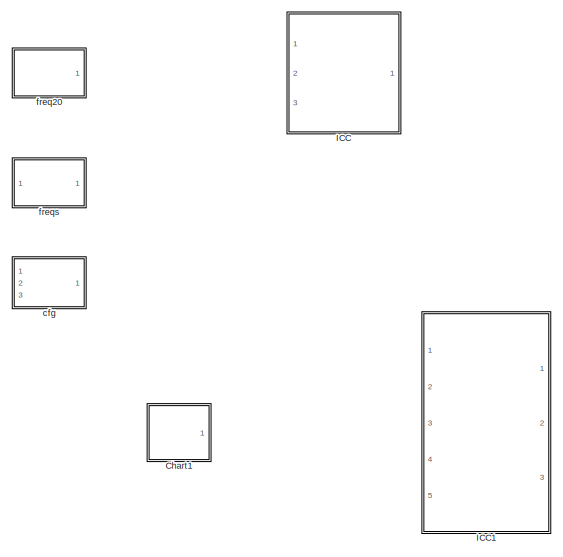
[diagram: root canvas - part 1/4, top left region]
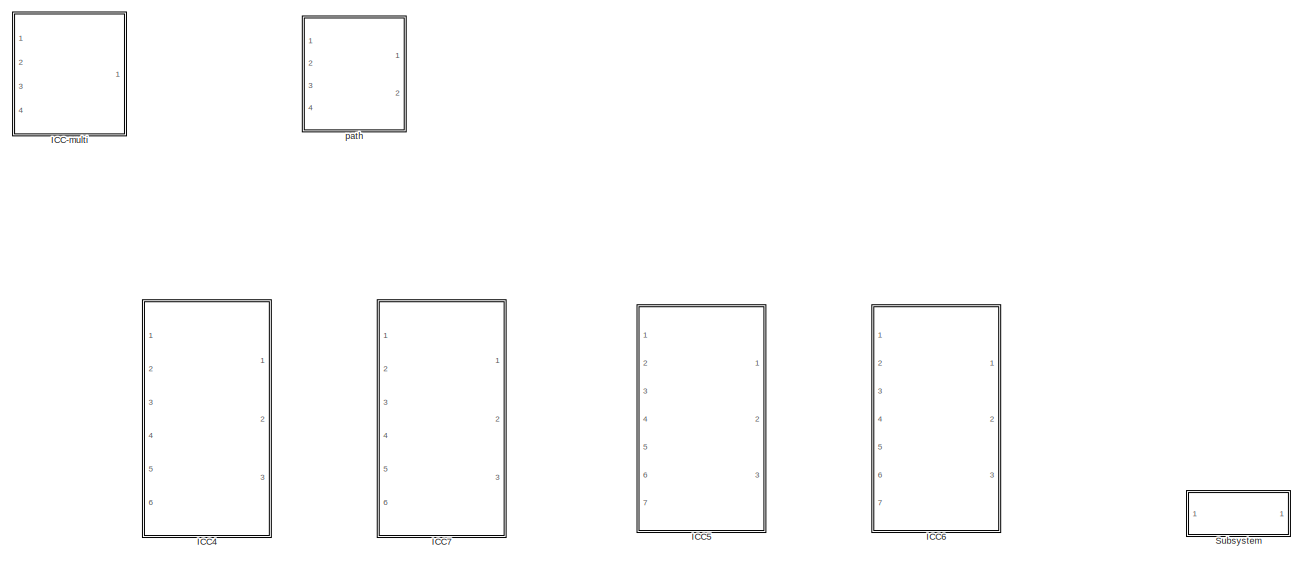
[diagram: root canvas - part 2/4, top center region]
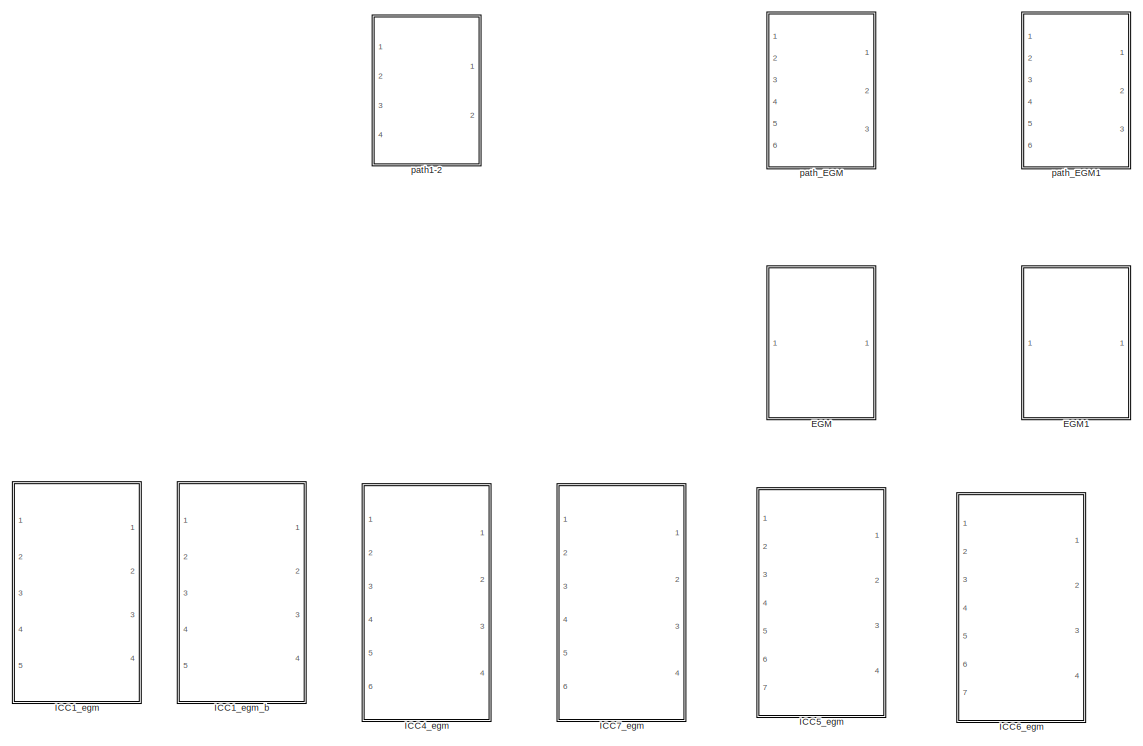
[diagram: root canvas - part 3/4, central region]
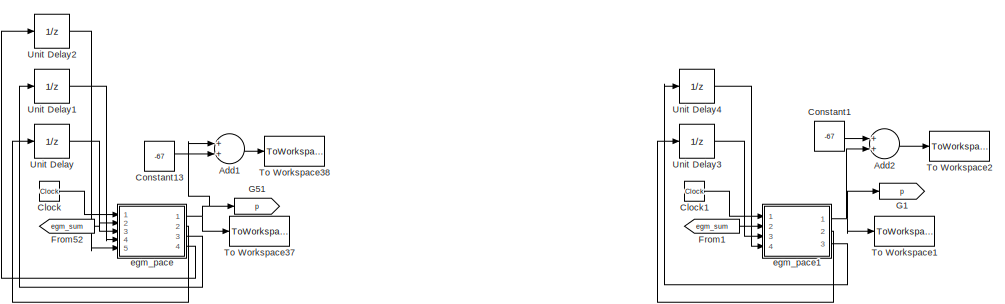
[diagram: root canvas - part 4/4, bottom center region]
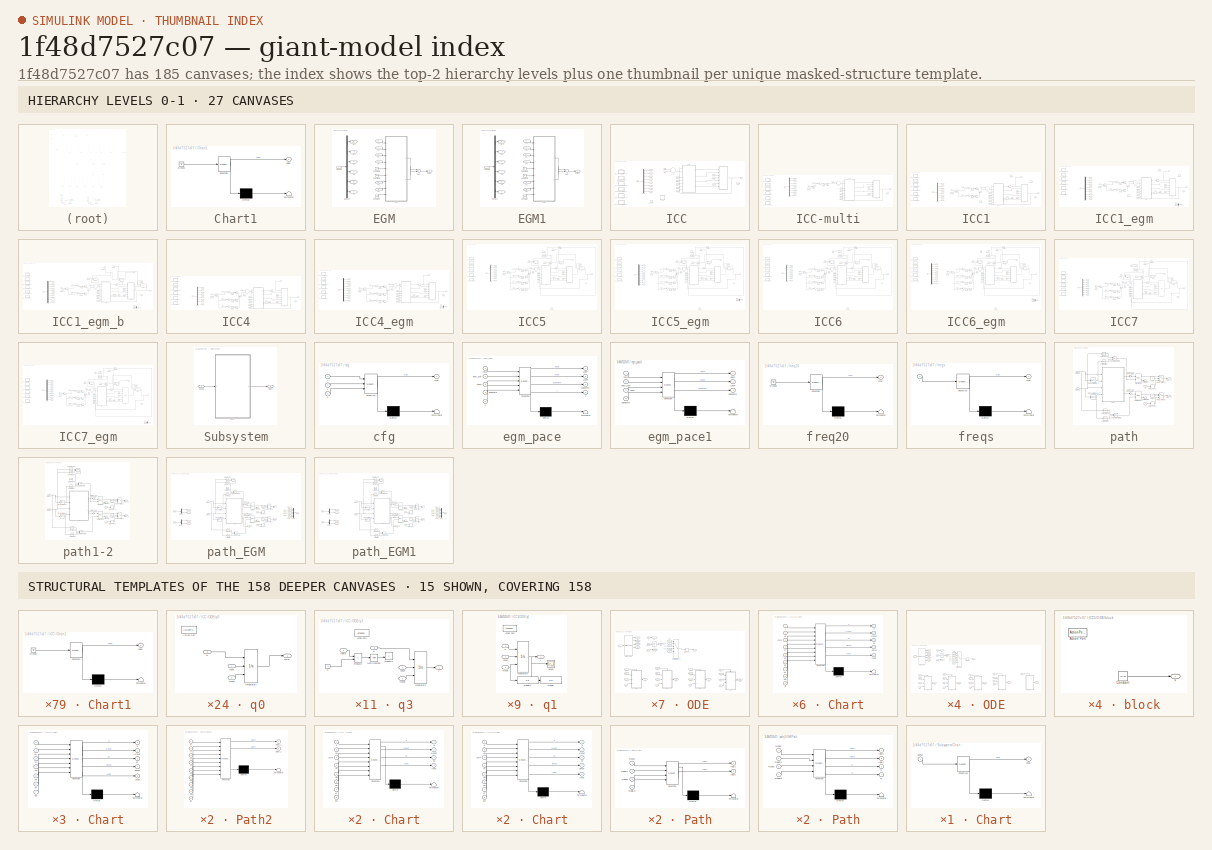
[diagram: thumbnail index - top-2 hierarchy levels (27 canvases) + 15 structural-template representatives of the remaining 158 canvases]
MODEL slx_1f48d7527c07
KIND library
CONFIG AbsTol = auto
CONFIG EnableMultiTasking = off
CONFIG FixedStep = auto
CONFIG MaxStep = auto
CONFIG MinStep = auto
CONFIG RelTol = 1e-3
CONFIG SampleTimeConstraint = Unconstrained
CONFIG Solver = VariableStepAuto
CONFIG SolverName = VariableStepAuto
CONFIG StartTime = 0.0
CONFIG StopTime = 10.0
BLOCK [Sum] Add1
  InputSameDT = off
  OutDataTypeStr = Inherit: Inherit via internal rule
  Ports = [2, 1]
  SaturateOnIntegerOverflow = off
BLOCK [Sum] Add2
  InputSameDT = off
  OutDataTypeStr = Inherit: Inherit via internal rule
  Ports = [2, 1]
  SaturateOnIntegerOverflow = off
BLOCK [SubSystem] Chart1
  ErrorFcn = Stateflow.Translate.translate
  PermitHierarchicalResolution = ExplicitOnly
  Ports = [0, 1]
  RequestExecContextInheritance = off
  SFBlockType = Chart
  TreatAsAtomicUnit = on
BLOCK [Demux] Chart1/ Demux 
  Outputs = 1
  Ports = [1, 1]
BLOCK [Ground] Chart1/ Ground 
BLOCK [S-Function] Chart1/ SFunction 
  EnableBusSupport = off
  FunctionName = sf_sfun
  PortCounts = [1 2]
  Ports = [1, 2]
  SFcnIsStateOwnerBlock = off
  SFunctionDeploymentMode = off
  Tag = Stateflow S-Function icc_lib_avg_path1_n1 13
BLOCK [Terminator] Chart1/ Terminator 
BLOCK [Outport] Chart1/pulse
  IconDisplay = Port number
BLOCK [Clock] Clock
BLOCK [Clock] Clock1
BLOCK [Constant] Constant1
  Value = -67
BLOCK [Constant] Constant13
  Value = -67
BLOCK [SubSystem] EGM
  Ports = [1, 1]
  RequestExecContextInheritance = off
BLOCK [Constant] EGM/Constant
  Value = 18
BLOCK [Constant] EGM/Constant1
  Value = 10
BLOCK [Constant] EGM/Constant2
  Value = 10
BLOCK [Demux] EGM/Demux4
  DisplayOption = bar
  Outputs = 6
  Ports = [1, 6]
BLOCK [Outport] EGM/EGM_i
  IconDisplay = Port number
BLOCK [From] EGM/F1
  GotoTag = xj
BLOCK [From] EGM/F2
  GotoTag = ti
BLOCK [From] EGM/F20
  GotoTag = xi
BLOCK [From] EGM/F3
  GotoTag = tj
BLOCK [From] EGM/F5
  GotoTag = yi
BLOCK [From] EGM/F6
  GotoTag = yj
BLOCK [Inport] EGM/FromPath
  IconDisplay = Port number
BLOCK [Goto] EGM/G10
  GotoTag = ti
BLOCK [Goto] EGM/G12
  GotoTag = tj
BLOCK [Goto] EGM/G4
  GotoTag = xi
BLOCK [Goto] EGM/G5
  GotoTag = yi
BLOCK [Goto] EGM/G6
  GotoTag = xj
BLOCK [Goto] EGM/G7
  GotoTag = yj
BLOCK [SubSystem] EGM/Path2
  ErrorFcn = Stateflow.Translate.translate
  PermitHierarchicalResolution = ExplicitOnly
  Ports = [9, 2]
  RequestExecContextInheritance = off
  SFBlockType = Chart
  TreatAsAtomicUnit = on
BLOCK [Demux] EGM/Path2/ Demux 
  Outputs = 1
  Ports = [1, 1]
BLOCK [S-Function] EGM/Path2/ SFunction 
  EnableBusSupport = off
  FunctionName = sf_sfun
  PortCounts = [9 3]
  Ports = [9, 3]
  SFcnIsStateOwnerBlock = off
  SFunctionDeploymentMode = off
  Tag = Stateflow S-Function icc_lib_avg_path1_n1 57
BLOCK [Terminator] EGM/Path2/ Terminator 
BLOCK [Inport] EGM/Path2/C
  IconDisplay = Port number
  Port = 9
BLOCK [Inport] EGM/Path2/cvi
  IconDisplay = Port number
  Port = 5
BLOCK [Inport] EGM/Path2/cvj
  IconDisplay = Port number
  Port = 6
BLOCK [Outport] EGM/Path2/egm_i
  IconDisplay = Port number
BLOCK [Outport] EGM/Path2/egm_j
  IconDisplay = Port number
  Port = 2
BLOCK [Inport] EGM/Path2/t1
  IconDisplay = Port number
  Port = 7
BLOCK [Inport] EGM/Path2/t2
  IconDisplay = Port number
  Port = 8
BLOCK [Inport] EGM/Path2/xi
  IconDisplay = Port number
BLOCK [Inport] EGM/Path2/xj
  IconDisplay = Port number
  Port = 3
BLOCK [Inport] EGM/Path2/yi
  IconDisplay = Port number
  Port = 2
BLOCK [Inport] EGM/Path2/yj
  IconDisplay = Port number
  Port = 4
BLOCK [Sum] EGM/sum
  InputSameDT = off
  OutDataTypeStr = Inherit: Inherit via internal rule
  Ports = [2, 1]
  SaturateOnIntegerOverflow = off
BLOCK [SubSystem] EGM1
  Ports = [1, 1]
  RequestExecContextInheritance = off
BLOCK [Constant] EGM1/Constant
  Value = 18
BLOCK [Constant] EGM1/Constant1
  Value = 6
BLOCK [Constant] EGM1/Constant2
  Value = 6
BLOCK [Demux] EGM1/Demux4
  DisplayOption = bar
  Outputs = 6
  Ports = [1, 6]
BLOCK [Outport] EGM1/EGM_i
  IconDisplay = Port number
BLOCK [From] EGM1/F1
  GotoTag = xj
BLOCK [From] EGM1/F2
  GotoTag = ti
BLOCK [From] EGM1/F20
  GotoTag = xi
BLOCK [From] EGM1/F3
  GotoTag = tj
BLOCK [From] EGM1/F5
  GotoTag = yi
BLOCK [From] EGM1/F6
  GotoTag = yj
BLOCK [Inport] EGM1/FromPath
  IconDisplay = Port number
BLOCK [Goto] EGM1/G10
  GotoTag = ti
BLOCK [Goto] EGM1/G12
  GotoTag = tj
BLOCK [Goto] EGM1/G4
  GotoTag = xi
BLOCK [Goto] EGM1/G5
  GotoTag = yi
BLOCK [Goto] EGM1/G6
  GotoTag = xj
BLOCK [Goto] EGM1/G7
  GotoTag = yj
BLOCK [SubSystem] EGM1/Path2
  ErrorFcn = Stateflow.Translate.translate
  PermitHierarchicalResolution = ExplicitOnly
  Ports = [9, 2]
  RequestExecContextInheritance = off
  SFBlockType = Chart
  TreatAsAtomicUnit = on
BLOCK [Demux] EGM1/Path2/ Demux 
  Outputs = 1
  Ports = [1, 1]
BLOCK [S-Function] EGM1/Path2/ SFunction 
  EnableBusSupport = off
  FunctionName = sf_sfun
  PortCounts = [9 3]
  Ports = [9, 3]
  SFcnIsStateOwnerBlock = off
  SFunctionDeploymentMode = off
  Tag = Stateflow S-Function icc_lib_avg_path1_n1 96
BLOCK [Terminator] EGM1/Path2/ Terminator 
BLOCK [Inport] EGM1/Path2/C
  IconDisplay = Port number
  Port = 9
BLOCK [Inport] EGM1/Path2/cvi
  IconDisplay = Port number
  Port = 5
BLOCK [Inport] EGM1/Path2/cvj
  IconDisplay = Port number
  Port = 6
BLOCK [Outport] EGM1/Path2/egm_i
  IconDisplay = Port number
BLOCK [Outport] EGM1/Path2/egm_j
  IconDisplay = Port number
  Port = 2
BLOCK [Inport] EGM1/Path2/t1
  IconDisplay = Port number
  Port = 7
BLOCK [Inport] EGM1/Path2/t2
  IconDisplay = Port number
  Port = 8
BLOCK [Inport] EGM1/Path2/xi
  IconDisplay = Port number
BLOCK [Inport] EGM1/Path2/xj
  IconDisplay = Port number
  Port = 3
BLOCK [Inport] EGM1/Path2/yi
  IconDisplay = Port number
  Port = 2
BLOCK [Inport] EGM1/Path2/yj
  IconDisplay = Port number
  Port = 4
BLOCK [Sum] EGM1/sum
  InputSameDT = off
  OutDataTypeStr = Inherit: Inherit via internal rule
  Ports = [2, 1]
  SaturateOnIntegerOverflow = off
BLOCK [From] From1
  GotoTag = egm_sum
BLOCK [From] From52
  GotoTag = egm_sum
BLOCK [Goto] G1
  GotoTag = p
BLOCK [Goto] G51
  GotoTag = p
BLOCK [SubSystem] ICC 
  Ports = [3, 1]
  RequestExecContextInheritance = off
BLOCK [Sum] ICC /Add
  InputSameDT = off
  OutDataTypeStr = Inherit: Inherit via internal rule
  Ports = [2, 1]
  SaturateOnIntegerOverflow = off
BLOCK [SubSystem] ICC /Chart
  ErrorFcn = Stateflow.Translate.translate
  PermitHierarchicalResolution = ExplicitOnly
  Ports = [8, 4]
  RequestExecContextInheritance = off
  SFBlockType = Chart
  TreatAsAtomicUnit = on
BLOCK [Demux] ICC /Chart/ Demux 
  Outputs = 1
  Ports = [1, 1]
BLOCK [S-Function] ICC /Chart/ SFunction 
  EnableBusSupport = off
  FunctionName = sf_sfun
  PortCounts = [8 5]
  Ports = [8, 5]
  SFcnIsStateOwnerBlock = off
  SFunctionDeploymentMode = off
  Tag = Stateflow S-Function icc_lib_avg_path1_n1 3
BLOCK [Terminator] ICC /Chart/ Terminator 
BLOCK [Inport] ICC /Chart/VF
  IconDisplay = Port number
  Port = 7
BLOCK [Inport] ICC /Chart/VR
  IconDisplay = Port number
  Port = 6
BLOCK [Inport] ICC /Chart/VT
  IconDisplay = Port number
  Port = 4
BLOCK [Inport] ICC /Chart/Vm
  IconDisplay = Port number
  Port = 5
BLOCK [Inport] ICC /Chart/Vmm
  IconDisplay = Port number
  Port = 3
BLOCK [Outport] ICC /Chart/d2
  IconDisplay = Port number
  Port = 3
BLOCK [Inport] ICC /Chart/d2i
  IconDisplay = Port number
  Port = 8
BLOCK [Inport] ICC /Chart/gv
  IconDisplay = Port number
  Port = 2
BLOCK [Outport] ICC /Chart/q
  IconDisplay = Port number
BLOCK [Outport] ICC /Chart/reset
  IconDisplay = Port number
  Port = 4
BLOCK [Inport] ICC /Chart/v
  IconDisplay = Port number
BLOCK [Outport] ICC /Chart/vreset
  IconDisplay = Port number
  Port = 2
BLOCK [SubSystem] ICC /Chart1
  ErrorFcn = Stateflow.Translate.translate
  PermitHierarchicalResolution = ExplicitOnly
  Ports = [0, 1]
  RequestExecContextInheritance = off
  SFBlockType = Chart
  TreatAsAtomicUnit = on
BLOCK [Demux] ICC /Chart1/ Demux 
  Outputs = 1
  Ports = [1, 1]
BLOCK [Ground] ICC /Chart1/ Ground 
BLOCK [S-Function] ICC /Chart1/ SFunction 
  EnableBusSupport = off
  FunctionName = sf_sfun
  PortCounts = [1 2]
  Ports = [1, 2]
  SFcnIsStateOwnerBlock = off
  SFunctionDeploymentMode = off
  Tag = Stateflow S-Function icc_lib_avg_path1_n1 1
BLOCK [Terminator] ICC /Chart1/ Terminator 
BLOCK [Outport] ICC /Chart1/pulse
  IconDisplay = Port number
BLOCK [Constant] ICC /Constant
  Value = 0
BLOCK [Demux] ICC /Demux
  DisplayOption = bar
  Outputs = 8
  Ports = [1, 8]
BLOCK [From] ICC /From1
  GotoTag = d1
BLOCK [From] ICC /From3
  GotoTag = d3
BLOCK [From] ICC /From4
  GotoTag = d0
BLOCK [From] ICC /From5
  GotoTag = VT
BLOCK [From] ICC /From6
  GotoTag = Vm
BLOCK [From] ICC /From7
  GotoTag = VR
BLOCK [From] ICC /From8
  GotoTag = VF
BLOCK [From] ICC /From9
  GotoTag = d2i
BLOCK [Goto] ICC /G1
  GotoTag = d0
BLOCK [Goto] ICC /G2
  GotoTag = d1
BLOCK [Goto] ICC /G3
  GotoTag = d2i
BLOCK [Goto] ICC /G4
  GotoTag = d3
BLOCK [Goto] ICC /G5
  GotoTag = VT
BLOCK [Goto] ICC /G6
  GotoTag = Vm
BLOCK [Goto] ICC /G7
  GotoTag = VR
BLOCK [Goto] ICC /G8
  GotoTag = v
BLOCK [Goto] ICC /G9
  GotoTag = VF
BLOCK [SubSystem] ICC /MATLAB Function
  ErrorFcn = Stateflow.Translate.translate
  PermitHierarchicalResolution = ExplicitOnly
  Ports = [0, 1]
  RequestExecContextInheritance = off
  SFBlockType = MATLAB Function
  TreatAsAtomicUnit = on
BLOCK [SubSystem] ICC /MATLAB Function-freq=22 
  ErrorFcn = Stateflow.Translate.translate
  PermitHierarchicalResolution = ExplicitOnly
  Ports = [0, 1]
  RequestExecContextInheritance = off
  SFBlockType = MATLAB Function
  TreatAsAtomicUnit = on
BLOCK [Demux] ICC /MATLAB Function-freq=22 / Demux 
  Outputs = 1
  Ports = [1, 1]
BLOCK [Ground] ICC /MATLAB Function-freq=22 / Ground 
BLOCK [S-Function] ICC /MATLAB Function-freq=22 / SFunction 
  EnableBusSupport = off
  FunctionName = sf_sfun
  PortCounts = [1 2]
  Ports = [1, 2]
  SFcnIsStateOwnerBlock = off
  SFunctionDeploymentMode = off
  Tag = Stateflow S-Function icc_lib_avg_path1_n1 7
BLOCK [Terminator] ICC /MATLAB Function-freq=22 / Terminator 
BLOCK [Outport] ICC /MATLAB Function-freq=22 /cfg2
  IconDisplay = Port number
BLOCK [SubSystem] ICC /MATLAB Function-freq=24
  ErrorFcn = Stateflow.Translate.translate
  PermitHierarchicalResolution = ExplicitOnly
  Ports = [0, 1]
  RequestExecContextInheritance = off
  SFBlockType = MATLAB Function
  TreatAsAtomicUnit = on
BLOCK [Demux] ICC /MATLAB Function-freq=24/ Demux 
  Outputs = 1
  Ports = [1, 1]
BLOCK [Ground] ICC /MATLAB Function-freq=24/ Ground 
BLOCK [S-Function] ICC /MATLAB Function-freq=24/ SFunction 
  EnableBusSupport = off
  FunctionName = sf_sfun
  PortCounts = [1 2]
  Ports = [1, 2]
  SFcnIsStateOwnerBlock = off
  SFunctionDeploymentMode = off
  Tag = Stateflow S-Function icc_lib_avg_path1_n1 5
BLOCK [Terminator] ICC /MATLAB Function-freq=24/ Terminator 
BLOCK [Outport] ICC /MATLAB Function-freq=24/cfg2
  IconDisplay = Port number
BLOCK [SubSystem] ICC /MATLAB Function-freq=26 
  ErrorFcn = Stateflow.Translate.translate
  PermitHierarchicalResolution = ExplicitOnly
  Ports = [0, 1]
  RequestExecContextInheritance = off
  SFBlockType = MATLAB Function
  TreatAsAtomicUnit = on
BLOCK [Demux] ICC /MATLAB Function-freq=26 / Demux 
  Outputs = 1
  Ports = [1, 1]
BLOCK [Ground] ICC /MATLAB Function-freq=26 / Ground 
BLOCK [S-Function] ICC /MATLAB Function-freq=26 / SFunction 
  EnableBusSupport = off
  FunctionName = sf_sfun
  PortCounts = [1 2]
  Ports = [1, 2]
  SFcnIsStateOwnerBlock = off
  SFunctionDeploymentMode = off
  Tag = Stateflow S-Function icc_lib_avg_path1_n1 14
BLOCK [Terminator] ICC /MATLAB Function-freq=26 / Terminator 
BLOCK [Outport] ICC /MATLAB Function-freq=26 /cfg2
  IconDisplay = Port number
BLOCK [SubSystem] ICC /MATLAB Function-freq=26-o 
  ErrorFcn = Stateflow.Translate.translate
  PermitHierarchicalResolution = ExplicitOnly
  Ports = [0, 1]
  RequestExecContextInheritance = off
  SFBlockType = MATLAB Function
  TreatAsAtomicUnit = on
BLOCK [Demux] ICC /MATLAB Function-freq=26-o / Demux 
  Outputs = 1
  Ports = [1, 1]
BLOCK [Ground] ICC /MATLAB Function-freq=26-o / Ground 
BLOCK [S-Function] ICC /MATLAB Function-freq=26-o / SFunction 
  EnableBusSupport = off
  FunctionName = sf_sfun
  PortCounts = [1 2]
  Ports = [1, 2]
  SFcnIsStateOwnerBlock = off
  SFunctionDeploymentMode = off
  Tag = Stateflow S-Function icc_lib_avg_path1_n1 6
BLOCK [Terminator] ICC /MATLAB Function-freq=26-o / Terminator 
BLOCK [Outport] ICC /MATLAB Function-freq=26-o /cfg2
  IconDisplay = Port number
BLOCK [Demux] ICC /MATLAB Function/ Demux 
  Outputs = 1
  Ports = [1, 1]
BLOCK [Ground] ICC /MATLAB Function/ Ground 
BLOCK [S-Function] ICC /MATLAB Function/ SFunction 
  EnableBusSupport = off
  FunctionName = sf_sfun
  PortCounts = [1 2]
  Ports = [1, 2]
  SFcnIsStateOwnerBlock = off
  SFunctionDeploymentMode = off
  Tag = Stateflow S-Function icc_lib_avg_path1_n1 2
BLOCK [Terminator] ICC /MATLAB Function/ Terminator 
BLOCK [Outport] ICC /MATLAB Function/cfg
  IconDisplay = Port number
BLOCK [SubSystem] ICC /MATLAB Function1-freq=20 
  ErrorFcn = Stateflow.Translate.translate
  PermitHierarchicalResolution = ExplicitOnly
  Ports = [0, 1]
  RequestExecContextInheritance = off
  SFBlockType = MATLAB Function
  TreatAsAtomicUnit = on
BLOCK [Demux] ICC /MATLAB Function1-freq=20 / Demux 
  Outputs = 1
  Ports = [1, 1]
BLOCK [Ground] ICC /MATLAB Function1-freq=20 / Ground 
BLOCK [S-Function] ICC /MATLAB Function1-freq=20 / SFunction 
  EnableBusSupport = off
  FunctionName = sf_sfun
  PortCounts = [1 2]
  Ports = [1, 2]
  SFcnIsStateOwnerBlock = off
  SFunctionDeploymentMode = off
  Tag = Stateflow S-Function icc_lib_avg_path1_n1 4
BLOCK [Terminator] ICC /MATLAB Function1-freq=20 / Terminator 
BLOCK [Outport] ICC /MATLAB Function1-freq=20 /cfg2
  IconDisplay = Port number
BLOCK [SubSystem] ICC /ODE
  Ports = [7, 1]
  RequestExecContextInheritance = off
BLOCK [From] ICC /ODE/F1
  GotoTag = reset
BLOCK [From] ICC /ODE/F11
  GotoTag = v0
BLOCK [From] ICC /ODE/F12
  GotoTag = pulse1
BLOCK [From] ICC /ODE/F13
  GotoTag = v2
BLOCK [From] ICC /ODE/F19
  GotoTag = v3
BLOCK [From] ICC /ODE/F2
  GotoTag = vreset
BLOCK [From] ICC /ODE/F20
  GotoTag = q
BLOCK [From] ICC /ODE/F28
  GotoTag = reset
BLOCK [From] ICC /ODE/F3
  GotoTag = reset
BLOCK [From] ICC /ODE/F30
  GotoTag = q3
BLOCK [From] ICC /ODE/F31
  GotoTag = q0
BLOCK [From] ICC /ODE/F32
  GotoTag = q1
BLOCK [From] ICC /ODE/F33
  GotoTag = q
BLOCK [From] ICC /ODE/F4
  GotoTag = reset
BLOCK [From] ICC /ODE/F40
  GotoTag = vreset
BLOCK [From] ICC /ODE/F5
  GotoTag = vreset
BLOCK [From] ICC /ODE/F6
  GotoTag = q2
BLOCK [From] ICC /ODE/F9
  GotoTag = vreset
BLOCK [Goto] ICC /ODE/G
  GotoTag = reset
BLOCK [Goto] ICC /ODE/G1
  GotoTag = vreset
BLOCK [Goto] ICC /ODE/G17
  GotoTag = q
BLOCK [Goto] ICC /ODE/G19
  GotoTag = q1
BLOCK [Goto] ICC /ODE/G2
  GotoTag = v2
BLOCK [Goto] ICC /ODE/G20
  GotoTag = q2
BLOCK [Goto] ICC /ODE/G21
  GotoTag = q3
BLOCK [Goto] ICC /ODE/G3
  GotoTag = q0
BLOCK [Goto] ICC /ODE/G4
  GotoTag = v3
BLOCK [Goto] ICC /ODE/G5
  GotoTag = v0
BLOCK [Goto] ICC /ODE/G6
  GotoTag = pulse1
BLOCK [InitialCondition] ICC /ODE/IC
  Value = 0
BLOCK [Memory] ICC /ODE/Memory1
BLOCK [MultiPortSwitch] ICC /ODE/Multiport Switch1
  DataPortOrder = Zero-based contiguous
  InputSameDT = off
  Inputs = 6
  Ports = [7, 1]
  SaturateOnIntegerOverflow = off
  zeroidx = on
BLOCK [SwitchCase] ICC /ODE/Switch Case
  CaseConditions = {0,1,2,3,4,5}
  Ports = [1, 6]
  ShowDefaultCase = off
BLOCK [Inport] ICC /ODE/d0
  IconDisplay = Port number
  Port = 3
BLOCK [Inport] ICC /ODE/d1
  IconDisplay = Port number
  Port = 4
BLOCK [Inport] ICC /ODE/d2
  IconDisplay = Port number
  Port = 5
BLOCK [Inport] ICC /ODE/d3
  IconDisplay = Port number
  Port = 6
BLOCK [Inport] ICC /ODE/q
  IconDisplay = Port number
BLOCK [SubSystem] ICC /ODE/q0
  Ports = [3, 1, 0, 0, 0, 0, 0, 1]
  RequestExecContextInheritance = off
  TreatAsAtomicUnit = on
BLOCK [ActionPort] ICC /ODE/q0/Action Port
  InitializeStates = reset
BLOCK [Integrator] ICC /ODE/q0/Integrator1
  ExternalReset = either
  InitialCondition = 20
  InitialConditionSource = external
  Ports = [3, 1]
BLOCK [Inport] ICC /ODE/q0/d
  IconDisplay = Port number
  Port = 3
BLOCK [Outport] ICC /ODE/q0/pulse
  IconDisplay = Port number
BLOCK [Inport] ICC /ODE/q0/reset
  IconDisplay = Port number
BLOCK [Inport] ICC /ODE/q0/vreset
  IconDisplay = Port number
  Port = 2
BLOCK [SubSystem] ICC /ODE/q1
  Ports = [3, 1, 0, 0, 0, 0, 0, 1]
  RequestExecContextInheritance = off
  TreatAsAtomicUnit = on
BLOCK [ActionPort] ICC /ODE/q1/Action Port
  InitializeStates = reset
BLOCK [Integrator] ICC /ODE/q1/Integrator1
  ExternalReset = either
  InitialCondition = 20
  InitialConditionSource = external
  Ports = [3, 1]
BLOCK [Inport] ICC /ODE/q1/d
  IconDisplay = Port number
  Port = 3
BLOCK [Inport] ICC /ODE/q1/reset
  IconDisplay = Port number
BLOCK [Outport] ICC /ODE/q1/v
  IconDisplay = Port number
BLOCK [Inport] ICC /ODE/q1/vreset
  IconDisplay = Port number
  Port = 2
BLOCK [SubSystem] ICC /ODE/q2
  Ports = [3, 1, 0, 0, 0, 0, 0, 1]
  RequestExecContextInheritance = off
  TreatAsAtomicUnit = on
BLOCK [ActionPort] ICC /ODE/q2/Action Port
  InitializeStates = reset
BLOCK [Integrator] ICC /ODE/q2/Integrator1
  ExternalReset = either
  InitialCondition = 20
  InitialConditionSource = external
  Ports = [3, 1]
BLOCK [Inport] ICC /ODE/q2/d
  IconDisplay = Port number
  Port = 3
BLOCK [Inport] ICC /ODE/q2/reset
  IconDisplay = Port number
BLOCK [Outport] ICC /ODE/q2/v
  IconDisplay = Port number
BLOCK [Inport] ICC /ODE/q2/vreset
  IconDisplay = Port number
  Port = 2
BLOCK [SubSystem] ICC /ODE/q3
  Ports = [4, 1, 0, 0, 0, 0, 0, 1]
  RequestExecContextInheritance = off
  TreatAsAtomicUnit = on
BLOCK [ActionPort] ICC /ODE/q3/Action Port
  InitializeStates = reset
BLOCK [Constant] ICC /ODE/q3/C
  Value = -1
BLOCK [Integrator] ICC /ODE/q3/Integrator1
  ExternalReset = either
  InitialCondition = 20
  InitialConditionSource = external
  Ports = [3, 1]
BLOCK [Math] ICC /ODE/q3/Math Function
  Ports = [1, 1]
BLOCK [Product] ICC /ODE/q3/Product1
  InputSameDT = off
  OutDataTypeStr = Inherit: Inherit via internal rule
  Ports = [2, 1]
  RndMeth = Floor
  SaturateOnIntegerOverflow = off
BLOCK [Product] ICC /ODE/q3/Product2
  InputSameDT = off
  OutDataTypeStr = Inherit: Inherit via internal rule
  Ports = [2, 1]
  RndMeth = Floor
  SaturateOnIntegerOverflow = off
BLOCK [Inport] ICC /ODE/q3/d
  IconDisplay = Port number
  Port = 3
BLOCK [Inport] ICC /ODE/q3/reset
  IconDisplay = Port number
BLOCK [Inport] ICC /ODE/q3/theta
  IconDisplay = Port number
  Port = 4
BLOCK [Outport] ICC /ODE/q3/v
  IconDisplay = Port number
BLOCK [Inport] ICC /ODE/q3/vreset
  IconDisplay = Port number
  Port = 2
BLOCK [Inport] ICC /ODE/reset
  IconDisplay = Port number
  Port = 7
BLOCK [Inport] ICC /ODE/vreset
  IconDisplay = Port number
  Port = 2
BLOCK [Outport] ICC /ODE/vt_0
  IconDisplay = Port number
BLOCK [Inport] ICC /cfg 
  IconDisplay = Port number
BLOCK [Inport] ICC /gv
  IconDisplay = Port number
  Port = 2
BLOCK [Inport] ICC /pulse
  IconDisplay = Port number
  Port = 3
BLOCK [Outport] ICC /v
  IconDisplay = Port number
BLOCK [SubSystem] ICC-multi
  Ports = [4, 1]
  RequestExecContextInheritance = off
BLOCK [Sum] ICC-multi/Add
  InputSameDT = off
  Inputs = +-
  OutDataTypeStr = Inherit: Inherit via internal rule
  Ports = [2, 1]
  SaturateOnIntegerOverflow = off
BLOCK [Sum] ICC-multi/Add1
  InputSameDT = off
  OutDataTypeStr = Inherit: Inherit via internal rule
  Ports = [2, 1]
  SaturateOnIntegerOverflow = off
BLOCK [SubSystem] ICC-multi/Chart
  ErrorFcn = Stateflow.Translate.translate
  PermitHierarchicalResolution = ExplicitOnly
  Ports = [8, 4]
  RequestExecContextInheritance = off
  SFBlockType = Chart
  TreatAsAtomicUnit = on
BLOCK [Demux] ICC-multi/Chart/ Demux 
  Outputs = 1
  Ports = [1, 1]
BLOCK [S-Function] ICC-multi/Chart/ SFunction 
  EnableBusSupport = off
  FunctionName = sf_sfun
  PortCounts = [8 5]
  Ports = [8, 5]
  SFcnIsStateOwnerBlock = off
  SFunctionDeploymentMode = off
  Tag = Stateflow S-Function icc_lib_avg_path1_n1 15
BLOCK [Terminator] ICC-multi/Chart/ Terminator 
BLOCK [Inport] ICC-multi/Chart/VF
  IconDisplay = Port number
  Port = 7
BLOCK [Inport] ICC-multi/Chart/VR
  IconDisplay = Port number
  Port = 6
BLOCK [Inport] ICC-multi/Chart/VT
  IconDisplay = Port number
  Port = 4
BLOCK [Inport] ICC-multi/Chart/Vm
  IconDisplay = Port number
  Port = 5
BLOCK [Inport] ICC-multi/Chart/Vmm
  IconDisplay = Port number
  Port = 3
BLOCK [Outport] ICC-multi/Chart/d2
  IconDisplay = Port number
  Port = 3
BLOCK [Inport] ICC-multi/Chart/d2i
  IconDisplay = Port number
  Port = 8
BLOCK [Inport] ICC-multi/Chart/gv
  IconDisplay = Port number
  Port = 2
BLOCK [Outport] ICC-multi/Chart/q
  IconDisplay = Port number
BLOCK [Outport] ICC-multi/Chart/reset
  IconDisplay = Port number
  Port = 4
BLOCK [Inport] ICC-multi/Chart/v
  IconDisplay = Port number
BLOCK [Outport] ICC-multi/Chart/vreset
  IconDisplay = Port number
  Port = 2
BLOCK [Constant] ICC-multi/Constant1
  Value = 0.2
BLOCK [Constant] ICC-multi/Constant2
  Value = 1.25
BLOCK [Demux] ICC-multi/Demux
  DisplayOption = bar
  Outputs = 8
  Ports = [1, 8]
BLOCK [Product] ICC-multi/Divide1
  CollapseDim = 2
  CollapseMode = Specified dimension
  InputSameDT = off
  OutDataTypeStr = Inherit: Inherit via internal rule
  Ports = [2, 1]
BLOCK [Product] ICC-multi/Divide2
  CollapseDim = 2
  CollapseMode = Specified dimension
  InputSameDT = off
  OutDataTypeStr = Inherit: Inherit via internal rule
  Ports = [2, 1]
BLOCK [From] ICC-multi/From1
  GotoTag = d1
BLOCK [From] ICC-multi/From3
  GotoTag = d3
BLOCK [From] ICC-multi/From4
  GotoTag = d0
BLOCK [From] ICC-multi/From5
  GotoTag = VT
BLOCK [From] ICC-multi/From6
  GotoTag = Vm
BLOCK [From] ICC-multi/From7
  GotoTag = VR
BLOCK [From] ICC-multi/From8
  GotoTag = VF
BLOCK [From] ICC-multi/From9
  GotoTag = d2i
BLOCK [Goto] ICC-multi/G1
  GotoTag = d0
BLOCK [Goto] ICC-multi/G2
  GotoTag = d1
BLOCK [Goto] ICC-multi/G3
  GotoTag = d2i
BLOCK [Goto] ICC-multi/G4
  GotoTag = d3
BLOCK [Goto] ICC-multi/G5
  GotoTag = VT
BLOCK [Goto] ICC-multi/G6
  GotoTag = Vm
BLOCK [Goto] ICC-multi/G7
  GotoTag = VR
BLOCK [Goto] ICC-multi/G8
  GotoTag = v
BLOCK [Goto] ICC-multi/G9
  GotoTag = VF
BLOCK [SubSystem] ICC-multi/MATLAB Function
  ErrorFcn = Stateflow.Translate.translate
  PermitHierarchicalResolution = ExplicitOnly
  Ports = [0, 1]
  RequestExecContextInheritance = off
  SFBlockType = MATLAB Function
  TreatAsAtomicUnit = on
BLOCK [SubSystem] ICC-multi/MATLAB Function-freq=22 
  ErrorFcn = Stateflow.Translate.translate
  PermitHierarchicalResolution = ExplicitOnly
  Ports = [0, 1]
  RequestExecContextInheritance = off
  SFBlockType = MATLAB Function
  TreatAsAtomicUnit = on
BLOCK [Demux] ICC-multi/MATLAB Function-freq=22 / Demux 
  Outputs = 1
  Ports = [1, 1]
BLOCK [Ground] ICC-multi/MATLAB Function-freq=22 / Ground 
BLOCK [S-Function] ICC-multi/MATLAB Function-freq=22 / SFunction 
  EnableBusSupport = off
  FunctionName = sf_sfun
  PortCounts = [1 2]
  Ports = [1, 2]
  SFcnIsStateOwnerBlock = off
  SFunctionDeploymentMode = off
  Tag = Stateflow S-Function icc_lib_avg_path1_n1 18
BLOCK [Terminator] ICC-multi/MATLAB Function-freq=22 / Terminator 
BLOCK [Outport] ICC-multi/MATLAB Function-freq=22 /cfg2
  IconDisplay = Port number
BLOCK [SubSystem] ICC-multi/MATLAB Function-freq=24
  ErrorFcn = Stateflow.Translate.translate
  PermitHierarchicalResolution = ExplicitOnly
  Ports = [0, 1]
  RequestExecContextInheritance = off
  SFBlockType = MATLAB Function
  TreatAsAtomicUnit = on
BLOCK [Demux] ICC-multi/MATLAB Function-freq=24/ Demux 
  Outputs = 1
  Ports = [1, 1]
BLOCK [Ground] ICC-multi/MATLAB Function-freq=24/ Ground 
BLOCK [S-Function] ICC-multi/MATLAB Function-freq=24/ SFunction 
  EnableBusSupport = off
  FunctionName = sf_sfun
  PortCounts = [1 2]
  Ports = [1, 2]
  SFcnIsStateOwnerBlock = off
  SFunctionDeploymentMode = off
  Tag = Stateflow S-Function icc_lib_avg_path1_n1 19
BLOCK [Terminator] ICC-multi/MATLAB Function-freq=24/ Terminator 
BLOCK [Outport] ICC-multi/MATLAB Function-freq=24/cfg2
  IconDisplay = Port number
BLOCK [SubSystem] ICC-multi/MATLAB Function-freq=26 
  ErrorFcn = Stateflow.Translate.translate
  PermitHierarchicalResolution = ExplicitOnly
  Ports = [0, 1]
  RequestExecContextInheritance = off
  SFBlockType = MATLAB Function
  TreatAsAtomicUnit = on
BLOCK [Demux] ICC-multi/MATLAB Function-freq=26 / Demux 
  Outputs = 1
  Ports = [1, 1]
BLOCK [Ground] ICC-multi/MATLAB Function-freq=26 / Ground 
BLOCK [S-Function] ICC-multi/MATLAB Function-freq=26 / SFunction 
  EnableBusSupport = off
  FunctionName = sf_sfun
  PortCounts = [1 2]
  Ports = [1, 2]
  SFcnIsStateOwnerBlock = off
  SFunctionDeploymentMode = off
  Tag = Stateflow S-Function icc_lib_avg_path1_n1 20
BLOCK [Terminator] ICC-multi/MATLAB Function-freq=26 / Terminator 
BLOCK [Outport] ICC-multi/MATLAB Function-freq=26 /cfg2
  IconDisplay = Port number
BLOCK [SubSystem] ICC-multi/MATLAB Function-freq=26-o 
  ErrorFcn = Stateflow.Translate.translate
  PermitHierarchicalResolution = ExplicitOnly
  Ports = [0, 1]
  RequestExecContextInheritance = off
  SFBlockType = MATLAB Function
  TreatAsAtomicUnit = on
BLOCK [Demux] ICC-multi/MATLAB Function-freq=26-o / Demux 
  Outputs = 1
  Ports = [1, 1]
BLOCK [Ground] ICC-multi/MATLAB Function-freq=26-o / Ground 
BLOCK [S-Function] ICC-multi/MATLAB Function-freq=26-o / SFunction 
  EnableBusSupport = off
  FunctionName = sf_sfun
  PortCounts = [1 2]
  Ports = [1, 2]
  SFcnIsStateOwnerBlock = off
  SFunctionDeploymentMode = off
  Tag = Stateflow S-Function icc_lib_avg_path1_n1 21
BLOCK [Terminator] ICC-multi/MATLAB Function-freq=26-o / Terminator 
BLOCK [Outport] ICC-multi/MATLAB Function-freq=26-o /cfg2
  IconDisplay = Port number
BLOCK [Demux] ICC-multi/MATLAB Function/ Demux 
  Outputs = 1
  Ports = [1, 1]
BLOCK [Ground] ICC-multi/MATLAB Function/ Ground 
BLOCK [S-Function] ICC-multi/MATLAB Function/ SFunction 
  EnableBusSupport = off
  FunctionName = sf_sfun
  PortCounts = [1 2]
  Ports = [1, 2]
  SFcnIsStateOwnerBlock = off
  SFunctionDeploymentMode = off
  Tag = Stateflow S-Function icc_lib_avg_path1_n1 17
BLOCK [Terminator] ICC-multi/MATLAB Function/ Terminator 
BLOCK [Outport] ICC-multi/MATLAB Function/cfg
  IconDisplay = Port number
BLOCK [SubSystem] ICC-multi/MATLAB Function1-freq=20 
  ErrorFcn = Stateflow.Translate.translate
  PermitHierarchicalResolution = ExplicitOnly
  Ports = [0, 1]
  RequestExecContextInheritance = off
  SFBlockType = MATLAB Function
  TreatAsAtomicUnit = on
BLOCK [Demux] ICC-multi/MATLAB Function1-freq=20 / Demux 
  Outputs = 1
  Ports = [1, 1]
BLOCK [Ground] ICC-multi/MATLAB Function1-freq=20 / Ground 
BLOCK [S-Function] ICC-multi/MATLAB Function1-freq=20 / SFunction 
  EnableBusSupport = off
  FunctionName = sf_sfun
  PortCounts = [1 2]
  Ports = [1, 2]
  SFcnIsStateOwnerBlock = off
  SFunctionDeploymentMode = off
  Tag = Stateflow S-Function icc_lib_avg_path1_n1 22
BLOCK [Terminator] ICC-multi/MATLAB Function1-freq=20 / Terminator 
BLOCK [Outport] ICC-multi/MATLAB Function1-freq=20 /cfg2
  IconDisplay = Port number
BLOCK [SubSystem] ICC-multi/ODE
  Ports = [7, 1]
  RequestExecContextInheritance = off
BLOCK [From] ICC-multi/ODE/F1
  GotoTag = reset
BLOCK [From] ICC-multi/ODE/F11
  GotoTag = v0
BLOCK [From] ICC-multi/ODE/F12
  GotoTag = pulse1
BLOCK [From] ICC-multi/ODE/F13
  GotoTag = v2
BLOCK [From] ICC-multi/ODE/F19
  GotoTag = v3
BLOCK [From] ICC-multi/ODE/F2
  GotoTag = vreset
BLOCK [From] ICC-multi/ODE/F20
  GotoTag = q
BLOCK [From] ICC-multi/ODE/F28
  GotoTag = reset
BLOCK [From] ICC-multi/ODE/F3
  GotoTag = reset
BLOCK [From] ICC-multi/ODE/F30
  GotoTag = q3
BLOCK [From] ICC-multi/ODE/F31
  GotoTag = q0
BLOCK [From] ICC-multi/ODE/F32
  GotoTag = q1
BLOCK [From] ICC-multi/ODE/F33
  GotoTag = q
BLOCK [From] ICC-multi/ODE/F4
  GotoTag = reset
BLOCK [From] ICC-multi/ODE/F40
  GotoTag = vreset
BLOCK [From] ICC-multi/ODE/F5
  GotoTag = vreset
BLOCK [From] ICC-multi/ODE/F6
  GotoTag = q2
BLOCK [From] ICC-multi/ODE/F9
  GotoTag = vreset
BLOCK [Goto] ICC-multi/ODE/G
  GotoTag = reset
BLOCK [Goto] ICC-multi/ODE/G1
  GotoTag = vreset
BLOCK [Goto] ICC-multi/ODE/G17
  GotoTag = q
BLOCK [Goto] ICC-multi/ODE/G19
  GotoTag = q1
BLOCK [Goto] ICC-multi/ODE/G2
  GotoTag = v2
BLOCK [Goto] ICC-multi/ODE/G20
  GotoTag = q2
BLOCK [Goto] ICC-multi/ODE/G21
  GotoTag = q3
BLOCK [Goto] ICC-multi/ODE/G3
  GotoTag = q0
BLOCK [Goto] ICC-multi/ODE/G4
  GotoTag = v3
BLOCK [Goto] ICC-multi/ODE/G5
  GotoTag = v0
BLOCK [Goto] ICC-multi/ODE/G6
  GotoTag = pulse1
BLOCK [InitialCondition] ICC-multi/ODE/IC
  Value = 0
BLOCK [Memory] ICC-multi/ODE/Memory1
BLOCK [MultiPortSwitch] ICC-multi/ODE/Multiport Switch1
  DataPortOrder = Zero-based contiguous
  InputSameDT = off
  Inputs = 6
  Ports = [7, 1]
  SaturateOnIntegerOverflow = off
  zeroidx = on
BLOCK [SwitchCase] ICC-multi/ODE/Switch Case
  CaseConditions = {0,1,2,3,4,5}
  Ports = [1, 6]
  ShowDefaultCase = off
BLOCK [Inport] ICC-multi/ODE/d0
  IconDisplay = Port number
  Port = 3
BLOCK [Inport] ICC-multi/ODE/d1
  IconDisplay = Port number
  Port = 4
BLOCK [Inport] ICC-multi/ODE/d2
  IconDisplay = Port number
  Port = 5
BLOCK [Inport] ICC-multi/ODE/d3
  IconDisplay = Port number
  Port = 6
BLOCK [Inport] ICC-multi/ODE/q
  IconDisplay = Port number
BLOCK [SubSystem] ICC-multi/ODE/q0
  Ports = [3, 1, 0, 0, 0, 0, 0, 1]
  RequestExecContextInheritance = off
  TreatAsAtomicUnit = on
BLOCK [ActionPort] ICC-multi/ODE/q0/Action Port
  InitializeStates = reset
BLOCK [Integrator] ICC-multi/ODE/q0/Integrator1
  ExternalReset = either
  InitialCondition = 20
  InitialConditionSource = external
  Ports = [3, 1]
BLOCK [Inport] ICC-multi/ODE/q0/d
  IconDisplay = Port number
  Port = 3
BLOCK [Outport] ICC-multi/ODE/q0/pulse
  IconDisplay = Port number
BLOCK [Inport] ICC-multi/ODE/q0/reset
  IconDisplay = Port number
BLOCK [Inport] ICC-multi/ODE/q0/vreset
  IconDisplay = Port number
  Port = 2
BLOCK [SubSystem] ICC-multi/ODE/q1
  Ports = [3, 1, 0, 0, 0, 0, 0, 1]
  RequestExecContextInheritance = off
  TreatAsAtomicUnit = on
BLOCK [ActionPort] ICC-multi/ODE/q1/Action Port
  InitializeStates = reset
BLOCK [Integrator] ICC-multi/ODE/q1/Integrator1
  ExternalReset = either
  InitialCondition = 20
  InitialConditionSource = external
  Ports = [3, 1]
BLOCK [Inport] ICC-multi/ODE/q1/d
  IconDisplay = Port number
  Port = 3
BLOCK [Inport] ICC-multi/ODE/q1/reset
  IconDisplay = Port number
BLOCK [Outport] ICC-multi/ODE/q1/v
  IconDisplay = Port number
BLOCK [Inport] ICC-multi/ODE/q1/vreset
  IconDisplay = Port number
  Port = 2
BLOCK [SubSystem] ICC-multi/ODE/q2
  Ports = [3, 1, 0, 0, 0, 0, 0, 1]
  RequestExecContextInheritance = off
  TreatAsAtomicUnit = on
BLOCK [ActionPort] ICC-multi/ODE/q2/Action Port
  InitializeStates = reset
BLOCK [Integrator] ICC-multi/ODE/q2/Integrator1
  ExternalReset = either
  InitialCondition = 20
  InitialConditionSource = external
  Ports = [3, 1]
BLOCK [Inport] ICC-multi/ODE/q2/d
  IconDisplay = Port number
  Port = 3
BLOCK [Inport] ICC-multi/ODE/q2/reset
  IconDisplay = Port number
BLOCK [Outport] ICC-multi/ODE/q2/v
  IconDisplay = Port number
BLOCK [Inport] ICC-multi/ODE/q2/vreset
  IconDisplay = Port number
  Port = 2
BLOCK [SubSystem] ICC-multi/ODE/q3
  Ports = [4, 1, 0, 0, 0, 0, 0, 1]
  RequestExecContextInheritance = off
  TreatAsAtomicUnit = on
BLOCK [ActionPort] ICC-multi/ODE/q3/Action Port
  InitializeStates = reset
BLOCK [Constant] ICC-multi/ODE/q3/C
  Value = -1
BLOCK [Integrator] ICC-multi/ODE/q3/Integrator1
  ExternalReset = either
  InitialCondition = 20
  InitialConditionSource = external
  Ports = [3, 1]
BLOCK [Math] ICC-multi/ODE/q3/Math Function
  Ports = [1, 1]
BLOCK [Product] ICC-multi/ODE/q3/Product1
  InputSameDT = off
  OutDataTypeStr = Inherit: Inherit via internal rule
  Ports = [2, 1]
  RndMeth = Floor
  SaturateOnIntegerOverflow = off
BLOCK [Product] ICC-multi/ODE/q3/Product2
  InputSameDT = off
  OutDataTypeStr = Inherit: Inherit via internal rule
  Ports = [2, 1]
  RndMeth = Floor
  SaturateOnIntegerOverflow = off
BLOCK [Inport] ICC-multi/ODE/q3/d
  IconDisplay = Port number
  Port = 3
BLOCK [Inport] ICC-multi/ODE/q3/reset
  IconDisplay = Port number
BLOCK [Inport] ICC-multi/ODE/q3/theta
  IconDisplay = Port number
  Port = 4
BLOCK [Outport] ICC-multi/ODE/q3/v
  IconDisplay = Port number
BLOCK [Inport] ICC-multi/ODE/q3/vreset
  IconDisplay = Port number
  Port = 2
BLOCK [Inport] ICC-multi/ODE/reset
  IconDisplay = Port number
  Port = 7
BLOCK [Inport] ICC-multi/ODE/vreset
  IconDisplay = Port number
  Port = 2
BLOCK [Outport] ICC-multi/ODE/vt_0
  IconDisplay = Port number
BLOCK [Inport] ICC-multi/cfg 
  IconDisplay = Port number
BLOCK [Inport] ICC-multi/gv1
  IconDisplay = Port number
  Port = 2
BLOCK [Inport] ICC-multi/pulse
  IconDisplay = Port number
  Port = 3
BLOCK [Outport] ICC-multi/v
  IconDisplay = Port number
BLOCK [Inport] ICC-multi/vin
  IconDisplay = Port number
  Port = 4
BLOCK [SubSystem] ICC1
  Ports = [5, 3]
  RequestExecContextInheritance = off
BLOCK [Sum] ICC1/Add
  InputSameDT = off
  Inputs = +-
  OutDataTypeStr = Inherit: Inherit via internal rule
  Ports = [2, 1]
  SaturateOnIntegerOverflow = off
BLOCK [Sum] ICC1/Add1
  InputSameDT = off
  OutDataTypeStr = Inherit: Inherit via internal rule
  Ports = [2, 1]
  SaturateOnIntegerOverflow = off
BLOCK [Sum] ICC1/Add2
  InputSameDT = off
  Inputs = +-
  OutDataTypeStr = Inherit: Inherit via internal rule
  Ports = [2, 1]
  SaturateOnIntegerOverflow = off
BLOCK [SubSystem] ICC1/Chart
  ErrorFcn = Stateflow.Translate.translate
  PermitHierarchicalResolution = ExplicitOnly
  Ports = [7, 5]
  RequestExecContextInheritance = off
  SFBlockType = Chart
  TreatAsAtomicUnit = on
BLOCK [Demux] ICC1/Chart/ Demux 
  Outputs = 1
  Ports = [1, 1]
BLOCK [S-Function] ICC1/Chart/ SFunction 
  EnableBusSupport = on
  FunctionName = sf_sfun
  PortCounts = [7 6]
  Ports = [7, 6]
  SFcnIsStateOwnerBlock = off
  SFunctionDeploymentMode = off
  Tag = Stateflow S-Function icc_lib_avg_path1_n1 9
BLOCK [Terminator] ICC1/Chart/ Terminator 
BLOCK [Outport] ICC1/Chart/Sense
  IconDisplay = Port number
  Port = 4
BLOCK [Inport] ICC1/Chart/VF
  IconDisplay = Port number
  Port = 6
BLOCK [Inport] ICC1/Chart/VR
  IconDisplay = Port number
  Port = 5
BLOCK [Inport] ICC1/Chart/VT
  IconDisplay = Port number
  Port = 3
BLOCK [Inport] ICC1/Chart/Vm
  IconDisplay = Port number
  Port = 4
BLOCK [Outport] ICC1/Chart/d2
  IconDisplay = Port number
  Port = 3
BLOCK [Inport] ICC1/Chart/d2i
  IconDisplay = Port number
  Port = 7
BLOCK [Inport] ICC1/Chart/gv
  IconDisplay = Port number
  Port = 2
BLOCK [Outport] ICC1/Chart/q
  IconDisplay = Port number
BLOCK [Outport] ICC1/Chart/reset
  IconDisplay = Port number
  Port = 5
BLOCK [Inport] ICC1/Chart/v
  IconDisplay = Port number
BLOCK [Outport] ICC1/Chart/vreset
  IconDisplay = Port number
  Port = 2
BLOCK [Constant] ICC1/Constant1
  Value = 0.5
BLOCK [Constant] ICC1/Constant2
BLOCK [Constant] ICC1/Constant3
  Value = -67
BLOCK [Constant] ICC1/Constant4
BLOCK [Constant] ICC1/Constant5
  Value = -67
BLOCK [Constant] ICC1/Constant6
  Value = 0
BLOCK [Demux] ICC1/Demux
  DisplayOption = bar
  Outputs = 8
  Ports = [1, 8]
BLOCK [Product] ICC1/Divide1
  CollapseDim = 2
  CollapseMode = Specified dimension
  InputSameDT = off
  OutDataTypeStr = Inherit: Inherit via internal rule
  Ports = [2, 1]
BLOCK [Product] ICC1/Divide2
  CollapseDim = 2
  CollapseMode = Specified dimension
  InputSameDT = off
  OutDataTypeStr = Inherit: Inherit via internal rule
  Ports = [2, 1]
BLOCK [Product] ICC1/Divide3
  CollapseDim = 2
  CollapseMode = Specified dimension
  InputSameDT = off
  OutDataTypeStr = Inherit: Inherit via internal rule
  Ports = [2, 1]
BLOCK [From] ICC1/From1
  GotoTag = d1
BLOCK [From] ICC1/From3
  GotoTag = d3
BLOCK [From] ICC1/From4
  GotoTag = d0
BLOCK [From] ICC1/From5
  GotoTag = VT
BLOCK [From] ICC1/From6
  GotoTag = Vm
BLOCK [From] ICC1/From7
  GotoTag = VR
BLOCK [From] ICC1/From8
  GotoTag = VF
BLOCK [From] ICC1/From9
  GotoTag = d2i
BLOCK [Goto] ICC1/G1
  GotoTag = d0
BLOCK [Goto] ICC1/G2
  GotoTag = d1
BLOCK [Goto] ICC1/G3
  GotoTag = d2i
BLOCK [Goto] ICC1/G4
  GotoTag = d3
BLOCK [Goto] ICC1/G5
  GotoTag = VT
BLOCK [Goto] ICC1/G6
  GotoTag = Vm
BLOCK [Goto] ICC1/G7
  GotoTag = VR
BLOCK [Goto] ICC1/G8
  GotoTag = v
BLOCK [Goto] ICC1/G9
  GotoTag = VF
BLOCK [SubSystem] ICC1/MATLAB Function
  ErrorFcn = Stateflow.Translate.translate
  PermitHierarchicalResolution = ExplicitOnly
  Ports = [0, 1]
  RequestExecContextInheritance = off
  SFBlockType = MATLAB Function
  TreatAsAtomicUnit = on
BLOCK [SubSystem] ICC1/MATLAB Function-freq=22 
  ErrorFcn = Stateflow.Translate.translate
  PermitHierarchicalResolution = ExplicitOnly
  Ports = [0, 1]
  RequestExecContextInheritance = off
  SFBlockType = MATLAB Function
  TreatAsAtomicUnit = on
BLOCK [Demux] ICC1/MATLAB Function-freq=22 / Demux 
  Outputs = 1
  Ports = [1, 1]
BLOCK [Ground] ICC1/MATLAB Function-freq=22 / Ground 
BLOCK [S-Function] ICC1/MATLAB Function-freq=22 / SFunction 
  EnableBusSupport = on
  FunctionName = sf_sfun
  PortCounts = [1 2]
  Ports = [1, 2]
  SFcnIsStateOwnerBlock = off
  SFunctionDeploymentMode = off
  Tag = Stateflow S-Function icc_lib_avg_path1_n1 11
BLOCK [Terminator] ICC1/MATLAB Function-freq=22 / Terminator 
BLOCK [Outport] ICC1/MATLAB Function-freq=22 /cfg2
  IconDisplay = Port number
BLOCK [SubSystem] ICC1/MATLAB Function-freq=24
  ErrorFcn = Stateflow.Translate.translate
  PermitHierarchicalResolution = ExplicitOnly
  Ports = [0, 1]
  RequestExecContextInheritance = off
  SFBlockType = MATLAB Function
  TreatAsAtomicUnit = on
BLOCK [Demux] ICC1/MATLAB Function-freq=24/ Demux 
  Outputs = 1
  Ports = [1, 1]
BLOCK [Ground] ICC1/MATLAB Function-freq=24/ Ground 
BLOCK [S-Function] ICC1/MATLAB Function-freq=24/ SFunction 
  EnableBusSupport = on
  FunctionName = sf_sfun
  PortCounts = [1 2]
  Ports = [1, 2]
  SFcnIsStateOwnerBlock = off
  SFunctionDeploymentMode = off
  Tag = Stateflow S-Function icc_lib_avg_path1_n1 23
BLOCK [Terminator] ICC1/MATLAB Function-freq=24/ Terminator 
BLOCK [Outport] ICC1/MATLAB Function-freq=24/cfg2
  IconDisplay = Port number
BLOCK [SubSystem] ICC1/MATLAB Function-freq=26 
  ErrorFcn = Stateflow.Translate.translate
  PermitHierarchicalResolution = ExplicitOnly
  Ports = [0, 1]
  RequestExecContextInheritance = off
  SFBlockType = MATLAB Function
  TreatAsAtomicUnit = on
BLOCK [Demux] ICC1/MATLAB Function-freq=26 / Demux 
  Outputs = 1
  Ports = [1, 1]
BLOCK [Ground] ICC1/MATLAB Function-freq=26 / Ground 
BLOCK [S-Function] ICC1/MATLAB Function-freq=26 / SFunction 
  EnableBusSupport = on
  FunctionName = sf_sfun
  PortCounts = [1 2]
  Ports = [1, 2]
  SFcnIsStateOwnerBlock = off
  SFunctionDeploymentMode = off
  Tag = Stateflow S-Function icc_lib_avg_path1_n1 24
BLOCK [Terminator] ICC1/MATLAB Function-freq=26 / Terminator 
BLOCK [Outport] ICC1/MATLAB Function-freq=26 /cfg2
  IconDisplay = Port number
BLOCK [SubSystem] ICC1/MATLAB Function-freq=26-o 
  ErrorFcn = Stateflow.Translate.translate
  PermitHierarchicalResolution = ExplicitOnly
  Ports = [0, 1]
  RequestExecContextInheritance = off
  SFBlockType = MATLAB Function
  TreatAsAtomicUnit = on
BLOCK [Demux] ICC1/MATLAB Function-freq=26-o / Demux 
  Outputs = 1
  Ports = [1, 1]
BLOCK [Ground] ICC1/MATLAB Function-freq=26-o / Ground 
BLOCK [S-Function] ICC1/MATLAB Function-freq=26-o / SFunction 
  EnableBusSupport = on
  FunctionName = sf_sfun
  PortCounts = [1 2]
  Ports = [1, 2]
  SFcnIsStateOwnerBlock = off
  SFunctionDeploymentMode = off
  Tag = Stateflow S-Function icc_lib_avg_path1_n1 25
BLOCK [Terminator] ICC1/MATLAB Function-freq=26-o / Terminator 
BLOCK [Outport] ICC1/MATLAB Function-freq=26-o /cfg2
  IconDisplay = Port number
BLOCK [Demux] ICC1/MATLAB Function/ Demux 
  Outputs = 1
  Ports = [1, 1]
BLOCK [Ground] ICC1/MATLAB Function/ Ground 
BLOCK [S-Function] ICC1/MATLAB Function/ SFunction 
  EnableBusSupport = on
  FunctionName = sf_sfun
  PortCounts = [1 2]
  Ports = [1, 2]
  SFcnIsStateOwnerBlock = off
  SFunctionDeploymentMode = off
  Tag = Stateflow S-Function icc_lib_avg_path1_n1 10
BLOCK [Terminator] ICC1/MATLAB Function/ Terminator 
BLOCK [Outport] ICC1/MATLAB Function/cfg
  IconDisplay = Port number
BLOCK [SubSystem] ICC1/MATLAB Function1-freq=20 
  ErrorFcn = Stateflow.Translate.translate
  PermitHierarchicalResolution = ExplicitOnly
  Ports = [0, 1]
  RequestExecContextInheritance = off
  SFBlockType = MATLAB Function
  TreatAsAtomicUnit = on
BLOCK [Demux] ICC1/MATLAB Function1-freq=20 / Demux 
  Outputs = 1
  Ports = [1, 1]
BLOCK [Ground] ICC1/MATLAB Function1-freq=20 / Ground 
BLOCK [S-Function] ICC1/MATLAB Function1-freq=20 / SFunction 
  EnableBusSupport = on
  FunctionName = sf_sfun
  PortCounts = [1 2]
  Ports = [1, 2]
  SFcnIsStateOwnerBlock = off
  SFunctionDeploymentMode = off
  Tag = Stateflow S-Function icc_lib_avg_path1_n1 26
BLOCK [Terminator] ICC1/MATLAB Function1-freq=20 / Terminator 
BLOCK [Outport] ICC1/MATLAB Function1-freq=20 /cfg2
  IconDisplay = Port number
BLOCK [Memory] ICC1/Memory
  InheritSampleTime = on
BLOCK [Memory] ICC1/Memory1
  InheritSampleTime = on
BLOCK [SubSystem] ICC1/ODE
  Ports = [7, 1]
  RequestExecContextInheritance = off
BLOCK [From] ICC1/ODE/F1
  GotoTag = reset
BLOCK [From] ICC1/ODE/F11
  GotoTag = v0
BLOCK [From] ICC1/ODE/F12
  GotoTag = pulse1
BLOCK [From] ICC1/ODE/F13
  GotoTag = v2
BLOCK [From] ICC1/ODE/F19
  GotoTag = v3
BLOCK [From] ICC1/ODE/F2
  GotoTag = vreset
BLOCK [From] ICC1/ODE/F20
  GotoTag = q
BLOCK [From] ICC1/ODE/F28
  GotoTag = reset
BLOCK [From] ICC1/ODE/F3
  GotoTag = reset
BLOCK [From] ICC1/ODE/F30
  GotoTag = q3
BLOCK [From] ICC1/ODE/F31
  GotoTag = q0
BLOCK [From] ICC1/ODE/F32
  GotoTag = q1
BLOCK [From] ICC1/ODE/F33
  GotoTag = q
BLOCK [From] ICC1/ODE/F4
  GotoTag = reset
BLOCK [From] ICC1/ODE/F40
  GotoTag = vreset
BLOCK [From] ICC1/ODE/F5
  GotoTag = vreset
BLOCK [From] ICC1/ODE/F6
  GotoTag = q2
BLOCK [From] ICC1/ODE/F9
  GotoTag = vreset
BLOCK [Goto] ICC1/ODE/G
  GotoTag = reset
BLOCK [Goto] ICC1/ODE/G1
  GotoTag = vreset
BLOCK [Goto] ICC1/ODE/G17
  GotoTag = q
BLOCK [Goto] ICC1/ODE/G19
  GotoTag = q1
BLOCK [Goto] ICC1/ODE/G2
  GotoTag = v2
BLOCK [Goto] ICC1/ODE/G20
  GotoTag = q2
BLOCK [Goto] ICC1/ODE/G21
  GotoTag = q3
BLOCK [Goto] ICC1/ODE/G3
  GotoTag = q0
BLOCK [Goto] ICC1/ODE/G4
  GotoTag = v3
BLOCK [Goto] ICC1/ODE/G5
  GotoTag = v0
BLOCK [Goto] ICC1/ODE/G6
  GotoTag = pulse1
BLOCK [InitialCondition] ICC1/ODE/IC
  Value = 0
BLOCK [Memory] ICC1/ODE/Memory1
BLOCK [MultiPortSwitch] ICC1/ODE/Multiport Switch1
  DataPortOrder = Zero-based contiguous
  InputSameDT = off
  Inputs = 6
  Ports = [7, 1]
  SaturateOnIntegerOverflow = off
  zeroidx = on
BLOCK [SwitchCase] ICC1/ODE/Switch Case
  CaseConditions = {0,1,2,3,4,5}
  Ports = [1, 6]
  ShowDefaultCase = off
BLOCK [Inport] ICC1/ODE/d0
  IconDisplay = Port number
  Port = 3
BLOCK [Inport] ICC1/ODE/d1
  IconDisplay = Port number
  Port = 4
BLOCK [Inport] ICC1/ODE/d2
  IconDisplay = Port number
  Port = 5
BLOCK [Inport] ICC1/ODE/d3
  IconDisplay = Port number
  Port = 6
BLOCK [Inport] ICC1/ODE/q
  IconDisplay = Port number
BLOCK [SubSystem] ICC1/ODE/q0
  Ports = [3, 1, 0, 0, 0, 0, 0, 1]
  RequestExecContextInheritance = off
  TreatAsAtomicUnit = on
BLOCK [ActionPort] ICC1/ODE/q0/Action Port
  InitializeStates = reset
BLOCK [Integrator] ICC1/ODE/q0/Integrator1
  ExternalReset = either
  InitialCondition = 20
  InitialConditionSource = external
  Ports = [3, 1]
BLOCK [Inport] ICC1/ODE/q0/d
  IconDisplay = Port number
  Port = 3
BLOCK [Outport] ICC1/ODE/q0/pulse
  IconDisplay = Port number
BLOCK [Inport] ICC1/ODE/q0/reset
  IconDisplay = Port number
BLOCK [Inport] ICC1/ODE/q0/vreset
  IconDisplay = Port number
  Port = 2
BLOCK [SubSystem] ICC1/ODE/q1
  Ports = [3, 1, 0, 0, 0, 0, 0, 1]
  RequestExecContextInheritance = off
  TreatAsAtomicUnit = on
BLOCK [ActionPort] ICC1/ODE/q1/Action Port
  InitializeStates = reset
BLOCK [Display] ICC1/ODE/q1/Display
  Decimation = 1
  Ports = [1]
BLOCK [Display] ICC1/ODE/q1/Display1
  Decimation = 1
  Ports = [1]
BLOCK [Integrator] ICC1/ODE/q1/Integrator1
  ExternalReset = either
  InitialCondition = 20
  InitialConditionSource = external
  LimitOutput = on
  Ports = [3, 1]
  UpperSaturationLimit = -24.105
BLOCK [Scope] ICC1/ODE/q1/Scope
  Floating = off
  NumInputPorts = 1
  Ports = [1]
  ScopeSpecificationString = Simulink.scopes.TimeScopeBlockCfg('CurrentConfiguration', extmgr.ConfigurationSet(extmgr.Configuration('Core','General UI',true),extmgr.Configuration('Core','Source UI',true),extmgr.Configuration('Sources','WiredSimulink',true,'DataLoggingVariableName','ScopeData1'),extmgr.Configuration('Visuals','Time Domain',true,'SerializedDisplays',{struct('MinYLimReal','-73.08029','MaxYLimReal','-18.62029','Y...<+1477ch>  <repeated x9 — deduplicated; at blocks: Scope>
BLOCK [Inport] ICC1/ODE/q1/d
  IconDisplay = Port number
  Port = 3
BLOCK [Inport] ICC1/ODE/q1/reset
  IconDisplay = Port number
BLOCK [Outport] ICC1/ODE/q1/v
  IconDisplay = Port number
BLOCK [Inport] ICC1/ODE/q1/vreset
  IconDisplay = Port number
  Port = 2
BLOCK [SubSystem] ICC1/ODE/q2
  Ports = [3, 1, 0, 0, 0, 0, 0, 1]
  RequestExecContextInheritance = off
  TreatAsAtomicUnit = on
BLOCK [ActionPort] ICC1/ODE/q2/Action Port
  InitializeStates = reset
BLOCK [Integrator] ICC1/ODE/q2/Integrator1
  ExternalReset = either
  InitialCondition = 20
  InitialConditionSource = external
  Ports = [3, 1]
BLOCK [Inport] ICC1/ODE/q2/d
  IconDisplay = Port number
  Port = 3
BLOCK [Inport] ICC1/ODE/q2/reset
  IconDisplay = Port number
BLOCK [Outport] ICC1/ODE/q2/v
  IconDisplay = Port number
BLOCK [Inport] ICC1/ODE/q2/vreset
  IconDisplay = Port number
  Port = 2
BLOCK [SubSystem] ICC1/ODE/q3
  Ports = [4, 1, 0, 0, 0, 0, 0, 1]
  RequestExecContextInheritance = off
  TreatAsAtomicUnit = on
BLOCK [ActionPort] ICC1/ODE/q3/Action Port
  InitializeStates = reset
BLOCK [Constant] ICC1/ODE/q3/C
  Value = -1
BLOCK [Integrator] ICC1/ODE/q3/Integrator1
  ExternalReset = either
  InitialCondition = 20
  InitialConditionSource = external
  LimitOutput = on
  LowerSaturationLimit = -67
  Ports = [3, 1]
BLOCK [Math] ICC1/ODE/q3/Math Function
  Ports = [1, 1]
BLOCK [Product] ICC1/ODE/q3/Product1
  InputSameDT = off
  OutDataTypeStr = Inherit: Inherit via internal rule
  Ports = [2, 1]
  RndMeth = Floor
  SaturateOnIntegerOverflow = off
BLOCK [Product] ICC1/ODE/q3/Product2
  InputSameDT = off
  OutDataTypeStr = Inherit: Inherit via internal rule
  Ports = [2, 1]
  RndMeth = Floor
  SaturateOnIntegerOverflow = off
BLOCK [Inport] ICC1/ODE/q3/d
  IconDisplay = Port number
  Port = 3
BLOCK [Inport] ICC1/ODE/q3/reset
  IconDisplay = Port number
BLOCK [Inport] ICC1/ODE/q3/theta
  IconDisplay = Port number
  Port = 4
BLOCK [Outport] ICC1/ODE/q3/v
  IconDisplay = Port number
BLOCK [Inport] ICC1/ODE/q3/vreset
  IconDisplay = Port number
  Port = 2
BLOCK [Inport] ICC1/ODE/reset
  IconDisplay = Port number
  Port = 7
BLOCK [Inport] ICC1/ODE/vreset
  IconDisplay = Port number
  Port = 2
BLOCK [Outport] ICC1/ODE/vt_0
  IconDisplay = Port number
BLOCK [Outport] ICC1/Output
  IconDisplay = Port number
  Port = 3
BLOCK [Sum] ICC1/Sum
  IconShape = round
  InputSameDT = off
  Inputs = |++
  OutDataTypeStr = Inherit: Inherit via internal rule
  Ports = [2, 1]
  SaturateOnIntegerOverflow = off
BLOCK [Inport] ICC1/cfg 
  IconDisplay = Port number
BLOCK [Inport] ICC1/gv1
  IconDisplay = Port number
  Port = 2
BLOCK [Inport] ICC1/gv2
  IconDisplay = Port number
  Port = 3
BLOCK [Inport] ICC1/pulse
  IconDisplay = Port number
  Port = 4
BLOCK [Outport] ICC1/q
  IconDisplay = Port number
  Port = 2
BLOCK [Outport] ICC1/v
  IconDisplay = Port number
BLOCK [Inport] ICC1/vin
  IconDisplay = Port number
  Port = 5
BLOCK [SubSystem] ICC1_egm
  Ports = [5, 4]
  RequestExecContextInheritance = off
BLOCK [Sum] ICC1_egm/Add
  InputSameDT = off
  Inputs = +-
  OutDataTypeStr = Inherit: Inherit via internal rule
  Ports = [2, 1]
  SaturateOnIntegerOverflow = off
BLOCK [Sum] ICC1_egm/Add1
  InputSameDT = off
  OutDataTypeStr = Inherit: Inherit via internal rule
  Ports = [2, 1]
  SaturateOnIntegerOverflow = off
BLOCK [Sum] ICC1_egm/Add2
  InputSameDT = off
  Inputs = +-
  OutDataTypeStr = Inherit: Inherit via internal rule
  Ports = [2, 1]
  SaturateOnIntegerOverflow = off
BLOCK [SubSystem] ICC1_egm/Chart
  ErrorFcn = Stateflow.Translate.translate
  PermitHierarchicalResolution = ExplicitOnly
  Ports = [7, 5]
  RequestExecContextInheritance = off
  SFBlockType = Chart
  TreatAsAtomicUnit = on
BLOCK [Demux] ICC1_egm/Chart/ Demux 
  Outputs = 1
  Ports = [1, 1]
BLOCK [S-Function] ICC1_egm/Chart/ SFunction 
  EnableBusSupport = off
  FunctionName = sf_sfun
  PortCounts = [7 6]
  Ports = [7, 6]
  SFcnIsStateOwnerBlock = off
  SFunctionDeploymentMode = off
  Tag = Stateflow S-Function icc_lib_avg_path1_n1 60
BLOCK [Terminator] ICC1_egm/Chart/ Terminator 
BLOCK [Outport] ICC1_egm/Chart/Sense
  IconDisplay = Port number
  Port = 4
BLOCK [Inport] ICC1_egm/Chart/VF
  IconDisplay = Port number
  Port = 6
BLOCK [Inport] ICC1_egm/Chart/VR
  IconDisplay = Port number
  Port = 5
BLOCK [Inport] ICC1_egm/Chart/VT
  IconDisplay = Port number
  Port = 3
BLOCK [Inport] ICC1_egm/Chart/Vm
  IconDisplay = Port number
  Port = 4
BLOCK [Outport] ICC1_egm/Chart/d2
  IconDisplay = Port number
  Port = 3
BLOCK [Inport] ICC1_egm/Chart/d2i
  IconDisplay = Port number
  Port = 7
BLOCK [Inport] ICC1_egm/Chart/gv
  IconDisplay = Port number
  Port = 2
BLOCK [Outport] ICC1_egm/Chart/q
  IconDisplay = Port number
BLOCK [Outport] ICC1_egm/Chart/reset
  IconDisplay = Port number
  Port = 5
BLOCK [Inport] ICC1_egm/Chart/v
  IconDisplay = Port number
BLOCK [Outport] ICC1_egm/Chart/vreset
  IconDisplay = Port number
  Port = 2
BLOCK [Constant] ICC1_egm/Constant1
  Value = 0.5
BLOCK [Constant] ICC1_egm/Constant2
BLOCK [Constant] ICC1_egm/Constant3
  Value = -67
BLOCK [Constant] ICC1_egm/Constant4
BLOCK [Constant] ICC1_egm/Constant5
  Value = -67
BLOCK [Constant] ICC1_egm/Constant6
  Value = 0
BLOCK [Demux] ICC1_egm/Demux
  DisplayOption = bar
  Outputs = 10
  Ports = [1, 10]
BLOCK [Product] ICC1_egm/Divide1
  CollapseDim = 2
  CollapseMode = Specified dimension
  InputSameDT = off
  OutDataTypeStr = Inherit: Inherit via internal rule
  Ports = [2, 1]
BLOCK [Product] ICC1_egm/Divide2
  CollapseDim = 2
  CollapseMode = Specified dimension
  InputSameDT = off
  OutDataTypeStr = Inherit: Inherit via internal rule
  Ports = [2, 1]
BLOCK [Product] ICC1_egm/Divide3
  CollapseDim = 2
  CollapseMode = Specified dimension
  InputSameDT = off
  OutDataTypeStr = Inherit: Inherit via internal rule
  Ports = [2, 1]
BLOCK [From] ICC1_egm/From1
  GotoTag = d1
BLOCK [From] ICC1_egm/From10
  GotoTag = y
BLOCK [From] ICC1_egm/From2
  GotoTag = x
BLOCK [From] ICC1_egm/From3
  GotoTag = d3
BLOCK [From] ICC1_egm/From4
  GotoTag = d0
BLOCK [From] ICC1_egm/From5
  GotoTag = VT
BLOCK [From] ICC1_egm/From6
  GotoTag = Vm
BLOCK [From] ICC1_egm/From7
  GotoTag = VR
BLOCK [From] ICC1_egm/From8
  GotoTag = VF
BLOCK [From] ICC1_egm/From9
  GotoTag = d2i
BLOCK [Goto] ICC1_egm/G1
  GotoTag = d0
BLOCK [Goto] ICC1_egm/G10
  GotoTag = x
BLOCK [Goto] ICC1_egm/G11
  GotoTag = y
BLOCK [Goto] ICC1_egm/G2
  GotoTag = d1
BLOCK [Goto] ICC1_egm/G3
  GotoTag = d2i
BLOCK [Goto] ICC1_egm/G4
  GotoTag = d3
BLOCK [Goto] ICC1_egm/G5
  GotoTag = VT
BLOCK [Goto] ICC1_egm/G6
  GotoTag = Vm
BLOCK [Goto] ICC1_egm/G7
  GotoTag = VR
BLOCK [Goto] ICC1_egm/G8
  GotoTag = v
BLOCK [Goto] ICC1_egm/G9
  GotoTag = VF
BLOCK [SubSystem] ICC1_egm/MATLAB Function
  ErrorFcn = Stateflow.Translate.translate
  PermitHierarchicalResolution = ExplicitOnly
  Ports = [0, 1]
  RequestExecContextInheritance = off
  SFBlockType = MATLAB Function
  TreatAsAtomicUnit = on
BLOCK [SubSystem] ICC1_egm/MATLAB Function-freq=22 
  ErrorFcn = Stateflow.Translate.translate
  PermitHierarchicalResolution = ExplicitOnly
  Ports = [0, 1]
  RequestExecContextInheritance = off
  SFBlockType = MATLAB Function
  TreatAsAtomicUnit = on
BLOCK [Demux] ICC1_egm/MATLAB Function-freq=22 / Demux 
  Outputs = 1
  Ports = [1, 1]
BLOCK [Ground] ICC1_egm/MATLAB Function-freq=22 / Ground 
BLOCK [S-Function] ICC1_egm/MATLAB Function-freq=22 / SFunction 
  EnableBusSupport = off
  FunctionName = sf_sfun
  PortCounts = [1 2]
  Ports = [1, 2]
  SFcnIsStateOwnerBlock = off
  SFunctionDeploymentMode = off
  Tag = Stateflow S-Function icc_lib_avg_path1_n1 62
BLOCK [Terminator] ICC1_egm/MATLAB Function-freq=22 / Terminator 
BLOCK [Outport] ICC1_egm/MATLAB Function-freq=22 /cfg2
  IconDisplay = Port number
BLOCK [SubSystem] ICC1_egm/MATLAB Function-freq=24
  ErrorFcn = Stateflow.Translate.translate
  PermitHierarchicalResolution = ExplicitOnly
  Ports = [0, 1]
  RequestExecContextInheritance = off
  SFBlockType = MATLAB Function
  TreatAsAtomicUnit = on
BLOCK [Demux] ICC1_egm/MATLAB Function-freq=24/ Demux 
  Outputs = 1
  Ports = [1, 1]
BLOCK [Ground] ICC1_egm/MATLAB Function-freq=24/ Ground 
BLOCK [S-Function] ICC1_egm/MATLAB Function-freq=24/ SFunction 
  EnableBusSupport = off
  FunctionName = sf_sfun
  PortCounts = [1 2]
  Ports = [1, 2]
  SFcnIsStateOwnerBlock = off
  SFunctionDeploymentMode = off
  Tag = Stateflow S-Function icc_lib_avg_path1_n1 63
BLOCK [Terminator] ICC1_egm/MATLAB Function-freq=24/ Terminator 
BLOCK [Outport] ICC1_egm/MATLAB Function-freq=24/cfg2
  IconDisplay = Port number
BLOCK [SubSystem] ICC1_egm/MATLAB Function-freq=26 
  ErrorFcn = Stateflow.Translate.translate
  PermitHierarchicalResolution = ExplicitOnly
  Ports = [0, 1]
  RequestExecContextInheritance = off
  SFBlockType = MATLAB Function
  TreatAsAtomicUnit = on
BLOCK [Demux] ICC1_egm/MATLAB Function-freq=26 / Demux 
  Outputs = 1
  Ports = [1, 1]
BLOCK [Ground] ICC1_egm/MATLAB Function-freq=26 / Ground 
BLOCK [S-Function] ICC1_egm/MATLAB Function-freq=26 / SFunction 
  EnableBusSupport = off
  FunctionName = sf_sfun
  PortCounts = [1 2]
  Ports = [1, 2]
  SFcnIsStateOwnerBlock = off
  SFunctionDeploymentMode = off
  Tag = Stateflow S-Function icc_lib_avg_path1_n1 64
BLOCK [Terminator] ICC1_egm/MATLAB Function-freq=26 / Terminator 
BLOCK [Outport] ICC1_egm/MATLAB Function-freq=26 /cfg2
  IconDisplay = Port number
BLOCK [SubSystem] ICC1_egm/MATLAB Function-freq=26-o 
  ErrorFcn = Stateflow.Translate.translate
  PermitHierarchicalResolution = ExplicitOnly
  Ports = [0, 1]
  RequestExecContextInheritance = off
  SFBlockType = MATLAB Function
  TreatAsAtomicUnit = on
BLOCK [Demux] ICC1_egm/MATLAB Function-freq=26-o / Demux 
  Outputs = 1
  Ports = [1, 1]
BLOCK [Ground] ICC1_egm/MATLAB Function-freq=26-o / Ground 
BLOCK [S-Function] ICC1_egm/MATLAB Function-freq=26-o / SFunction 
  EnableBusSupport = off
  FunctionName = sf_sfun
  PortCounts = [1 2]
  Ports = [1, 2]
  SFcnIsStateOwnerBlock = off
  SFunctionDeploymentMode = off
  Tag = Stateflow S-Function icc_lib_avg_path1_n1 65
BLOCK [Terminator] ICC1_egm/MATLAB Function-freq=26-o / Terminator 
BLOCK [Outport] ICC1_egm/MATLAB Function-freq=26-o /cfg2
  IconDisplay = Port number
BLOCK [Demux] ICC1_egm/MATLAB Function/ Demux 
  Outputs = 1
  Ports = [1, 1]
BLOCK [Ground] ICC1_egm/MATLAB Function/ Ground 
BLOCK [S-Function] ICC1_egm/MATLAB Function/ SFunction 
  EnableBusSupport = off
  FunctionName = sf_sfun
  PortCounts = [1 2]
  Ports = [1, 2]
  SFcnIsStateOwnerBlock = off
  SFunctionDeploymentMode = off
  Tag = Stateflow S-Function icc_lib_avg_path1_n1 61
BLOCK [Terminator] ICC1_egm/MATLAB Function/ Terminator 
BLOCK [Outport] ICC1_egm/MATLAB Function/cfg
  IconDisplay = Port number
BLOCK [SubSystem] ICC1_egm/MATLAB Function1-freq=20 
  ErrorFcn = Stateflow.Translate.translate
  PermitHierarchicalResolution = ExplicitOnly
  Ports = [0, 1]
  RequestExecContextInheritance = off
  SFBlockType = MATLAB Function
  TreatAsAtomicUnit = on
BLOCK [Demux] ICC1_egm/MATLAB Function1-freq=20 / Demux 
  Outputs = 1
  Ports = [1, 1]
BLOCK [Ground] ICC1_egm/MATLAB Function1-freq=20 / Ground 
BLOCK [S-Function] ICC1_egm/MATLAB Function1-freq=20 / SFunction 
  EnableBusSupport = off
  FunctionName = sf_sfun
  PortCounts = [1 2]
  Ports = [1, 2]
  SFcnIsStateOwnerBlock = off
  SFunctionDeploymentMode = off
  Tag = Stateflow S-Function icc_lib_avg_path1_n1 66
BLOCK [Terminator] ICC1_egm/MATLAB Function1-freq=20 / Terminator 
BLOCK [Outport] ICC1_egm/MATLAB Function1-freq=20 /cfg2
  IconDisplay = Port number
BLOCK [Memory] ICC1_egm/Memory
  InheritSampleTime = on
BLOCK [Memory] ICC1_egm/Memory1
  InheritSampleTime = on
BLOCK [Mux] ICC1_egm/Mux
  DisplayOption = bar
  Inputs = 2
  Ports = [2, 1]
BLOCK [SubSystem] ICC1_egm/ODE
  Ports = [7, 1]
  RequestExecContextInheritance = off
BLOCK [From] ICC1_egm/ODE/F1
  GotoTag = reset
BLOCK [From] ICC1_egm/ODE/F11
  GotoTag = v0
BLOCK [From] ICC1_egm/ODE/F12
  GotoTag = pulse1
BLOCK [From] ICC1_egm/ODE/F13
  GotoTag = v2
BLOCK [From] ICC1_egm/ODE/F19
  GotoTag = v3
BLOCK [From] ICC1_egm/ODE/F2
  GotoTag = vreset
BLOCK [From] ICC1_egm/ODE/F20
  GotoTag = q
BLOCK [From] ICC1_egm/ODE/F28
  GotoTag = reset
BLOCK [From] ICC1_egm/ODE/F3
  GotoTag = reset
BLOCK [From] ICC1_egm/ODE/F30
  GotoTag = q3
BLOCK [From] ICC1_egm/ODE/F31
  GotoTag = q0
BLOCK [From] ICC1_egm/ODE/F32
  GotoTag = q1
BLOCK [From] ICC1_egm/ODE/F33
  GotoTag = q
BLOCK [From] ICC1_egm/ODE/F4
  GotoTag = reset
BLOCK [From] ICC1_egm/ODE/F40
  GotoTag = vreset
BLOCK [From] ICC1_egm/ODE/F5
  GotoTag = vreset
BLOCK [From] ICC1_egm/ODE/F6
  GotoTag = q2
BLOCK [From] ICC1_egm/ODE/F9
  GotoTag = vreset
BLOCK [Goto] ICC1_egm/ODE/G
  GotoTag = reset
BLOCK [Goto] ICC1_egm/ODE/G1
  GotoTag = vreset
BLOCK [Goto] ICC1_egm/ODE/G17
  GotoTag = q
BLOCK [Goto] ICC1_egm/ODE/G19
  GotoTag = q1
BLOCK [Goto] ICC1_egm/ODE/G2
  GotoTag = v2
BLOCK [Goto] ICC1_egm/ODE/G20
  GotoTag = q2
BLOCK [Goto] ICC1_egm/ODE/G21
  GotoTag = q3
BLOCK [Goto] ICC1_egm/ODE/G3
  GotoTag = q0
BLOCK [Goto] ICC1_egm/ODE/G4
  GotoTag = v3
BLOCK [Goto] ICC1_egm/ODE/G5
  GotoTag = v0
BLOCK [Goto] ICC1_egm/ODE/G6
  GotoTag = pulse1
BLOCK [InitialCondition] ICC1_egm/ODE/IC
  Value = 0
BLOCK [Memory] ICC1_egm/ODE/Memory1
BLOCK [MultiPortSwitch] ICC1_egm/ODE/Multiport Switch1
  DataPortOrder = Zero-based contiguous
  InputSameDT = off
  Inputs = 6
  Ports = [7, 1]
  SaturateOnIntegerOverflow = off
  zeroidx = on
BLOCK [SwitchCase] ICC1_egm/ODE/Switch Case
  CaseConditions = {0,1,2,3,4,5}
  Ports = [1, 6]
  ShowDefaultCase = off
BLOCK [Inport] ICC1_egm/ODE/d0
  IconDisplay = Port number
  Port = 3
BLOCK [Inport] ICC1_egm/ODE/d1
  IconDisplay = Port number
  Port = 4
BLOCK [Inport] ICC1_egm/ODE/d2
  IconDisplay = Port number
  Port = 5
BLOCK [Inport] ICC1_egm/ODE/d3
  IconDisplay = Port number
  Port = 6
BLOCK [Inport] ICC1_egm/ODE/q
  IconDisplay = Port number
BLOCK [SubSystem] ICC1_egm/ODE/q0
  Ports = [3, 1, 0, 0, 0, 0, 0, 1]
  RequestExecContextInheritance = off
  TreatAsAtomicUnit = on
BLOCK [ActionPort] ICC1_egm/ODE/q0/Action Port
  InitializeStates = reset
BLOCK [Integrator] ICC1_egm/ODE/q0/Integrator1
  ExternalReset = either
  InitialCondition = 20
  InitialConditionSource = external
  Ports = [3, 1]
BLOCK [Inport] ICC1_egm/ODE/q0/d
  IconDisplay = Port number
  Port = 3
BLOCK [Outport] ICC1_egm/ODE/q0/pulse
  IconDisplay = Port number
BLOCK [Inport] ICC1_egm/ODE/q0/reset
  IconDisplay = Port number
BLOCK [Inport] ICC1_egm/ODE/q0/vreset
  IconDisplay = Port number
  Port = 2
BLOCK [SubSystem] ICC1_egm/ODE/q1
  Ports = [3, 1, 0, 0, 0, 0, 0, 1]
  RequestExecContextInheritance = off
  TreatAsAtomicUnit = on
BLOCK [ActionPort] ICC1_egm/ODE/q1/Action Port
  InitializeStates = reset
BLOCK [Display] ICC1_egm/ODE/q1/Display
  Decimation = 1
  Ports = [1]
BLOCK [Display] ICC1_egm/ODE/q1/Display1
  Decimation = 1
  Ports = [1]
BLOCK [Integrator] ICC1_egm/ODE/q1/Integrator1
  ExternalReset = either
  InitialCondition = 20
  InitialConditionSource = external
  LimitOutput = on
  Ports = [3, 1]
  UpperSaturationLimit = -24.105
BLOCK [Scope] ICC1_egm/ODE/q1/Scope
  Floating = off
  NumInputPorts = 1
  Ports = [1]
BLOCK [Inport] ICC1_egm/ODE/q1/d
  IconDisplay = Port number
  Port = 3
BLOCK [Inport] ICC1_egm/ODE/q1/reset
  IconDisplay = Port number
BLOCK [Outport] ICC1_egm/ODE/q1/v
  IconDisplay = Port number
BLOCK [Inport] ICC1_egm/ODE/q1/vreset
  IconDisplay = Port number
  Port = 2
BLOCK [SubSystem] ICC1_egm/ODE/q2
  Ports = [3, 1, 0, 0, 0, 0, 0, 1]
  RequestExecContextInheritance = off
  TreatAsAtomicUnit = on
BLOCK [ActionPort] ICC1_egm/ODE/q2/Action Port
  InitializeStates = reset
BLOCK [Integrator] ICC1_egm/ODE/q2/Integrator1
  ExternalReset = either
  InitialCondition = 20
  InitialConditionSource = external
  Ports = [3, 1]
BLOCK [Inport] ICC1_egm/ODE/q2/d
  IconDisplay = Port number
  Port = 3
BLOCK [Inport] ICC1_egm/ODE/q2/reset
  IconDisplay = Port number
BLOCK [Outport] ICC1_egm/ODE/q2/v
  IconDisplay = Port number
BLOCK [Inport] ICC1_egm/ODE/q2/vreset
  IconDisplay = Port number
  Port = 2
BLOCK [SubSystem] ICC1_egm/ODE/q3
  Ports = [4, 1, 0, 0, 0, 0, 0, 1]
  RequestExecContextInheritance = off
  TreatAsAtomicUnit = on
BLOCK [ActionPort] ICC1_egm/ODE/q3/Action Port
  InitializeStates = reset
BLOCK [Constant] ICC1_egm/ODE/q3/C
  Value = -1
BLOCK [Integrator] ICC1_egm/ODE/q3/Integrator1
  ExternalReset = either
  InitialCondition = 20
  InitialConditionSource = external
  LimitOutput = on
  LowerSaturationLimit = -67
  Ports = [3, 1]
BLOCK [Math] ICC1_egm/ODE/q3/Math Function
  Ports = [1, 1]
BLOCK [Product] ICC1_egm/ODE/q3/Product1
  InputSameDT = off
  OutDataTypeStr = Inherit: Inherit via internal rule
  Ports = [2, 1]
  RndMeth = Floor
  SaturateOnIntegerOverflow = off
BLOCK [Product] ICC1_egm/ODE/q3/Product2
  InputSameDT = off
  OutDataTypeStr = Inherit: Inherit via internal rule
  Ports = [2, 1]
  RndMeth = Floor
  SaturateOnIntegerOverflow = off
BLOCK [Inport] ICC1_egm/ODE/q3/d
  IconDisplay = Port number
  Port = 3
BLOCK [Inport] ICC1_egm/ODE/q3/reset
  IconDisplay = Port number
BLOCK [Inport] ICC1_egm/ODE/q3/theta
  IconDisplay = Port number
  Port = 4
BLOCK [Outport] ICC1_egm/ODE/q3/v
  IconDisplay = Port number
BLOCK [Inport] ICC1_egm/ODE/q3/vreset
  IconDisplay = Port number
  Port = 2
BLOCK [Inport] ICC1_egm/ODE/reset
  IconDisplay = Port number
  Port = 7
BLOCK [Inport] ICC1_egm/ODE/vreset
  IconDisplay = Port number
  Port = 2
BLOCK [Outport] ICC1_egm/ODE/vt_0
  IconDisplay = Port number
BLOCK [Outport] ICC1_egm/Output
  IconDisplay = Port number
  Port = 3
BLOCK [Sum] ICC1_egm/Sum
  IconShape = round
  InputSameDT = off
  Inputs = |++
  OutDataTypeStr = Inherit: Inherit via internal rule
  Ports = [2, 1]
  SaturateOnIntegerOverflow = off
BLOCK [Inport] ICC1_egm/cfg 
  IconDisplay = Port number
BLOCK [Inport] ICC1_egm/gv1
  IconDisplay = Port number
  Port = 2
BLOCK [Inport] ICC1_egm/gv2
  IconDisplay = Port number
  Port = 3
BLOCK [Inport] ICC1_egm/pulse
  IconDisplay = Port number
  Port = 4
BLOCK [Outport] ICC1_egm/q
  IconDisplay = Port number
  Port = 2
BLOCK [Outport] ICC1_egm/v
  IconDisplay = Port number
BLOCK [Inport] ICC1_egm/vin
  IconDisplay = Port number
  Port = 5
BLOCK [Outport] ICC1_egm/xy
  IconDisplay = Port number
  Port = 4
BLOCK [SubSystem] ICC1_egm_b
  Ports = [5, 4]
  RequestExecContextInheritance = off
BLOCK [Sum] ICC1_egm_b/Add
  InputSameDT = off
  Inputs = +-
  OutDataTypeStr = Inherit: Inherit via internal rule
  Ports = [2, 1]
  SaturateOnIntegerOverflow = off
BLOCK [Sum] ICC1_egm_b/Add1
  InputSameDT = off
  OutDataTypeStr = Inherit: Inherit via internal rule
  Ports = [2, 1]
  SaturateOnIntegerOverflow = off
BLOCK [Sum] ICC1_egm_b/Add2
  InputSameDT = off
  Inputs = +-
  OutDataTypeStr = Inherit: Inherit via internal rule
  Ports = [2, 1]
  SaturateOnIntegerOverflow = off
BLOCK [SubSystem] ICC1_egm_b/Chart
  ErrorFcn = Stateflow.Translate.translate
  PermitHierarchicalResolution = ExplicitOnly
  Ports = [7, 5]
  RequestExecContextInheritance = off
  SFBlockType = Chart
  TreatAsAtomicUnit = on
BLOCK [Demux] ICC1_egm_b/Chart/ Demux 
  Outputs = 1
  Ports = [1, 1]
BLOCK [S-Function] ICC1_egm_b/Chart/ SFunction 
  EnableBusSupport = off
  FunctionName = sf_sfun
  PortCounts = [7 6]
  Ports = [7, 6]
  SFcnIsStateOwnerBlock = off
  SFunctionDeploymentMode = off
  Tag = Stateflow S-Function icc_lib_avg_path1_n1 97
BLOCK [Terminator] ICC1_egm_b/Chart/ Terminator 
BLOCK [Outport] ICC1_egm_b/Chart/Sense
  IconDisplay = Port number
  Port = 4
BLOCK [Inport] ICC1_egm_b/Chart/VF
  IconDisplay = Port number
  Port = 6
BLOCK [Inport] ICC1_egm_b/Chart/VR
  IconDisplay = Port number
  Port = 5
BLOCK [Inport] ICC1_egm_b/Chart/VT
  IconDisplay = Port number
  Port = 3
BLOCK [Inport] ICC1_egm_b/Chart/Vm
  IconDisplay = Port number
  Port = 4
BLOCK [Outport] ICC1_egm_b/Chart/d2
  IconDisplay = Port number
  Port = 3
BLOCK [Inport] ICC1_egm_b/Chart/d2i
  IconDisplay = Port number
  Port = 7
BLOCK [Inport] ICC1_egm_b/Chart/gv
  IconDisplay = Port number
  Port = 2
BLOCK [Outport] ICC1_egm_b/Chart/q
  IconDisplay = Port number
BLOCK [Outport] ICC1_egm_b/Chart/reset
  IconDisplay = Port number
  Port = 5
BLOCK [Inport] ICC1_egm_b/Chart/v
  IconDisplay = Port number
BLOCK [Outport] ICC1_egm_b/Chart/vreset
  IconDisplay = Port number
  Port = 2
BLOCK [Constant] ICC1_egm_b/Constant1
  Value = 0.5
BLOCK [Constant] ICC1_egm_b/Constant10
  Value = -67
BLOCK [Constant] ICC1_egm_b/Constant13
  Value = -67.6
BLOCK [Constant] ICC1_egm_b/Constant2
BLOCK [Constant] ICC1_egm_b/Constant4
BLOCK [Constant] ICC1_egm_b/Constant7
BLOCK [Constant] ICC1_egm_b/Constant8
  Value = 0
BLOCK [Demux] ICC1_egm_b/Demux
  DisplayOption = bar
  Outputs = 10
  Ports = [1, 10]
BLOCK [Product] ICC1_egm_b/Divide1
  CollapseDim = 2
  CollapseMode = Specified dimension
  InputSameDT = off
  OutDataTypeStr = Inherit: Inherit via internal rule
  Ports = [2, 1]
BLOCK [Product] ICC1_egm_b/Divide2
  CollapseDim = 2
  CollapseMode = Specified dimension
  InputSameDT = off
  OutDataTypeStr = Inherit: Inherit via internal rule
  Ports = [2, 1]
BLOCK [Product] ICC1_egm_b/Divide3
  CollapseDim = 2
  CollapseMode = Specified dimension
  InputSameDT = off
  OutDataTypeStr = Inherit: Inherit via internal rule
  Ports = [2, 1]
BLOCK [From] ICC1_egm_b/From1
  GotoTag = d1
BLOCK [From] ICC1_egm_b/From10
  GotoTag = y
BLOCK [From] ICC1_egm_b/From2
  GotoTag = x
BLOCK [From] ICC1_egm_b/From3
  GotoTag = d3
BLOCK [From] ICC1_egm_b/From4
  GotoTag = d0
BLOCK [From] ICC1_egm_b/From5
  GotoTag = VT
BLOCK [From] ICC1_egm_b/From6
  GotoTag = Vm
BLOCK [From] ICC1_egm_b/From7
  GotoTag = VR
BLOCK [From] ICC1_egm_b/From8
  GotoTag = VF
BLOCK [From] ICC1_egm_b/From9
  GotoTag = d2i
BLOCK [Goto] ICC1_egm_b/G1
  GotoTag = d0
BLOCK [Goto] ICC1_egm_b/G10
  GotoTag = x
BLOCK [Goto] ICC1_egm_b/G11
  GotoTag = y
BLOCK [Goto] ICC1_egm_b/G2
  GotoTag = d1
BLOCK [Goto] ICC1_egm_b/G3
  GotoTag = d2i
BLOCK [Goto] ICC1_egm_b/G4
  GotoTag = d3
BLOCK [Goto] ICC1_egm_b/G5
  GotoTag = VT
BLOCK [Goto] ICC1_egm_b/G6
  GotoTag = Vm
BLOCK [Goto] ICC1_egm_b/G7
  GotoTag = VR
BLOCK [Goto] ICC1_egm_b/G8
  GotoTag = v
BLOCK [Goto] ICC1_egm_b/G9
  GotoTag = VF
BLOCK [SubSystem] ICC1_egm_b/MATLAB Function
  ErrorFcn = Stateflow.Translate.translate
  PermitHierarchicalResolution = ExplicitOnly
  Ports = [0, 1]
  RequestExecContextInheritance = off
  SFBlockType = MATLAB Function
  TreatAsAtomicUnit = on
BLOCK [SubSystem] ICC1_egm_b/MATLAB Function-freq=22 
  ErrorFcn = Stateflow.Translate.translate
  PermitHierarchicalResolution = ExplicitOnly
  Ports = [0, 1]
  RequestExecContextInheritance = off
  SFBlockType = MATLAB Function
  TreatAsAtomicUnit = on
BLOCK [Demux] ICC1_egm_b/MATLAB Function-freq=22 / Demux 
  Outputs = 1
  Ports = [1, 1]
BLOCK [Ground] ICC1_egm_b/MATLAB Function-freq=22 / Ground 
BLOCK [S-Function] ICC1_egm_b/MATLAB Function-freq=22 / SFunction 
  EnableBusSupport = off
  FunctionName = sf_sfun
  PortCounts = [1 2]
  Ports = [1, 2]
  SFcnIsStateOwnerBlock = off
  SFunctionDeploymentMode = off
  Tag = Stateflow S-Function icc_lib_avg_path1_n1 99
BLOCK [Terminator] ICC1_egm_b/MATLAB Function-freq=22 / Terminator 
BLOCK [Outport] ICC1_egm_b/MATLAB Function-freq=22 /cfg2
  IconDisplay = Port number
BLOCK [SubSystem] ICC1_egm_b/MATLAB Function-freq=24
  ErrorFcn = Stateflow.Translate.translate
  PermitHierarchicalResolution = ExplicitOnly
  Ports = [0, 1]
  RequestExecContextInheritance = off
  SFBlockType = MATLAB Function
  TreatAsAtomicUnit = on
BLOCK [Demux] ICC1_egm_b/MATLAB Function-freq=24/ Demux 
  Outputs = 1
  Ports = [1, 1]
BLOCK [Ground] ICC1_egm_b/MATLAB Function-freq=24/ Ground 
BLOCK [S-Function] ICC1_egm_b/MATLAB Function-freq=24/ SFunction 
  EnableBusSupport = off
  FunctionName = sf_sfun
  PortCounts = [1 2]
  Ports = [1, 2]
  SFcnIsStateOwnerBlock = off
  SFunctionDeploymentMode = off
  Tag = Stateflow S-Function icc_lib_avg_path1_n1 100
BLOCK [Terminator] ICC1_egm_b/MATLAB Function-freq=24/ Terminator 
BLOCK [Outport] ICC1_egm_b/MATLAB Function-freq=24/cfg2
  IconDisplay = Port number
BLOCK [SubSystem] ICC1_egm_b/MATLAB Function-freq=26 
  ErrorFcn = Stateflow.Translate.translate
  PermitHierarchicalResolution = ExplicitOnly
  Ports = [0, 1]
  RequestExecContextInheritance = off
  SFBlockType = MATLAB Function
  TreatAsAtomicUnit = on
BLOCK [Demux] ICC1_egm_b/MATLAB Function-freq=26 / Demux 
  Outputs = 1
  Ports = [1, 1]
BLOCK [Ground] ICC1_egm_b/MATLAB Function-freq=26 / Ground 
BLOCK [S-Function] ICC1_egm_b/MATLAB Function-freq=26 / SFunction 
  EnableBusSupport = off
  FunctionName = sf_sfun
  PortCounts = [1 2]
  Ports = [1, 2]
  SFcnIsStateOwnerBlock = off
  SFunctionDeploymentMode = off
  Tag = Stateflow S-Function icc_lib_avg_path1_n1 101
BLOCK [Terminator] ICC1_egm_b/MATLAB Function-freq=26 / Terminator 
BLOCK [Outport] ICC1_egm_b/MATLAB Function-freq=26 /cfg2
  IconDisplay = Port number
BLOCK [SubSystem] ICC1_egm_b/MATLAB Function-freq=26-o 
  ErrorFcn = Stateflow.Translate.translate
  PermitHierarchicalResolution = ExplicitOnly
  Ports = [0, 1]
  RequestExecContextInheritance = off
  SFBlockType = MATLAB Function
  TreatAsAtomicUnit = on
BLOCK [Demux] ICC1_egm_b/MATLAB Function-freq=26-o / Demux 
  Outputs = 1
  Ports = [1, 1]
BLOCK [Ground] ICC1_egm_b/MATLAB Function-freq=26-o / Ground 
BLOCK [S-Function] ICC1_egm_b/MATLAB Function-freq=26-o / SFunction 
  EnableBusSupport = off
  FunctionName = sf_sfun
  PortCounts = [1 2]
  Ports = [1, 2]
  SFcnIsStateOwnerBlock = off
  SFunctionDeploymentMode = off
  Tag = Stateflow S-Function icc_lib_avg_path1_n1 102
BLOCK [Terminator] ICC1_egm_b/MATLAB Function-freq=26-o / Terminator 
BLOCK [Outport] ICC1_egm_b/MATLAB Function-freq=26-o /cfg2
  IconDisplay = Port number
BLOCK [Demux] ICC1_egm_b/MATLAB Function/ Demux 
  Outputs = 1
  Ports = [1, 1]
BLOCK [Ground] ICC1_egm_b/MATLAB Function/ Ground 
BLOCK [S-Function] ICC1_egm_b/MATLAB Function/ SFunction 
  EnableBusSupport = off
  FunctionName = sf_sfun
  PortCounts = [1 2]
  Ports = [1, 2]
  SFcnIsStateOwnerBlock = off
  SFunctionDeploymentMode = off
  Tag = Stateflow S-Function icc_lib_avg_path1_n1 98
BLOCK [Terminator] ICC1_egm_b/MATLAB Function/ Terminator 
BLOCK [Outport] ICC1_egm_b/MATLAB Function/cfg
  IconDisplay = Port number
BLOCK [SubSystem] ICC1_egm_b/MATLAB Function1-freq=20 
  ErrorFcn = Stateflow.Translate.translate
  PermitHierarchicalResolution = ExplicitOnly
  Ports = [0, 1]
  RequestExecContextInheritance = off
  SFBlockType = MATLAB Function
  TreatAsAtomicUnit = on
BLOCK [Demux] ICC1_egm_b/MATLAB Function1-freq=20 / Demux 
  Outputs = 1
  Ports = [1, 1]
BLOCK [Ground] ICC1_egm_b/MATLAB Function1-freq=20 / Ground 
BLOCK [S-Function] ICC1_egm_b/MATLAB Function1-freq=20 / SFunction 
  EnableBusSupport = off
  FunctionName = sf_sfun
  PortCounts = [1 2]
  Ports = [1, 2]
  SFcnIsStateOwnerBlock = off
  SFunctionDeploymentMode = off
  Tag = Stateflow S-Function icc_lib_avg_path1_n1 103
BLOCK [Terminator] ICC1_egm_b/MATLAB Function1-freq=20 / Terminator 
BLOCK [Outport] ICC1_egm_b/MATLAB Function1-freq=20 /cfg2
  IconDisplay = Port number
BLOCK [Memory] ICC1_egm_b/Memory
  InheritSampleTime = on
BLOCK [Memory] ICC1_egm_b/Memory1
  InheritSampleTime = on
BLOCK [Mux] ICC1_egm_b/Mux
  DisplayOption = bar
  Inputs = 2
  Ports = [2, 1]
BLOCK [SubSystem] ICC1_egm_b/ODE
  Ports = [7, 1]
  RequestExecContextInheritance = off
BLOCK [From] ICC1_egm_b/ODE/F1
  GotoTag = reset
BLOCK [From] ICC1_egm_b/ODE/F11
  GotoTag = v0
BLOCK [From] ICC1_egm_b/ODE/F12
  GotoTag = pulse1
BLOCK [From] ICC1_egm_b/ODE/F13
  GotoTag = v2
BLOCK [From] ICC1_egm_b/ODE/F19
  GotoTag = v3
BLOCK [From] ICC1_egm_b/ODE/F2
  GotoTag = vreset
BLOCK [From] ICC1_egm_b/ODE/F20
  GotoTag = q
BLOCK [From] ICC1_egm_b/ODE/F28
  GotoTag = reset
BLOCK [From] ICC1_egm_b/ODE/F3
  GotoTag = reset
BLOCK [From] ICC1_egm_b/ODE/F30
  GotoTag = q3
BLOCK [From] ICC1_egm_b/ODE/F31
  GotoTag = q0
BLOCK [From] ICC1_egm_b/ODE/F32
  GotoTag = q1
BLOCK [From] ICC1_egm_b/ODE/F33
  GotoTag = q
BLOCK [From] ICC1_egm_b/ODE/F4
  GotoTag = reset
BLOCK [From] ICC1_egm_b/ODE/F40
  GotoTag = vreset
BLOCK [From] ICC1_egm_b/ODE/F5
  GotoTag = vreset
BLOCK [From] ICC1_egm_b/ODE/F6
  GotoTag = q2
BLOCK [From] ICC1_egm_b/ODE/F9
  GotoTag = vreset
BLOCK [Goto] ICC1_egm_b/ODE/G
  GotoTag = reset
BLOCK [Goto] ICC1_egm_b/ODE/G1
  GotoTag = vreset
BLOCK [Goto] ICC1_egm_b/ODE/G17
  GotoTag = q
BLOCK [Goto] ICC1_egm_b/ODE/G19
  GotoTag = q1
BLOCK [Goto] ICC1_egm_b/ODE/G2
  GotoTag = v2
BLOCK [Goto] ICC1_egm_b/ODE/G20
  GotoTag = q2
BLOCK [Goto] ICC1_egm_b/ODE/G21
  GotoTag = q3
BLOCK [Goto] ICC1_egm_b/ODE/G3
  GotoTag = q0
BLOCK [Goto] ICC1_egm_b/ODE/G4
  GotoTag = v3
BLOCK [Goto] ICC1_egm_b/ODE/G5
  GotoTag = v0
BLOCK [Goto] ICC1_egm_b/ODE/G6
  GotoTag = pulse1
BLOCK [InitialCondition] ICC1_egm_b/ODE/IC
  Value = 0
BLOCK [Memory] ICC1_egm_b/ODE/Memory1
BLOCK [MultiPortSwitch] ICC1_egm_b/ODE/Multiport Switch1
  DataPortOrder = Zero-based contiguous
  InputSameDT = off
  Inputs = 6
  Ports = [7, 1]
  SaturateOnIntegerOverflow = off
  zeroidx = on
BLOCK [SwitchCase] ICC1_egm_b/ODE/Switch Case
  CaseConditions = {0,1,2,3,4,5}
  Ports = [1, 6]
  ShowDefaultCase = off
BLOCK [Inport] ICC1_egm_b/ODE/d0
  IconDisplay = Port number
  Port = 3
BLOCK [Inport] ICC1_egm_b/ODE/d1
  IconDisplay = Port number
  Port = 4
BLOCK [Inport] ICC1_egm_b/ODE/d2
  IconDisplay = Port number
  Port = 5
BLOCK [Inport] ICC1_egm_b/ODE/d3
  IconDisplay = Port number
  Port = 6
BLOCK [Inport] ICC1_egm_b/ODE/q
  IconDisplay = Port number
BLOCK [SubSystem] ICC1_egm_b/ODE/q0
  Ports = [3, 1, 0, 0, 0, 0, 0, 1]
  RequestExecContextInheritance = off
  TreatAsAtomicUnit = on
BLOCK [ActionPort] ICC1_egm_b/ODE/q0/Action Port
  InitializeStates = reset
BLOCK [Integrator] ICC1_egm_b/ODE/q0/Integrator1
  ExternalReset = either
  InitialCondition = 20
  InitialConditionSource = external
  Ports = [3, 1]
BLOCK [Inport] ICC1_egm_b/ODE/q0/d
  IconDisplay = Port number
  Port = 3
BLOCK [Outport] ICC1_egm_b/ODE/q0/pulse
  IconDisplay = Port number
BLOCK [Inport] ICC1_egm_b/ODE/q0/reset
  IconDisplay = Port number
BLOCK [Inport] ICC1_egm_b/ODE/q0/vreset
  IconDisplay = Port number
  Port = 2
BLOCK [SubSystem] ICC1_egm_b/ODE/q1
  Ports = [3, 1, 0, 0, 0, 0, 0, 1]
  RequestExecContextInheritance = off
  TreatAsAtomicUnit = on
BLOCK [ActionPort] ICC1_egm_b/ODE/q1/Action Port
  InitializeStates = reset
BLOCK [Display] ICC1_egm_b/ODE/q1/Display
  Decimation = 1
  Ports = [1]
BLOCK [Display] ICC1_egm_b/ODE/q1/Display1
  Decimation = 1
  Ports = [1]
BLOCK [Integrator] ICC1_egm_b/ODE/q1/Integrator1
  ExternalReset = either
  InitialCondition = 20
  InitialConditionSource = external
  LimitOutput = on
  Ports = [3, 1]
  UpperSaturationLimit = -24.105
BLOCK [Scope] ICC1_egm_b/ODE/q1/Scope
  Floating = off
  NumInputPorts = 1
  Ports = [1]
BLOCK [Inport] ICC1_egm_b/ODE/q1/d
  IconDisplay = Port number
  Port = 3
BLOCK [Inport] ICC1_egm_b/ODE/q1/reset
  IconDisplay = Port number
BLOCK [Outport] ICC1_egm_b/ODE/q1/v
  IconDisplay = Port number
BLOCK [Inport] ICC1_egm_b/ODE/q1/vreset
  IconDisplay = Port number
  Port = 2
BLOCK [SubSystem] ICC1_egm_b/ODE/q2
  Ports = [3, 1, 0, 0, 0, 0, 0, 1]
  RequestExecContextInheritance = off
  TreatAsAtomicUnit = on
BLOCK [ActionPort] ICC1_egm_b/ODE/q2/Action Port
  InitializeStates = reset
BLOCK [Integrator] ICC1_egm_b/ODE/q2/Integrator1
  ExternalReset = either
  InitialCondition = 20
  InitialConditionSource = external
  Ports = [3, 1]
BLOCK [Inport] ICC1_egm_b/ODE/q2/d
  IconDisplay = Port number
  Port = 3
BLOCK [Inport] ICC1_egm_b/ODE/q2/reset
  IconDisplay = Port number
BLOCK [Outport] ICC1_egm_b/ODE/q2/v
  IconDisplay = Port number
BLOCK [Inport] ICC1_egm_b/ODE/q2/vreset
  IconDisplay = Port number
  Port = 2
BLOCK [SubSystem] ICC1_egm_b/ODE/q3
  Ports = [4, 1, 0, 0, 0, 0, 0, 1]
  RequestExecContextInheritance = off
  TreatAsAtomicUnit = on
BLOCK [ActionPort] ICC1_egm_b/ODE/q3/Action Port
  InitializeStates = reset
BLOCK [Constant] ICC1_egm_b/ODE/q3/C
  Value = -1
BLOCK [Integrator] ICC1_egm_b/ODE/q3/Integrator1
  ExternalReset = either
  InitialCondition = 20
  InitialConditionSource = external
  LimitOutput = on
  LowerSaturationLimit = -67
  Ports = [3, 1]
BLOCK [Math] ICC1_egm_b/ODE/q3/Math Function
  Ports = [1, 1]
BLOCK [Product] ICC1_egm_b/ODE/q3/Product1
  InputSameDT = off
  OutDataTypeStr = Inherit: Inherit via internal rule
  Ports = [2, 1]
  RndMeth = Floor
  SaturateOnIntegerOverflow = off
BLOCK [Product] ICC1_egm_b/ODE/q3/Product2
  InputSameDT = off
  OutDataTypeStr = Inherit: Inherit via internal rule
  Ports = [2, 1]
  RndMeth = Floor
  SaturateOnIntegerOverflow = off
BLOCK [Inport] ICC1_egm_b/ODE/q3/d
  IconDisplay = Port number
  Port = 3
BLOCK [Inport] ICC1_egm_b/ODE/q3/reset
  IconDisplay = Port number
BLOCK [Inport] ICC1_egm_b/ODE/q3/theta
  IconDisplay = Port number
  Port = 4
BLOCK [Outport] ICC1_egm_b/ODE/q3/v
  IconDisplay = Port number
BLOCK [Inport] ICC1_egm_b/ODE/q3/vreset
  IconDisplay = Port number
  Port = 2
BLOCK [Inport] ICC1_egm_b/ODE/reset
  IconDisplay = Port number
  Port = 7
BLOCK [Inport] ICC1_egm_b/ODE/vreset
  IconDisplay = Port number
  Port = 2
BLOCK [Outport] ICC1_egm_b/ODE/vt_0
  IconDisplay = Port number
BLOCK [Outport] ICC1_egm_b/Output
  IconDisplay = Port number
  Port = 3
BLOCK [Sum] ICC1_egm_b/Sum
  IconShape = round
  InputSameDT = off
  Inputs = |++
  OutDataTypeStr = Inherit: Inherit via internal rule
  Ports = [2, 1]
  SaturateOnIntegerOverflow = off
BLOCK [Switch] ICC1_egm_b/Switch3
  Criteria = u2 > Threshold
  InputSameDT = off
  SaturateOnIntegerOverflow = off
BLOCK [Switch] ICC1_egm_b/Switch4
  Criteria = u2 > Threshold
  InputSameDT = off
  SaturateOnIntegerOverflow = off
BLOCK [Switch] ICC1_egm_b/Switch5
  Criteria = u2 > Threshold
  InputSameDT = off
  SaturateOnIntegerOverflow = off
BLOCK [Inport] ICC1_egm_b/cfg 
  IconDisplay = Port number
BLOCK [Inport] ICC1_egm_b/gv1
  IconDisplay = Port number
  Port = 2
BLOCK [Inport] ICC1_egm_b/gv2
  IconDisplay = Port number
  Port = 3
BLOCK [Inport] ICC1_egm_b/pulse
  IconDisplay = Port number
  Port = 4
BLOCK [Outport] ICC1_egm_b/q
  IconDisplay = Port number
  Port = 2
BLOCK [Outport] ICC1_egm_b/v
  IconDisplay = Port number
BLOCK [Inport] ICC1_egm_b/vin
  IconDisplay = Port number
  Port = 5
BLOCK [Outport] ICC1_egm_b/xy
  IconDisplay = Port number
  Port = 4
BLOCK [SubSystem] ICC4
  Ports = [6, 3]
  RequestExecContextInheritance = off
BLOCK [Sum] ICC4/Add
  InputSameDT = off
  Inputs = +-
  OutDataTypeStr = Inherit: Inherit via internal rule
  Ports = [2, 1]
  SaturateOnIntegerOverflow = off
BLOCK [Sum] ICC4/Add1
  InputSameDT = off
  OutDataTypeStr = Inherit: Inherit via internal rule
  Ports = [2, 1]
  SaturateOnIntegerOverflow = off
BLOCK [Sum] ICC4/Add2
  InputSameDT = off
  Inputs = +-
  OutDataTypeStr = Inherit: Inherit via internal rule
  Ports = [2, 1]
  SaturateOnIntegerOverflow = off
BLOCK [Sum] ICC4/Add3
  InputSameDT = off
  Inputs = +-
  OutDataTypeStr = Inherit: Inherit via internal rule
  Ports = [2, 1]
  SaturateOnIntegerOverflow = off
BLOCK [SubSystem] ICC4/Chart
  ErrorFcn = Stateflow.Translate.translate
  PermitHierarchicalResolution = ExplicitOnly
  Ports = [8, 5]
  RequestExecContextInheritance = off
  SFBlockType = Chart
  TreatAsAtomicUnit = on
BLOCK [Demux] ICC4/Chart/ Demux 
  Outputs = 1
  Ports = [1, 1]
BLOCK [S-Function] ICC4/Chart/ SFunction 
  EnableBusSupport = on
  FunctionName = sf_sfun
  PortCounts = [8 6]
  Ports = [8, 6]
  SFcnIsStateOwnerBlock = off
  SFunctionDeploymentMode = off
  Tag = Stateflow S-Function icc_lib_avg_path1_n1 50
BLOCK [Terminator] ICC4/Chart/ Terminator 
BLOCK [Outport] ICC4/Chart/Sense
  IconDisplay = Port number
  Port = 4
BLOCK [Inport] ICC4/Chart/VF
  IconDisplay = Port number
  Port = 7
BLOCK [Inport] ICC4/Chart/VR
  IconDisplay = Port number
  Port = 6
BLOCK [Inport] ICC4/Chart/VT
  IconDisplay = Port number
  Port = 4
BLOCK [Inport] ICC4/Chart/Vm
  IconDisplay = Port number
  Port = 5
BLOCK [Inport] ICC4/Chart/Vmm
  IconDisplay = Port number
  Port = 3
BLOCK [Outport] ICC4/Chart/d2
  IconDisplay = Port number
  Port = 3
BLOCK [Inport] ICC4/Chart/d2i
  IconDisplay = Port number
  Port = 8
BLOCK [Inport] ICC4/Chart/gv
  IconDisplay = Port number
  Port = 2
BLOCK [Outport] ICC4/Chart/q
  IconDisplay = Port number
BLOCK [Outport] ICC4/Chart/reset
  IconDisplay = Port number
  Port = 5
BLOCK [Inport] ICC4/Chart/v
  IconDisplay = Port number
BLOCK [Outport] ICC4/Chart/vreset
  IconDisplay = Port number
  Port = 2
BLOCK [Constant] ICC4/Constant1
  Value = 1/3
BLOCK [Constant] ICC4/Constant2
  Value = 0.496
BLOCK [Constant] ICC4/Constant3
  Value = -67
BLOCK [Constant] ICC4/Constant4
  Value = 0.496
BLOCK [Constant] ICC4/Constant5
  Value = 0.496
BLOCK [Demux] ICC4/Demux
  DisplayOption = bar
  Outputs = 8
  Ports = [1, 8]
BLOCK [Product] ICC4/Divide1
  CollapseDim = 2
  CollapseMode = Specified dimension
  InputSameDT = off
  OutDataTypeStr = Inherit: Inherit via internal rule
  Ports = [2, 1]
BLOCK [Product] ICC4/Divide2
  CollapseDim = 2
  CollapseMode = Specified dimension
  InputSameDT = off
  OutDataTypeStr = Inherit: Inherit via internal rule
  Ports = [2, 1]
BLOCK [Product] ICC4/Divide3
  CollapseDim = 2
  CollapseMode = Specified dimension
  InputSameDT = off
  OutDataTypeStr = Inherit: Inherit via internal rule
  Ports = [2, 1]
BLOCK [Product] ICC4/Divide4
  CollapseDim = 2
  CollapseMode = Specified dimension
  InputSameDT = off
  OutDataTypeStr = Inherit: Inherit via internal rule
  Ports = [2, 1]
BLOCK [From] ICC4/From1
  GotoTag = d1
BLOCK [From] ICC4/From3
  GotoTag = d3
BLOCK [From] ICC4/From4
  GotoTag = d0
BLOCK [From] ICC4/From5
  GotoTag = VT
BLOCK [From] ICC4/From6
  GotoTag = Vm
BLOCK [From] ICC4/From7
  GotoTag = VR
BLOCK [From] ICC4/From8
  GotoTag = VF
BLOCK [From] ICC4/From9
  GotoTag = d2i
BLOCK [Goto] ICC4/G1
  GotoTag = d0
BLOCK [Goto] ICC4/G2
  GotoTag = d1
BLOCK [Goto] ICC4/G3
  GotoTag = d2i
BLOCK [Goto] ICC4/G4
  GotoTag = d3
BLOCK [Goto] ICC4/G5
  GotoTag = VT
BLOCK [Goto] ICC4/G6
  GotoTag = Vm
BLOCK [Goto] ICC4/G7
  GotoTag = VR
BLOCK [Goto] ICC4/G8
  GotoTag = v
BLOCK [Goto] ICC4/G9
  GotoTag = VF
BLOCK [SubSystem] ICC4/MATLAB Function
  ErrorFcn = Stateflow.Translate.translate
  PermitHierarchicalResolution = ExplicitOnly
  Ports = [0, 1]
  RequestExecContextInheritance = off
  SFBlockType = MATLAB Function
  TreatAsAtomicUnit = on
BLOCK [SubSystem] ICC4/MATLAB Function-freq=22 
  ErrorFcn = Stateflow.Translate.translate
  PermitHierarchicalResolution = ExplicitOnly
  Ports = [0, 1]
  RequestExecContextInheritance = off
  SFBlockType = MATLAB Function
  TreatAsAtomicUnit = on
BLOCK [Demux] ICC4/MATLAB Function-freq=22 / Demux 
  Outputs = 1
  Ports = [1, 1]
BLOCK [Ground] ICC4/MATLAB Function-freq=22 / Ground 
BLOCK [S-Function] ICC4/MATLAB Function-freq=22 / SFunction 
  EnableBusSupport = on
  FunctionName = sf_sfun
  PortCounts = [1 2]
  Ports = [1, 2]
  SFcnIsStateOwnerBlock = off
  SFunctionDeploymentMode = off
  Tag = Stateflow S-Function icc_lib_avg_path1_n1 52
BLOCK [Terminator] ICC4/MATLAB Function-freq=22 / Terminator 
BLOCK [Outport] ICC4/MATLAB Function-freq=22 /cfg2
  IconDisplay = Port number
BLOCK [SubSystem] ICC4/MATLAB Function-freq=24
  ErrorFcn = Stateflow.Translate.translate
  PermitHierarchicalResolution = ExplicitOnly
  Ports = [0, 1]
  RequestExecContextInheritance = off
  SFBlockType = MATLAB Function
  TreatAsAtomicUnit = on
BLOCK [Demux] ICC4/MATLAB Function-freq=24/ Demux 
  Outputs = 1
  Ports = [1, 1]
BLOCK [Ground] ICC4/MATLAB Function-freq=24/ Ground 
BLOCK [S-Function] ICC4/MATLAB Function-freq=24/ SFunction 
  EnableBusSupport = on
  FunctionName = sf_sfun
  PortCounts = [1 2]
  Ports = [1, 2]
  SFcnIsStateOwnerBlock = off
  SFunctionDeploymentMode = off
  Tag = Stateflow S-Function icc_lib_avg_path1_n1 53
BLOCK [Terminator] ICC4/MATLAB Function-freq=24/ Terminator 
BLOCK [Outport] ICC4/MATLAB Function-freq=24/cfg2
  IconDisplay = Port number
BLOCK [SubSystem] ICC4/MATLAB Function-freq=26 
  ErrorFcn = Stateflow.Translate.translate
  PermitHierarchicalResolution = ExplicitOnly
  Ports = [0, 1]
  RequestExecContextInheritance = off
  SFBlockType = MATLAB Function
  TreatAsAtomicUnit = on
BLOCK [Demux] ICC4/MATLAB Function-freq=26 / Demux 
  Outputs = 1
  Ports = [1, 1]
BLOCK [Ground] ICC4/MATLAB Function-freq=26 / Ground 
BLOCK [S-Function] ICC4/MATLAB Function-freq=26 / SFunction 
  EnableBusSupport = on
  FunctionName = sf_sfun
  PortCounts = [1 2]
  Ports = [1, 2]
  SFcnIsStateOwnerBlock = off
  SFunctionDeploymentMode = off
  Tag = Stateflow S-Function icc_lib_avg_path1_n1 54
BLOCK [Terminator] ICC4/MATLAB Function-freq=26 / Terminator 
BLOCK [Outport] ICC4/MATLAB Function-freq=26 /cfg2
  IconDisplay = Port number
BLOCK [SubSystem] ICC4/MATLAB Function-freq=26-o 
  ErrorFcn = Stateflow.Translate.translate
  PermitHierarchicalResolution = ExplicitOnly
  Ports = [0, 1]
  RequestExecContextInheritance = off
  SFBlockType = MATLAB Function
  TreatAsAtomicUnit = on
BLOCK [Demux] ICC4/MATLAB Function-freq=26-o / Demux 
  Outputs = 1
  Ports = [1, 1]
BLOCK [Ground] ICC4/MATLAB Function-freq=26-o / Ground 
BLOCK [S-Function] ICC4/MATLAB Function-freq=26-o / SFunction 
  EnableBusSupport = on
  FunctionName = sf_sfun
  PortCounts = [1 2]
  Ports = [1, 2]
  SFcnIsStateOwnerBlock = off
  SFunctionDeploymentMode = off
  Tag = Stateflow S-Function icc_lib_avg_path1_n1 55
BLOCK [Terminator] ICC4/MATLAB Function-freq=26-o / Terminator 
BLOCK [Outport] ICC4/MATLAB Function-freq=26-o /cfg2
  IconDisplay = Port number
BLOCK [Demux] ICC4/MATLAB Function/ Demux 
  Outputs = 1
  Ports = [1, 1]
BLOCK [Ground] ICC4/MATLAB Function/ Ground 
BLOCK [S-Function] ICC4/MATLAB Function/ SFunction 
  EnableBusSupport = on
  FunctionName = sf_sfun
  PortCounts = [1 2]
  Ports = [1, 2]
  SFcnIsStateOwnerBlock = off
  SFunctionDeploymentMode = off
  Tag = Stateflow S-Function icc_lib_avg_path1_n1 51
BLOCK [Terminator] ICC4/MATLAB Function/ Terminator 
BLOCK [Outport] ICC4/MATLAB Function/cfg
  IconDisplay = Port number
BLOCK [SubSystem] ICC4/MATLAB Function1-freq=20 
  ErrorFcn = Stateflow.Translate.translate
  PermitHierarchicalResolution = ExplicitOnly
  Ports = [0, 1]
  RequestExecContextInheritance = off
  SFBlockType = MATLAB Function
  TreatAsAtomicUnit = on
BLOCK [Demux] ICC4/MATLAB Function1-freq=20 / Demux 
  Outputs = 1
  Ports = [1, 1]
BLOCK [Ground] ICC4/MATLAB Function1-freq=20 / Ground 
BLOCK [S-Function] ICC4/MATLAB Function1-freq=20 / SFunction 
  EnableBusSupport = on
  FunctionName = sf_sfun
  PortCounts = [1 2]
  Ports = [1, 2]
  SFcnIsStateOwnerBlock = off
  SFunctionDeploymentMode = off
  Tag = Stateflow S-Function icc_lib_avg_path1_n1 56
BLOCK [Terminator] ICC4/MATLAB Function1-freq=20 / Terminator 
BLOCK [Outport] ICC4/MATLAB Function1-freq=20 /cfg2
  IconDisplay = Port number
BLOCK [Memory] ICC4/Memory
  InheritSampleTime = on
BLOCK [Memory] ICC4/Memory1
  InheritSampleTime = on
BLOCK [SubSystem] ICC4/ODE
  Ports = [7, 1]
  RequestExecContextInheritance = off
BLOCK [From] ICC4/ODE/F1
  GotoTag = reset
BLOCK [From] ICC4/ODE/F11
  GotoTag = v0
BLOCK [From] ICC4/ODE/F12
  GotoTag = pulse1
BLOCK [From] ICC4/ODE/F13
  GotoTag = v2
BLOCK [From] ICC4/ODE/F19
  GotoTag = v3
BLOCK [From] ICC4/ODE/F2
  GotoTag = vreset
BLOCK [From] ICC4/ODE/F20
  GotoTag = q
BLOCK [From] ICC4/ODE/F28
  GotoTag = reset
BLOCK [From] ICC4/ODE/F3
  GotoTag = reset
BLOCK [From] ICC4/ODE/F30
  GotoTag = q3
BLOCK [From] ICC4/ODE/F31
  GotoTag = q0
BLOCK [From] ICC4/ODE/F32
  GotoTag = q1
BLOCK [From] ICC4/ODE/F33
  GotoTag = q
BLOCK [From] ICC4/ODE/F4
  GotoTag = reset
BLOCK [From] ICC4/ODE/F40
  GotoTag = vreset
BLOCK [From] ICC4/ODE/F5
  GotoTag = vreset
BLOCK [From] ICC4/ODE/F6
  GotoTag = q2
BLOCK [From] ICC4/ODE/F9
  GotoTag = vreset
BLOCK [Goto] ICC4/ODE/G
  GotoTag = reset
BLOCK [Goto] ICC4/ODE/G1
  GotoTag = vreset
BLOCK [Goto] ICC4/ODE/G17
  GotoTag = q
BLOCK [Goto] ICC4/ODE/G19
  GotoTag = q1
BLOCK [Goto] ICC4/ODE/G2
  GotoTag = v2
BLOCK [Goto] ICC4/ODE/G20
  GotoTag = q2
BLOCK [Goto] ICC4/ODE/G21
  GotoTag = q3
BLOCK [Goto] ICC4/ODE/G3
  GotoTag = q0
BLOCK [Goto] ICC4/ODE/G4
  GotoTag = v3
BLOCK [Goto] ICC4/ODE/G5
  GotoTag = v0
BLOCK [Goto] ICC4/ODE/G6
  GotoTag = pulse1
BLOCK [InitialCondition] ICC4/ODE/IC
  Value = 0
BLOCK [Memory] ICC4/ODE/Memory1
BLOCK [MultiPortSwitch] ICC4/ODE/Multiport Switch1
  DataPortOrder = Zero-based contiguous
  InputSameDT = off
  Inputs = 6
  Ports = [7, 1]
  SaturateOnIntegerOverflow = off
  zeroidx = on
BLOCK [SwitchCase] ICC4/ODE/Switch Case
  CaseConditions = {0,1,2,3,4,5}
  Ports = [1, 6]
  ShowDefaultCase = off
BLOCK [Inport] ICC4/ODE/d0
  IconDisplay = Port number
  Port = 3
BLOCK [Inport] ICC4/ODE/d1
  IconDisplay = Port number
  Port = 4
BLOCK [Inport] ICC4/ODE/d2
  IconDisplay = Port number
  Port = 5
BLOCK [Inport] ICC4/ODE/d3
  IconDisplay = Port number
  Port = 6
BLOCK [Inport] ICC4/ODE/q
  IconDisplay = Port number
BLOCK [SubSystem] ICC4/ODE/q0
  Ports = [3, 1, 0, 0, 0, 0, 0, 1]
  RequestExecContextInheritance = off
  TreatAsAtomicUnit = on
BLOCK [ActionPort] ICC4/ODE/q0/Action Port
  InitializeStates = reset
BLOCK [Integrator] ICC4/ODE/q0/Integrator1
  ExternalReset = either
  InitialCondition = 20
  InitialConditionSource = external
  Ports = [3, 1]
BLOCK [Inport] ICC4/ODE/q0/d
  IconDisplay = Port number
  Port = 3
BLOCK [Outport] ICC4/ODE/q0/pulse
  IconDisplay = Port number
BLOCK [Inport] ICC4/ODE/q0/reset
  IconDisplay = Port number
BLOCK [Inport] ICC4/ODE/q0/vreset
  IconDisplay = Port number
  Port = 2
BLOCK [SubSystem] ICC4/ODE/q1
  Ports = [3, 1, 0, 0, 0, 0, 0, 1]
  RequestExecContextInheritance = off
  TreatAsAtomicUnit = on
BLOCK [ActionPort] ICC4/ODE/q1/Action Port
  InitializeStates = reset
BLOCK [Display] ICC4/ODE/q1/Display
  Decimation = 1
  Ports = [1]
BLOCK [Display] ICC4/ODE/q1/Display1
  Decimation = 1
  Ports = [1]
BLOCK [Integrator] ICC4/ODE/q1/Integrator1
  ExternalReset = either
  InitialCondition = 20
  InitialConditionSource = external
  LimitOutput = on
  Ports = [3, 1]
  UpperSaturationLimit = -24.105
BLOCK [Scope] ICC4/ODE/q1/Scope
  Floating = off
  NumInputPorts = 1
  Ports = [1]
BLOCK [Inport] ICC4/ODE/q1/d
  IconDisplay = Port number
  Port = 3
BLOCK [Inport] ICC4/ODE/q1/reset
  IconDisplay = Port number
BLOCK [Outport] ICC4/ODE/q1/v
  IconDisplay = Port number
BLOCK [Inport] ICC4/ODE/q1/vreset
  IconDisplay = Port number
  Port = 2
BLOCK [SubSystem] ICC4/ODE/q2
  Ports = [3, 1, 0, 0, 0, 0, 0, 1]
  RequestExecContextInheritance = off
  TreatAsAtomicUnit = on
BLOCK [ActionPort] ICC4/ODE/q2/Action Port
  InitializeStates = reset
BLOCK [Integrator] ICC4/ODE/q2/Integrator1
  ExternalReset = either
  InitialCondition = 20
  InitialConditionSource = external
  Ports = [3, 1]
BLOCK [Inport] ICC4/ODE/q2/d
  IconDisplay = Port number
  Port = 3
BLOCK [Inport] ICC4/ODE/q2/reset
  IconDisplay = Port number
BLOCK [Outport] ICC4/ODE/q2/v
  IconDisplay = Port number
BLOCK [Inport] ICC4/ODE/q2/vreset
  IconDisplay = Port number
  Port = 2
BLOCK [SubSystem] ICC4/ODE/q3
  Ports = [4, 1, 0, 0, 0, 0, 0, 1]
  RequestExecContextInheritance = off
  TreatAsAtomicUnit = on
BLOCK [ActionPort] ICC4/ODE/q3/Action Port
  InitializeStates = reset
BLOCK [Constant] ICC4/ODE/q3/C
  Value = -1
BLOCK [Integrator] ICC4/ODE/q3/Integrator1
  ExternalReset = either
  InitialCondition = 20
  InitialConditionSource = external
  LimitOutput = on
  LowerSaturationLimit = -67
  Ports = [3, 1]
BLOCK [Math] ICC4/ODE/q3/Math Function
  Ports = [1, 1]
BLOCK [Product] ICC4/ODE/q3/Product1
  InputSameDT = off
  OutDataTypeStr = Inherit: Inherit via internal rule
  Ports = [2, 1]
  RndMeth = Floor
  SaturateOnIntegerOverflow = off
BLOCK [Product] ICC4/ODE/q3/Product2
  InputSameDT = off
  OutDataTypeStr = Inherit: Inherit via internal rule
  Ports = [2, 1]
  RndMeth = Floor
  SaturateOnIntegerOverflow = off
BLOCK [Inport] ICC4/ODE/q3/d
  IconDisplay = Port number
  Port = 3
BLOCK [Inport] ICC4/ODE/q3/reset
  IconDisplay = Port number
BLOCK [Inport] ICC4/ODE/q3/theta
  IconDisplay = Port number
  Port = 4
BLOCK [Outport] ICC4/ODE/q3/v
  IconDisplay = Port number
BLOCK [Inport] ICC4/ODE/q3/vreset
  IconDisplay = Port number
  Port = 2
BLOCK [Inport] ICC4/ODE/reset
  IconDisplay = Port number
  Port = 7
BLOCK [Inport] ICC4/ODE/vreset
  IconDisplay = Port number
  Port = 2
BLOCK [Outport] ICC4/ODE/vt_0
  IconDisplay = Port number
BLOCK [Outport] ICC4/Output
  IconDisplay = Port number
  Port = 3
BLOCK [Sum] ICC4/Sum
  IconShape = round
  InputSameDT = off
  Inputs = |+++
  OutDataTypeStr = Inherit: Inherit via internal rule
  Ports = [3, 1]
  SaturateOnIntegerOverflow = off
BLOCK [Inport] ICC4/cfg 
  IconDisplay = Port number
BLOCK [Inport] ICC4/gv1
  IconDisplay = Port number
  Port = 2
BLOCK [Inport] ICC4/gv2
  IconDisplay = Port number
  Port = 3
BLOCK [Inport] ICC4/gv3
  IconDisplay = Port number
  Port = 4
BLOCK [Inport] ICC4/pulse
  IconDisplay = Port number
  Port = 5
BLOCK [Outport] ICC4/q
  IconDisplay = Port number
  Port = 2
BLOCK [Outport] ICC4/v
  IconDisplay = Port number
BLOCK [Inport] ICC4/vin
  IconDisplay = Port number
  Port = 6
BLOCK [SubSystem] ICC4_egm
  Ports = [6, 4]
  RequestExecContextInheritance = off
BLOCK [Sum] ICC4_egm/Add
  InputSameDT = off
  Inputs = +-
  OutDataTypeStr = Inherit: Inherit via internal rule
  Ports = [2, 1]
  SaturateOnIntegerOverflow = off
BLOCK [Sum] ICC4_egm/Add1
  InputSameDT = off
  OutDataTypeStr = Inherit: Inherit via internal rule
  Ports = [2, 1]
  SaturateOnIntegerOverflow = off
BLOCK [Sum] ICC4_egm/Add2
  InputSameDT = off
  Inputs = +-
  OutDataTypeStr = Inherit: Inherit via internal rule
  Ports = [2, 1]
  SaturateOnIntegerOverflow = off
BLOCK [Sum] ICC4_egm/Add3
  InputSameDT = off
  Inputs = +-
  OutDataTypeStr = Inherit: Inherit via internal rule
  Ports = [2, 1]
  SaturateOnIntegerOverflow = off
BLOCK [SubSystem] ICC4_egm/Chart
  ErrorFcn = Stateflow.Translate.translate
  PermitHierarchicalResolution = ExplicitOnly
  Ports = [8, 5]
  RequestExecContextInheritance = off
  SFBlockType = Chart
  TreatAsAtomicUnit = on
BLOCK [Demux] ICC4_egm/Chart/ Demux 
  Outputs = 1
  Ports = [1, 1]
BLOCK [S-Function] ICC4_egm/Chart/ SFunction 
  EnableBusSupport = off
  FunctionName = sf_sfun
  PortCounts = [8 6]
  Ports = [8, 6]
  SFcnIsStateOwnerBlock = off
  SFunctionDeploymentMode = off
  Tag = Stateflow S-Function icc_lib_avg_path1_n1 67
BLOCK [Terminator] ICC4_egm/Chart/ Terminator 
BLOCK [Outport] ICC4_egm/Chart/Sense
  IconDisplay = Port number
  Port = 4
BLOCK [Inport] ICC4_egm/Chart/VF
  IconDisplay = Port number
  Port = 7
BLOCK [Inport] ICC4_egm/Chart/VR
  IconDisplay = Port number
  Port = 6
BLOCK [Inport] ICC4_egm/Chart/VT
  IconDisplay = Port number
  Port = 4
BLOCK [Inport] ICC4_egm/Chart/Vm
  IconDisplay = Port number
  Port = 5
BLOCK [Inport] ICC4_egm/Chart/Vmm
  IconDisplay = Port number
  Port = 3
BLOCK [Outport] ICC4_egm/Chart/d2
  IconDisplay = Port number
  Port = 3
BLOCK [Inport] ICC4_egm/Chart/d2i
  IconDisplay = Port number
  Port = 8
BLOCK [Inport] ICC4_egm/Chart/gv
  IconDisplay = Port number
  Port = 2
BLOCK [Outport] ICC4_egm/Chart/q
  IconDisplay = Port number
BLOCK [Outport] ICC4_egm/Chart/reset
  IconDisplay = Port number
  Port = 5
BLOCK [Inport] ICC4_egm/Chart/v
  IconDisplay = Port number
BLOCK [Outport] ICC4_egm/Chart/vreset
  IconDisplay = Port number
  Port = 2
BLOCK [Constant] ICC4_egm/Constant1
  Value = 1/3
BLOCK [Constant] ICC4_egm/Constant2
  Value = 0.496
BLOCK [Constant] ICC4_egm/Constant3
  Value = -67
BLOCK [Constant] ICC4_egm/Constant4
  Value = 0.496
BLOCK [Constant] ICC4_egm/Constant5
  Value = 0.496
BLOCK [Demux] ICC4_egm/Demux
  DisplayOption = bar
  Outputs = 10
  Ports = [1, 10]
BLOCK [Product] ICC4_egm/Divide1
  CollapseDim = 2
  CollapseMode = Specified dimension
  InputSameDT = off
  OutDataTypeStr = Inherit: Inherit via internal rule
  Ports = [2, 1]
BLOCK [Product] ICC4_egm/Divide2
  CollapseDim = 2
  CollapseMode = Specified dimension
  InputSameDT = off
  OutDataTypeStr = Inherit: Inherit via internal rule
  Ports = [2, 1]
BLOCK [Product] ICC4_egm/Divide3
  CollapseDim = 2
  CollapseMode = Specified dimension
  InputSameDT = off
  OutDataTypeStr = Inherit: Inherit via internal rule
  Ports = [2, 1]
BLOCK [Product] ICC4_egm/Divide4
  CollapseDim = 2
  CollapseMode = Specified dimension
  InputSameDT = off
  OutDataTypeStr = Inherit: Inherit via internal rule
  Ports = [2, 1]
BLOCK [From] ICC4_egm/From1
  GotoTag = d1
BLOCK [From] ICC4_egm/From10
  GotoTag = y
BLOCK [From] ICC4_egm/From2
  GotoTag = x
BLOCK [From] ICC4_egm/From3
  GotoTag = d3
BLOCK [From] ICC4_egm/From4
  GotoTag = d0
BLOCK [From] ICC4_egm/From5
  GotoTag = VT
BLOCK [From] ICC4_egm/From6
  GotoTag = Vm
BLOCK [From] ICC4_egm/From7
  GotoTag = VR
BLOCK [From] ICC4_egm/From8
  GotoTag = VF
BLOCK [From] ICC4_egm/From9
  GotoTag = d2i
BLOCK [Goto] ICC4_egm/G1
  GotoTag = d0
BLOCK [Goto] ICC4_egm/G10
  GotoTag = x
BLOCK [Goto] ICC4_egm/G11
  GotoTag = y
BLOCK [Goto] ICC4_egm/G2
  GotoTag = d1
BLOCK [Goto] ICC4_egm/G3
  GotoTag = d2i
BLOCK [Goto] ICC4_egm/G4
  GotoTag = d3
BLOCK [Goto] ICC4_egm/G5
  GotoTag = VT
BLOCK [Goto] ICC4_egm/G6
  GotoTag = Vm
BLOCK [Goto] ICC4_egm/G7
  GotoTag = VR
BLOCK [Goto] ICC4_egm/G8
  GotoTag = v
BLOCK [Goto] ICC4_egm/G9
  GotoTag = VF
BLOCK [SubSystem] ICC4_egm/MATLAB Function
  ErrorFcn = Stateflow.Translate.translate
  PermitHierarchicalResolution = ExplicitOnly
  Ports = [0, 1]
  RequestExecContextInheritance = off
  SFBlockType = MATLAB Function
  TreatAsAtomicUnit = on
BLOCK [SubSystem] ICC4_egm/MATLAB Function-freq=22 
  ErrorFcn = Stateflow.Translate.translate
  PermitHierarchicalResolution = ExplicitOnly
  Ports = [0, 1]
  RequestExecContextInheritance = off
  SFBlockType = MATLAB Function
  TreatAsAtomicUnit = on
BLOCK [Demux] ICC4_egm/MATLAB Function-freq=22 / Demux 
  Outputs = 1
  Ports = [1, 1]
BLOCK [Ground] ICC4_egm/MATLAB Function-freq=22 / Ground 
BLOCK [S-Function] ICC4_egm/MATLAB Function-freq=22 / SFunction 
  EnableBusSupport = off
  FunctionName = sf_sfun
  PortCounts = [1 2]
  Ports = [1, 2]
  SFcnIsStateOwnerBlock = off
  SFunctionDeploymentMode = off
  Tag = Stateflow S-Function icc_lib_avg_path1_n1 69
BLOCK [Terminator] ICC4_egm/MATLAB Function-freq=22 / Terminator 
BLOCK [Outport] ICC4_egm/MATLAB Function-freq=22 /cfg2
  IconDisplay = Port number
BLOCK [SubSystem] ICC4_egm/MATLAB Function-freq=24
  ErrorFcn = Stateflow.Translate.translate
  PermitHierarchicalResolution = ExplicitOnly
  Ports = [0, 1]
  RequestExecContextInheritance = off
  SFBlockType = MATLAB Function
  TreatAsAtomicUnit = on
BLOCK [Demux] ICC4_egm/MATLAB Function-freq=24/ Demux 
  Outputs = 1
  Ports = [1, 1]
BLOCK [Ground] ICC4_egm/MATLAB Function-freq=24/ Ground 
BLOCK [S-Function] ICC4_egm/MATLAB Function-freq=24/ SFunction 
  EnableBusSupport = off
  FunctionName = sf_sfun
  PortCounts = [1 2]
  Ports = [1, 2]
  SFcnIsStateOwnerBlock = off
  SFunctionDeploymentMode = off
  Tag = Stateflow S-Function icc_lib_avg_path1_n1 70
BLOCK [Terminator] ICC4_egm/MATLAB Function-freq=24/ Terminator 
BLOCK [Outport] ICC4_egm/MATLAB Function-freq=24/cfg2
  IconDisplay = Port number
BLOCK [SubSystem] ICC4_egm/MATLAB Function-freq=26 
  ErrorFcn = Stateflow.Translate.translate
  PermitHierarchicalResolution = ExplicitOnly
  Ports = [0, 1]
  RequestExecContextInheritance = off
  SFBlockType = MATLAB Function
  TreatAsAtomicUnit = on
BLOCK [Demux] ICC4_egm/MATLAB Function-freq=26 / Demux 
  Outputs = 1
  Ports = [1, 1]
BLOCK [Ground] ICC4_egm/MATLAB Function-freq=26 / Ground 
BLOCK [S-Function] ICC4_egm/MATLAB Function-freq=26 / SFunction 
  EnableBusSupport = off
  FunctionName = sf_sfun
  PortCounts = [1 2]
  Ports = [1, 2]
  SFcnIsStateOwnerBlock = off
  SFunctionDeploymentMode = off
  Tag = Stateflow S-Function icc_lib_avg_path1_n1 71
BLOCK [Terminator] ICC4_egm/MATLAB Function-freq=26 / Terminator 
BLOCK [Outport] ICC4_egm/MATLAB Function-freq=26 /cfg2
  IconDisplay = Port number
BLOCK [SubSystem] ICC4_egm/MATLAB Function-freq=26-o 
  ErrorFcn = Stateflow.Translate.translate
  PermitHierarchicalResolution = ExplicitOnly
  Ports = [0, 1]
  RequestExecContextInheritance = off
  SFBlockType = MATLAB Function
  TreatAsAtomicUnit = on
BLOCK [Demux] ICC4_egm/MATLAB Function-freq=26-o / Demux 
  Outputs = 1
  Ports = [1, 1]
BLOCK [Ground] ICC4_egm/MATLAB Function-freq=26-o / Ground 
BLOCK [S-Function] ICC4_egm/MATLAB Function-freq=26-o / SFunction 
  EnableBusSupport = off
  FunctionName = sf_sfun
  PortCounts = [1 2]
  Ports = [1, 2]
  SFcnIsStateOwnerBlock = off
  SFunctionDeploymentMode = off
  Tag = Stateflow S-Function icc_lib_avg_path1_n1 72
BLOCK [Terminator] ICC4_egm/MATLAB Function-freq=26-o / Terminator 
BLOCK [Outport] ICC4_egm/MATLAB Function-freq=26-o /cfg2
  IconDisplay = Port number
BLOCK [Demux] ICC4_egm/MATLAB Function/ Demux 
  Outputs = 1
  Ports = [1, 1]
BLOCK [Ground] ICC4_egm/MATLAB Function/ Ground 
BLOCK [S-Function] ICC4_egm/MATLAB Function/ SFunction 
  EnableBusSupport = off
  FunctionName = sf_sfun
  PortCounts = [1 2]
  Ports = [1, 2]
  SFcnIsStateOwnerBlock = off
  SFunctionDeploymentMode = off
  Tag = Stateflow S-Function icc_lib_avg_path1_n1 68
BLOCK [Terminator] ICC4_egm/MATLAB Function/ Terminator 
BLOCK [Outport] ICC4_egm/MATLAB Function/cfg
  IconDisplay = Port number
BLOCK [SubSystem] ICC4_egm/MATLAB Function1-freq=20 
  ErrorFcn = Stateflow.Translate.translate
  PermitHierarchicalResolution = ExplicitOnly
  Ports = [0, 1]
  RequestExecContextInheritance = off
  SFBlockType = MATLAB Function
  TreatAsAtomicUnit = on
BLOCK [Demux] ICC4_egm/MATLAB Function1-freq=20 / Demux 
  Outputs = 1
  Ports = [1, 1]
BLOCK [Ground] ICC4_egm/MATLAB Function1-freq=20 / Ground 
BLOCK [S-Function] ICC4_egm/MATLAB Function1-freq=20 / SFunction 
  EnableBusSupport = off
  FunctionName = sf_sfun
  PortCounts = [1 2]
  Ports = [1, 2]
  SFcnIsStateOwnerBlock = off
  SFunctionDeploymentMode = off
  Tag = Stateflow S-Function icc_lib_avg_path1_n1 73
BLOCK [Terminator] ICC4_egm/MATLAB Function1-freq=20 / Terminator 
BLOCK [Outport] ICC4_egm/MATLAB Function1-freq=20 /cfg2
  IconDisplay = Port number
BLOCK [Memory] ICC4_egm/Memory
  InheritSampleTime = on
BLOCK [Memory] ICC4_egm/Memory1
  InheritSampleTime = on
BLOCK [Mux] ICC4_egm/Mux
  DisplayOption = bar
  Inputs = 2
  Ports = [2, 1]
BLOCK [SubSystem] ICC4_egm/ODE
  Ports = [7, 1]
  RequestExecContextInheritance = off
BLOCK [From] ICC4_egm/ODE/F1
  GotoTag = reset
BLOCK [From] ICC4_egm/ODE/F11
  GotoTag = v0
BLOCK [From] ICC4_egm/ODE/F12
  GotoTag = pulse1
BLOCK [From] ICC4_egm/ODE/F13
  GotoTag = v2
BLOCK [From] ICC4_egm/ODE/F19
  GotoTag = v3
BLOCK [From] ICC4_egm/ODE/F2
  GotoTag = vreset
BLOCK [From] ICC4_egm/ODE/F20
  GotoTag = q
BLOCK [From] ICC4_egm/ODE/F28
  GotoTag = reset
BLOCK [From] ICC4_egm/ODE/F3
  GotoTag = reset
BLOCK [From] ICC4_egm/ODE/F30
  GotoTag = q3
BLOCK [From] ICC4_egm/ODE/F31
  GotoTag = q0
BLOCK [From] ICC4_egm/ODE/F32
  GotoTag = q1
BLOCK [From] ICC4_egm/ODE/F33
  GotoTag = q
BLOCK [From] ICC4_egm/ODE/F4
  GotoTag = reset
BLOCK [From] ICC4_egm/ODE/F40
  GotoTag = vreset
BLOCK [From] ICC4_egm/ODE/F5
  GotoTag = vreset
BLOCK [From] ICC4_egm/ODE/F6
  GotoTag = q2
BLOCK [From] ICC4_egm/ODE/F9
  GotoTag = vreset
BLOCK [Goto] ICC4_egm/ODE/G
  GotoTag = reset
BLOCK [Goto] ICC4_egm/ODE/G1
  GotoTag = vreset
BLOCK [Goto] ICC4_egm/ODE/G17
  GotoTag = q
BLOCK [Goto] ICC4_egm/ODE/G19
  GotoTag = q1
BLOCK [Goto] ICC4_egm/ODE/G2
  GotoTag = v2
BLOCK [Goto] ICC4_egm/ODE/G20
  GotoTag = q2
BLOCK [Goto] ICC4_egm/ODE/G21
  GotoTag = q3
BLOCK [Goto] ICC4_egm/ODE/G3
  GotoTag = q0
BLOCK [Goto] ICC4_egm/ODE/G4
  GotoTag = v3
BLOCK [Goto] ICC4_egm/ODE/G5
  GotoTag = v0
BLOCK [Goto] ICC4_egm/ODE/G6
  GotoTag = pulse1
BLOCK [InitialCondition] ICC4_egm/ODE/IC
  Value = 0
BLOCK [Memory] ICC4_egm/ODE/Memory1
BLOCK [MultiPortSwitch] ICC4_egm/ODE/Multiport Switch1
  DataPortOrder = Zero-based contiguous
  InputSameDT = off
  Inputs = 6
  Ports = [7, 1]
  SaturateOnIntegerOverflow = off
  zeroidx = on
BLOCK [SwitchCase] ICC4_egm/ODE/Switch Case
  CaseConditions = {0,1,2,3,4,5}
  Ports = [1, 6]
  ShowDefaultCase = off
BLOCK [Inport] ICC4_egm/ODE/d0
  IconDisplay = Port number
  Port = 3
BLOCK [Inport] ICC4_egm/ODE/d1
  IconDisplay = Port number
  Port = 4
BLOCK [Inport] ICC4_egm/ODE/d2
  IconDisplay = Port number
  Port = 5
BLOCK [Inport] ICC4_egm/ODE/d3
  IconDisplay = Port number
  Port = 6
BLOCK [Inport] ICC4_egm/ODE/q
  IconDisplay = Port number
BLOCK [SubSystem] ICC4_egm/ODE/q0
  Ports = [3, 1, 0, 0, 0, 0, 0, 1]
  RequestExecContextInheritance = off
  TreatAsAtomicUnit = on
BLOCK [ActionPort] ICC4_egm/ODE/q0/Action Port
  InitializeStates = reset
BLOCK [Integrator] ICC4_egm/ODE/q0/Integrator1
  ExternalReset = either
  InitialCondition = 20
  InitialConditionSource = external
  Ports = [3, 1]
BLOCK [Inport] ICC4_egm/ODE/q0/d
  IconDisplay = Port number
  Port = 3
BLOCK [Outport] ICC4_egm/ODE/q0/pulse
  IconDisplay = Port number
BLOCK [Inport] ICC4_egm/ODE/q0/reset
  IconDisplay = Port number
BLOCK [Inport] ICC4_egm/ODE/q0/vreset
  IconDisplay = Port number
  Port = 2
BLOCK [SubSystem] ICC4_egm/ODE/q1
  Ports = [3, 1, 0, 0, 0, 0, 0, 1]
  RequestExecContextInheritance = off
  TreatAsAtomicUnit = on
BLOCK [ActionPort] ICC4_egm/ODE/q1/Action Port
  InitializeStates = reset
BLOCK [Display] ICC4_egm/ODE/q1/Display
  Decimation = 1
  Ports = [1]
BLOCK [Display] ICC4_egm/ODE/q1/Display1
  Decimation = 1
  Ports = [1]
BLOCK [Integrator] ICC4_egm/ODE/q1/Integrator1
  ExternalReset = either
  InitialCondition = 20
  InitialConditionSource = external
  LimitOutput = on
  Ports = [3, 1]
  UpperSaturationLimit = -24.105
BLOCK [Scope] ICC4_egm/ODE/q1/Scope
  Floating = off
  NumInputPorts = 1
  Ports = [1]
BLOCK [Inport] ICC4_egm/ODE/q1/d
  IconDisplay = Port number
  Port = 3
BLOCK [Inport] ICC4_egm/ODE/q1/reset
  IconDisplay = Port number
BLOCK [Outport] ICC4_egm/ODE/q1/v
  IconDisplay = Port number
BLOCK [Inport] ICC4_egm/ODE/q1/vreset
  IconDisplay = Port number
  Port = 2
BLOCK [SubSystem] ICC4_egm/ODE/q2
  Ports = [3, 1, 0, 0, 0, 0, 0, 1]
  RequestExecContextInheritance = off
  TreatAsAtomicUnit = on
BLOCK [ActionPort] ICC4_egm/ODE/q2/Action Port
  InitializeStates = reset
BLOCK [Integrator] ICC4_egm/ODE/q2/Integrator1
  ExternalReset = either
  InitialCondition = 20
  InitialConditionSource = external
  Ports = [3, 1]
BLOCK [Inport] ICC4_egm/ODE/q2/d
  IconDisplay = Port number
  Port = 3
BLOCK [Inport] ICC4_egm/ODE/q2/reset
  IconDisplay = Port number
BLOCK [Outport] ICC4_egm/ODE/q2/v
  IconDisplay = Port number
BLOCK [Inport] ICC4_egm/ODE/q2/vreset
  IconDisplay = Port number
  Port = 2
BLOCK [SubSystem] ICC4_egm/ODE/q3
  Ports = [4, 1, 0, 0, 0, 0, 0, 1]
  RequestExecContextInheritance = off
  TreatAsAtomicUnit = on
BLOCK [ActionPort] ICC4_egm/ODE/q3/Action Port
  InitializeStates = reset
BLOCK [Constant] ICC4_egm/ODE/q3/C
  Value = -1
BLOCK [Integrator] ICC4_egm/ODE/q3/Integrator1
  ExternalReset = either
  InitialCondition = 20
  InitialConditionSource = external
  LimitOutput = on
  LowerSaturationLimit = -67
  Ports = [3, 1]
BLOCK [Math] ICC4_egm/ODE/q3/Math Function
  Ports = [1, 1]
BLOCK [Product] ICC4_egm/ODE/q3/Product1
  InputSameDT = off
  OutDataTypeStr = Inherit: Inherit via internal rule
  Ports = [2, 1]
  RndMeth = Floor
  SaturateOnIntegerOverflow = off
BLOCK [Product] ICC4_egm/ODE/q3/Product2
  InputSameDT = off
  OutDataTypeStr = Inherit: Inherit via internal rule
  Ports = [2, 1]
  RndMeth = Floor
  SaturateOnIntegerOverflow = off
BLOCK [Inport] ICC4_egm/ODE/q3/d
  IconDisplay = Port number
  Port = 3
BLOCK [Inport] ICC4_egm/ODE/q3/reset
  IconDisplay = Port number
BLOCK [Inport] ICC4_egm/ODE/q3/theta
  IconDisplay = Port number
  Port = 4
BLOCK [Outport] ICC4_egm/ODE/q3/v
  IconDisplay = Port number
BLOCK [Inport] ICC4_egm/ODE/q3/vreset
  IconDisplay = Port number
  Port = 2
BLOCK [Inport] ICC4_egm/ODE/reset
  IconDisplay = Port number
  Port = 7
BLOCK [Inport] ICC4_egm/ODE/vreset
  IconDisplay = Port number
  Port = 2
BLOCK [Outport] ICC4_egm/ODE/vt_0
  IconDisplay = Port number
BLOCK [Outport] ICC4_egm/Output
  IconDisplay = Port number
  Port = 3
BLOCK [Sum] ICC4_egm/Sum
  IconShape = round
  InputSameDT = off
  Inputs = |+++
  OutDataTypeStr = Inherit: Inherit via internal rule
  Ports = [3, 1]
  SaturateOnIntegerOverflow = off
BLOCK [Inport] ICC4_egm/cfg 
  IconDisplay = Port number
BLOCK [Inport] ICC4_egm/gv1
  IconDisplay = Port number
  Port = 2
BLOCK [Inport] ICC4_egm/gv2
  IconDisplay = Port number
  Port = 3
BLOCK [Inport] ICC4_egm/gv3
  IconDisplay = Port number
  Port = 4
BLOCK [Inport] ICC4_egm/pulse
  IconDisplay = Port number
  Port = 5
BLOCK [Outport] ICC4_egm/q
  IconDisplay = Port number
  Port = 2
BLOCK [Outport] ICC4_egm/v
  IconDisplay = Port number
BLOCK [Inport] ICC4_egm/vin
  IconDisplay = Port number
  Port = 6
BLOCK [Outport] ICC4_egm/xy
  IconDisplay = Port number
  Port = 4
BLOCK [SubSystem] ICC5
  Ports = [7, 3]
  RequestExecContextInheritance = off
BLOCK [Sum] ICC5/Add
  InputSameDT = off
  Inputs = +-
  OutDataTypeStr = Inherit: Inherit via internal rule
  Ports = [2, 1]
  SaturateOnIntegerOverflow = off
BLOCK [Sum] ICC5/Add1
  InputSameDT = off
  OutDataTypeStr = Inherit: Inherit via internal rule
  Ports = [2, 1]
  SaturateOnIntegerOverflow = off
BLOCK [Sum] ICC5/Add2
  InputSameDT = off
  Inputs = +-
  OutDataTypeStr = Inherit: Inherit via internal rule
  Ports = [2, 1]
  SaturateOnIntegerOverflow = off
BLOCK [Sum] ICC5/Add3
  InputSameDT = off
  Inputs = +-
  OutDataTypeStr = Inherit: Inherit via internal rule
  Ports = [2, 1]
  SaturateOnIntegerOverflow = off
BLOCK [Sum] ICC5/Add4
  InputSameDT = off
  Inputs = +-
  OutDataTypeStr = Inherit: Inherit via internal rule
  Ports = [2, 1]
  SaturateOnIntegerOverflow = off
BLOCK [SubSystem] ICC5/Chart
  ErrorFcn = Stateflow.Translate.translate
  PermitHierarchicalResolution = ExplicitOnly
  Ports = [9, 5]
  RequestExecContextInheritance = off
  SFBlockType = Chart
  TreatAsAtomicUnit = on
BLOCK [Demux] ICC5/Chart/ Demux 
  Outputs = 1
  Ports = [1, 1]
BLOCK [S-Function] ICC5/Chart/ SFunction 
  EnableBusSupport = on
  FunctionName = sf_sfun
  PortCounts = [9 6]
  Ports = [9, 6]
  SFcnIsStateOwnerBlock = off
  SFunctionDeploymentMode = off
  Tag = Stateflow S-Function icc_lib_avg_path1_n1 34
BLOCK [Terminator] ICC5/Chart/ Terminator 
BLOCK [Outport] ICC5/Chart/Sense
  IconDisplay = Port number
  Port = 4
BLOCK [Inport] ICC5/Chart/VF
  IconDisplay = Port number
  Port = 7
BLOCK [Inport] ICC5/Chart/VR
  IconDisplay = Port number
  Port = 6
BLOCK [Inport] ICC5/Chart/VT
  IconDisplay = Port number
  Port = 4
BLOCK [Inport] ICC5/Chart/Vm
  IconDisplay = Port number
  Port = 5
BLOCK [Inport] ICC5/Chart/Vmm
  IconDisplay = Port number
  Port = 3
BLOCK [Inport] ICC5/Chart/b
  IconDisplay = Port number
  Port = 9
BLOCK [Outport] ICC5/Chart/d2
  IconDisplay = Port number
  Port = 3
BLOCK [Inport] ICC5/Chart/d2i
  IconDisplay = Port number
  Port = 8
BLOCK [Inport] ICC5/Chart/gv
  IconDisplay = Port number
  Port = 2
BLOCK [Outport] ICC5/Chart/q
  IconDisplay = Port number
BLOCK [Outport] ICC5/Chart/reset
  IconDisplay = Port number
  Port = 5
BLOCK [Inport] ICC5/Chart/v
  IconDisplay = Port number
BLOCK [Outport] ICC5/Chart/vreset
  IconDisplay = Port number
  Port = 2
BLOCK [Reference] ICC5/Compare To Constant2  REF=simulink/Logic and Bit
Operations/Compare
To Constant
  Ports = [1, 1]
  SourceBlock = simulink/Logic and Bit\nOperations/Compare\nTo Constant
  SourceProductBaseCode = SL
  SourceProductName = Simulink
  SourceType = Compare To Constant
BLOCK [Reference] ICC5/Compare To Constant3  REF=simulink/Logic and Bit
Operations/Compare
To Constant
  Ports = [1, 1]
  SourceBlock = simulink/Logic and Bit\nOperations/Compare\nTo Constant
  SourceProductBaseCode = SL
  SourceProductName = Simulink
  SourceType = Compare To Constant
BLOCK [Constant] ICC5/Constant1
  Value = 0.25
BLOCK [Constant] ICC5/Constant10
  Value = -67
BLOCK [Constant] ICC5/Constant13
  Value = -67.6
BLOCK [Constant] ICC5/Constant14
  Value = 0
BLOCK [Constant] ICC5/Constant2
  Value = 0.3309
BLOCK [Constant] ICC5/Constant3
  Value = -67
BLOCK [Constant] ICC5/Constant4
  Value = 0.3309
BLOCK [Constant] ICC5/Constant5
  Value = 0.3309
BLOCK [Constant] ICC5/Constant6
  Value = 0.3309
BLOCK [Constant] ICC5/Constant7
  Value = 0
BLOCK [Constant] ICC5/Constant8
  Value = 0
BLOCK [Constant] ICC5/Constant9
  Value = -67
BLOCK [Demux] ICC5/Demux
  DisplayOption = bar
  Outputs = 8
  Ports = [1, 8]
BLOCK [Product] ICC5/Divide1
  CollapseDim = 2
  CollapseMode = Specified dimension
  InputSameDT = off
  OutDataTypeStr = Inherit: Inherit via internal rule
  Ports = [2, 1]
BLOCK [Product] ICC5/Divide2
  CollapseDim = 2
  CollapseMode = Specified dimension
  InputSameDT = off
  OutDataTypeStr = Inherit: Inherit via internal rule
  Ports = [2, 1]
BLOCK [Product] ICC5/Divide3
  CollapseDim = 2
  CollapseMode = Specified dimension
  InputSameDT = off
  OutDataTypeStr = Inherit: Inherit via internal rule
  Ports = [2, 1]
BLOCK [Product] ICC5/Divide4
  CollapseDim = 2
  CollapseMode = Specified dimension
  InputSameDT = off
  OutDataTypeStr = Inherit: Inherit via internal rule
  Ports = [2, 1]
BLOCK [Product] ICC5/Divide5
  CollapseDim = 2
  CollapseMode = Specified dimension
  InputSameDT = off
  OutDataTypeStr = Inherit: Inherit via internal rule
  Ports = [2, 1]
BLOCK [From] ICC5/From1
  GotoTag = d1
BLOCK [From] ICC5/From3
  GotoTag = d3
BLOCK [From] ICC5/From4
  GotoTag = d0
BLOCK [From] ICC5/From5
  GotoTag = VT
BLOCK [From] ICC5/From6
  GotoTag = Vm
BLOCK [From] ICC5/From7
  GotoTag = VR
BLOCK [From] ICC5/From8
  GotoTag = VF
BLOCK [From] ICC5/From9
  GotoTag = d2i
BLOCK [Goto] ICC5/G1
  GotoTag = d0
BLOCK [Goto] ICC5/G2
  GotoTag = d1
BLOCK [Goto] ICC5/G3
  GotoTag = d2i
BLOCK [Goto] ICC5/G4
  GotoTag = d3
BLOCK [Goto] ICC5/G5
  GotoTag = VT
BLOCK [Goto] ICC5/G6
  GotoTag = Vm
BLOCK [Goto] ICC5/G7
  GotoTag = VR
BLOCK [Goto] ICC5/G8
  GotoTag = v
BLOCK [Goto] ICC5/G9
  GotoTag = VF
BLOCK [SubSystem] ICC5/MATLAB Function
  ErrorFcn = Stateflow.Translate.translate
  PermitHierarchicalResolution = ExplicitOnly
  Ports = [0, 1]
  RequestExecContextInheritance = off
  SFBlockType = MATLAB Function
  TreatAsAtomicUnit = on
BLOCK [SubSystem] ICC5/MATLAB Function-freq=22 
  ErrorFcn = Stateflow.Translate.translate
  PermitHierarchicalResolution = ExplicitOnly
  Ports = [0, 1]
  RequestExecContextInheritance = off
  SFBlockType = MATLAB Function
  TreatAsAtomicUnit = on
BLOCK [Demux] ICC5/MATLAB Function-freq=22 / Demux 
  Outputs = 1
  Ports = [1, 1]
BLOCK [Ground] ICC5/MATLAB Function-freq=22 / Ground 
BLOCK [S-Function] ICC5/MATLAB Function-freq=22 / SFunction 
  EnableBusSupport = on
  FunctionName = sf_sfun
  PortCounts = [1 2]
  Ports = [1, 2]
  SFcnIsStateOwnerBlock = off
  SFunctionDeploymentMode = off
  Tag = Stateflow S-Function icc_lib_avg_path1_n1 36
BLOCK [Terminator] ICC5/MATLAB Function-freq=22 / Terminator 
BLOCK [Outport] ICC5/MATLAB Function-freq=22 /cfg2
  IconDisplay = Port number
BLOCK [SubSystem] ICC5/MATLAB Function-freq=24
  ErrorFcn = Stateflow.Translate.translate
  PermitHierarchicalResolution = ExplicitOnly
  Ports = [0, 1]
  RequestExecContextInheritance = off
  SFBlockType = MATLAB Function
  TreatAsAtomicUnit = on
BLOCK [Demux] ICC5/MATLAB Function-freq=24/ Demux 
  Outputs = 1
  Ports = [1, 1]
BLOCK [Ground] ICC5/MATLAB Function-freq=24/ Ground 
BLOCK [S-Function] ICC5/MATLAB Function-freq=24/ SFunction 
  EnableBusSupport = on
  FunctionName = sf_sfun
  PortCounts = [1 2]
  Ports = [1, 2]
  SFcnIsStateOwnerBlock = off
  SFunctionDeploymentMode = off
  Tag = Stateflow S-Function icc_lib_avg_path1_n1 37
BLOCK [Terminator] ICC5/MATLAB Function-freq=24/ Terminator 
BLOCK [Outport] ICC5/MATLAB Function-freq=24/cfg2
  IconDisplay = Port number
BLOCK [SubSystem] ICC5/MATLAB Function-freq=26 
  ErrorFcn = Stateflow.Translate.translate
  PermitHierarchicalResolution = ExplicitOnly
  Ports = [0, 1]
  RequestExecContextInheritance = off
  SFBlockType = MATLAB Function
  TreatAsAtomicUnit = on
BLOCK [Demux] ICC5/MATLAB Function-freq=26 / Demux 
  Outputs = 1
  Ports = [1, 1]
BLOCK [Ground] ICC5/MATLAB Function-freq=26 / Ground 
BLOCK [S-Function] ICC5/MATLAB Function-freq=26 / SFunction 
  EnableBusSupport = on
  FunctionName = sf_sfun
  PortCounts = [1 2]
  Ports = [1, 2]
  SFcnIsStateOwnerBlock = off
  SFunctionDeploymentMode = off
  Tag = Stateflow S-Function icc_lib_avg_path1_n1 38
BLOCK [Terminator] ICC5/MATLAB Function-freq=26 / Terminator 
BLOCK [Outport] ICC5/MATLAB Function-freq=26 /cfg2
  IconDisplay = Port number
BLOCK [SubSystem] ICC5/MATLAB Function-freq=26-o 
  ErrorFcn = Stateflow.Translate.translate
  PermitHierarchicalResolution = ExplicitOnly
  Ports = [0, 1]
  RequestExecContextInheritance = off
  SFBlockType = MATLAB Function
  TreatAsAtomicUnit = on
BLOCK [Demux] ICC5/MATLAB Function-freq=26-o / Demux 
  Outputs = 1
  Ports = [1, 1]
BLOCK [Ground] ICC5/MATLAB Function-freq=26-o / Ground 
BLOCK [S-Function] ICC5/MATLAB Function-freq=26-o / SFunction 
  EnableBusSupport = on
  FunctionName = sf_sfun
  PortCounts = [1 2]
  Ports = [1, 2]
  SFcnIsStateOwnerBlock = off
  SFunctionDeploymentMode = off
  Tag = Stateflow S-Function icc_lib_avg_path1_n1 39
BLOCK [Terminator] ICC5/MATLAB Function-freq=26-o / Terminator 
BLOCK [Outport] ICC5/MATLAB Function-freq=26-o /cfg2
  IconDisplay = Port number
BLOCK [Demux] ICC5/MATLAB Function/ Demux 
  Outputs = 1
  Ports = [1, 1]
BLOCK [Ground] ICC5/MATLAB Function/ Ground 
BLOCK [S-Function] ICC5/MATLAB Function/ SFunction 
  EnableBusSupport = on
  FunctionName = sf_sfun
  PortCounts = [1 2]
  Ports = [1, 2]
  SFcnIsStateOwnerBlock = off
  SFunctionDeploymentMode = off
  Tag = Stateflow S-Function icc_lib_avg_path1_n1 35
BLOCK [Terminator] ICC5/MATLAB Function/ Terminator 
BLOCK [Outport] ICC5/MATLAB Function/cfg
  IconDisplay = Port number
BLOCK [SubSystem] ICC5/MATLAB Function1-freq=20 
  ErrorFcn = Stateflow.Translate.translate
  PermitHierarchicalResolution = ExplicitOnly
  Ports = [0, 1]
  RequestExecContextInheritance = off
  SFBlockType = MATLAB Function
  TreatAsAtomicUnit = on
BLOCK [Demux] ICC5/MATLAB Function1-freq=20 / Demux 
  Outputs = 1
  Ports = [1, 1]
BLOCK [Ground] ICC5/MATLAB Function1-freq=20 / Ground 
BLOCK [S-Function] ICC5/MATLAB Function1-freq=20 / SFunction 
  EnableBusSupport = on
  FunctionName = sf_sfun
  PortCounts = [1 2]
  Ports = [1, 2]
  SFcnIsStateOwnerBlock = off
  SFunctionDeploymentMode = off
  Tag = Stateflow S-Function icc_lib_avg_path1_n1 40
BLOCK [Terminator] ICC5/MATLAB Function1-freq=20 / Terminator 
BLOCK [Outport] ICC5/MATLAB Function1-freq=20 /cfg2
  IconDisplay = Port number
BLOCK [Memory] ICC5/Memory
  InheritSampleTime = on
BLOCK [Memory] ICC5/Memory1
  InheritSampleTime = on
BLOCK [SubSystem] ICC5/ODE
  Ports = [7, 1]
  RequestExecContextInheritance = off
BLOCK [From] ICC5/ODE/F1
  GotoTag = reset
BLOCK [From] ICC5/ODE/F10
  GotoTag = qb
BLOCK [From] ICC5/ODE/F11
  GotoTag = v0
BLOCK [From] ICC5/ODE/F12
  GotoTag = pulse1
BLOCK [From] ICC5/ODE/F13
  GotoTag = v2
BLOCK [From] ICC5/ODE/F14
  GotoTag = vb
BLOCK [From] ICC5/ODE/F19
  GotoTag = v3
BLOCK [From] ICC5/ODE/F2
  GotoTag = vreset
BLOCK [From] ICC5/ODE/F20
  GotoTag = q
BLOCK [From] ICC5/ODE/F28
  GotoTag = reset
BLOCK [From] ICC5/ODE/F3
  GotoTag = reset
BLOCK [From] ICC5/ODE/F30
  GotoTag = q3
BLOCK [From] ICC5/ODE/F31
  GotoTag = q0
BLOCK [From] ICC5/ODE/F32
  GotoTag = q1
BLOCK [From] ICC5/ODE/F33
  GotoTag = q
BLOCK [From] ICC5/ODE/F4
  GotoTag = reset
BLOCK [From] ICC5/ODE/F40
  GotoTag = vreset
BLOCK [From] ICC5/ODE/F5
  GotoTag = vreset
BLOCK [From] ICC5/ODE/F6
  GotoTag = q2
BLOCK [From] ICC5/ODE/F9
  GotoTag = vreset
BLOCK [Goto] ICC5/ODE/G
  GotoTag = reset
BLOCK [Goto] ICC5/ODE/G1
  GotoTag = vreset
BLOCK [Goto] ICC5/ODE/G17
  GotoTag = q
BLOCK [Goto] ICC5/ODE/G19
  GotoTag = q1
BLOCK [Goto] ICC5/ODE/G2
  GotoTag = v2
BLOCK [Goto] ICC5/ODE/G20
  GotoTag = q2
BLOCK [Goto] ICC5/ODE/G21
  GotoTag = q3
BLOCK [Goto] ICC5/ODE/G3
  GotoTag = q0
BLOCK [Goto] ICC5/ODE/G4
  GotoTag = v3
BLOCK [Goto] ICC5/ODE/G5
  GotoTag = v0
BLOCK [Goto] ICC5/ODE/G6
  GotoTag = pulse1
BLOCK [Goto] ICC5/ODE/G7
  GotoTag = vb
BLOCK [Goto] ICC5/ODE/G8
  GotoTag = qb
BLOCK [InitialCondition] ICC5/ODE/IC
  Value = 0
BLOCK [Memory] ICC5/ODE/Memory1
BLOCK [MultiPortSwitch] ICC5/ODE/Multiport Switch1
  DataPortOrder = Zero-based contiguous
  InputSameDT = off
  Inputs = 6
  Ports = [7, 1]
  SaturateOnIntegerOverflow = off
  zeroidx = on
BLOCK [SwitchCase] ICC5/ODE/Switch Case
  CaseConditions = {0,1,2,3,4,5}
  Ports = [1, 6]
  ShowDefaultCase = off
BLOCK [SubSystem] ICC5/ODE/block
  Ports = [0, 1, 0, 0, 0, 0, 0, 1]
  RequestExecContextInheritance = off
  TreatAsAtomicUnit = on
BLOCK [ActionPort] ICC5/ODE/block/Action Port
  InitializeStates = reset
BLOCK [Constant] ICC5/ODE/block/Constant
  Value = -67.39
BLOCK [Outport] ICC5/ODE/block/v
  IconDisplay = Port number
BLOCK [Inport] ICC5/ODE/d0
  IconDisplay = Port number
  Port = 3
BLOCK [Inport] ICC5/ODE/d1
  IconDisplay = Port number
  Port = 4
BLOCK [Inport] ICC5/ODE/d2
  IconDisplay = Port number
  Port = 5
BLOCK [Inport] ICC5/ODE/d3
  IconDisplay = Port number
  Port = 6
BLOCK [Inport] ICC5/ODE/q
  IconDisplay = Port number
BLOCK [SubSystem] ICC5/ODE/q0
  Ports = [3, 1, 0, 0, 0, 0, 0, 1]
  RequestExecContextInheritance = off
  TreatAsAtomicUnit = on
BLOCK [ActionPort] ICC5/ODE/q0/Action Port
  InitializeStates = reset
BLOCK [Integrator] ICC5/ODE/q0/Integrator1
  ExternalReset = either
  InitialCondition = 20
  InitialConditionSource = external
  Ports = [3, 1]
BLOCK [Inport] ICC5/ODE/q0/d
  IconDisplay = Port number
  Port = 3
BLOCK [Outport] ICC5/ODE/q0/pulse
  IconDisplay = Port number
BLOCK [Inport] ICC5/ODE/q0/reset
  IconDisplay = Port number
BLOCK [Inport] ICC5/ODE/q0/vreset
  IconDisplay = Port number
  Port = 2
BLOCK [SubSystem] ICC5/ODE/q1
  Ports = [3, 1, 0, 0, 0, 0, 0, 1]
  RequestExecContextInheritance = off
  TreatAsAtomicUnit = on
BLOCK [ActionPort] ICC5/ODE/q1/Action Port
  InitializeStates = reset
BLOCK [Display] ICC5/ODE/q1/Display
  Decimation = 1
  Ports = [1]
BLOCK [Display] ICC5/ODE/q1/Display1
  Decimation = 1
  Ports = [1]
BLOCK [Integrator] ICC5/ODE/q1/Integrator1
  ExternalReset = either
  InitialCondition = 20
  InitialConditionSource = external
  LimitOutput = on
  Ports = [3, 1]
  UpperSaturationLimit = -24.105
BLOCK [Scope] ICC5/ODE/q1/Scope
  Floating = off
  NumInputPorts = 1
  Ports = [1]
BLOCK [Inport] ICC5/ODE/q1/d
  IconDisplay = Port number
  Port = 3
BLOCK [Inport] ICC5/ODE/q1/reset
  IconDisplay = Port number
BLOCK [Outport] ICC5/ODE/q1/v
  IconDisplay = Port number
BLOCK [Inport] ICC5/ODE/q1/vreset
  IconDisplay = Port number
  Port = 2
BLOCK [SubSystem] ICC5/ODE/q2
  Ports = [3, 1, 0, 0, 0, 0, 0, 1]
  RequestExecContextInheritance = off
  TreatAsAtomicUnit = on
BLOCK [ActionPort] ICC5/ODE/q2/Action Port
  InitializeStates = reset
BLOCK [Integrator] ICC5/ODE/q2/Integrator1
  ExternalReset = either
  InitialCondition = 20
  InitialConditionSource = external
  Ports = [3, 1]
BLOCK [Inport] ICC5/ODE/q2/d
  IconDisplay = Port number
  Port = 3
BLOCK [Inport] ICC5/ODE/q2/reset
  IconDisplay = Port number
BLOCK [Outport] ICC5/ODE/q2/v
  IconDisplay = Port number
BLOCK [Inport] ICC5/ODE/q2/vreset
  IconDisplay = Port number
  Port = 2
BLOCK [SubSystem] ICC5/ODE/q3
  Ports = [4, 1, 0, 0, 0, 0, 0, 1]
  RequestExecContextInheritance = off
  TreatAsAtomicUnit = on
BLOCK [ActionPort] ICC5/ODE/q3/Action Port
  InitializeStates = reset
BLOCK [Constant] ICC5/ODE/q3/C
  Value = -1
BLOCK [Integrator] ICC5/ODE/q3/Integrator1
  ExternalReset = either
  InitialCondition = 20
  InitialConditionSource = external
  LimitOutput = on
  LowerSaturationLimit = -67
  Ports = [3, 1]
BLOCK [Math] ICC5/ODE/q3/Math Function
  Ports = [1, 1]
BLOCK [Product] ICC5/ODE/q3/Product1
  InputSameDT = off
  OutDataTypeStr = Inherit: Inherit via internal rule
  Ports = [2, 1]
  RndMeth = Floor
  SaturateOnIntegerOverflow = off
BLOCK [Product] ICC5/ODE/q3/Product2
  InputSameDT = off
  OutDataTypeStr = Inherit: Inherit via internal rule
  Ports = [2, 1]
  RndMeth = Floor
  SaturateOnIntegerOverflow = off
BLOCK [Inport] ICC5/ODE/q3/d
  IconDisplay = Port number
  Port = 3
BLOCK [Inport] ICC5/ODE/q3/reset
  IconDisplay = Port number
BLOCK [Inport] ICC5/ODE/q3/theta
  IconDisplay = Port number
  Port = 4
BLOCK [Outport] ICC5/ODE/q3/v
  IconDisplay = Port number
BLOCK [Inport] ICC5/ODE/q3/vreset
  IconDisplay = Port number
  Port = 2
BLOCK [Inport] ICC5/ODE/reset
  IconDisplay = Port number
  Port = 7
BLOCK [Inport] ICC5/ODE/vreset
  IconDisplay = Port number
  Port = 2
BLOCK [Outport] ICC5/ODE/vt_0
  IconDisplay = Port number
BLOCK [Outport] ICC5/Output
  IconDisplay = Port number
  Port = 3
BLOCK [RandomNumber] ICC5/Random Number1
  SampleTime = 20.2
BLOCK [Sum] ICC5/Sum
  IconShape = round
  InputSameDT = off
  Inputs = |++++
  OutDataTypeStr = Inherit: Inherit via internal rule
  Ports = [4, 1]
  SaturateOnIntegerOverflow = off
BLOCK [Switch] ICC5/Switch3
  Criteria = u2 > Threshold
  InputSameDT = off
  SaturateOnIntegerOverflow = off
BLOCK [Switch] ICC5/Switch4
  Criteria = u2 > Threshold
  InputSameDT = off
  SaturateOnIntegerOverflow = off
BLOCK [Switch] ICC5/Switch5
  Criteria = u2 > Threshold
  InputSameDT = off
  SaturateOnIntegerOverflow = off
BLOCK [Inport] ICC5/cfg 
  IconDisplay = Port number
BLOCK [Inport] ICC5/gv1
  IconDisplay = Port number
  Port = 2
BLOCK [Inport] ICC5/gv2
  IconDisplay = Port number
  Port = 3
BLOCK [Inport] ICC5/gv3
  IconDisplay = Port number
  Port = 4
BLOCK [Inport] ICC5/gv4
  IconDisplay = Port number
  Port = 5
BLOCK [Inport] ICC5/pulse
  IconDisplay = Port number
  Port = 6
BLOCK [Outport] ICC5/q
  IconDisplay = Port number
  Port = 2
BLOCK [Outport] ICC5/v
  IconDisplay = Port number
BLOCK [Inport] ICC5/vin
  IconDisplay = Port number
  Port = 7
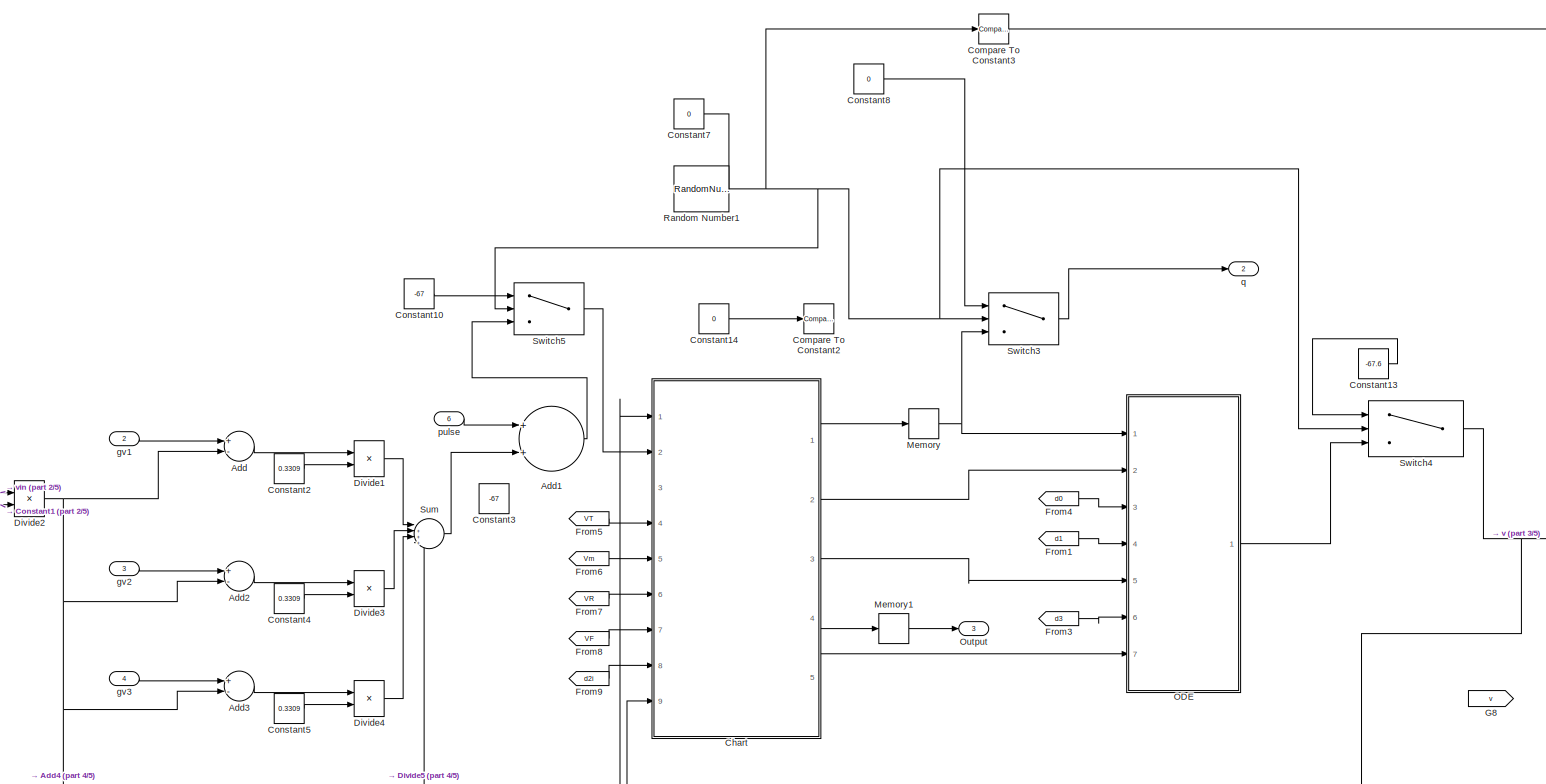
[diagram: ICC5_egm - part 1/5, central region]
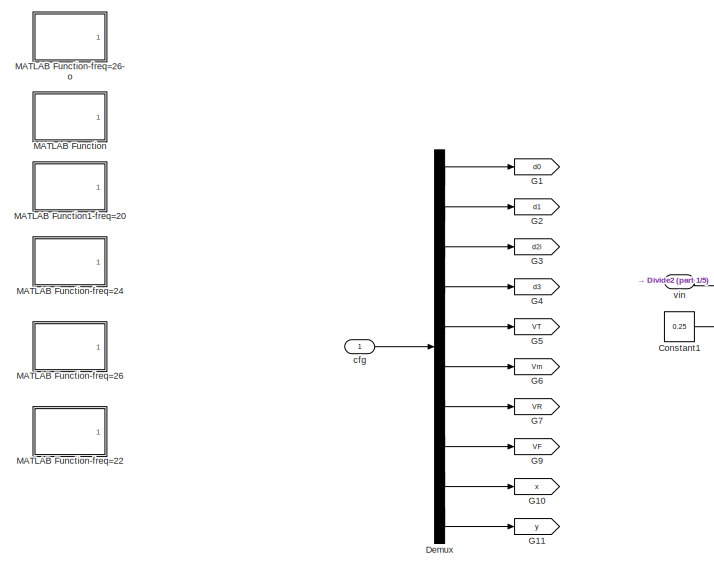
[diagram: ICC5_egm - part 2/5, middle left region]
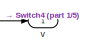
[diagram: ICC5_egm - part 3/5, middle right region]
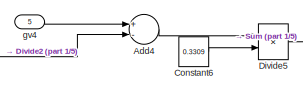
[diagram: ICC5_egm - part 4/5, bottom center region]
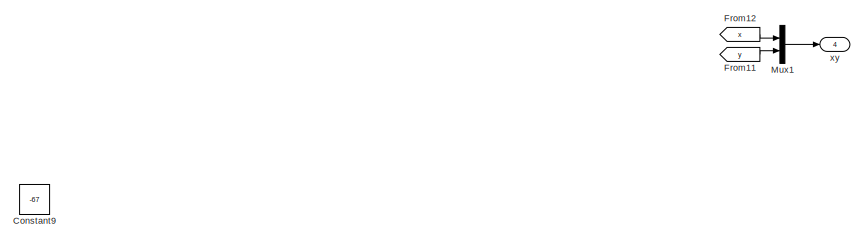
[diagram: ICC5_egm - part 5/5, bottom right region]
BLOCK [SubSystem] ICC5_egm
  Ports = [7, 4]
  RequestExecContextInheritance = off
BLOCK [Sum] ICC5_egm/Add
  InputSameDT = off
  Inputs = +-
  OutDataTypeStr = Inherit: Inherit via internal rule
  Ports = [2, 1]
  SaturateOnIntegerOverflow = off
BLOCK [Sum] ICC5_egm/Add1
  InputSameDT = off
  OutDataTypeStr = Inherit: Inherit via internal rule
  Ports = [2, 1]
  SaturateOnIntegerOverflow = off
BLOCK [Sum] ICC5_egm/Add2
  InputSameDT = off
  Inputs = +-
  OutDataTypeStr = Inherit: Inherit via internal rule
  Ports = [2, 1]
  SaturateOnIntegerOverflow = off
BLOCK [Sum] ICC5_egm/Add3
  InputSameDT = off
  Inputs = +-
  OutDataTypeStr = Inherit: Inherit via internal rule
  Ports = [2, 1]
  SaturateOnIntegerOverflow = off
BLOCK [Sum] ICC5_egm/Add4
  InputSameDT = off
  Inputs = +-
  OutDataTypeStr = Inherit: Inherit via internal rule
  Ports = [2, 1]
  SaturateOnIntegerOverflow = off
BLOCK [SubSystem] ICC5_egm/Chart
  ErrorFcn = Stateflow.Translate.translate
  PermitHierarchicalResolution = ExplicitOnly
  Ports = [9, 5]
  RequestExecContextInheritance = off
  SFBlockType = Chart
  TreatAsAtomicUnit = on
BLOCK [Demux] ICC5_egm/Chart/ Demux 
  Outputs = 1
  Ports = [1, 1]
BLOCK [S-Function] ICC5_egm/Chart/ SFunction 
  EnableBusSupport = off
  FunctionName = sf_sfun
  PortCounts = [9 6]
  Ports = [9, 6]
  SFcnIsStateOwnerBlock = off
  SFunctionDeploymentMode = off
  Tag = Stateflow S-Function icc_lib_avg_path1_n1 74
BLOCK [Terminator] ICC5_egm/Chart/ Terminator 
BLOCK [Outport] ICC5_egm/Chart/Sense
  IconDisplay = Port number
  Port = 4
BLOCK [Inport] ICC5_egm/Chart/VF
  IconDisplay = Port number
  Port = 7
BLOCK [Inport] ICC5_egm/Chart/VR
  IconDisplay = Port number
  Port = 6
BLOCK [Inport] ICC5_egm/Chart/VT
  IconDisplay = Port number
  Port = 4
BLOCK [Inport] ICC5_egm/Chart/Vm
  IconDisplay = Port number
  Port = 5
BLOCK [Inport] ICC5_egm/Chart/Vmm
  IconDisplay = Port number
  Port = 3
BLOCK [Inport] ICC5_egm/Chart/b
  IconDisplay = Port number
  Port = 9
BLOCK [Outport] ICC5_egm/Chart/d2
  IconDisplay = Port number
  Port = 3
BLOCK [Inport] ICC5_egm/Chart/d2i
  IconDisplay = Port number
  Port = 8
BLOCK [Inport] ICC5_egm/Chart/gv
  IconDisplay = Port number
  Port = 2
BLOCK [Outport] ICC5_egm/Chart/q
  IconDisplay = Port number
BLOCK [Outport] ICC5_egm/Chart/reset
  IconDisplay = Port number
  Port = 5
BLOCK [Inport] ICC5_egm/Chart/v
  IconDisplay = Port number
BLOCK [Outport] ICC5_egm/Chart/vreset
  IconDisplay = Port number
  Port = 2
BLOCK [Reference] ICC5_egm/Compare To Constant2  REF=simulink/Logic and Bit
Operations/Compare
To Constant
  Ports = [1, 1]
  SourceBlock = simulink/Logic and Bit\nOperations/Compare\nTo Constant
  SourceProductBaseCode = SL
  SourceProductName = Simulink
  SourceType = Compare To Constant
BLOCK [Reference] ICC5_egm/Compare To Constant3  REF=simulink/Logic and Bit
Operations/Compare
To Constant
  Ports = [1, 1]
  SourceBlock = simulink/Logic and Bit\nOperations/Compare\nTo Constant
  SourceProductBaseCode = SL
  SourceProductName = Simulink
  SourceType = Compare To Constant
BLOCK [Constant] ICC5_egm/Constant1
  Value = 0.25
BLOCK [Constant] ICC5_egm/Constant10
  Value = -67
BLOCK [Constant] ICC5_egm/Constant13
  Value = -67.6
BLOCK [Constant] ICC5_egm/Constant14
  Value = 0
BLOCK [Constant] ICC5_egm/Constant2
  Value = 0.3309
BLOCK [Constant] ICC5_egm/Constant3
  Value = -67
BLOCK [Constant] ICC5_egm/Constant4
  Value = 0.3309
BLOCK [Constant] ICC5_egm/Constant5
  Value = 0.3309
BLOCK [Constant] ICC5_egm/Constant6
  Value = 0.3309
BLOCK [Constant] ICC5_egm/Constant7
  Value = 0
BLOCK [Constant] ICC5_egm/Constant8
  Value = 0
BLOCK [Constant] ICC5_egm/Constant9
  Value = -67
BLOCK [Demux] ICC5_egm/Demux
  DisplayOption = bar
  Outputs = 10
  Ports = [1, 10]
BLOCK [Product] ICC5_egm/Divide1
  CollapseDim = 2
  CollapseMode = Specified dimension
  InputSameDT = off
  OutDataTypeStr = Inherit: Inherit via internal rule
  Ports = [2, 1]
BLOCK [Product] ICC5_egm/Divide2
  CollapseDim = 2
  CollapseMode = Specified dimension
  InputSameDT = off
  OutDataTypeStr = Inherit: Inherit via internal rule
  Ports = [2, 1]
BLOCK [Product] ICC5_egm/Divide3
  CollapseDim = 2
  CollapseMode = Specified dimension
  InputSameDT = off
  OutDataTypeStr = Inherit: Inherit via internal rule
  Ports = [2, 1]
BLOCK [Product] ICC5_egm/Divide4
  CollapseDim = 2
  CollapseMode = Specified dimension
  InputSameDT = off
  OutDataTypeStr = Inherit: Inherit via internal rule
  Ports = [2, 1]
BLOCK [Product] ICC5_egm/Divide5
  CollapseDim = 2
  CollapseMode = Specified dimension
  InputSameDT = off
  OutDataTypeStr = Inherit: Inherit via internal rule
  Ports = [2, 1]
BLOCK [From] ICC5_egm/From1
  GotoTag = d1
BLOCK [From] ICC5_egm/From11
  GotoTag = y
BLOCK [From] ICC5_egm/From12
  GotoTag = x
BLOCK [From] ICC5_egm/From3
  GotoTag = d3
BLOCK [From] ICC5_egm/From4
  GotoTag = d0
BLOCK [From] ICC5_egm/From5
  GotoTag = VT
BLOCK [From] ICC5_egm/From6
  GotoTag = Vm
BLOCK [From] ICC5_egm/From7
  GotoTag = VR
BLOCK [From] ICC5_egm/From8
  GotoTag = VF
BLOCK [From] ICC5_egm/From9
  GotoTag = d2i
BLOCK [Goto] ICC5_egm/G1
  GotoTag = d0
BLOCK [Goto] ICC5_egm/G10
  GotoTag = x
BLOCK [Goto] ICC5_egm/G11
  GotoTag = y
BLOCK [Goto] ICC5_egm/G2
  GotoTag = d1
BLOCK [Goto] ICC5_egm/G3
  GotoTag = d2i
BLOCK [Goto] ICC5_egm/G4
  GotoTag = d3
BLOCK [Goto] ICC5_egm/G5
  GotoTag = VT
BLOCK [Goto] ICC5_egm/G6
  GotoTag = Vm
BLOCK [Goto] ICC5_egm/G7
  GotoTag = VR
BLOCK [Goto] ICC5_egm/G8
  GotoTag = v
BLOCK [Goto] ICC5_egm/G9
  GotoTag = VF
BLOCK [SubSystem] ICC5_egm/MATLAB Function
  ErrorFcn = Stateflow.Translate.translate
  PermitHierarchicalResolution = ExplicitOnly
  Ports = [0, 1]
  RequestExecContextInheritance = off
  SFBlockType = MATLAB Function
  TreatAsAtomicUnit = on
BLOCK [SubSystem] ICC5_egm/MATLAB Function-freq=22 
  ErrorFcn = Stateflow.Translate.translate
  PermitHierarchicalResolution = ExplicitOnly
  Ports = [0, 1]
  RequestExecContextInheritance = off
  SFBlockType = MATLAB Function
  TreatAsAtomicUnit = on
BLOCK [Demux] ICC5_egm/MATLAB Function-freq=22 / Demux 
  Outputs = 1
  Ports = [1, 1]
BLOCK [Ground] ICC5_egm/MATLAB Function-freq=22 / Ground 
BLOCK [S-Function] ICC5_egm/MATLAB Function-freq=22 / SFunction 
  EnableBusSupport = off
  FunctionName = sf_sfun
  PortCounts = [1 2]
  Ports = [1, 2]
  SFcnIsStateOwnerBlock = off
  SFunctionDeploymentMode = off
  Tag = Stateflow S-Function icc_lib_avg_path1_n1 76
BLOCK [Terminator] ICC5_egm/MATLAB Function-freq=22 / Terminator 
BLOCK [Outport] ICC5_egm/MATLAB Function-freq=22 /cfg2
  IconDisplay = Port number
BLOCK [SubSystem] ICC5_egm/MATLAB Function-freq=24
  ErrorFcn = Stateflow.Translate.translate
  PermitHierarchicalResolution = ExplicitOnly
  Ports = [0, 1]
  RequestExecContextInheritance = off
  SFBlockType = MATLAB Function
  TreatAsAtomicUnit = on
BLOCK [Demux] ICC5_egm/MATLAB Function-freq=24/ Demux 
  Outputs = 1
  Ports = [1, 1]
BLOCK [Ground] ICC5_egm/MATLAB Function-freq=24/ Ground 
BLOCK [S-Function] ICC5_egm/MATLAB Function-freq=24/ SFunction 
  EnableBusSupport = off
  FunctionName = sf_sfun
  PortCounts = [1 2]
  Ports = [1, 2]
  SFcnIsStateOwnerBlock = off
  SFunctionDeploymentMode = off
  Tag = Stateflow S-Function icc_lib_avg_path1_n1 77
BLOCK [Terminator] ICC5_egm/MATLAB Function-freq=24/ Terminator 
BLOCK [Outport] ICC5_egm/MATLAB Function-freq=24/cfg2
  IconDisplay = Port number
BLOCK [SubSystem] ICC5_egm/MATLAB Function-freq=26 
  ErrorFcn = Stateflow.Translate.translate
  PermitHierarchicalResolution = ExplicitOnly
  Ports = [0, 1]
  RequestExecContextInheritance = off
  SFBlockType = MATLAB Function
  TreatAsAtomicUnit = on
BLOCK [Demux] ICC5_egm/MATLAB Function-freq=26 / Demux 
  Outputs = 1
  Ports = [1, 1]
BLOCK [Ground] ICC5_egm/MATLAB Function-freq=26 / Ground 
BLOCK [S-Function] ICC5_egm/MATLAB Function-freq=26 / SFunction 
  EnableBusSupport = off
  FunctionName = sf_sfun
  PortCounts = [1 2]
  Ports = [1, 2]
  SFcnIsStateOwnerBlock = off
  SFunctionDeploymentMode = off
  Tag = Stateflow S-Function icc_lib_avg_path1_n1 78
BLOCK [Terminator] ICC5_egm/MATLAB Function-freq=26 / Terminator 
BLOCK [Outport] ICC5_egm/MATLAB Function-freq=26 /cfg2
  IconDisplay = Port number
BLOCK [SubSystem] ICC5_egm/MATLAB Function-freq=26-o 
  ErrorFcn = Stateflow.Translate.translate
  PermitHierarchicalResolution = ExplicitOnly
  Ports = [0, 1]
  RequestExecContextInheritance = off
  SFBlockType = MATLAB Function
  TreatAsAtomicUnit = on
BLOCK [Demux] ICC5_egm/MATLAB Function-freq=26-o / Demux 
  Outputs = 1
  Ports = [1, 1]
BLOCK [Ground] ICC5_egm/MATLAB Function-freq=26-o / Ground 
BLOCK [S-Function] ICC5_egm/MATLAB Function-freq=26-o / SFunction 
  EnableBusSupport = off
  FunctionName = sf_sfun
  PortCounts = [1 2]
  Ports = [1, 2]
  SFcnIsStateOwnerBlock = off
  SFunctionDeploymentMode = off
  Tag = Stateflow S-Function icc_lib_avg_path1_n1 79
BLOCK [Terminator] ICC5_egm/MATLAB Function-freq=26-o / Terminator 
BLOCK [Outport] ICC5_egm/MATLAB Function-freq=26-o /cfg2
  IconDisplay = Port number
BLOCK [Demux] ICC5_egm/MATLAB Function/ Demux 
  Outputs = 1
  Ports = [1, 1]
BLOCK [Ground] ICC5_egm/MATLAB Function/ Ground 
BLOCK [S-Function] ICC5_egm/MATLAB Function/ SFunction 
  EnableBusSupport = off
  FunctionName = sf_sfun
  PortCounts = [1 2]
  Ports = [1, 2]
  SFcnIsStateOwnerBlock = off
  SFunctionDeploymentMode = off
  Tag = Stateflow S-Function icc_lib_avg_path1_n1 75
BLOCK [Terminator] ICC5_egm/MATLAB Function/ Terminator 
BLOCK [Outport] ICC5_egm/MATLAB Function/cfg
  IconDisplay = Port number
BLOCK [SubSystem] ICC5_egm/MATLAB Function1-freq=20 
  ErrorFcn = Stateflow.Translate.translate
  PermitHierarchicalResolution = ExplicitOnly
  Ports = [0, 1]
  RequestExecContextInheritance = off
  SFBlockType = MATLAB Function
  TreatAsAtomicUnit = on
BLOCK [Demux] ICC5_egm/MATLAB Function1-freq=20 / Demux 
  Outputs = 1
  Ports = [1, 1]
BLOCK [Ground] ICC5_egm/MATLAB Function1-freq=20 / Ground 
BLOCK [S-Function] ICC5_egm/MATLAB Function1-freq=20 / SFunction 
  EnableBusSupport = off
  FunctionName = sf_sfun
  PortCounts = [1 2]
  Ports = [1, 2]
  SFcnIsStateOwnerBlock = off
  SFunctionDeploymentMode = off
  Tag = Stateflow S-Function icc_lib_avg_path1_n1 80
BLOCK [Terminator] ICC5_egm/MATLAB Function1-freq=20 / Terminator 
BLOCK [Outport] ICC5_egm/MATLAB Function1-freq=20 /cfg2
  IconDisplay = Port number
BLOCK [Memory] ICC5_egm/Memory
  InheritSampleTime = on
BLOCK [Memory] ICC5_egm/Memory1
  InheritSampleTime = on
BLOCK [Mux] ICC5_egm/Mux1
  DisplayOption = bar
  Inputs = 2
  Ports = [2, 1]
BLOCK [SubSystem] ICC5_egm/ODE
  Ports = [7, 1]
  RequestExecContextInheritance = off
BLOCK [From] ICC5_egm/ODE/F1
  GotoTag = reset
BLOCK [From] ICC5_egm/ODE/F10
  GotoTag = qb
BLOCK [From] ICC5_egm/ODE/F11
  GotoTag = v0
BLOCK [From] ICC5_egm/ODE/F12
  GotoTag = pulse1
BLOCK [From] ICC5_egm/ODE/F13
  GotoTag = v2
BLOCK [From] ICC5_egm/ODE/F14
  GotoTag = vb
BLOCK [From] ICC5_egm/ODE/F19
  GotoTag = v3
BLOCK [From] ICC5_egm/ODE/F2
  GotoTag = vreset
BLOCK [From] ICC5_egm/ODE/F20
  GotoTag = q
BLOCK [From] ICC5_egm/ODE/F28
  GotoTag = reset
BLOCK [From] ICC5_egm/ODE/F3
  GotoTag = reset
BLOCK [From] ICC5_egm/ODE/F30
  GotoTag = q3
BLOCK [From] ICC5_egm/ODE/F31
  GotoTag = q0
BLOCK [From] ICC5_egm/ODE/F32
  GotoTag = q1
BLOCK [From] ICC5_egm/ODE/F33
  GotoTag = q
BLOCK [From] ICC5_egm/ODE/F4
  GotoTag = reset
BLOCK [From] ICC5_egm/ODE/F40
  GotoTag = vreset
BLOCK [From] ICC5_egm/ODE/F5
  GotoTag = vreset
BLOCK [From] ICC5_egm/ODE/F6
  GotoTag = q2
BLOCK [From] ICC5_egm/ODE/F9
  GotoTag = vreset
BLOCK [Goto] ICC5_egm/ODE/G
  GotoTag = reset
BLOCK [Goto] ICC5_egm/ODE/G1
  GotoTag = vreset
BLOCK [Goto] ICC5_egm/ODE/G17
  GotoTag = q
BLOCK [Goto] ICC5_egm/ODE/G19
  GotoTag = q1
BLOCK [Goto] ICC5_egm/ODE/G2
  GotoTag = v2
BLOCK [Goto] ICC5_egm/ODE/G20
  GotoTag = q2
BLOCK [Goto] ICC5_egm/ODE/G21
  GotoTag = q3
BLOCK [Goto] ICC5_egm/ODE/G3
  GotoTag = q0
BLOCK [Goto] ICC5_egm/ODE/G4
  GotoTag = v3
BLOCK [Goto] ICC5_egm/ODE/G5
  GotoTag = v0
BLOCK [Goto] ICC5_egm/ODE/G6
  GotoTag = pulse1
BLOCK [Goto] ICC5_egm/ODE/G7
  GotoTag = vb
BLOCK [Goto] ICC5_egm/ODE/G8
  GotoTag = qb
BLOCK [InitialCondition] ICC5_egm/ODE/IC
  Value = 0
BLOCK [Memory] ICC5_egm/ODE/Memory1
BLOCK [MultiPortSwitch] ICC5_egm/ODE/Multiport Switch1
  DataPortOrder = Zero-based contiguous
  InputSameDT = off
  Inputs = 6
  Ports = [7, 1]
  SaturateOnIntegerOverflow = off
  zeroidx = on
BLOCK [SwitchCase] ICC5_egm/ODE/Switch Case
  CaseConditions = {0,1,2,3,4,5}
  Ports = [1, 6]
  ShowDefaultCase = off
BLOCK [SubSystem] ICC5_egm/ODE/block
  Ports = [0, 1, 0, 0, 0, 0, 0, 1]
  RequestExecContextInheritance = off
  TreatAsAtomicUnit = on
BLOCK [ActionPort] ICC5_egm/ODE/block/Action Port
  InitializeStates = reset
BLOCK [Constant] ICC5_egm/ODE/block/Constant
  Value = -67.39
BLOCK [Outport] ICC5_egm/ODE/block/v
  IconDisplay = Port number
BLOCK [Inport] ICC5_egm/ODE/d0
  IconDisplay = Port number
  Port = 3
BLOCK [Inport] ICC5_egm/ODE/d1
  IconDisplay = Port number
  Port = 4
BLOCK [Inport] ICC5_egm/ODE/d2
  IconDisplay = Port number
  Port = 5
BLOCK [Inport] ICC5_egm/ODE/d3
  IconDisplay = Port number
  Port = 6
BLOCK [Inport] ICC5_egm/ODE/q
  IconDisplay = Port number
BLOCK [SubSystem] ICC5_egm/ODE/q0
  Ports = [3, 1, 0, 0, 0, 0, 0, 1]
  RequestExecContextInheritance = off
  TreatAsAtomicUnit = on
BLOCK [ActionPort] ICC5_egm/ODE/q0/Action Port
  InitializeStates = reset
BLOCK [Integrator] ICC5_egm/ODE/q0/Integrator1
  ExternalReset = either
  InitialCondition = 20
  InitialConditionSource = external
  Ports = [3, 1]
BLOCK [Inport] ICC5_egm/ODE/q0/d
  IconDisplay = Port number
  Port = 3
BLOCK [Outport] ICC5_egm/ODE/q0/pulse
  IconDisplay = Port number
BLOCK [Inport] ICC5_egm/ODE/q0/reset
  IconDisplay = Port number
BLOCK [Inport] ICC5_egm/ODE/q0/vreset
  IconDisplay = Port number
  Port = 2
BLOCK [SubSystem] ICC5_egm/ODE/q1
  Ports = [3, 1, 0, 0, 0, 0, 0, 1]
  RequestExecContextInheritance = off
  TreatAsAtomicUnit = on
BLOCK [ActionPort] ICC5_egm/ODE/q1/Action Port
  InitializeStates = reset
BLOCK [Display] ICC5_egm/ODE/q1/Display
  Decimation = 1
  Ports = [1]
BLOCK [Display] ICC5_egm/ODE/q1/Display1
  Decimation = 1
  Ports = [1]
BLOCK [Integrator] ICC5_egm/ODE/q1/Integrator1
  ExternalReset = either
  InitialCondition = 20
  InitialConditionSource = external
  LimitOutput = on
  Ports = [3, 1]
  UpperSaturationLimit = -24.105
BLOCK [Scope] ICC5_egm/ODE/q1/Scope
  Floating = off
  NumInputPorts = 1
  Ports = [1]
BLOCK [Inport] ICC5_egm/ODE/q1/d
  IconDisplay = Port number
  Port = 3
BLOCK [Inport] ICC5_egm/ODE/q1/reset
  IconDisplay = Port number
BLOCK [Outport] ICC5_egm/ODE/q1/v
  IconDisplay = Port number
BLOCK [Inport] ICC5_egm/ODE/q1/vreset
  IconDisplay = Port number
  Port = 2
BLOCK [SubSystem] ICC5_egm/ODE/q2
  Ports = [3, 1, 0, 0, 0, 0, 0, 1]
  RequestExecContextInheritance = off
  TreatAsAtomicUnit = on
BLOCK [ActionPort] ICC5_egm/ODE/q2/Action Port
  InitializeStates = reset
BLOCK [Integrator] ICC5_egm/ODE/q2/Integrator1
  ExternalReset = either
  InitialCondition = 20
  InitialConditionSource = external
  Ports = [3, 1]
BLOCK [Inport] ICC5_egm/ODE/q2/d
  IconDisplay = Port number
  Port = 3
BLOCK [Inport] ICC5_egm/ODE/q2/reset
  IconDisplay = Port number
BLOCK [Outport] ICC5_egm/ODE/q2/v
  IconDisplay = Port number
BLOCK [Inport] ICC5_egm/ODE/q2/vreset
  IconDisplay = Port number
  Port = 2
BLOCK [SubSystem] ICC5_egm/ODE/q3
  Ports = [4, 1, 0, 0, 0, 0, 0, 1]
  RequestExecContextInheritance = off
  TreatAsAtomicUnit = on
BLOCK [ActionPort] ICC5_egm/ODE/q3/Action Port
  InitializeStates = reset
BLOCK [Constant] ICC5_egm/ODE/q3/C
  Value = -1
BLOCK [Integrator] ICC5_egm/ODE/q3/Integrator1
  ExternalReset = either
  InitialCondition = 20
  InitialConditionSource = external
  LimitOutput = on
  LowerSaturationLimit = -67
  Ports = [3, 1]
BLOCK [Math] ICC5_egm/ODE/q3/Math Function
  Ports = [1, 1]
BLOCK [Product] ICC5_egm/ODE/q3/Product1
  InputSameDT = off
  OutDataTypeStr = Inherit: Inherit via internal rule
  Ports = [2, 1]
  RndMeth = Floor
  SaturateOnIntegerOverflow = off
BLOCK [Product] ICC5_egm/ODE/q3/Product2
  InputSameDT = off
  OutDataTypeStr = Inherit: Inherit via internal rule
  Ports = [2, 1]
  RndMeth = Floor
  SaturateOnIntegerOverflow = off
BLOCK [Inport] ICC5_egm/ODE/q3/d
  IconDisplay = Port number
  Port = 3
BLOCK [Inport] ICC5_egm/ODE/q3/reset
  IconDisplay = Port number
BLOCK [Inport] ICC5_egm/ODE/q3/theta
  IconDisplay = Port number
  Port = 4
BLOCK [Outport] ICC5_egm/ODE/q3/v
  IconDisplay = Port number
BLOCK [Inport] ICC5_egm/ODE/q3/vreset
  IconDisplay = Port number
  Port = 2
BLOCK [Inport] ICC5_egm/ODE/reset
  IconDisplay = Port number
  Port = 7
BLOCK [Inport] ICC5_egm/ODE/vreset
  IconDisplay = Port number
  Port = 2
BLOCK [Outport] ICC5_egm/ODE/vt_0
  IconDisplay = Port number
BLOCK [Outport] ICC5_egm/Output
  IconDisplay = Port number
  Port = 3
BLOCK [RandomNumber] ICC5_egm/Random Number1
  SampleTime = 20.2
BLOCK [Sum] ICC5_egm/Sum
  IconShape = round
  InputSameDT = off
  Inputs = |++++
  OutDataTypeStr = Inherit: Inherit via internal rule
  Ports = [4, 1]
  SaturateOnIntegerOverflow = off
BLOCK [Switch] ICC5_egm/Switch3
  Criteria = u2 > Threshold
  InputSameDT = off
  SaturateOnIntegerOverflow = off
BLOCK [Switch] ICC5_egm/Switch4
  Criteria = u2 > Threshold
  InputSameDT = off
  SaturateOnIntegerOverflow = off
BLOCK [Switch] ICC5_egm/Switch5
  Criteria = u2 > Threshold
  InputSameDT = off
  SaturateOnIntegerOverflow = off
BLOCK [Inport] ICC5_egm/cfg 
  IconDisplay = Port number
BLOCK [Inport] ICC5_egm/gv1
  IconDisplay = Port number
  Port = 2
BLOCK [Inport] ICC5_egm/gv2
  IconDisplay = Port number
  Port = 3
BLOCK [Inport] ICC5_egm/gv3
  IconDisplay = Port number
  Port = 4
BLOCK [Inport] ICC5_egm/gv4
  IconDisplay = Port number
  Port = 5
BLOCK [Inport] ICC5_egm/pulse
  IconDisplay = Port number
  Port = 6
BLOCK [Outport] ICC5_egm/q
  IconDisplay = Port number
  Port = 2
BLOCK [Outport] ICC5_egm/v
  IconDisplay = Port number
BLOCK [Inport] ICC5_egm/vin
  IconDisplay = Port number
  Port = 7
BLOCK [Outport] ICC5_egm/xy
  IconDisplay = Port number
  Port = 4
BLOCK [SubSystem] ICC6
  Ports = [7, 3]
  RequestExecContextInheritance = off
BLOCK [Sum] ICC6/Add
  InputSameDT = off
  Inputs = +-
  OutDataTypeStr = Inherit: Inherit via internal rule
  Ports = [2, 1]
  SaturateOnIntegerOverflow = off
BLOCK [Sum] ICC6/Add1
  InputSameDT = off
  OutDataTypeStr = Inherit: Inherit via internal rule
  Ports = [2, 1]
  SaturateOnIntegerOverflow = off
BLOCK [Sum] ICC6/Add2
  InputSameDT = off
  Inputs = +-
  OutDataTypeStr = Inherit: Inherit via internal rule
  Ports = [2, 1]
  SaturateOnIntegerOverflow = off
BLOCK [Sum] ICC6/Add3
  InputSameDT = off
  Inputs = +-
  OutDataTypeStr = Inherit: Inherit via internal rule
  Ports = [2, 1]
  SaturateOnIntegerOverflow = off
BLOCK [Sum] ICC6/Add4
  InputSameDT = off
  Inputs = +-
  OutDataTypeStr = Inherit: Inherit via internal rule
  Ports = [2, 1]
  SaturateOnIntegerOverflow = off
BLOCK [SubSystem] ICC6/Chart
  ErrorFcn = Stateflow.Translate.translate
  PermitHierarchicalResolution = ExplicitOnly
  Ports = [9, 5]
  RequestExecContextInheritance = off
  SFBlockType = Chart
  TreatAsAtomicUnit = on
BLOCK [Demux] ICC6/Chart/ Demux 
  Outputs = 1
  Ports = [1, 1]
BLOCK [S-Function] ICC6/Chart/ SFunction 
  EnableBusSupport = off
  FunctionName = sf_sfun
  PortCounts = [9 6]
  Ports = [9, 6]
  SFcnIsStateOwnerBlock = off
  SFunctionDeploymentMode = off
  Tag = Stateflow S-Function icc_lib_avg_path1_n1 27
BLOCK [Terminator] ICC6/Chart/ Terminator 
BLOCK [Outport] ICC6/Chart/Sense
  IconDisplay = Port number
  Port = 4
BLOCK [Inport] ICC6/Chart/VF
  IconDisplay = Port number
  Port = 7
BLOCK [Inport] ICC6/Chart/VR
  IconDisplay = Port number
  Port = 6
BLOCK [Inport] ICC6/Chart/VT
  IconDisplay = Port number
  Port = 4
BLOCK [Inport] ICC6/Chart/Vm
  IconDisplay = Port number
  Port = 5
BLOCK [Inport] ICC6/Chart/Vmm
  IconDisplay = Port number
  Port = 3
BLOCK [Inport] ICC6/Chart/b
  IconDisplay = Port number
  Port = 9
BLOCK [Outport] ICC6/Chart/d2
  IconDisplay = Port number
  Port = 3
BLOCK [Inport] ICC6/Chart/d2i
  IconDisplay = Port number
  Port = 8
BLOCK [Inport] ICC6/Chart/gv
  IconDisplay = Port number
  Port = 2
BLOCK [Outport] ICC6/Chart/q
  IconDisplay = Port number
BLOCK [Outport] ICC6/Chart/reset
  IconDisplay = Port number
  Port = 5
BLOCK [Inport] ICC6/Chart/v
  IconDisplay = Port number
BLOCK [Outport] ICC6/Chart/vreset
  IconDisplay = Port number
  Port = 2
BLOCK [Reference] ICC6/Compare To Constant2  REF=simulink/Logic and Bit
Operations/Compare
To Constant
  Ports = [1, 1]
  SourceBlock = simulink/Logic and Bit\nOperations/Compare\nTo Constant
  SourceProductBaseCode = SL
  SourceProductName = Simulink
  SourceType = Compare To Constant
BLOCK [Reference] ICC6/Compare To Constant3  REF=simulink/Logic and Bit
Operations/Compare
To Constant
  Ports = [1, 1]
  SourceBlock = simulink/Logic and Bit\nOperations/Compare\nTo Constant
  SourceProductBaseCode = SL
  SourceProductName = Simulink
  SourceType = Compare To Constant
BLOCK [Constant] ICC6/Constant1
  Value = 0.25
BLOCK [Constant] ICC6/Constant10
  Value = -67
BLOCK [Constant] ICC6/Constant13
  Value = -67.6
BLOCK [Constant] ICC6/Constant14
  Value = 0
BLOCK [Constant] ICC6/Constant2
  Value = 1/3
BLOCK [Constant] ICC6/Constant3
  Value = -67
BLOCK [Constant] ICC6/Constant4
  Value = 1/3
BLOCK [Constant] ICC6/Constant5
  Value = 1/3
BLOCK [Constant] ICC6/Constant6
  Value = 1/3
BLOCK [Constant] ICC6/Constant7
BLOCK [Constant] ICC6/Constant8
  Value = 0
BLOCK [Constant] ICC6/Constant9
  Value = -67
BLOCK [Demux] ICC6/Demux
  DisplayOption = bar
  Outputs = 8
  Ports = [1, 8]
BLOCK [Product] ICC6/Divide1
  CollapseDim = 2
  CollapseMode = Specified dimension
  InputSameDT = off
  OutDataTypeStr = Inherit: Inherit via internal rule
  Ports = [2, 1]
BLOCK [Product] ICC6/Divide2
  CollapseDim = 2
  CollapseMode = Specified dimension
  InputSameDT = off
  OutDataTypeStr = Inherit: Inherit via internal rule
  Ports = [2, 1]
BLOCK [Product] ICC6/Divide3
  CollapseDim = 2
  CollapseMode = Specified dimension
  InputSameDT = off
  OutDataTypeStr = Inherit: Inherit via internal rule
  Ports = [2, 1]
BLOCK [Product] ICC6/Divide4
  CollapseDim = 2
  CollapseMode = Specified dimension
  InputSameDT = off
  OutDataTypeStr = Inherit: Inherit via internal rule
  Ports = [2, 1]
BLOCK [Product] ICC6/Divide5
  CollapseDim = 2
  CollapseMode = Specified dimension
  InputSameDT = off
  OutDataTypeStr = Inherit: Inherit via internal rule
  Ports = [2, 1]
BLOCK [From] ICC6/From1
  GotoTag = d1
BLOCK [From] ICC6/From3
  GotoTag = d3
BLOCK [From] ICC6/From4
  GotoTag = d0
BLOCK [From] ICC6/From5
  GotoTag = VT
BLOCK [From] ICC6/From6
  GotoTag = Vm
BLOCK [From] ICC6/From7
  GotoTag = VR
BLOCK [From] ICC6/From8
  GotoTag = VF
BLOCK [From] ICC6/From9
  GotoTag = d2i
BLOCK [Goto] ICC6/G1
  GotoTag = d0
BLOCK [Goto] ICC6/G2
  GotoTag = d1
BLOCK [Goto] ICC6/G3
  GotoTag = d2i
BLOCK [Goto] ICC6/G4
  GotoTag = d3
BLOCK [Goto] ICC6/G5
  GotoTag = VT
BLOCK [Goto] ICC6/G6
  GotoTag = Vm
BLOCK [Goto] ICC6/G7
  GotoTag = VR
BLOCK [Goto] ICC6/G8
  GotoTag = v
BLOCK [Goto] ICC6/G9
  GotoTag = VF
BLOCK [SubSystem] ICC6/MATLAB Function
  ErrorFcn = Stateflow.Translate.translate
  PermitHierarchicalResolution = ExplicitOnly
  Ports = [0, 1]
  RequestExecContextInheritance = off
  SFBlockType = MATLAB Function
  TreatAsAtomicUnit = on
BLOCK [SubSystem] ICC6/MATLAB Function-freq=22 
  ErrorFcn = Stateflow.Translate.translate
  PermitHierarchicalResolution = ExplicitOnly
  Ports = [0, 1]
  RequestExecContextInheritance = off
  SFBlockType = MATLAB Function
  TreatAsAtomicUnit = on
BLOCK [Demux] ICC6/MATLAB Function-freq=22 / Demux 
  Outputs = 1
  Ports = [1, 1]
BLOCK [Ground] ICC6/MATLAB Function-freq=22 / Ground 
BLOCK [S-Function] ICC6/MATLAB Function-freq=22 / SFunction 
  EnableBusSupport = off
  FunctionName = sf_sfun
  PortCounts = [1 2]
  Ports = [1, 2]
  SFcnIsStateOwnerBlock = off
  SFunctionDeploymentMode = off
  Tag = Stateflow S-Function icc_lib_avg_path1_n1 29
BLOCK [Terminator] ICC6/MATLAB Function-freq=22 / Terminator 
BLOCK [Outport] ICC6/MATLAB Function-freq=22 /cfg2
  IconDisplay = Port number
BLOCK [SubSystem] ICC6/MATLAB Function-freq=24
  ErrorFcn = Stateflow.Translate.translate
  PermitHierarchicalResolution = ExplicitOnly
  Ports = [0, 1]
  RequestExecContextInheritance = off
  SFBlockType = MATLAB Function
  TreatAsAtomicUnit = on
BLOCK [Demux] ICC6/MATLAB Function-freq=24/ Demux 
  Outputs = 1
  Ports = [1, 1]
BLOCK [Ground] ICC6/MATLAB Function-freq=24/ Ground 
BLOCK [S-Function] ICC6/MATLAB Function-freq=24/ SFunction 
  EnableBusSupport = off
  FunctionName = sf_sfun
  PortCounts = [1 2]
  Ports = [1, 2]
  SFcnIsStateOwnerBlock = off
  SFunctionDeploymentMode = off
  Tag = Stateflow S-Function icc_lib_avg_path1_n1 30
BLOCK [Terminator] ICC6/MATLAB Function-freq=24/ Terminator 
BLOCK [Outport] ICC6/MATLAB Function-freq=24/cfg2
  IconDisplay = Port number
BLOCK [SubSystem] ICC6/MATLAB Function-freq=26 
  ErrorFcn = Stateflow.Translate.translate
  PermitHierarchicalResolution = ExplicitOnly
  Ports = [0, 1]
  RequestExecContextInheritance = off
  SFBlockType = MATLAB Function
  TreatAsAtomicUnit = on
BLOCK [Demux] ICC6/MATLAB Function-freq=26 / Demux 
  Outputs = 1
  Ports = [1, 1]
BLOCK [Ground] ICC6/MATLAB Function-freq=26 / Ground 
BLOCK [S-Function] ICC6/MATLAB Function-freq=26 / SFunction 
  EnableBusSupport = off
  FunctionName = sf_sfun
  PortCounts = [1 2]
  Ports = [1, 2]
  SFcnIsStateOwnerBlock = off
  SFunctionDeploymentMode = off
  Tag = Stateflow S-Function icc_lib_avg_path1_n1 31
BLOCK [Terminator] ICC6/MATLAB Function-freq=26 / Terminator 
BLOCK [Outport] ICC6/MATLAB Function-freq=26 /cfg2
  IconDisplay = Port number
BLOCK [SubSystem] ICC6/MATLAB Function-freq=26-o 
  ErrorFcn = Stateflow.Translate.translate
  PermitHierarchicalResolution = ExplicitOnly
  Ports = [0, 1]
  RequestExecContextInheritance = off
  SFBlockType = MATLAB Function
  TreatAsAtomicUnit = on
BLOCK [Demux] ICC6/MATLAB Function-freq=26-o / Demux 
  Outputs = 1
  Ports = [1, 1]
BLOCK [Ground] ICC6/MATLAB Function-freq=26-o / Ground 
BLOCK [S-Function] ICC6/MATLAB Function-freq=26-o / SFunction 
  EnableBusSupport = off
  FunctionName = sf_sfun
  PortCounts = [1 2]
  Ports = [1, 2]
  SFcnIsStateOwnerBlock = off
  SFunctionDeploymentMode = off
  Tag = Stateflow S-Function icc_lib_avg_path1_n1 32
BLOCK [Terminator] ICC6/MATLAB Function-freq=26-o / Terminator 
BLOCK [Outport] ICC6/MATLAB Function-freq=26-o /cfg2
  IconDisplay = Port number
BLOCK [Demux] ICC6/MATLAB Function/ Demux 
  Outputs = 1
  Ports = [1, 1]
BLOCK [Ground] ICC6/MATLAB Function/ Ground 
BLOCK [S-Function] ICC6/MATLAB Function/ SFunction 
  EnableBusSupport = off
  FunctionName = sf_sfun
  PortCounts = [1 2]
  Ports = [1, 2]
  SFcnIsStateOwnerBlock = off
  SFunctionDeploymentMode = off
  Tag = Stateflow S-Function icc_lib_avg_path1_n1 28
BLOCK [Terminator] ICC6/MATLAB Function/ Terminator 
BLOCK [Outport] ICC6/MATLAB Function/cfg
  IconDisplay = Port number
BLOCK [SubSystem] ICC6/MATLAB Function1-freq=20 
  ErrorFcn = Stateflow.Translate.translate
  PermitHierarchicalResolution = ExplicitOnly
  Ports = [0, 1]
  RequestExecContextInheritance = off
  SFBlockType = MATLAB Function
  TreatAsAtomicUnit = on
BLOCK [Demux] ICC6/MATLAB Function1-freq=20 / Demux 
  Outputs = 1
  Ports = [1, 1]
BLOCK [Ground] ICC6/MATLAB Function1-freq=20 / Ground 
BLOCK [S-Function] ICC6/MATLAB Function1-freq=20 / SFunction 
  EnableBusSupport = off
  FunctionName = sf_sfun
  PortCounts = [1 2]
  Ports = [1, 2]
  SFcnIsStateOwnerBlock = off
  SFunctionDeploymentMode = off
  Tag = Stateflow S-Function icc_lib_avg_path1_n1 33
BLOCK [Terminator] ICC6/MATLAB Function1-freq=20 / Terminator 
BLOCK [Outport] ICC6/MATLAB Function1-freq=20 /cfg2
  IconDisplay = Port number
BLOCK [Memory] ICC6/Memory
  InheritSampleTime = on
BLOCK [Memory] ICC6/Memory1
  InheritSampleTime = on
BLOCK [SubSystem] ICC6/ODE
  Ports = [7, 1]
  RequestExecContextInheritance = off
BLOCK [From] ICC6/ODE/F1
  GotoTag = reset
BLOCK [From] ICC6/ODE/F10
  GotoTag = qb
BLOCK [From] ICC6/ODE/F11
  GotoTag = v0
BLOCK [From] ICC6/ODE/F12
  GotoTag = pulse1
BLOCK [From] ICC6/ODE/F13
  GotoTag = v2
BLOCK [From] ICC6/ODE/F14
  GotoTag = vb
BLOCK [From] ICC6/ODE/F19
  GotoTag = v3
BLOCK [From] ICC6/ODE/F2
  GotoTag = vreset
BLOCK [From] ICC6/ODE/F20
  GotoTag = q
BLOCK [From] ICC6/ODE/F28
  GotoTag = reset
BLOCK [From] ICC6/ODE/F3
  GotoTag = reset
BLOCK [From] ICC6/ODE/F30
  GotoTag = q3
BLOCK [From] ICC6/ODE/F31
  GotoTag = q0
BLOCK [From] ICC6/ODE/F32
  GotoTag = q1
BLOCK [From] ICC6/ODE/F33
  GotoTag = q
BLOCK [From] ICC6/ODE/F4
  GotoTag = reset
BLOCK [From] ICC6/ODE/F40
  GotoTag = vreset
BLOCK [From] ICC6/ODE/F5
  GotoTag = vreset
BLOCK [From] ICC6/ODE/F6
  GotoTag = q2
BLOCK [From] ICC6/ODE/F9
  GotoTag = vreset
BLOCK [Goto] ICC6/ODE/G
  GotoTag = reset
BLOCK [Goto] ICC6/ODE/G1
  GotoTag = vreset
BLOCK [Goto] ICC6/ODE/G17
  GotoTag = q
BLOCK [Goto] ICC6/ODE/G19
  GotoTag = q1
BLOCK [Goto] ICC6/ODE/G2
  GotoTag = v2
BLOCK [Goto] ICC6/ODE/G20
  GotoTag = q2
BLOCK [Goto] ICC6/ODE/G21
  GotoTag = q3
BLOCK [Goto] ICC6/ODE/G3
  GotoTag = q0
BLOCK [Goto] ICC6/ODE/G4
  GotoTag = v3
BLOCK [Goto] ICC6/ODE/G5
  GotoTag = v0
BLOCK [Goto] ICC6/ODE/G6
  GotoTag = pulse1
BLOCK [Goto] ICC6/ODE/G7
  GotoTag = vb
BLOCK [Goto] ICC6/ODE/G8
  GotoTag = qb
BLOCK [InitialCondition] ICC6/ODE/IC
  Value = 0
BLOCK [Memory] ICC6/ODE/Memory1
BLOCK [MultiPortSwitch] ICC6/ODE/Multiport Switch1
  DataPortOrder = Zero-based contiguous
  InputSameDT = off
  Inputs = 6
  Ports = [7, 1]
  SaturateOnIntegerOverflow = off
  zeroidx = on
BLOCK [SwitchCase] ICC6/ODE/Switch Case
  CaseConditions = {0,1,2,3,4,5}
  Ports = [1, 6]
  ShowDefaultCase = off
BLOCK [SubSystem] ICC6/ODE/block
  Ports = [0, 1, 0, 0, 0, 0, 0, 1]
  RequestExecContextInheritance = off
  TreatAsAtomicUnit = on
BLOCK [ActionPort] ICC6/ODE/block/Action Port
  InitializeStates = reset
BLOCK [Constant] ICC6/ODE/block/Constant
  Value = -67.39
BLOCK [Outport] ICC6/ODE/block/v
  IconDisplay = Port number
BLOCK [Inport] ICC6/ODE/d0
  IconDisplay = Port number
  Port = 3
BLOCK [Inport] ICC6/ODE/d1
  IconDisplay = Port number
  Port = 4
BLOCK [Inport] ICC6/ODE/d2
  IconDisplay = Port number
  Port = 5
BLOCK [Inport] ICC6/ODE/d3
  IconDisplay = Port number
  Port = 6
BLOCK [Inport] ICC6/ODE/q
  IconDisplay = Port number
BLOCK [SubSystem] ICC6/ODE/q0
  Ports = [3, 1, 0, 0, 0, 0, 0, 1]
  RequestExecContextInheritance = off
  TreatAsAtomicUnit = on
BLOCK [ActionPort] ICC6/ODE/q0/Action Port
  InitializeStates = reset
BLOCK [Integrator] ICC6/ODE/q0/Integrator1
  ExternalReset = either
  InitialCondition = 20
  InitialConditionSource = external
  Ports = [3, 1]
BLOCK [Inport] ICC6/ODE/q0/d
  IconDisplay = Port number
  Port = 3
BLOCK [Outport] ICC6/ODE/q0/pulse
  IconDisplay = Port number
BLOCK [Inport] ICC6/ODE/q0/reset
  IconDisplay = Port number
BLOCK [Inport] ICC6/ODE/q0/vreset
  IconDisplay = Port number
  Port = 2
BLOCK [SubSystem] ICC6/ODE/q1
  Ports = [3, 1, 0, 0, 0, 0, 0, 1]
  RequestExecContextInheritance = off
  TreatAsAtomicUnit = on
BLOCK [ActionPort] ICC6/ODE/q1/Action Port
  InitializeStates = reset
BLOCK [Display] ICC6/ODE/q1/Display
  Decimation = 1
  Ports = [1]
BLOCK [Display] ICC6/ODE/q1/Display1
  Decimation = 1
  Ports = [1]
BLOCK [Integrator] ICC6/ODE/q1/Integrator1
  ExternalReset = either
  InitialCondition = 20
  InitialConditionSource = external
  LimitOutput = on
  Ports = [3, 1]
  UpperSaturationLimit = -24.105
BLOCK [Scope] ICC6/ODE/q1/Scope
  Floating = off
  NumInputPorts = 1
  Ports = [1]
BLOCK [Inport] ICC6/ODE/q1/d
  IconDisplay = Port number
  Port = 3
BLOCK [Inport] ICC6/ODE/q1/reset
  IconDisplay = Port number
BLOCK [Outport] ICC6/ODE/q1/v
  IconDisplay = Port number
BLOCK [Inport] ICC6/ODE/q1/vreset
  IconDisplay = Port number
  Port = 2
BLOCK [SubSystem] ICC6/ODE/q2
  Ports = [3, 1, 0, 0, 0, 0, 0, 1]
  RequestExecContextInheritance = off
  TreatAsAtomicUnit = on
BLOCK [ActionPort] ICC6/ODE/q2/Action Port
  InitializeStates = reset
BLOCK [Integrator] ICC6/ODE/q2/Integrator1
  ExternalReset = either
  InitialCondition = 20
  InitialConditionSource = external
  Ports = [3, 1]
BLOCK [Inport] ICC6/ODE/q2/d
  IconDisplay = Port number
  Port = 3
BLOCK [Inport] ICC6/ODE/q2/reset
  IconDisplay = Port number
BLOCK [Outport] ICC6/ODE/q2/v
  IconDisplay = Port number
BLOCK [Inport] ICC6/ODE/q2/vreset
  IconDisplay = Port number
  Port = 2
BLOCK [SubSystem] ICC6/ODE/q3
  Ports = [4, 1, 0, 0, 0, 0, 0, 1]
  RequestExecContextInheritance = off
  TreatAsAtomicUnit = on
BLOCK [ActionPort] ICC6/ODE/q3/Action Port
  InitializeStates = reset
BLOCK [Constant] ICC6/ODE/q3/C
  Value = -1
BLOCK [Integrator] ICC6/ODE/q3/Integrator1
  ExternalReset = either
  InitialCondition = 20
  InitialConditionSource = external
  LimitOutput = on
  LowerSaturationLimit = -67
  Ports = [3, 1]
BLOCK [Math] ICC6/ODE/q3/Math Function
  Ports = [1, 1]
BLOCK [Product] ICC6/ODE/q3/Product1
  InputSameDT = off
  OutDataTypeStr = Inherit: Inherit via internal rule
  Ports = [2, 1]
  RndMeth = Floor
  SaturateOnIntegerOverflow = off
BLOCK [Product] ICC6/ODE/q3/Product2
  InputSameDT = off
  OutDataTypeStr = Inherit: Inherit via internal rule
  Ports = [2, 1]
  RndMeth = Floor
  SaturateOnIntegerOverflow = off
BLOCK [Inport] ICC6/ODE/q3/d
  IconDisplay = Port number
  Port = 3
BLOCK [Inport] ICC6/ODE/q3/reset
  IconDisplay = Port number
BLOCK [Inport] ICC6/ODE/q3/theta
  IconDisplay = Port number
  Port = 4
BLOCK [Outport] ICC6/ODE/q3/v
  IconDisplay = Port number
BLOCK [Inport] ICC6/ODE/q3/vreset
  IconDisplay = Port number
  Port = 2
BLOCK [Inport] ICC6/ODE/reset
  IconDisplay = Port number
  Port = 7
BLOCK [Inport] ICC6/ODE/vreset
  IconDisplay = Port number
  Port = 2
BLOCK [Outport] ICC6/ODE/vt_0
  IconDisplay = Port number
BLOCK [Outport] ICC6/Output
  IconDisplay = Port number
  Port = 3
BLOCK [RandomNumber] ICC6/Random Number1
  SampleTime = 20.2
BLOCK [Step] ICC6/Step
  After = 0
  Before = 1
  SampleTime = 1
  Time = 52
BLOCK [Sum] ICC6/Sum
  IconShape = round
  InputSameDT = off
  Inputs = |++++
  OutDataTypeStr = Inherit: Inherit via internal rule
  Ports = [4, 1]
  SaturateOnIntegerOverflow = off
BLOCK [Switch] ICC6/Switch3
  Criteria = u2 > Threshold
  InputSameDT = off
  SaturateOnIntegerOverflow = off
BLOCK [Switch] ICC6/Switch4
  Criteria = u2 > Threshold
  InputSameDT = off
  SaturateOnIntegerOverflow = off
BLOCK [Switch] ICC6/Switch5
  Criteria = u2 > Threshold
  InputSameDT = off
  SaturateOnIntegerOverflow = off
BLOCK [Inport] ICC6/cfg 
  IconDisplay = Port number
BLOCK [Inport] ICC6/gv1
  IconDisplay = Port number
  Port = 2
BLOCK [Inport] ICC6/gv2
  IconDisplay = Port number
  Port = 3
BLOCK [Inport] ICC6/gv3
  IconDisplay = Port number
  Port = 4
BLOCK [Inport] ICC6/gv4
  IconDisplay = Port number
  Port = 5
BLOCK [Inport] ICC6/pulse
  IconDisplay = Port number
  Port = 6
BLOCK [Outport] ICC6/q
  IconDisplay = Port number
  Port = 2
BLOCK [Outport] ICC6/v
  IconDisplay = Port number
BLOCK [Inport] ICC6/vin
  IconDisplay = Port number
  Port = 7
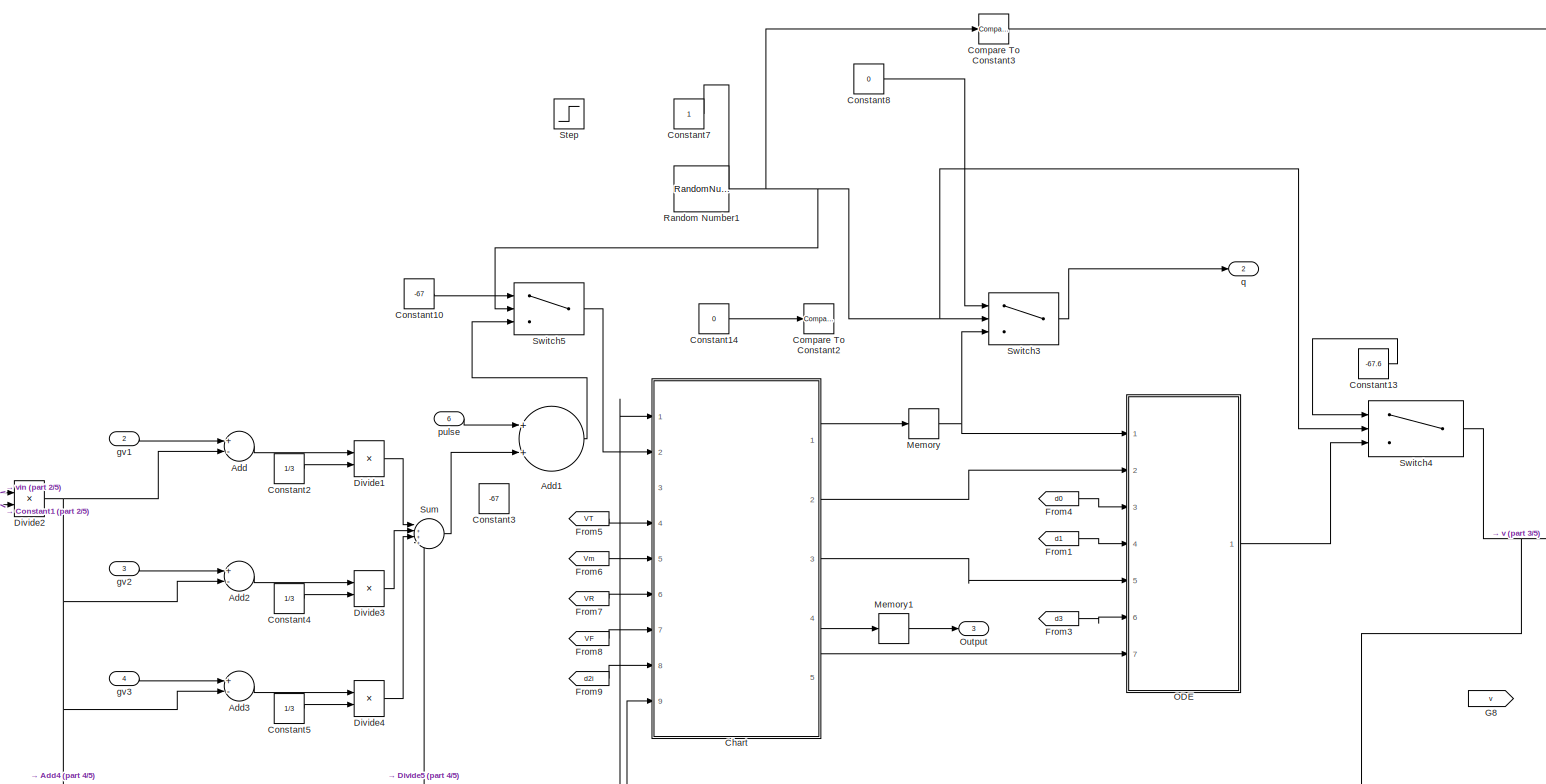
[diagram: ICC6_egm - part 1/5, central region]
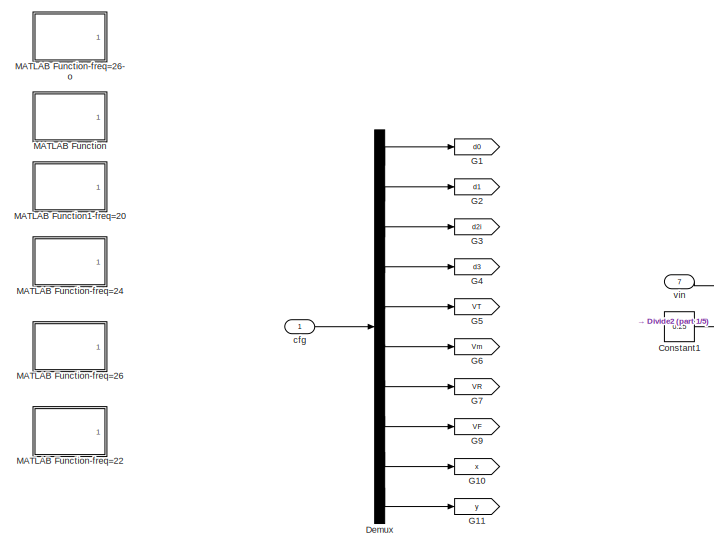
[diagram: ICC6_egm - part 2/5, middle left region]
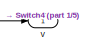
[diagram: ICC6_egm - part 3/5, middle right region]
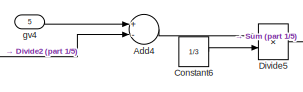
[diagram: ICC6_egm - part 4/5, bottom center region]
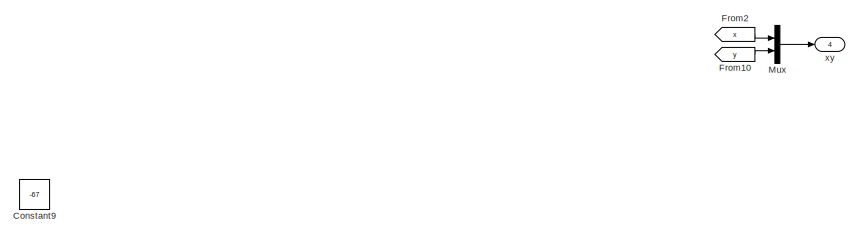
[diagram: ICC6_egm - part 5/5, bottom right region]
BLOCK [SubSystem] ICC6_egm
  Ports = [7, 4]
  RequestExecContextInheritance = off
BLOCK [Sum] ICC6_egm/Add
  InputSameDT = off
  Inputs = +-
  OutDataTypeStr = Inherit: Inherit via internal rule
  Ports = [2, 1]
  SaturateOnIntegerOverflow = off
BLOCK [Sum] ICC6_egm/Add1
  InputSameDT = off
  OutDataTypeStr = Inherit: Inherit via internal rule
  Ports = [2, 1]
  SaturateOnIntegerOverflow = off
BLOCK [Sum] ICC6_egm/Add2
  InputSameDT = off
  Inputs = +-
  OutDataTypeStr = Inherit: Inherit via internal rule
  Ports = [2, 1]
  SaturateOnIntegerOverflow = off
BLOCK [Sum] ICC6_egm/Add3
  InputSameDT = off
  Inputs = +-
  OutDataTypeStr = Inherit: Inherit via internal rule
  Ports = [2, 1]
  SaturateOnIntegerOverflow = off
BLOCK [Sum] ICC6_egm/Add4
  InputSameDT = off
  Inputs = +-
  OutDataTypeStr = Inherit: Inherit via internal rule
  Ports = [2, 1]
  SaturateOnIntegerOverflow = off
BLOCK [SubSystem] ICC6_egm/Chart
  ErrorFcn = Stateflow.Translate.translate
  PermitHierarchicalResolution = ExplicitOnly
  Ports = [9, 5]
  RequestExecContextInheritance = off
  SFBlockType = Chart
  TreatAsAtomicUnit = on
BLOCK [Demux] ICC6_egm/Chart/ Demux 
  Outputs = 1
  Ports = [1, 1]
BLOCK [S-Function] ICC6_egm/Chart/ SFunction 
  EnableBusSupport = off
  FunctionName = sf_sfun
  PortCounts = [9 6]
  Ports = [9, 6]
  SFcnIsStateOwnerBlock = off
  SFunctionDeploymentMode = off
  Tag = Stateflow S-Function icc_lib_avg_path1_n1 88
BLOCK [Terminator] ICC6_egm/Chart/ Terminator 
BLOCK [Outport] ICC6_egm/Chart/Sense
  IconDisplay = Port number
  Port = 4
BLOCK [Inport] ICC6_egm/Chart/VF
  IconDisplay = Port number
  Port = 7
BLOCK [Inport] ICC6_egm/Chart/VR
  IconDisplay = Port number
  Port = 6
BLOCK [Inport] ICC6_egm/Chart/VT
  IconDisplay = Port number
  Port = 4
BLOCK [Inport] ICC6_egm/Chart/Vm
  IconDisplay = Port number
  Port = 5
BLOCK [Inport] ICC6_egm/Chart/Vmm
  IconDisplay = Port number
  Port = 3
BLOCK [Inport] ICC6_egm/Chart/b
  IconDisplay = Port number
  Port = 9
BLOCK [Outport] ICC6_egm/Chart/d2
  IconDisplay = Port number
  Port = 3
BLOCK [Inport] ICC6_egm/Chart/d2i
  IconDisplay = Port number
  Port = 8
BLOCK [Inport] ICC6_egm/Chart/gv
  IconDisplay = Port number
  Port = 2
BLOCK [Outport] ICC6_egm/Chart/q
  IconDisplay = Port number
BLOCK [Outport] ICC6_egm/Chart/reset
  IconDisplay = Port number
  Port = 5
BLOCK [Inport] ICC6_egm/Chart/v
  IconDisplay = Port number
BLOCK [Outport] ICC6_egm/Chart/vreset
  IconDisplay = Port number
  Port = 2
BLOCK [Reference] ICC6_egm/Compare To Constant2  REF=simulink/Logic and Bit
Operations/Compare
To Constant
  Ports = [1, 1]
  SourceBlock = simulink/Logic and Bit\nOperations/Compare\nTo Constant
  SourceProductBaseCode = SL
  SourceProductName = Simulink
  SourceType = Compare To Constant
BLOCK [Reference] ICC6_egm/Compare To Constant3  REF=simulink/Logic and Bit
Operations/Compare
To Constant
  Ports = [1, 1]
  SourceBlock = simulink/Logic and Bit\nOperations/Compare\nTo Constant
  SourceProductBaseCode = SL
  SourceProductName = Simulink
  SourceType = Compare To Constant
BLOCK [Constant] ICC6_egm/Constant1
  Value = 0.25
BLOCK [Constant] ICC6_egm/Constant10
  Value = -67
BLOCK [Constant] ICC6_egm/Constant13
  Value = -67.6
BLOCK [Constant] ICC6_egm/Constant14
  Value = 0
BLOCK [Constant] ICC6_egm/Constant2
  Value = 1/3
BLOCK [Constant] ICC6_egm/Constant3
  Value = -67
BLOCK [Constant] ICC6_egm/Constant4
  Value = 1/3
BLOCK [Constant] ICC6_egm/Constant5
  Value = 1/3
BLOCK [Constant] ICC6_egm/Constant6
  Value = 1/3
BLOCK [Constant] ICC6_egm/Constant7
BLOCK [Constant] ICC6_egm/Constant8
  Value = 0
BLOCK [Constant] ICC6_egm/Constant9
  Value = -67
BLOCK [Demux] ICC6_egm/Demux
  DisplayOption = bar
  Outputs = 10
  Ports = [1, 10]
BLOCK [Product] ICC6_egm/Divide1
  CollapseDim = 2
  CollapseMode = Specified dimension
  InputSameDT = off
  OutDataTypeStr = Inherit: Inherit via internal rule
  Ports = [2, 1]
BLOCK [Product] ICC6_egm/Divide2
  CollapseDim = 2
  CollapseMode = Specified dimension
  InputSameDT = off
  OutDataTypeStr = Inherit: Inherit via internal rule
  Ports = [2, 1]
BLOCK [Product] ICC6_egm/Divide3
  CollapseDim = 2
  CollapseMode = Specified dimension
  InputSameDT = off
  OutDataTypeStr = Inherit: Inherit via internal rule
  Ports = [2, 1]
BLOCK [Product] ICC6_egm/Divide4
  CollapseDim = 2
  CollapseMode = Specified dimension
  InputSameDT = off
  OutDataTypeStr = Inherit: Inherit via internal rule
  Ports = [2, 1]
BLOCK [Product] ICC6_egm/Divide5
  CollapseDim = 2
  CollapseMode = Specified dimension
  InputSameDT = off
  OutDataTypeStr = Inherit: Inherit via internal rule
  Ports = [2, 1]
BLOCK [From] ICC6_egm/From1
  GotoTag = d1
BLOCK [From] ICC6_egm/From10
  GotoTag = y
BLOCK [From] ICC6_egm/From2
  GotoTag = x
BLOCK [From] ICC6_egm/From3
  GotoTag = d3
BLOCK [From] ICC6_egm/From4
  GotoTag = d0
BLOCK [From] ICC6_egm/From5
  GotoTag = VT
BLOCK [From] ICC6_egm/From6
  GotoTag = Vm
BLOCK [From] ICC6_egm/From7
  GotoTag = VR
BLOCK [From] ICC6_egm/From8
  GotoTag = VF
BLOCK [From] ICC6_egm/From9
  GotoTag = d2i
BLOCK [Goto] ICC6_egm/G1
  GotoTag = d0
BLOCK [Goto] ICC6_egm/G10
  GotoTag = x
BLOCK [Goto] ICC6_egm/G11
  GotoTag = y
BLOCK [Goto] ICC6_egm/G2
  GotoTag = d1
BLOCK [Goto] ICC6_egm/G3
  GotoTag = d2i
BLOCK [Goto] ICC6_egm/G4
  GotoTag = d3
BLOCK [Goto] ICC6_egm/G5
  GotoTag = VT
BLOCK [Goto] ICC6_egm/G6
  GotoTag = Vm
BLOCK [Goto] ICC6_egm/G7
  GotoTag = VR
BLOCK [Goto] ICC6_egm/G8
  GotoTag = v
BLOCK [Goto] ICC6_egm/G9
  GotoTag = VF
BLOCK [SubSystem] ICC6_egm/MATLAB Function
  ErrorFcn = Stateflow.Translate.translate
  PermitHierarchicalResolution = ExplicitOnly
  Ports = [0, 1]
  RequestExecContextInheritance = off
  SFBlockType = MATLAB Function
  TreatAsAtomicUnit = on
BLOCK [SubSystem] ICC6_egm/MATLAB Function-freq=22 
  ErrorFcn = Stateflow.Translate.translate
  PermitHierarchicalResolution = ExplicitOnly
  Ports = [0, 1]
  RequestExecContextInheritance = off
  SFBlockType = MATLAB Function
  TreatAsAtomicUnit = on
BLOCK [Demux] ICC6_egm/MATLAB Function-freq=22 / Demux 
  Outputs = 1
  Ports = [1, 1]
BLOCK [Ground] ICC6_egm/MATLAB Function-freq=22 / Ground 
BLOCK [S-Function] ICC6_egm/MATLAB Function-freq=22 / SFunction 
  EnableBusSupport = off
  FunctionName = sf_sfun
  PortCounts = [1 2]
  Ports = [1, 2]
  SFcnIsStateOwnerBlock = off
  SFunctionDeploymentMode = off
  Tag = Stateflow S-Function icc_lib_avg_path1_n1 90
BLOCK [Terminator] ICC6_egm/MATLAB Function-freq=22 / Terminator 
BLOCK [Outport] ICC6_egm/MATLAB Function-freq=22 /cfg2
  IconDisplay = Port number
BLOCK [SubSystem] ICC6_egm/MATLAB Function-freq=24
  ErrorFcn = Stateflow.Translate.translate
  PermitHierarchicalResolution = ExplicitOnly
  Ports = [0, 1]
  RequestExecContextInheritance = off
  SFBlockType = MATLAB Function
  TreatAsAtomicUnit = on
BLOCK [Demux] ICC6_egm/MATLAB Function-freq=24/ Demux 
  Outputs = 1
  Ports = [1, 1]
BLOCK [Ground] ICC6_egm/MATLAB Function-freq=24/ Ground 
BLOCK [S-Function] ICC6_egm/MATLAB Function-freq=24/ SFunction 
  EnableBusSupport = off
  FunctionName = sf_sfun
  PortCounts = [1 2]
  Ports = [1, 2]
  SFcnIsStateOwnerBlock = off
  SFunctionDeploymentMode = off
  Tag = Stateflow S-Function icc_lib_avg_path1_n1 91
BLOCK [Terminator] ICC6_egm/MATLAB Function-freq=24/ Terminator 
BLOCK [Outport] ICC6_egm/MATLAB Function-freq=24/cfg2
  IconDisplay = Port number
BLOCK [SubSystem] ICC6_egm/MATLAB Function-freq=26 
  ErrorFcn = Stateflow.Translate.translate
  PermitHierarchicalResolution = ExplicitOnly
  Ports = [0, 1]
  RequestExecContextInheritance = off
  SFBlockType = MATLAB Function
  TreatAsAtomicUnit = on
BLOCK [Demux] ICC6_egm/MATLAB Function-freq=26 / Demux 
  Outputs = 1
  Ports = [1, 1]
BLOCK [Ground] ICC6_egm/MATLAB Function-freq=26 / Ground 
BLOCK [S-Function] ICC6_egm/MATLAB Function-freq=26 / SFunction 
  EnableBusSupport = off
  FunctionName = sf_sfun
  PortCounts = [1 2]
  Ports = [1, 2]
  SFcnIsStateOwnerBlock = off
  SFunctionDeploymentMode = off
  Tag = Stateflow S-Function icc_lib_avg_path1_n1 92
BLOCK [Terminator] ICC6_egm/MATLAB Function-freq=26 / Terminator 
BLOCK [Outport] ICC6_egm/MATLAB Function-freq=26 /cfg2
  IconDisplay = Port number
BLOCK [SubSystem] ICC6_egm/MATLAB Function-freq=26-o 
  ErrorFcn = Stateflow.Translate.translate
  PermitHierarchicalResolution = ExplicitOnly
  Ports = [0, 1]
  RequestExecContextInheritance = off
  SFBlockType = MATLAB Function
  TreatAsAtomicUnit = on
BLOCK [Demux] ICC6_egm/MATLAB Function-freq=26-o / Demux 
  Outputs = 1
  Ports = [1, 1]
BLOCK [Ground] ICC6_egm/MATLAB Function-freq=26-o / Ground 
BLOCK [S-Function] ICC6_egm/MATLAB Function-freq=26-o / SFunction 
  EnableBusSupport = off
  FunctionName = sf_sfun
  PortCounts = [1 2]
  Ports = [1, 2]
  SFcnIsStateOwnerBlock = off
  SFunctionDeploymentMode = off
  Tag = Stateflow S-Function icc_lib_avg_path1_n1 93
BLOCK [Terminator] ICC6_egm/MATLAB Function-freq=26-o / Terminator 
BLOCK [Outport] ICC6_egm/MATLAB Function-freq=26-o /cfg2
  IconDisplay = Port number
BLOCK [Demux] ICC6_egm/MATLAB Function/ Demux 
  Outputs = 1
  Ports = [1, 1]
BLOCK [Ground] ICC6_egm/MATLAB Function/ Ground 
BLOCK [S-Function] ICC6_egm/MATLAB Function/ SFunction 
  EnableBusSupport = off
  FunctionName = sf_sfun
  PortCounts = [1 2]
  Ports = [1, 2]
  SFcnIsStateOwnerBlock = off
  SFunctionDeploymentMode = off
  Tag = Stateflow S-Function icc_lib_avg_path1_n1 89
BLOCK [Terminator] ICC6_egm/MATLAB Function/ Terminator 
BLOCK [Outport] ICC6_egm/MATLAB Function/cfg
  IconDisplay = Port number
BLOCK [SubSystem] ICC6_egm/MATLAB Function1-freq=20 
  ErrorFcn = Stateflow.Translate.translate
  PermitHierarchicalResolution = ExplicitOnly
  Ports = [0, 1]
  RequestExecContextInheritance = off
  SFBlockType = MATLAB Function
  TreatAsAtomicUnit = on
BLOCK [Demux] ICC6_egm/MATLAB Function1-freq=20 / Demux 
  Outputs = 1
  Ports = [1, 1]
BLOCK [Ground] ICC6_egm/MATLAB Function1-freq=20 / Ground 
BLOCK [S-Function] ICC6_egm/MATLAB Function1-freq=20 / SFunction 
  EnableBusSupport = off
  FunctionName = sf_sfun
  PortCounts = [1 2]
  Ports = [1, 2]
  SFcnIsStateOwnerBlock = off
  SFunctionDeploymentMode = off
  Tag = Stateflow S-Function icc_lib_avg_path1_n1 94
BLOCK [Terminator] ICC6_egm/MATLAB Function1-freq=20 / Terminator 
BLOCK [Outport] ICC6_egm/MATLAB Function1-freq=20 /cfg2
  IconDisplay = Port number
BLOCK [Memory] ICC6_egm/Memory
  InheritSampleTime = on
BLOCK [Memory] ICC6_egm/Memory1
  InheritSampleTime = on
BLOCK [Mux] ICC6_egm/Mux
  DisplayOption = bar
  Inputs = 2
  Ports = [2, 1]
BLOCK [SubSystem] ICC6_egm/ODE
  Ports = [7, 1]
  RequestExecContextInheritance = off
BLOCK [From] ICC6_egm/ODE/F1
  GotoTag = reset
BLOCK [From] ICC6_egm/ODE/F10
  GotoTag = qb
BLOCK [From] ICC6_egm/ODE/F11
  GotoTag = v0
BLOCK [From] ICC6_egm/ODE/F12
  GotoTag = pulse1
BLOCK [From] ICC6_egm/ODE/F13
  GotoTag = v2
BLOCK [From] ICC6_egm/ODE/F14
  GotoTag = vb
BLOCK [From] ICC6_egm/ODE/F19
  GotoTag = v3
BLOCK [From] ICC6_egm/ODE/F2
  GotoTag = vreset
BLOCK [From] ICC6_egm/ODE/F20
  GotoTag = q
BLOCK [From] ICC6_egm/ODE/F28
  GotoTag = reset
BLOCK [From] ICC6_egm/ODE/F3
  GotoTag = reset
BLOCK [From] ICC6_egm/ODE/F30
  GotoTag = q3
BLOCK [From] ICC6_egm/ODE/F31
  GotoTag = q0
BLOCK [From] ICC6_egm/ODE/F32
  GotoTag = q1
BLOCK [From] ICC6_egm/ODE/F33
  GotoTag = q
BLOCK [From] ICC6_egm/ODE/F4
  GotoTag = reset
BLOCK [From] ICC6_egm/ODE/F40
  GotoTag = vreset
BLOCK [From] ICC6_egm/ODE/F5
  GotoTag = vreset
BLOCK [From] ICC6_egm/ODE/F6
  GotoTag = q2
BLOCK [From] ICC6_egm/ODE/F9
  GotoTag = vreset
BLOCK [Goto] ICC6_egm/ODE/G
  GotoTag = reset
BLOCK [Goto] ICC6_egm/ODE/G1
  GotoTag = vreset
BLOCK [Goto] ICC6_egm/ODE/G17
  GotoTag = q
BLOCK [Goto] ICC6_egm/ODE/G19
  GotoTag = q1
BLOCK [Goto] ICC6_egm/ODE/G2
  GotoTag = v2
BLOCK [Goto] ICC6_egm/ODE/G20
  GotoTag = q2
BLOCK [Goto] ICC6_egm/ODE/G21
  GotoTag = q3
BLOCK [Goto] ICC6_egm/ODE/G3
  GotoTag = q0
BLOCK [Goto] ICC6_egm/ODE/G4
  GotoTag = v3
BLOCK [Goto] ICC6_egm/ODE/G5
  GotoTag = v0
BLOCK [Goto] ICC6_egm/ODE/G6
  GotoTag = pulse1
BLOCK [Goto] ICC6_egm/ODE/G7
  GotoTag = vb
BLOCK [Goto] ICC6_egm/ODE/G8
  GotoTag = qb
BLOCK [InitialCondition] ICC6_egm/ODE/IC
  Value = 0
BLOCK [Memory] ICC6_egm/ODE/Memory1
BLOCK [MultiPortSwitch] ICC6_egm/ODE/Multiport Switch1
  DataPortOrder = Zero-based contiguous
  InputSameDT = off
  Inputs = 6
  Ports = [7, 1]
  SaturateOnIntegerOverflow = off
  zeroidx = on
BLOCK [SwitchCase] ICC6_egm/ODE/Switch Case
  CaseConditions = {0,1,2,3,4,5}
  Ports = [1, 6]
  ShowDefaultCase = off
BLOCK [SubSystem] ICC6_egm/ODE/block
  Ports = [0, 1, 0, 0, 0, 0, 0, 1]
  RequestExecContextInheritance = off
  TreatAsAtomicUnit = on
BLOCK [ActionPort] ICC6_egm/ODE/block/Action Port
  InitializeStates = reset
BLOCK [Constant] ICC6_egm/ODE/block/Constant
  Value = -67.39
BLOCK [Outport] ICC6_egm/ODE/block/v
  IconDisplay = Port number
BLOCK [Inport] ICC6_egm/ODE/d0
  IconDisplay = Port number
  Port = 3
BLOCK [Inport] ICC6_egm/ODE/d1
  IconDisplay = Port number
  Port = 4
BLOCK [Inport] ICC6_egm/ODE/d2
  IconDisplay = Port number
  Port = 5
BLOCK [Inport] ICC6_egm/ODE/d3
  IconDisplay = Port number
  Port = 6
BLOCK [Inport] ICC6_egm/ODE/q
  IconDisplay = Port number
BLOCK [SubSystem] ICC6_egm/ODE/q0
  Ports = [3, 1, 0, 0, 0, 0, 0, 1]
  RequestExecContextInheritance = off
  TreatAsAtomicUnit = on
BLOCK [ActionPort] ICC6_egm/ODE/q0/Action Port
  InitializeStates = reset
BLOCK [Integrator] ICC6_egm/ODE/q0/Integrator1
  ExternalReset = either
  InitialCondition = 20
  InitialConditionSource = external
  Ports = [3, 1]
BLOCK [Inport] ICC6_egm/ODE/q0/d
  IconDisplay = Port number
  Port = 3
BLOCK [Outport] ICC6_egm/ODE/q0/pulse
  IconDisplay = Port number
BLOCK [Inport] ICC6_egm/ODE/q0/reset
  IconDisplay = Port number
BLOCK [Inport] ICC6_egm/ODE/q0/vreset
  IconDisplay = Port number
  Port = 2
BLOCK [SubSystem] ICC6_egm/ODE/q1
  Ports = [3, 1, 0, 0, 0, 0, 0, 1]
  RequestExecContextInheritance = off
  TreatAsAtomicUnit = on
BLOCK [ActionPort] ICC6_egm/ODE/q1/Action Port
  InitializeStates = reset
BLOCK [Display] ICC6_egm/ODE/q1/Display
  Decimation = 1
  Ports = [1]
BLOCK [Display] ICC6_egm/ODE/q1/Display1
  Decimation = 1
  Ports = [1]
BLOCK [Integrator] ICC6_egm/ODE/q1/Integrator1
  ExternalReset = either
  InitialCondition = 20
  InitialConditionSource = external
  LimitOutput = on
  Ports = [3, 1]
  UpperSaturationLimit = -24.105
BLOCK [Scope] ICC6_egm/ODE/q1/Scope
  Floating = off
  NumInputPorts = 1
  Ports = [1]
BLOCK [Inport] ICC6_egm/ODE/q1/d
  IconDisplay = Port number
  Port = 3
BLOCK [Inport] ICC6_egm/ODE/q1/reset
  IconDisplay = Port number
BLOCK [Outport] ICC6_egm/ODE/q1/v
  IconDisplay = Port number
BLOCK [Inport] ICC6_egm/ODE/q1/vreset
  IconDisplay = Port number
  Port = 2
BLOCK [SubSystem] ICC6_egm/ODE/q2
  Ports = [3, 1, 0, 0, 0, 0, 0, 1]
  RequestExecContextInheritance = off
  TreatAsAtomicUnit = on
BLOCK [ActionPort] ICC6_egm/ODE/q2/Action Port
  InitializeStates = reset
BLOCK [Integrator] ICC6_egm/ODE/q2/Integrator1
  ExternalReset = either
  InitialCondition = 20
  InitialConditionSource = external
  Ports = [3, 1]
BLOCK [Inport] ICC6_egm/ODE/q2/d
  IconDisplay = Port number
  Port = 3
BLOCK [Inport] ICC6_egm/ODE/q2/reset
  IconDisplay = Port number
BLOCK [Outport] ICC6_egm/ODE/q2/v
  IconDisplay = Port number
BLOCK [Inport] ICC6_egm/ODE/q2/vreset
  IconDisplay = Port number
  Port = 2
BLOCK [SubSystem] ICC6_egm/ODE/q3
  Ports = [4, 1, 0, 0, 0, 0, 0, 1]
  RequestExecContextInheritance = off
  TreatAsAtomicUnit = on
BLOCK [ActionPort] ICC6_egm/ODE/q3/Action Port
  InitializeStates = reset
BLOCK [Constant] ICC6_egm/ODE/q3/C
  Value = -1
BLOCK [Integrator] ICC6_egm/ODE/q3/Integrator1
  ExternalReset = either
  InitialCondition = 20
  InitialConditionSource = external
  LimitOutput = on
  LowerSaturationLimit = -67
  Ports = [3, 1]
BLOCK [Math] ICC6_egm/ODE/q3/Math Function
  Ports = [1, 1]
BLOCK [Product] ICC6_egm/ODE/q3/Product1
  InputSameDT = off
  OutDataTypeStr = Inherit: Inherit via internal rule
  Ports = [2, 1]
  RndMeth = Floor
  SaturateOnIntegerOverflow = off
BLOCK [Product] ICC6_egm/ODE/q3/Product2
  InputSameDT = off
  OutDataTypeStr = Inherit: Inherit via internal rule
  Ports = [2, 1]
  RndMeth = Floor
  SaturateOnIntegerOverflow = off
BLOCK [Inport] ICC6_egm/ODE/q3/d
  IconDisplay = Port number
  Port = 3
BLOCK [Inport] ICC6_egm/ODE/q3/reset
  IconDisplay = Port number
BLOCK [Inport] ICC6_egm/ODE/q3/theta
  IconDisplay = Port number
  Port = 4
BLOCK [Outport] ICC6_egm/ODE/q3/v
  IconDisplay = Port number
BLOCK [Inport] ICC6_egm/ODE/q3/vreset
  IconDisplay = Port number
  Port = 2
BLOCK [Inport] ICC6_egm/ODE/reset
  IconDisplay = Port number
  Port = 7
BLOCK [Inport] ICC6_egm/ODE/vreset
  IconDisplay = Port number
  Port = 2
BLOCK [Outport] ICC6_egm/ODE/vt_0
  IconDisplay = Port number
BLOCK [Outport] ICC6_egm/Output
  IconDisplay = Port number
  Port = 3
BLOCK [RandomNumber] ICC6_egm/Random Number1
  SampleTime = 20.2
BLOCK [Step] ICC6_egm/Step
  After = 0
  Before = 1
  SampleTime = 1
  Time = 52
BLOCK [Sum] ICC6_egm/Sum
  IconShape = round
  InputSameDT = off
  Inputs = |++++
  OutDataTypeStr = Inherit: Inherit via internal rule
  Ports = [4, 1]
  SaturateOnIntegerOverflow = off
BLOCK [Switch] ICC6_egm/Switch3
  Criteria = u2 > Threshold
  InputSameDT = off
  SaturateOnIntegerOverflow = off
BLOCK [Switch] ICC6_egm/Switch4
  Criteria = u2 > Threshold
  InputSameDT = off
  SaturateOnIntegerOverflow = off
BLOCK [Switch] ICC6_egm/Switch5
  Criteria = u2 > Threshold
  InputSameDT = off
  SaturateOnIntegerOverflow = off
BLOCK [Inport] ICC6_egm/cfg 
  IconDisplay = Port number
BLOCK [Inport] ICC6_egm/gv1
  IconDisplay = Port number
  Port = 2
BLOCK [Inport] ICC6_egm/gv2
  IconDisplay = Port number
  Port = 3
BLOCK [Inport] ICC6_egm/gv3
  IconDisplay = Port number
  Port = 4
BLOCK [Inport] ICC6_egm/gv4
  IconDisplay = Port number
  Port = 5
BLOCK [Inport] ICC6_egm/pulse
  IconDisplay = Port number
  Port = 6
BLOCK [Outport] ICC6_egm/q
  IconDisplay = Port number
  Port = 2
BLOCK [Outport] ICC6_egm/v
  IconDisplay = Port number
BLOCK [Inport] ICC6_egm/vin
  IconDisplay = Port number
  Port = 7
BLOCK [Outport] ICC6_egm/xy
  IconDisplay = Port number
  Port = 4
BLOCK [SubSystem] ICC7
  Ports = [6, 3]
  RequestExecContextInheritance = off
BLOCK [Sum] ICC7/Add
  InputSameDT = off
  Inputs = +-
  OutDataTypeStr = Inherit: Inherit via internal rule
  Ports = [2, 1]
  SaturateOnIntegerOverflow = off
BLOCK [Sum] ICC7/Add1
  InputSameDT = off
  OutDataTypeStr = Inherit: Inherit via internal rule
  Ports = [2, 1]
  SaturateOnIntegerOverflow = off
BLOCK [Sum] ICC7/Add2
  InputSameDT = off
  Inputs = +-
  OutDataTypeStr = Inherit: Inherit via internal rule
  Ports = [2, 1]
  SaturateOnIntegerOverflow = off
BLOCK [Sum] ICC7/Add3
  InputSameDT = off
  Inputs = +-
  OutDataTypeStr = Inherit: Inherit via internal rule
  Ports = [2, 1]
  SaturateOnIntegerOverflow = off
BLOCK [SubSystem] ICC7/Chart
  ErrorFcn = Stateflow.Translate.translate
  PermitHierarchicalResolution = ExplicitOnly
  Ports = [9, 5]
  RequestExecContextInheritance = off
  SFBlockType = Chart
  TreatAsAtomicUnit = on
BLOCK [Demux] ICC7/Chart/ Demux 
  Outputs = 1
  Ports = [1, 1]
BLOCK [S-Function] ICC7/Chart/ SFunction 
  EnableBusSupport = off
  FunctionName = sf_sfun
  PortCounts = [9 6]
  Ports = [9, 6]
  SFcnIsStateOwnerBlock = off
  SFunctionDeploymentMode = off
  Tag = Stateflow S-Function icc_lib_avg_path1_n1 41
BLOCK [Terminator] ICC7/Chart/ Terminator 
BLOCK [Outport] ICC7/Chart/Sense
  IconDisplay = Port number
  Port = 4
BLOCK [Inport] ICC7/Chart/VF
  IconDisplay = Port number
  Port = 7
BLOCK [Inport] ICC7/Chart/VR
  IconDisplay = Port number
  Port = 6
BLOCK [Inport] ICC7/Chart/VT
  IconDisplay = Port number
  Port = 4
BLOCK [Inport] ICC7/Chart/Vm
  IconDisplay = Port number
  Port = 5
BLOCK [Inport] ICC7/Chart/Vmm
  IconDisplay = Port number
  Port = 3
BLOCK [Inport] ICC7/Chart/b
  IconDisplay = Port number
  Port = 9
BLOCK [Outport] ICC7/Chart/d2
  IconDisplay = Port number
  Port = 3
BLOCK [Inport] ICC7/Chart/d2i
  IconDisplay = Port number
  Port = 8
BLOCK [Inport] ICC7/Chart/gv
  IconDisplay = Port number
  Port = 2
BLOCK [Outport] ICC7/Chart/q
  IconDisplay = Port number
BLOCK [Outport] ICC7/Chart/reset
  IconDisplay = Port number
  Port = 5
BLOCK [Inport] ICC7/Chart/v
  IconDisplay = Port number
BLOCK [Outport] ICC7/Chart/vreset
  IconDisplay = Port number
  Port = 2
BLOCK [Reference] ICC7/Compare To Constant2  REF=simulink/Logic and Bit
Operations/Compare
To Constant
  Ports = [1, 1]
  SourceBlock = simulink/Logic and Bit\nOperations/Compare\nTo Constant
  SourceProductBaseCode = SL
  SourceProductName = Simulink
  SourceType = Compare To Constant
BLOCK [Reference] ICC7/Compare To Constant3  REF=simulink/Logic and Bit
Operations/Compare
To Constant
  Ports = [1, 1]
  SourceBlock = simulink/Logic and Bit\nOperations/Compare\nTo Constant
  SourceProductBaseCode = SL
  SourceProductName = Simulink
  SourceType = Compare To Constant
BLOCK [Constant] ICC7/Constant1
  Value = 1/3
BLOCK [Constant] ICC7/Constant10
  Value = -67
BLOCK [Constant] ICC7/Constant13
  Value = -67.6
BLOCK [Constant] ICC7/Constant14
  Value = 0
BLOCK [Constant] ICC7/Constant2
  Value = 0.499
BLOCK [Constant] ICC7/Constant3
  Value = -67
BLOCK [Constant] ICC7/Constant4
  Value = 0.499
BLOCK [Constant] ICC7/Constant5
  Value = 0.499
BLOCK [Constant] ICC7/Constant7
BLOCK [Constant] ICC7/Constant8
  Value = 0
BLOCK [Demux] ICC7/Demux
  DisplayOption = bar
  Outputs = 8
  Ports = [1, 8]
BLOCK [Product] ICC7/Divide1
  CollapseDim = 2
  CollapseMode = Specified dimension
  InputSameDT = off
  OutDataTypeStr = Inherit: Inherit via internal rule
  Ports = [2, 1]
BLOCK [Product] ICC7/Divide2
  CollapseDim = 2
  CollapseMode = Specified dimension
  InputSameDT = off
  OutDataTypeStr = Inherit: Inherit via internal rule
  Ports = [2, 1]
BLOCK [Product] ICC7/Divide3
  CollapseDim = 2
  CollapseMode = Specified dimension
  InputSameDT = off
  OutDataTypeStr = Inherit: Inherit via internal rule
  Ports = [2, 1]
BLOCK [Product] ICC7/Divide4
  CollapseDim = 2
  CollapseMode = Specified dimension
  InputSameDT = off
  OutDataTypeStr = Inherit: Inherit via internal rule
  Ports = [2, 1]
BLOCK [From] ICC7/From1
  GotoTag = d1
BLOCK [From] ICC7/From3
  GotoTag = d3
BLOCK [From] ICC7/From4
  GotoTag = d0
BLOCK [From] ICC7/From5
  GotoTag = VT
BLOCK [From] ICC7/From6
  GotoTag = Vm
BLOCK [From] ICC7/From7
  GotoTag = VR
BLOCK [From] ICC7/From8
  GotoTag = VF
BLOCK [From] ICC7/From9
  GotoTag = d2i
BLOCK [Goto] ICC7/G1
  GotoTag = d0
BLOCK [Goto] ICC7/G2
  GotoTag = d1
BLOCK [Goto] ICC7/G3
  GotoTag = d2i
BLOCK [Goto] ICC7/G4
  GotoTag = d3
BLOCK [Goto] ICC7/G5
  GotoTag = VT
BLOCK [Goto] ICC7/G6
  GotoTag = Vm
BLOCK [Goto] ICC7/G7
  GotoTag = VR
BLOCK [Goto] ICC7/G8
  GotoTag = v
BLOCK [Goto] ICC7/G9
  GotoTag = VF
BLOCK [SubSystem] ICC7/MATLAB Function
  ErrorFcn = Stateflow.Translate.translate
  PermitHierarchicalResolution = ExplicitOnly
  Ports = [0, 1]
  RequestExecContextInheritance = off
  SFBlockType = MATLAB Function
  TreatAsAtomicUnit = on
BLOCK [SubSystem] ICC7/MATLAB Function-freq=22 
  ErrorFcn = Stateflow.Translate.translate
  PermitHierarchicalResolution = ExplicitOnly
  Ports = [0, 1]
  RequestExecContextInheritance = off
  SFBlockType = MATLAB Function
  TreatAsAtomicUnit = on
BLOCK [Demux] ICC7/MATLAB Function-freq=22 / Demux 
  Outputs = 1
  Ports = [1, 1]
BLOCK [Ground] ICC7/MATLAB Function-freq=22 / Ground 
BLOCK [S-Function] ICC7/MATLAB Function-freq=22 / SFunction 
  EnableBusSupport = off
  FunctionName = sf_sfun
  PortCounts = [1 2]
  Ports = [1, 2]
  SFcnIsStateOwnerBlock = off
  SFunctionDeploymentMode = off
  Tag = Stateflow S-Function icc_lib_avg_path1_n1 43
BLOCK [Terminator] ICC7/MATLAB Function-freq=22 / Terminator 
BLOCK [Outport] ICC7/MATLAB Function-freq=22 /cfg2
  IconDisplay = Port number
BLOCK [SubSystem] ICC7/MATLAB Function-freq=24
  ErrorFcn = Stateflow.Translate.translate
  PermitHierarchicalResolution = ExplicitOnly
  Ports = [0, 1]
  RequestExecContextInheritance = off
  SFBlockType = MATLAB Function
  TreatAsAtomicUnit = on
BLOCK [Demux] ICC7/MATLAB Function-freq=24/ Demux 
  Outputs = 1
  Ports = [1, 1]
BLOCK [Ground] ICC7/MATLAB Function-freq=24/ Ground 
BLOCK [S-Function] ICC7/MATLAB Function-freq=24/ SFunction 
  EnableBusSupport = off
  FunctionName = sf_sfun
  PortCounts = [1 2]
  Ports = [1, 2]
  SFcnIsStateOwnerBlock = off
  SFunctionDeploymentMode = off
  Tag = Stateflow S-Function icc_lib_avg_path1_n1 45
BLOCK [Terminator] ICC7/MATLAB Function-freq=24/ Terminator 
BLOCK [Outport] ICC7/MATLAB Function-freq=24/cfg2
  IconDisplay = Port number
BLOCK [SubSystem] ICC7/MATLAB Function-freq=26 
  ErrorFcn = Stateflow.Translate.translate
  PermitHierarchicalResolution = ExplicitOnly
  Ports = [0, 1]
  RequestExecContextInheritance = off
  SFBlockType = MATLAB Function
  TreatAsAtomicUnit = on
BLOCK [Demux] ICC7/MATLAB Function-freq=26 / Demux 
  Outputs = 1
  Ports = [1, 1]
BLOCK [Ground] ICC7/MATLAB Function-freq=26 / Ground 
BLOCK [S-Function] ICC7/MATLAB Function-freq=26 / SFunction 
  EnableBusSupport = off
  FunctionName = sf_sfun
  PortCounts = [1 2]
  Ports = [1, 2]
  SFcnIsStateOwnerBlock = off
  SFunctionDeploymentMode = off
  Tag = Stateflow S-Function icc_lib_avg_path1_n1 46
BLOCK [Terminator] ICC7/MATLAB Function-freq=26 / Terminator 
BLOCK [Outport] ICC7/MATLAB Function-freq=26 /cfg2
  IconDisplay = Port number
BLOCK [SubSystem] ICC7/MATLAB Function-freq=26-o 
  ErrorFcn = Stateflow.Translate.translate
  PermitHierarchicalResolution = ExplicitOnly
  Ports = [0, 1]
  RequestExecContextInheritance = off
  SFBlockType = MATLAB Function
  TreatAsAtomicUnit = on
BLOCK [Demux] ICC7/MATLAB Function-freq=26-o / Demux 
  Outputs = 1
  Ports = [1, 1]
BLOCK [Ground] ICC7/MATLAB Function-freq=26-o / Ground 
BLOCK [S-Function] ICC7/MATLAB Function-freq=26-o / SFunction 
  EnableBusSupport = off
  FunctionName = sf_sfun
  PortCounts = [1 2]
  Ports = [1, 2]
  SFcnIsStateOwnerBlock = off
  SFunctionDeploymentMode = off
  Tag = Stateflow S-Function icc_lib_avg_path1_n1 47
BLOCK [Terminator] ICC7/MATLAB Function-freq=26-o / Terminator 
BLOCK [Outport] ICC7/MATLAB Function-freq=26-o /cfg2
  IconDisplay = Port number
BLOCK [Demux] ICC7/MATLAB Function/ Demux 
  Outputs = 1
  Ports = [1, 1]
BLOCK [Ground] ICC7/MATLAB Function/ Ground 
BLOCK [S-Function] ICC7/MATLAB Function/ SFunction 
  EnableBusSupport = off
  FunctionName = sf_sfun
  PortCounts = [1 2]
  Ports = [1, 2]
  SFcnIsStateOwnerBlock = off
  SFunctionDeploymentMode = off
  Tag = Stateflow S-Function icc_lib_avg_path1_n1 42
BLOCK [Terminator] ICC7/MATLAB Function/ Terminator 
BLOCK [Outport] ICC7/MATLAB Function/cfg
  IconDisplay = Port number
BLOCK [SubSystem] ICC7/MATLAB Function1-freq=20 
  ErrorFcn = Stateflow.Translate.translate
  PermitHierarchicalResolution = ExplicitOnly
  Ports = [0, 1]
  RequestExecContextInheritance = off
  SFBlockType = MATLAB Function
  TreatAsAtomicUnit = on
BLOCK [Demux] ICC7/MATLAB Function1-freq=20 / Demux 
  Outputs = 1
  Ports = [1, 1]
BLOCK [Ground] ICC7/MATLAB Function1-freq=20 / Ground 
BLOCK [S-Function] ICC7/MATLAB Function1-freq=20 / SFunction 
  EnableBusSupport = off
  FunctionName = sf_sfun
  PortCounts = [1 2]
  Ports = [1, 2]
  SFcnIsStateOwnerBlock = off
  SFunctionDeploymentMode = off
  Tag = Stateflow S-Function icc_lib_avg_path1_n1 48
BLOCK [Terminator] ICC7/MATLAB Function1-freq=20 / Terminator 
BLOCK [Outport] ICC7/MATLAB Function1-freq=20 /cfg2
  IconDisplay = Port number
BLOCK [Memory] ICC7/Memory
  InheritSampleTime = on
BLOCK [Memory] ICC7/Memory1
  InheritSampleTime = on
BLOCK [Reference] ICC7/ODE  REF=$bdroot/ICC6/ODE
  Ports = [7, 1]
  SourceBlock = $bdroot/ICC6/ODE
  SourceType = SubSystem
BLOCK [Outport] ICC7/Output
  IconDisplay = Port number
  Port = 3
BLOCK [RandomNumber] ICC7/Random Number1
  SampleTime = 20.2
BLOCK [Step] ICC7/Step
  After = 0
  Before = 1
  SampleTime = 1
  Time = 52
BLOCK [Sum] ICC7/Sum
  IconShape = round
  InputSameDT = off
  Inputs = |+++
  OutDataTypeStr = Inherit: Inherit via internal rule
  Ports = [3, 1]
  SaturateOnIntegerOverflow = off
BLOCK [Switch] ICC7/Switch3
  Criteria = u2 > Threshold
  InputSameDT = off
  SaturateOnIntegerOverflow = off
BLOCK [Switch] ICC7/Switch4
  Criteria = u2 > Threshold
  InputSameDT = off
  SaturateOnIntegerOverflow = off
BLOCK [Switch] ICC7/Switch5
  Criteria = u2 > Threshold
  InputSameDT = off
  SaturateOnIntegerOverflow = off
BLOCK [Inport] ICC7/cfg 
  IconDisplay = Port number
BLOCK [Inport] ICC7/gv1
  IconDisplay = Port number
  Port = 2
BLOCK [Inport] ICC7/gv2
  IconDisplay = Port number
  Port = 3
BLOCK [Inport] ICC7/gv3
  IconDisplay = Port number
  Port = 4
BLOCK [Inport] ICC7/pulse
  IconDisplay = Port number
  Port = 5
BLOCK [Outport] ICC7/q
  IconDisplay = Port number
  Port = 2
BLOCK [Outport] ICC7/v
  IconDisplay = Port number
BLOCK [Inport] ICC7/vin
  IconDisplay = Port number
  Port = 6
BLOCK [SubSystem] ICC7_egm
  Ports = [6, 4]
  RequestExecContextInheritance = off
BLOCK [Sum] ICC7_egm/Add
  InputSameDT = off
  Inputs = +-
  OutDataTypeStr = Inherit: Inherit via internal rule
  Ports = [2, 1]
  SaturateOnIntegerOverflow = off
BLOCK [Sum] ICC7_egm/Add1
  InputSameDT = off
  OutDataTypeStr = Inherit: Inherit via internal rule
  Ports = [2, 1]
  SaturateOnIntegerOverflow = off
BLOCK [Sum] ICC7_egm/Add2
  InputSameDT = off
  Inputs = +-
  OutDataTypeStr = Inherit: Inherit via internal rule
  Ports = [2, 1]
  SaturateOnIntegerOverflow = off
BLOCK [Sum] ICC7_egm/Add3
  InputSameDT = off
  Inputs = +-
  OutDataTypeStr = Inherit: Inherit via internal rule
  Ports = [2, 1]
  SaturateOnIntegerOverflow = off
BLOCK [SubSystem] ICC7_egm/Chart
  ErrorFcn = Stateflow.Translate.translate
  PermitHierarchicalResolution = ExplicitOnly
  Ports = [9, 5]
  RequestExecContextInheritance = off
  SFBlockType = Chart
  TreatAsAtomicUnit = on
BLOCK [Demux] ICC7_egm/Chart/ Demux 
  Outputs = 1
  Ports = [1, 1]
BLOCK [S-Function] ICC7_egm/Chart/ SFunction 
  EnableBusSupport = off
  FunctionName = sf_sfun
  PortCounts = [9 6]
  Ports = [9, 6]
  SFcnIsStateOwnerBlock = off
  SFunctionDeploymentMode = off
  Tag = Stateflow S-Function icc_lib_avg_path1_n1 81
BLOCK [Terminator] ICC7_egm/Chart/ Terminator 
BLOCK [Outport] ICC7_egm/Chart/Sense
  IconDisplay = Port number
  Port = 4
BLOCK [Inport] ICC7_egm/Chart/VF
  IconDisplay = Port number
  Port = 7
BLOCK [Inport] ICC7_egm/Chart/VR
  IconDisplay = Port number
  Port = 6
BLOCK [Inport] ICC7_egm/Chart/VT
  IconDisplay = Port number
  Port = 4
BLOCK [Inport] ICC7_egm/Chart/Vm
  IconDisplay = Port number
  Port = 5
BLOCK [Inport] ICC7_egm/Chart/Vmm
  IconDisplay = Port number
  Port = 3
BLOCK [Inport] ICC7_egm/Chart/b
  IconDisplay = Port number
  Port = 9
BLOCK [Outport] ICC7_egm/Chart/d2
  IconDisplay = Port number
  Port = 3
BLOCK [Inport] ICC7_egm/Chart/d2i
  IconDisplay = Port number
  Port = 8
BLOCK [Inport] ICC7_egm/Chart/gv
  IconDisplay = Port number
  Port = 2
BLOCK [Outport] ICC7_egm/Chart/q
  IconDisplay = Port number
BLOCK [Outport] ICC7_egm/Chart/reset
  IconDisplay = Port number
  Port = 5
BLOCK [Inport] ICC7_egm/Chart/v
  IconDisplay = Port number
BLOCK [Outport] ICC7_egm/Chart/vreset
  IconDisplay = Port number
  Port = 2
BLOCK [Reference] ICC7_egm/Compare To Constant2  REF=simulink/Logic and Bit
Operations/Compare
To Constant
  Ports = [1, 1]
  SourceBlock = simulink/Logic and Bit\nOperations/Compare\nTo Constant
  SourceProductBaseCode = SL
  SourceProductName = Simulink
  SourceType = Compare To Constant
BLOCK [Reference] ICC7_egm/Compare To Constant3  REF=simulink/Logic and Bit
Operations/Compare
To Constant
  Ports = [1, 1]
  SourceBlock = simulink/Logic and Bit\nOperations/Compare\nTo Constant
  SourceProductBaseCode = SL
  SourceProductName = Simulink
  SourceType = Compare To Constant
BLOCK [Constant] ICC7_egm/Constant1
  Value = 1/3
BLOCK [Constant] ICC7_egm/Constant10
  Value = -67
BLOCK [Constant] ICC7_egm/Constant13
  Value = -67.6
BLOCK [Constant] ICC7_egm/Constant14
  Value = 0
BLOCK [Constant] ICC7_egm/Constant2
  Value = 0.499
BLOCK [Constant] ICC7_egm/Constant3
  Value = -67
BLOCK [Constant] ICC7_egm/Constant4
  Value = 0.499
BLOCK [Constant] ICC7_egm/Constant5
  Value = 0.499
BLOCK [Constant] ICC7_egm/Constant7
BLOCK [Constant] ICC7_egm/Constant8
  Value = 0
BLOCK [Demux] ICC7_egm/Demux
  DisplayOption = bar
  Outputs = 10
  Ports = [1, 10]
BLOCK [Product] ICC7_egm/Divide1
  CollapseDim = 2
  CollapseMode = Specified dimension
  InputSameDT = off
  OutDataTypeStr = Inherit: Inherit via internal rule
  Ports = [2, 1]
BLOCK [Product] ICC7_egm/Divide2
  CollapseDim = 2
  CollapseMode = Specified dimension
  InputSameDT = off
  OutDataTypeStr = Inherit: Inherit via internal rule
  Ports = [2, 1]
BLOCK [Product] ICC7_egm/Divide3
  CollapseDim = 2
  CollapseMode = Specified dimension
  InputSameDT = off
  OutDataTypeStr = Inherit: Inherit via internal rule
  Ports = [2, 1]
BLOCK [Product] ICC7_egm/Divide4
  CollapseDim = 2
  CollapseMode = Specified dimension
  InputSameDT = off
  OutDataTypeStr = Inherit: Inherit via internal rule
  Ports = [2, 1]
BLOCK [From] ICC7_egm/From1
  GotoTag = d1
BLOCK [From] ICC7_egm/From10
  GotoTag = y
BLOCK [From] ICC7_egm/From2
  GotoTag = x
BLOCK [From] ICC7_egm/From3
  GotoTag = d3
BLOCK [From] ICC7_egm/From4
  GotoTag = d0
BLOCK [From] ICC7_egm/From5
  GotoTag = VT
BLOCK [From] ICC7_egm/From6
  GotoTag = Vm
BLOCK [From] ICC7_egm/From7
  GotoTag = VR
BLOCK [From] ICC7_egm/From8
  GotoTag = VF
BLOCK [From] ICC7_egm/From9
  GotoTag = d2i
BLOCK [Goto] ICC7_egm/G1
  GotoTag = d0
BLOCK [Goto] ICC7_egm/G10
  GotoTag = x
BLOCK [Goto] ICC7_egm/G11
  GotoTag = y
BLOCK [Goto] ICC7_egm/G2
  GotoTag = d1
BLOCK [Goto] ICC7_egm/G3
  GotoTag = d2i
BLOCK [Goto] ICC7_egm/G4
  GotoTag = d3
BLOCK [Goto] ICC7_egm/G5
  GotoTag = VT
BLOCK [Goto] ICC7_egm/G6
  GotoTag = Vm
BLOCK [Goto] ICC7_egm/G7
  GotoTag = VR
BLOCK [Goto] ICC7_egm/G8
  GotoTag = v
BLOCK [Goto] ICC7_egm/G9
  GotoTag = VF
BLOCK [SubSystem] ICC7_egm/MATLAB Function
  ErrorFcn = Stateflow.Translate.translate
  PermitHierarchicalResolution = ExplicitOnly
  Ports = [0, 1]
  RequestExecContextInheritance = off
  SFBlockType = MATLAB Function
  TreatAsAtomicUnit = on
BLOCK [SubSystem] ICC7_egm/MATLAB Function-freq=22 
  ErrorFcn = Stateflow.Translate.translate
  PermitHierarchicalResolution = ExplicitOnly
  Ports = [0, 1]
  RequestExecContextInheritance = off
  SFBlockType = MATLAB Function
  TreatAsAtomicUnit = on
BLOCK [Demux] ICC7_egm/MATLAB Function-freq=22 / Demux 
  Outputs = 1
  Ports = [1, 1]
BLOCK [Ground] ICC7_egm/MATLAB Function-freq=22 / Ground 
BLOCK [S-Function] ICC7_egm/MATLAB Function-freq=22 / SFunction 
  EnableBusSupport = off
  FunctionName = sf_sfun
  PortCounts = [1 2]
  Ports = [1, 2]
  SFcnIsStateOwnerBlock = off
  SFunctionDeploymentMode = off
  Tag = Stateflow S-Function icc_lib_avg_path1_n1 83
BLOCK [Terminator] ICC7_egm/MATLAB Function-freq=22 / Terminator 
BLOCK [Outport] ICC7_egm/MATLAB Function-freq=22 /cfg2
  IconDisplay = Port number
BLOCK [SubSystem] ICC7_egm/MATLAB Function-freq=24
  ErrorFcn = Stateflow.Translate.translate
  PermitHierarchicalResolution = ExplicitOnly
  Ports = [0, 1]
  RequestExecContextInheritance = off
  SFBlockType = MATLAB Function
  TreatAsAtomicUnit = on
BLOCK [Demux] ICC7_egm/MATLAB Function-freq=24/ Demux 
  Outputs = 1
  Ports = [1, 1]
BLOCK [Ground] ICC7_egm/MATLAB Function-freq=24/ Ground 
BLOCK [S-Function] ICC7_egm/MATLAB Function-freq=24/ SFunction 
  EnableBusSupport = off
  FunctionName = sf_sfun
  PortCounts = [1 2]
  Ports = [1, 2]
  SFcnIsStateOwnerBlock = off
  SFunctionDeploymentMode = off
  Tag = Stateflow S-Function icc_lib_avg_path1_n1 84
BLOCK [Terminator] ICC7_egm/MATLAB Function-freq=24/ Terminator 
BLOCK [Outport] ICC7_egm/MATLAB Function-freq=24/cfg2
  IconDisplay = Port number
BLOCK [SubSystem] ICC7_egm/MATLAB Function-freq=26 
  ErrorFcn = Stateflow.Translate.translate
  PermitHierarchicalResolution = ExplicitOnly
  Ports = [0, 1]
  RequestExecContextInheritance = off
  SFBlockType = MATLAB Function
  TreatAsAtomicUnit = on
BLOCK [Demux] ICC7_egm/MATLAB Function-freq=26 / Demux 
  Outputs = 1
  Ports = [1, 1]
BLOCK [Ground] ICC7_egm/MATLAB Function-freq=26 / Ground 
BLOCK [S-Function] ICC7_egm/MATLAB Function-freq=26 / SFunction 
  EnableBusSupport = off
  FunctionName = sf_sfun
  PortCounts = [1 2]
  Ports = [1, 2]
  SFcnIsStateOwnerBlock = off
  SFunctionDeploymentMode = off
  Tag = Stateflow S-Function icc_lib_avg_path1_n1 85
BLOCK [Terminator] ICC7_egm/MATLAB Function-freq=26 / Terminator 
BLOCK [Outport] ICC7_egm/MATLAB Function-freq=26 /cfg2
  IconDisplay = Port number
BLOCK [SubSystem] ICC7_egm/MATLAB Function-freq=26-o 
  ErrorFcn = Stateflow.Translate.translate
  PermitHierarchicalResolution = ExplicitOnly
  Ports = [0, 1]
  RequestExecContextInheritance = off
  SFBlockType = MATLAB Function
  TreatAsAtomicUnit = on
BLOCK [Demux] ICC7_egm/MATLAB Function-freq=26-o / Demux 
  Outputs = 1
  Ports = [1, 1]
BLOCK [Ground] ICC7_egm/MATLAB Function-freq=26-o / Ground 
BLOCK [S-Function] ICC7_egm/MATLAB Function-freq=26-o / SFunction 
  EnableBusSupport = off
  FunctionName = sf_sfun
  PortCounts = [1 2]
  Ports = [1, 2]
  SFcnIsStateOwnerBlock = off
  SFunctionDeploymentMode = off
  Tag = Stateflow S-Function icc_lib_avg_path1_n1 86
BLOCK [Terminator] ICC7_egm/MATLAB Function-freq=26-o / Terminator 
BLOCK [Outport] ICC7_egm/MATLAB Function-freq=26-o /cfg2
  IconDisplay = Port number
BLOCK [Demux] ICC7_egm/MATLAB Function/ Demux 
  Outputs = 1
  Ports = [1, 1]
BLOCK [Ground] ICC7_egm/MATLAB Function/ Ground 
BLOCK [S-Function] ICC7_egm/MATLAB Function/ SFunction 
  EnableBusSupport = off
  FunctionName = sf_sfun
  PortCounts = [1 2]
  Ports = [1, 2]
  SFcnIsStateOwnerBlock = off
  SFunctionDeploymentMode = off
  Tag = Stateflow S-Function icc_lib_avg_path1_n1 82
BLOCK [Terminator] ICC7_egm/MATLAB Function/ Terminator 
BLOCK [Outport] ICC7_egm/MATLAB Function/cfg
  IconDisplay = Port number
BLOCK [SubSystem] ICC7_egm/MATLAB Function1-freq=20 
  ErrorFcn = Stateflow.Translate.translate
  PermitHierarchicalResolution = ExplicitOnly
  Ports = [0, 1]
  RequestExecContextInheritance = off
  SFBlockType = MATLAB Function
  TreatAsAtomicUnit = on
BLOCK [Demux] ICC7_egm/MATLAB Function1-freq=20 / Demux 
  Outputs = 1
  Ports = [1, 1]
BLOCK [Ground] ICC7_egm/MATLAB Function1-freq=20 / Ground 
BLOCK [S-Function] ICC7_egm/MATLAB Function1-freq=20 / SFunction 
  EnableBusSupport = off
  FunctionName = sf_sfun
  PortCounts = [1 2]
  Ports = [1, 2]
  SFcnIsStateOwnerBlock = off
  SFunctionDeploymentMode = off
  Tag = Stateflow S-Function icc_lib_avg_path1_n1 87
BLOCK [Terminator] ICC7_egm/MATLAB Function1-freq=20 / Terminator 
BLOCK [Outport] ICC7_egm/MATLAB Function1-freq=20 /cfg2
  IconDisplay = Port number
BLOCK [Memory] ICC7_egm/Memory
  InheritSampleTime = on
BLOCK [Memory] ICC7_egm/Memory1
  InheritSampleTime = on
BLOCK [Mux] ICC7_egm/Mux
  DisplayOption = bar
  Inputs = 2
  Ports = [2, 1]
BLOCK [Reference] ICC7_egm/ODE  REF=$bdroot/ICC6/ODE
  Ports = [7, 1]
  SourceBlock = $bdroot/ICC6/ODE
  SourceType = SubSystem
BLOCK [Outport] ICC7_egm/Output
  IconDisplay = Port number
  Port = 3
BLOCK [RandomNumber] ICC7_egm/Random Number1
  SampleTime = 20.2
BLOCK [Step] ICC7_egm/Step
  After = 0
  Before = 1
  SampleTime = 1
  Time = 52
BLOCK [Sum] ICC7_egm/Sum
  IconShape = round
  InputSameDT = off
  Inputs = |+++
  OutDataTypeStr = Inherit: Inherit via internal rule
  Ports = [3, 1]
  SaturateOnIntegerOverflow = off
BLOCK [Switch] ICC7_egm/Switch3
  Criteria = u2 > Threshold
  InputSameDT = off
  SaturateOnIntegerOverflow = off
BLOCK [Switch] ICC7_egm/Switch4
  Criteria = u2 > Threshold
  InputSameDT = off
  SaturateOnIntegerOverflow = off
BLOCK [Switch] ICC7_egm/Switch5
  Criteria = u2 > Threshold
  InputSameDT = off
  SaturateOnIntegerOverflow = off
BLOCK [Inport] ICC7_egm/cfg 
  IconDisplay = Port number
BLOCK [Inport] ICC7_egm/gv1
  IconDisplay = Port number
  Port = 2
BLOCK [Inport] ICC7_egm/gv2
  IconDisplay = Port number
  Port = 3
BLOCK [Inport] ICC7_egm/gv3
  IconDisplay = Port number
  Port = 4
BLOCK [Inport] ICC7_egm/pulse
  IconDisplay = Port number
  Port = 5
BLOCK [Outport] ICC7_egm/q
  IconDisplay = Port number
  Port = 2
BLOCK [Outport] ICC7_egm/v
  IconDisplay = Port number
BLOCK [Inport] ICC7_egm/vin
  IconDisplay = Port number
  Port = 6
BLOCK [Outport] ICC7_egm/xy
  IconDisplay = Port number
  Port = 4
BLOCK [SubSystem] Subsystem
  Ports = [1, 1]
  RequestExecContextInheritance = off
BLOCK [SubSystem] Subsystem/Chart
  ErrorFcn = Stateflow.Translate.translate
  PermitHierarchicalResolution = ExplicitOnly
  Ports = [1, 1]
  RequestExecContextInheritance = off
  SFBlockType = Chart
  TreatAsAtomicUnit = on
BLOCK [Demux] Subsystem/Chart/ Demux 
  Outputs = 1
  Ports = [1, 1]
BLOCK [S-Function] Subsystem/Chart/ SFunction 
  EnableBusSupport = on
  FunctionName = sf_sfun
  PortCounts = [1 2]
  Ports = [1, 2]
  SFcnIsStateOwnerBlock = off
  SFunctionDeploymentMode = off
  Tag = Stateflow S-Function icc_lib_avg_path1_n1 44
BLOCK [Terminator] Subsystem/Chart/ Terminator 
BLOCK [Inport] Subsystem/Chart/Sense
  IconDisplay = Port number
BLOCK [Outport] Subsystem/Chart/pace
  IconDisplay = Port number
BLOCK [Inport] Subsystem/Sense
  IconDisplay = Port number
BLOCK [Outport] Subsystem/pace
  IconDisplay = Port number
BLOCK [ToWorkspace] To Workspace1
  FixptAsFi = on
  MaxDataPoints = inf
  Ports = [1]
  SampleTime = -1
  Save2DSignal = 3-D array (concatenate along third dimension)
  SaveFormat = Timeseries
  VariableName = paceT
BLOCK [ToWorkspace] To Workspace2
  FixptAsFi = on
  MaxDataPoints = inf
  Ports = [1]
  SampleTime = -1
  Save2DSignal = 3-D array (concatenate along third dimension)
  SaveFormat = Timeseries
  VariableName = paceAdj1
BLOCK [ToWorkspace] To Workspace37
  FixptAsFi = on
  MaxDataPoints = inf
  Ports = [1]
  SampleTime = -1
  Save2DSignal = 3-D array (concatenate along third dimension)
  SaveFormat = Timeseries
  VariableName = paceT1
BLOCK [ToWorkspace] To Workspace38
  FixptAsFi = on
  MaxDataPoints = inf
  Ports = [1]
  SampleTime = -1
  Save2DSignal = 3-D array (concatenate along third dimension)
  SaveFormat = Timeseries
  VariableName = paceAdj
BLOCK [UnitDelay] Unit Delay
  InputProcessing = Elements as channels (sample based)
  SampleTime = -1
BLOCK [UnitDelay] Unit Delay1
  InputProcessing = Elements as channels (sample based)
  SampleTime = -1
BLOCK [UnitDelay] Unit Delay2
  InputProcessing = Elements as channels (sample based)
  SampleTime = -1
BLOCK [UnitDelay] Unit Delay3
  InputProcessing = Elements as channels (sample based)
  SampleTime = -1
BLOCK [UnitDelay] Unit Delay4
  InputProcessing = Elements as channels (sample based)
  SampleTime = -1
BLOCK [SubSystem] cfg
  ErrorFcn = Stateflow.Translate.translate
  PermitHierarchicalResolution = ExplicitOnly
  Ports = [3, 1]
  RequestExecContextInheritance = off
  SFBlockType = MATLAB Function
  TreatAsAtomicUnit = on
BLOCK [Demux] cfg/ Demux 
  Outputs = 1
  Ports = [1, 1]
BLOCK [S-Function] cfg/ SFunction 
  EnableBusSupport = off
  FunctionName = sf_sfun
  PortCounts = [3 2]
  Ports = [3, 2]
  SFcnIsStateOwnerBlock = off
  SFunctionDeploymentMode = off
  Tag = Stateflow S-Function icc_lib_avg_path1_n1 59
BLOCK [Terminator] cfg/ Terminator 
BLOCK [Outport] cfg/cfg2
  IconDisplay = Port number
BLOCK [Inport] cfg/f
  IconDisplay = Port number
BLOCK [Inport] cfg/x
  IconDisplay = Port number
  Port = 2
BLOCK [Inport] cfg/y
  IconDisplay = Port number
  Port = 3
BLOCK [SubSystem] egm_pace
  ErrorFcn = Stateflow.Translate.translate
  PermitHierarchicalResolution = ExplicitOnly
  Ports = [5, 4]
  RequestExecContextInheritance = off
  SFBlockType = MATLAB Function
  TreatAsAtomicUnit = on
BLOCK [Demux] egm_pace/ Demux 
  Outputs = 1
  Ports = [1, 1]
BLOCK [S-Function] egm_pace/ SFunction 
  EnableBusSupport = on
  FunctionName = sf_sfun
  PortCounts = [5 5]
  Ports = [5, 5]
  SFcnIsStateOwnerBlock = off
  SFunctionDeploymentMode = off
  Tag = Stateflow S-Function icc_lib_avg_path1_n1 104
BLOCK [Terminator] egm_pace/ Terminator 
BLOCK [Outport] egm_pace/basetime
  IconDisplay = Port number
  Port = 3
BLOCK [Inport] egm_pace/basetime 
  IconDisplay = Port number
  Port = 4
BLOCK [Outport] egm_pace/c
  IconDisplay = Port number
  Port = 4
BLOCK [Inport] egm_pace/c 
  IconDisplay = Port number
  Port = 5
BLOCK [Outport] egm_pace/count
  IconDisplay = Port number
  Port = 2
BLOCK [Inport] egm_pace/count 
  IconDisplay = Port number
  Port = 3
BLOCK [Inport] egm_pace/egm_sum
  IconDisplay = Port number
  Port = 2
BLOCK [Outport] egm_pace/pace
  IconDisplay = Port number
BLOCK [Inport] egm_pace/time
  IconDisplay = Port number
BLOCK [SubSystem] egm_pace1
  ErrorFcn = Stateflow.Translate.translate
  PermitHierarchicalResolution = ExplicitOnly
  Ports = [4, 3]
  RequestExecContextInheritance = off
  SFBlockType = MATLAB Function
  TreatAsAtomicUnit = on
BLOCK [Demux] egm_pace1/ Demux 
  Outputs = 1
  Ports = [1, 1]
BLOCK [S-Function] egm_pace1/ SFunction 
  EnableBusSupport = on
  FunctionName = sf_sfun
  PortCounts = [4 4]
  Ports = [4, 4]
  SFcnIsStateOwnerBlock = off
  SFunctionDeploymentMode = off
  Tag = Stateflow S-Function icc_lib_avg_path1_n1 105
BLOCK [Terminator] egm_pace1/ Terminator 
BLOCK [Outport] egm_pace1/basetime
  IconDisplay = Port number
  Port = 3
BLOCK [Inport] egm_pace1/basetime 
  IconDisplay = Port number
  Port = 4
BLOCK [Outport] egm_pace1/count
  IconDisplay = Port number
  Port = 2
BLOCK [Inport] egm_pace1/count 
  IconDisplay = Port number
  Port = 3
BLOCK [Inport] egm_pace1/egm_sum
  IconDisplay = Port number
  Port = 2
BLOCK [Outport] egm_pace1/pace
  IconDisplay = Port number
BLOCK [Inport] egm_pace1/time
  IconDisplay = Port number
BLOCK [SubSystem] freq20
  ErrorFcn = Stateflow.Translate.translate
  PermitHierarchicalResolution = ExplicitOnly
  Ports = [0, 1]
  RequestExecContextInheritance = off
  SFBlockType = MATLAB Function
  TreatAsAtomicUnit = on
BLOCK [Demux] freq20/ Demux 
  Outputs = 1
  Ports = [1, 1]
BLOCK [Ground] freq20/ Ground 
BLOCK [S-Function] freq20/ SFunction 
  EnableBusSupport = off
  FunctionName = sf_sfun
  PortCounts = [1 2]
  Ports = [1, 2]
  SFcnIsStateOwnerBlock = off
  SFunctionDeploymentMode = off
  Tag = Stateflow S-Function icc_lib_avg_path1_n1 12
BLOCK [Terminator] freq20/ Terminator 
BLOCK [Outport] freq20/cfg2
  IconDisplay = Port number
BLOCK [SubSystem] freqs
  ErrorFcn = Stateflow.Translate.translate
  PermitHierarchicalResolution = ExplicitOnly
  Ports = [1, 1]
  RequestExecContextInheritance = off
  SFBlockType = MATLAB Function
  TreatAsAtomicUnit = on
BLOCK [Demux] freqs/ Demux 
  Outputs = 1
  Ports = [1, 1]
BLOCK [S-Function] freqs/ SFunction 
  EnableBusSupport = off
  FunctionName = sf_sfun
  PortCounts = [1 2]
  Ports = [1, 2]
  SFcnIsStateOwnerBlock = off
  SFunctionDeploymentMode = off
  Tag = Stateflow S-Function icc_lib_avg_path1_n1 8
BLOCK [Terminator] freqs/ Terminator 
BLOCK [Outport] freqs/cfg2
  IconDisplay = Port number
BLOCK [Inport] freqs/f
  IconDisplay = Port number
BLOCK [SubSystem] path
  Ports = [4, 2]
  RequestExecContextInheritance = off
BLOCK [DataTypeConversion] path/Data Type Conversion
  OutDataTypeStr = boolean
  RndMeth = Floor
  SaturateOnIntegerOverflow = off
BLOCK [DataTypeConversion] path/Data Type Conversion1
  OutDataTypeStr = boolean
  RndMeth = Floor
  SaturateOnIntegerOverflow = off
BLOCK [TransportDelay] path/Delayed v1
  BufferSize = 200704
  DelayTime = 0.1
  Ports = [1, 1]
BLOCK [TransportDelay] path/Delayed v2
  BufferSize = 200704
  DelayTime = 0.1
  Ports = [1, 1]
BLOCK [Logic] path/Logical Operator1
  AllPortsSameDT = off
  Operator = OR
  OutDataTypeStr = boolean
  Ports = [2, 1]
BLOCK [Logic] path/Logical Operator2
  AllPortsSameDT = off
  Operator = OR
  OutDataTypeStr = boolean
  Ports = [2, 1]
BLOCK [SubSystem] path/Path
  ErrorFcn = Stateflow.Translate.translate
  PermitHierarchicalResolution = ExplicitOnly
  Ports = [4, 2]
  RequestExecContextInheritance = off
  SFBlockType = Chart
  TreatAsAtomicUnit = on
BLOCK [Demux] path/Path/ Demux 
  Outputs = 1
  Ports = [1, 1]
BLOCK [S-Function] path/Path/ SFunction 
  EnableBusSupport = off
  FunctionName = sf_sfun
  PortCounts = [4 3]
  Ports = [4, 3]
  SFcnIsStateOwnerBlock = off
  SFunctionDeploymentMode = off
  Tag = Stateflow S-Function icc_lib_avg_path1_n1 16
BLOCK [Terminator] path/Path/ Terminator 
BLOCK [Inport] path/Path/mdelay1
  IconDisplay = Port number
  Port = 2
BLOCK [Inport] path/Path/mdelay2
  IconDisplay = Port number
  Port = 4
BLOCK [Inport] path/Path/mode1
  IconDisplay = Port number
BLOCK [Inport] path/Path/mode2
  IconDisplay = Port number
  Port = 3
BLOCK [Outport] path/Path/relay1
  IconDisplay = Port number
BLOCK [Outport] path/Path/relay2
  IconDisplay = Port number
  Port = 2
BLOCK [MultiPortSwitch] path/Relay switch1
  DataPortOrder = Zero-based contiguous
  InputSameDT = off
  Inputs = 2
  Ports = [3, 1]
  SaturateOnIntegerOverflow = off
  zeroidx = on
BLOCK [MultiPortSwitch] path/Relay switch2
  DataPortOrder = Zero-based contiguous
  InputSameDT = off
  Inputs = 2
  Ports = [3, 1]
  SaturateOnIntegerOverflow = off
  zeroidx = on
BLOCK [Reference] path/S-R Flip-Flop  REF=simulink_extras/Flip Flops/S-R
Flip-Flop
  Ports = [2, 2]
  SourceBlock = simulink_extras/Flip Flops/S-R\nFlip-Flop
  SourceProductBaseCode = SL
  SourceProductName = Simulink
  SourceType = SRFlipFlop
BLOCK [Reference] path/S-R Flip-Flop1  REF=simulink_extras/Flip Flops/S-R
Flip-Flop
  Ports = [2, 2]
  SourceBlock = simulink_extras/Flip Flops/S-R\nFlip-Flop
  SourceProductBaseCode = SL
  SourceProductName = Simulink
  SourceType = SRFlipFlop
BLOCK [Terminator] path/Terminator
BLOCK [Terminator] path/Terminator1
BLOCK [TransportDelay] path/Transport Delay1
  DelayTime = 0.1
  Ports = [1, 1]
BLOCK [TransportDelay] path/Transport Delay2
  DelayTime = 0.1
  Ports = [1, 1]
BLOCK [Reference] path/cell1 resting  REF=simulink/Logic and Bit
Operations/Compare
To Constant
  Ports = [1, 1]
  SourceBlock = simulink/Logic and Bit\nOperations/Compare\nTo Constant
  SourceProductBaseCode = SL
  SourceProductName = Simulink
  SourceType = Compare To Constant
BLOCK [Reference] path/cell1FinishR  REF=simulink/Logic and Bit
Operations/Compare
To Constant
  Ports = [1, 1]
  SourceBlock = simulink/Logic and Bit\nOperations/Compare\nTo Constant
  SourceProductBaseCode = SL
  SourceProductName = Simulink
  SourceType = Compare To Constant
BLOCK [Reference] path/cell2 resting  REF=simulink/Logic and Bit
Operations/Compare
To Constant
  Ports = [1, 1]
  SourceBlock = simulink/Logic and Bit\nOperations/Compare\nTo Constant
  SourceProductBaseCode = SL
  SourceProductName = Simulink
  SourceType = Compare To Constant
BLOCK [Reference] path/cell2FinishR  REF=simulink/Logic and Bit
Operations/Compare
To Constant
  Ports = [1, 1]
  SourceBlock = simulink/Logic and Bit\nOperations/Compare\nTo Constant
  SourceProductBaseCode = SL
  SourceProductName = Simulink
  SourceType = Compare To Constant
BLOCK [Inport] path/mode1
  IconDisplay = Port number
BLOCK [Inport] path/mode2
  IconDisplay = Port number
  Port = 2
BLOCK [Outport] path/relay_1
  IconDisplay = Port number
BLOCK [Outport] path/relay_2
  IconDisplay = Port number
  Port = 2
BLOCK [Inport] path/v1
  IconDisplay = Port number
  Port = 3
BLOCK [Inport] path/v2
  IconDisplay = Port number
  Port = 4
BLOCK [Constant] path/zero
  Value = 0
BLOCK [Constant] path/zero1
  Value = 0
BLOCK [SubSystem] path1-2
  AncestorBlock = icc_lib_avg_path/path1
  Ports = [4, 2]
  RequestExecContextInheritance = off
BLOCK [Logic] path1-2/AND
  AllPortsSameDT = off
  IconShape = distinctive
  OutDataTypeStr = boolean
  Ports = [2, 1]
BLOCK [DataTypeConversion] path1-2/Data Type Conversion
  OutDataTypeStr = boolean
  RndMeth = Floor
  SaturateOnIntegerOverflow = off
BLOCK [DataTypeConversion] path1-2/Data Type Conversion1
  OutDataTypeStr = boolean
  RndMeth = Floor
  SaturateOnIntegerOverflow = off
BLOCK [TransportDelay] path1-2/Delayed v1
  BufferSize = 200704
  DelayTime = 0.5
  Ports = [1, 1]
BLOCK [TransportDelay] path1-2/Delayed v2
  BufferSize = 200704
  DelayTime = 0.5
  Ports = [1, 1]
BLOCK [Logic] path1-2/Logical Operator1
  AllPortsSameDT = off
  Operator = OR
  OutDataTypeStr = boolean
  Ports = [2, 1]
BLOCK [Logic] path1-2/Logical Operator2
  AllPortsSameDT = off
  Operator = OR
  OutDataTypeStr = boolean
  Ports = [2, 1]
BLOCK [SubSystem] path1-2/Path
  ErrorFcn = Stateflow.Translate.translate
  PermitHierarchicalResolution = ExplicitOnly
  Ports = [4, 2]
  RequestExecContextInheritance = off
  SFBlockType = Chart
  TreatAsAtomicUnit = on
BLOCK [Demux] path1-2/Path/ Demux 
  Outputs = 1
  Ports = [1, 1]
BLOCK [S-Function] path1-2/Path/ SFunction 
  EnableBusSupport = off
  FunctionName = sf_sfun
  PortCounts = [4 3]
  Ports = [4, 3]
  SFcnIsStateOwnerBlock = off
  SFunctionDeploymentMode = off
  Tag = Stateflow S-Function icc_lib_avg_path1_n1 49
BLOCK [Terminator] path1-2/Path/ Terminator 
BLOCK [Inport] path1-2/Path/mdelay1
  IconDisplay = Port number
  Port = 2
BLOCK [Inport] path1-2/Path/mdelay2
  IconDisplay = Port number
  Port = 4
BLOCK [Inport] path1-2/Path/mode1
  IconDisplay = Port number
BLOCK [Inport] path1-2/Path/mode2
  IconDisplay = Port number
  Port = 3
BLOCK [Outport] path1-2/Path/relay1
  IconDisplay = Port number
BLOCK [Outport] path1-2/Path/relay2
  IconDisplay = Port number
  Port = 2
BLOCK [MultiPortSwitch] path1-2/Relay switch1
  DataPortOrder = Zero-based contiguous
  InputSameDT = off
  Inputs = 2
  Ports = [3, 1]
  SaturateOnIntegerOverflow = off
  zeroidx = on
BLOCK [MultiPortSwitch] path1-2/Relay switch2
  DataPortOrder = Zero-based contiguous
  InputSameDT = off
  Inputs = 2
  Ports = [3, 1]
  SaturateOnIntegerOverflow = off
  zeroidx = on
BLOCK [Reference] path1-2/S-R Flip-Flop  REF=simulink_extras/Flip Flops/S-R
Flip-Flop
  Ports = [2, 2]
  SourceBlock = simulink_extras/Flip Flops/S-R\nFlip-Flop
  SourceProductBaseCode = SL
  SourceProductName = Simulink
  SourceType = SRFlipFlop
BLOCK [Reference] path1-2/S-R Flip-Flop1  REF=simulink_extras/Flip Flops/S-R
Flip-Flop
  Ports = [2, 2]
  SourceBlock = simulink_extras/Flip Flops/S-R\nFlip-Flop
  SourceProductBaseCode = SL
  SourceProductName = Simulink
  SourceType = SRFlipFlop
BLOCK [Terminator] path1-2/Terminator
BLOCK [Terminator] path1-2/Terminator1
BLOCK [TransportDelay] path1-2/Transport Delay1
  DelayTime = 0.1
  Ports = [1, 1]
BLOCK [TransportDelay] path1-2/Transport Delay2
  DelayTime = 0.1
  Ports = [1, 1]
BLOCK [Reference] path1-2/cell1 resting  REF=simulink/Logic and Bit
Operations/Compare
To Constant
  Ports = [1, 1]
  SourceBlock = simulink/Logic and Bit\nOperations/Compare\nTo Constant
  SourceProductBaseCode = SL
  SourceProductName = Simulink
  SourceType = Compare To Constant
BLOCK [Reference] path1-2/cell1FinishR  REF=simulink/Logic and Bit
Operations/Compare
To Constant
  Ports = [1, 1]
  SourceBlock = simulink/Logic and Bit\nOperations/Compare\nTo Constant
  SourceProductBaseCode = SL
  SourceProductName = Simulink
  SourceType = Compare To Constant
BLOCK [Reference] path1-2/cell2 resting  REF=simulink/Logic and Bit
Operations/Compare
To Constant
  Ports = [1, 1]
  SourceBlock = simulink/Logic and Bit\nOperations/Compare\nTo Constant
  SourceProductBaseCode = SL
  SourceProductName = Simulink
  SourceType = Compare To Constant
BLOCK [Reference] path1-2/cell2FinishR  REF=simulink/Logic and Bit
Operations/Compare
To Constant
  Ports = [1, 1]
  SourceBlock = simulink/Logic and Bit\nOperations/Compare\nTo Constant
  SourceProductBaseCode = SL
  SourceProductName = Simulink
  SourceType = Compare To Constant
BLOCK [Reference] path1-2/cell2FinishR1  REF=simulink/Logic and Bit
Operations/Compare
To Constant
  Ports = [1, 1]
  SourceBlock = simulink/Logic and Bit\nOperations/Compare\nTo Constant
  SourceProductBaseCode = SL
  SourceProductName = Simulink
  SourceType = Compare To Constant
BLOCK [Reference] path1-2/cell2FinishR2  REF=simulink/Logic and Bit
Operations/Compare
To Constant
  Ports = [1, 1]
  SourceBlock = simulink/Logic and Bit\nOperations/Compare\nTo Constant
  SourceProductBaseCode = SL
  SourceProductName = Simulink
  SourceType = Compare To Constant
BLOCK [Inport] path1-2/mode1
  IconDisplay = Port number
BLOCK [Inport] path1-2/mode2
  IconDisplay = Port number
  Port = 2
BLOCK [Outport] path1-2/relay_1
  IconDisplay = Port number
BLOCK [Outport] path1-2/relay_2
  IconDisplay = Port number
  Port = 2
BLOCK [Inport] path1-2/v1
  IconDisplay = Port number
  Port = 3
BLOCK [Inport] path1-2/v2
  IconDisplay = Port number
  Port = 4
BLOCK [Constant] path1-2/zero
  Value = -67.6
BLOCK [Constant] path1-2/zero1
  Value = -67.6
BLOCK [SubSystem] path_EGM
  Ports = [6, 3]
  RequestExecContextInheritance = off
BLOCK [Logic] path_EGM/AND
  AllPortsSameDT = off
  IconShape = distinctive
  OutDataTypeStr = boolean
  Ports = [2, 1]
BLOCK [DataTypeConversion] path_EGM/Data Type Conversion
  OutDataTypeStr = boolean
  RndMeth = Floor
  SaturateOnIntegerOverflow = off
BLOCK [DataTypeConversion] path_EGM/Data Type Conversion1
  OutDataTypeStr = boolean
  RndMeth = Floor
  SaturateOnIntegerOverflow = off
BLOCK [TransportDelay] path_EGM/Delayed v1
  BufferSize = 200704
  DelayTime = 0.1
  Ports = [1, 1]
BLOCK [TransportDelay] path_EGM/Delayed v2
  BufferSize = 200704
  DelayTime = 0.1
  Ports = [1, 1]
BLOCK [Demux] path_EGM/Demux
  DisplayOption = bar
  Outputs = 2
  Ports = [1, 2]
BLOCK [Demux] path_EGM/Demux1
  DisplayOption = bar
  Outputs = 2
  Ports = [1, 2]
BLOCK [Goto] path_EGM/G1
  GotoTag = t1
BLOCK [Goto] path_EGM/G10
  GotoTag = x1
BLOCK [Goto] path_EGM/G11
  GotoTag = y1
BLOCK [Goto] path_EGM/G2
  GotoTag = t2
BLOCK [Goto] path_EGM/G3
  GotoTag = x2
BLOCK [Goto] path_EGM/G4
  GotoTag = y2
BLOCK [Logic] path_EGM/Logical Operator1
  AllPortsSameDT = off
  Operator = OR
  OutDataTypeStr = boolean
  Ports = [2, 1]
BLOCK [Logic] path_EGM/Logical Operator2
  AllPortsSameDT = off
  Operator = OR
  OutDataTypeStr = boolean
  Ports = [2, 1]
BLOCK [Mux] path_EGM/Mux
  DisplayOption = bar
  Inputs = 6
  Ports = [6, 1]
BLOCK [From] path_EGM/Para_1
  GotoTag = t2
BLOCK [From] path_EGM/Para_2
  GotoTag = x1
BLOCK [From] path_EGM/Para_28
  GotoTag = t1
BLOCK [From] path_EGM/Para_3
  GotoTag = y1
BLOCK [From] path_EGM/Para_4
  GotoTag = x2
BLOCK [From] path_EGM/Para_5
  GotoTag = y2
BLOCK [SubSystem] path_EGM/Path
  ErrorFcn = Stateflow.Translate.translate
  PermitHierarchicalResolution = ExplicitOnly
  Ports = [4, 4]
  RequestExecContextInheritance = off
  SFBlockType = Chart
  TreatAsAtomicUnit = on
BLOCK [Demux] path_EGM/Path/ Demux 
  Outputs = 1
  Ports = [1, 1]
BLOCK [S-Function] path_EGM/Path/ SFunction 
  EnableBusSupport = off
  FunctionName = sf_sfun
  PortCounts = [4 5]
  Ports = [4, 5]
  SFcnIsStateOwnerBlock = off
  SFunctionDeploymentMode = off
  Tag = Stateflow S-Function icc_lib_avg_path1_n1 58
BLOCK [Terminator] path_EGM/Path/ Terminator 
BLOCK [Inport] path_EGM/Path/mdelay1
  IconDisplay = Port number
  Port = 2
BLOCK [Inport] path_EGM/Path/mdelay2
  IconDisplay = Port number
  Port = 4
BLOCK [Inport] path_EGM/Path/mode1
  IconDisplay = Port number
BLOCK [Inport] path_EGM/Path/mode2
  IconDisplay = Port number
  Port = 3
BLOCK [Outport] path_EGM/Path/relay1
  IconDisplay = Port number
BLOCK [Outport] path_EGM/Path/relay2
  IconDisplay = Port number
  Port = 2
BLOCK [Outport] path_EGM/Path/t1
  IconDisplay = Port number
  Port = 3
BLOCK [Outport] path_EGM/Path/t2
  IconDisplay = Port number
  Port = 4
BLOCK [MultiPortSwitch] path_EGM/Relay switch1
  DataPortOrder = Zero-based contiguous
  InputSameDT = off
  Inputs = 2
  Ports = [3, 1]
  SaturateOnIntegerOverflow = off
  zeroidx = on
BLOCK [MultiPortSwitch] path_EGM/Relay switch2
  DataPortOrder = Zero-based contiguous
  InputSameDT = off
  Inputs = 2
  Ports = [3, 1]
  SaturateOnIntegerOverflow = off
  zeroidx = on
BLOCK [Reference] path_EGM/S-R Flip-Flop  REF=simulink_extras/Flip Flops/S-R
Flip-Flop
  Ports = [2, 2]
  SourceBlock = simulink_extras/Flip Flops/S-R\nFlip-Flop
  SourceProductBaseCode = SL
  SourceProductName = Simulink
  SourceType = SRFlipFlop
BLOCK [Reference] path_EGM/S-R Flip-Flop1  REF=simulink_extras/Flip Flops/S-R
Flip-Flop
  Ports = [2, 2]
  SourceBlock = simulink_extras/Flip Flops/S-R\nFlip-Flop
  SourceProductBaseCode = SL
  SourceProductName = Simulink
  SourceType = SRFlipFlop
BLOCK [Terminator] path_EGM/Terminator
BLOCK [Terminator] path_EGM/Terminator1
BLOCK [TransportDelay] path_EGM/Transport Delay1
  DelayTime = 0.1
  Ports = [1, 1]
BLOCK [TransportDelay] path_EGM/Transport Delay2
  DelayTime = 0.1
  Ports = [1, 1]
BLOCK [Reference] path_EGM/cell1 resting  REF=simulink/Logic and Bit
Operations/Compare
To Constant
  Ports = [1, 1]
  SourceBlock = simulink/Logic and Bit\nOperations/Compare\nTo Constant
  SourceProductBaseCode = SL
  SourceProductName = Simulink
  SourceType = Compare To Constant
BLOCK [Reference] path_EGM/cell1FinishR  REF=simulink/Logic and Bit
Operations/Compare
To Constant
  Ports = [1, 1]
  SourceBlock = simulink/Logic and Bit\nOperations/Compare\nTo Constant
  SourceProductBaseCode = SL
  SourceProductName = Simulink
  SourceType = Compare To Constant
BLOCK [Reference] path_EGM/cell2 resting  REF=simulink/Logic and Bit
Operations/Compare
To Constant
  Ports = [1, 1]
  SourceBlock = simulink/Logic and Bit\nOperations/Compare\nTo Constant
  SourceProductBaseCode = SL
  SourceProductName = Simulink
  SourceType = Compare To Constant
BLOCK [Reference] path_EGM/cell2FinishR  REF=simulink/Logic and Bit
Operations/Compare
To Constant
  Ports = [1, 1]
  SourceBlock = simulink/Logic and Bit\nOperations/Compare\nTo Constant
  SourceProductBaseCode = SL
  SourceProductName = Simulink
  SourceType = Compare To Constant
BLOCK [Reference] path_EGM/cell2FinishR1  REF=simulink/Logic and Bit
Operations/Compare
To Constant
  Ports = [1, 1]
  SourceBlock = simulink/Logic and Bit\nOperations/Compare\nTo Constant
  SourceProductBaseCode = SL
  SourceProductName = Simulink
  SourceType = Compare To Constant
BLOCK [Reference] path_EGM/cell2FinishR2  REF=simulink/Logic and Bit
Operations/Compare
To Constant
  Ports = [1, 1]
  SourceBlock = simulink/Logic and Bit\nOperations/Compare\nTo Constant
  SourceProductBaseCode = SL
  SourceProductName = Simulink
  SourceType = Compare To Constant
BLOCK [Outport] path_EGM/egm
  IconDisplay = Port number
  Port = 3
BLOCK [Inport] path_EGM/mode1
  IconDisplay = Port number
BLOCK [Inport] path_EGM/mode2
  IconDisplay = Port number
  Port = 2
BLOCK [Outport] path_EGM/relay_1
  IconDisplay = Port number
BLOCK [Outport] path_EGM/relay_2
  IconDisplay = Port number
  Port = 2
BLOCK [Inport] path_EGM/v1
  IconDisplay = Port number
  Port = 3
BLOCK [Inport] path_EGM/v2
  IconDisplay = Port number
  Port = 4
BLOCK [Inport] path_EGM/xy1 
  IconDisplay = Port number
  Port = 5
BLOCK [Inport] path_EGM/xy2
  IconDisplay = Port number
  Port = 6
BLOCK [Constant] path_EGM/zero
  Value = -67.6
BLOCK [Constant] path_EGM/zero1
  Value = -67.6
BLOCK [SubSystem] path_EGM1
  Ports = [6, 3]
  RequestExecContextInheritance = off
BLOCK [Logic] path_EGM1/AND
  AllPortsSameDT = off
  IconShape = distinctive
  OutDataTypeStr = boolean
  Ports = [2, 1]
BLOCK [DataTypeConversion] path_EGM1/Data Type Conversion
  OutDataTypeStr = boolean
  RndMeth = Floor
  SaturateOnIntegerOverflow = off
BLOCK [DataTypeConversion] path_EGM1/Data Type Conversion1
  OutDataTypeStr = boolean
  RndMeth = Floor
  SaturateOnIntegerOverflow = off
BLOCK [TransportDelay] path_EGM1/Delayed v1
  BufferSize = 200704
  DelayTime = 0
  Ports = [1, 1]
BLOCK [TransportDelay] path_EGM1/Delayed v2
  BufferSize = 200704
  DelayTime = 0
  Ports = [1, 1]
BLOCK [Demux] path_EGM1/Demux
  DisplayOption = bar
  Outputs = 2
  Ports = [1, 2]
BLOCK [Demux] path_EGM1/Demux1
  DisplayOption = bar
  Outputs = 2
  Ports = [1, 2]
BLOCK [Goto] path_EGM1/G1
  GotoTag = t1
BLOCK [Goto] path_EGM1/G10
  GotoTag = x1
BLOCK [Goto] path_EGM1/G11
  GotoTag = y1
BLOCK [Goto] path_EGM1/G2
  GotoTag = t2
BLOCK [Goto] path_EGM1/G3
  GotoTag = x2
BLOCK [Goto] path_EGM1/G4
  GotoTag = y2
BLOCK [Logic] path_EGM1/Logical Operator1
  AllPortsSameDT = off
  Operator = OR
  OutDataTypeStr = boolean
  Ports = [2, 1]
BLOCK [Logic] path_EGM1/Logical Operator2
  AllPortsSameDT = off
  Operator = OR
  OutDataTypeStr = boolean
  Ports = [2, 1]
BLOCK [Mux] path_EGM1/Mux
  DisplayOption = bar
  Inputs = 6
  Ports = [6, 1]
BLOCK [From] path_EGM1/Para_1
  GotoTag = t2
BLOCK [From] path_EGM1/Para_2
  GotoTag = x1
BLOCK [From] path_EGM1/Para_28
  GotoTag = t1
BLOCK [From] path_EGM1/Para_3
  GotoTag = y1
BLOCK [From] path_EGM1/Para_4
  GotoTag = x2
BLOCK [From] path_EGM1/Para_5
  GotoTag = y2
BLOCK [SubSystem] path_EGM1/Path
  ErrorFcn = Stateflow.Translate.translate
  PermitHierarchicalResolution = ExplicitOnly
  Ports = [4, 4]
  RequestExecContextInheritance = off
  SFBlockType = Chart
  TreatAsAtomicUnit = on
BLOCK [Demux] path_EGM1/Path/ Demux 
  Outputs = 1
  Ports = [1, 1]
BLOCK [S-Function] path_EGM1/Path/ SFunction 
  EnableBusSupport = off
  FunctionName = sf_sfun
  PortCounts = [4 5]
  Ports = [4, 5]
  SFcnIsStateOwnerBlock = off
  SFunctionDeploymentMode = off
  Tag = Stateflow S-Function icc_lib_avg_path1_n1 95
BLOCK [Terminator] path_EGM1/Path/ Terminator 
BLOCK [Inport] path_EGM1/Path/mdelay1
  IconDisplay = Port number
  Port = 2
BLOCK [Inport] path_EGM1/Path/mdelay2
  IconDisplay = Port number
  Port = 4
BLOCK [Inport] path_EGM1/Path/mode1
  IconDisplay = Port number
BLOCK [Inport] path_EGM1/Path/mode2
  IconDisplay = Port number
  Port = 3
BLOCK [Outport] path_EGM1/Path/relay1
  IconDisplay = Port number
BLOCK [Outport] path_EGM1/Path/relay2
  IconDisplay = Port number
  Port = 2
BLOCK [Outport] path_EGM1/Path/t1
  IconDisplay = Port number
  Port = 3
BLOCK [Outport] path_EGM1/Path/t2
  IconDisplay = Port number
  Port = 4
BLOCK [MultiPortSwitch] path_EGM1/Relay switch1
  DataPortOrder = Zero-based contiguous
  InputSameDT = off
  Inputs = 2
  Ports = [3, 1]
  SaturateOnIntegerOverflow = off
  zeroidx = on
BLOCK [MultiPortSwitch] path_EGM1/Relay switch2
  DataPortOrder = Zero-based contiguous
  InputSameDT = off
  Inputs = 2
  Ports = [3, 1]
  SaturateOnIntegerOverflow = off
  zeroidx = on
BLOCK [Reference] path_EGM1/S-R Flip-Flop  REF=simulink_extras/Flip Flops/S-R
Flip-Flop
  Ports = [2, 2]
  SourceBlock = simulink_extras/Flip Flops/S-R\nFlip-Flop
  SourceProductBaseCode = SL
  SourceProductName = Simulink
  SourceType = SRFlipFlop
BLOCK [Reference] path_EGM1/S-R Flip-Flop1  REF=simulink_extras/Flip Flops/S-R
Flip-Flop
  Ports = [2, 2]
  SourceBlock = simulink_extras/Flip Flops/S-R\nFlip-Flop
  SourceProductBaseCode = SL
  SourceProductName = Simulink
  SourceType = SRFlipFlop
BLOCK [Terminator] path_EGM1/Terminator
BLOCK [Terminator] path_EGM1/Terminator1
BLOCK [TransportDelay] path_EGM1/Transport Delay1
  DelayTime = 0.1
  Ports = [1, 1]
BLOCK [TransportDelay] path_EGM1/Transport Delay2
  DelayTime = 0.1
  Ports = [1, 1]
BLOCK [Reference] path_EGM1/cell1 resting  REF=simulink/Logic and Bit
Operations/Compare
To Constant
  Ports = [1, 1]
  SourceBlock = simulink/Logic and Bit\nOperations/Compare\nTo Constant
  SourceProductBaseCode = SL
  SourceProductName = Simulink
  SourceType = Compare To Constant
BLOCK [Reference] path_EGM1/cell1FinishR  REF=simulink/Logic and Bit
Operations/Compare
To Constant
  Ports = [1, 1]
  SourceBlock = simulink/Logic and Bit\nOperations/Compare\nTo Constant
  SourceProductBaseCode = SL
  SourceProductName = Simulink
  SourceType = Compare To Constant
BLOCK [Reference] path_EGM1/cell2 resting  REF=simulink/Logic and Bit
Operations/Compare
To Constant
  Ports = [1, 1]
  SourceBlock = simulink/Logic and Bit\nOperations/Compare\nTo Constant
  SourceProductBaseCode = SL
  SourceProductName = Simulink
  SourceType = Compare To Constant
BLOCK [Reference] path_EGM1/cell2FinishR  REF=simulink/Logic and Bit
Operations/Compare
To Constant
  Ports = [1, 1]
  SourceBlock = simulink/Logic and Bit\nOperations/Compare\nTo Constant
  SourceProductBaseCode = SL
  SourceProductName = Simulink
  SourceType = Compare To Constant
BLOCK [Reference] path_EGM1/cell2FinishR1  REF=simulink/Logic and Bit
Operations/Compare
To Constant
  Ports = [1, 1]
  SourceBlock = simulink/Logic and Bit\nOperations/Compare\nTo Constant
  SourceProductBaseCode = SL
  SourceProductName = Simulink
  SourceType = Compare To Constant
BLOCK [Reference] path_EGM1/cell2FinishR2  REF=simulink/Logic and Bit
Operations/Compare
To Constant
  Ports = [1, 1]
  SourceBlock = simulink/Logic and Bit\nOperations/Compare\nTo Constant
  SourceProductBaseCode = SL
  SourceProductName = Simulink
  SourceType = Compare To Constant
BLOCK [Outport] path_EGM1/egm
  IconDisplay = Port number
  Port = 3
BLOCK [Inport] path_EGM1/mode1
  IconDisplay = Port number
BLOCK [Inport] path_EGM1/mode2
  IconDisplay = Port number
  Port = 2
BLOCK [Outport] path_EGM1/relay_1
  IconDisplay = Port number
BLOCK [Outport] path_EGM1/relay_2
  IconDisplay = Port number
  Port = 2
BLOCK [Inport] path_EGM1/v1
  IconDisplay = Port number
  Port = 3
BLOCK [Inport] path_EGM1/v2
  IconDisplay = Port number
  Port = 4
BLOCK [Inport] path_EGM1/xy1 
  IconDisplay = Port number
  Port = 5
BLOCK [Inport] path_EGM1/xy2
  IconDisplay = Port number
  Port = 6
BLOCK [Constant] path_EGM1/zero
  Value = -67.6
BLOCK [Constant] path_EGM1/zero1
  Value = -67.6
LINE Add1:1 -> To Workspace38:1
LINE Add2:1 -> To Workspace2:1
LINE Clock1:1 -> egm_pace1:1
LINE Clock:1 -> egm_pace:1
LINE Constant13:1 -> Add1:2
LINE Constant1:1 -> Add2:1
LINE EGM/Constant1:1 -> EGM/Path2:5
LINE EGM/Constant2:1 -> EGM/Path2:6
LINE EGM/Constant:1 -> EGM/Path2:9
LINE EGM/Demux4:1 -> EGM/G10:1
LINE EGM/Demux4:2 -> EGM/G12:1
LINE EGM/Demux4:3 -> EGM/G4:1
LINE EGM/Demux4:4 -> EGM/G5:1
LINE EGM/Demux4:5 -> EGM/G6:1
LINE EGM/Demux4:6 -> EGM/G7:1
LINE EGM/F1:1 -> EGM/Path2:3
LINE EGM/F20:1 -> EGM/Path2:1
LINE EGM/F2:1 -> EGM/Path2:7
LINE EGM/F3:1 -> EGM/Path2:8
LINE EGM/F5:1 -> EGM/Path2:2
LINE EGM/F6:1 -> EGM/Path2:4
LINE EGM/FromPath:1 -> EGM/Demux4:1
LINE EGM/Path2:1 -> EGM/sum:1
LINE EGM/Path2:2 -> EGM/sum:2
LINE EGM/sum:1 -> EGM/EGM_i:1
LINE EGM1/Constant1:1 -> EGM1/Path2:5
LINE EGM1/Constant2:1 -> EGM1/Path2:6
LINE EGM1/Constant:1 -> EGM1/Path2:9
LINE EGM1/Demux4:1 -> EGM1/G10:1
LINE EGM1/Demux4:2 -> EGM1/G12:1
LINE EGM1/Demux4:3 -> EGM1/G4:1
LINE EGM1/Demux4:4 -> EGM1/G5:1
LINE EGM1/Demux4:5 -> EGM1/G6:1
LINE EGM1/Demux4:6 -> EGM1/G7:1
LINE EGM1/F1:1 -> EGM1/Path2:3
LINE EGM1/F20:1 -> EGM1/Path2:1
LINE EGM1/F2:1 -> EGM1/Path2:7
LINE EGM1/F3:1 -> EGM1/Path2:8
LINE EGM1/F5:1 -> EGM1/Path2:2
LINE EGM1/F6:1 -> EGM1/Path2:4
LINE EGM1/FromPath:1 -> EGM1/Demux4:1
LINE EGM1/Path2:1 -> EGM1/sum:1
LINE EGM1/Path2:2 -> EGM1/sum:2
LINE EGM1/sum:1 -> EGM1/EGM_i:1
LINE From1:1 -> egm_pace1:2
LINE From52:1 -> egm_pace:2
LINE ICC /Add:1 -> ICC /Chart:2
LINE ICC /Chart:1 -> ICC /ODE:1
LINE ICC /Chart:2 -> ICC /ODE:2
LINE ICC /Chart:3 -> ICC /ODE:5
LINE ICC /Chart:4 -> ICC /ODE:7
LINE ICC /Demux:1 -> ICC /G1:1
LINE ICC /Demux:2 -> ICC /G2:1
LINE ICC /Demux:3 -> ICC /G3:1
LINE ICC /Demux:4 -> ICC /G4:1
LINE ICC /Demux:5 -> ICC /G5:1
LINE ICC /Demux:6 -> ICC /G6:1
LINE ICC /Demux:7 -> ICC /G7:1
LINE ICC /Demux:8 -> ICC /G9:1
LINE ICC /From1:1 -> ICC /ODE:4
LINE ICC /From3:1 -> ICC /ODE:6
LINE ICC /From4:1 -> ICC /ODE:3
LINE ICC /From5:1 -> ICC /Chart:4
LINE ICC /From6:1 -> ICC /Chart:5
LINE ICC /From7:1 -> ICC /Chart:6
LINE ICC /From8:1 -> ICC /Chart:7
LINE ICC /From9:1 -> ICC /Chart:8
LINE ICC /ODE/F11:1 -> ICC /ODE/Multiport Switch1:2
LINE ICC /ODE/F12:1 -> ICC /ODE/Multiport Switch1:3
LINE ICC /ODE/F13:1 -> ICC /ODE/Multiport Switch1:4
LINE ICC /ODE/F19:1 -> ICC /ODE/Multiport Switch1:5
LINE ICC /ODE/F1:1 -> ICC /ODE/q3:1
LINE ICC /ODE/F20:1 -> ICC /ODE/Multiport Switch1:1
LINE ICC /ODE/F28:1 -> ICC /ODE/q2:1
LINE ICC /ODE/F2:1 -> ICC /ODE/q3:2
LINE ICC /ODE/F30:1 -> ICC /ODE/q3:ifaction
LINE ICC /ODE/F31:1 -> ICC /ODE/q0:ifaction
LINE ICC /ODE/F32:1 -> ICC /ODE/q1:ifaction
LINE ICC /ODE/F33:1 -> ICC /ODE/Switch Case:1
LINE ICC /ODE/F3:1 -> ICC /ODE/q0:1
LINE ICC /ODE/F40:1 -> ICC /ODE/q2:2
LINE ICC /ODE/F4:1 -> ICC /ODE/q1:1
LINE ICC /ODE/F5:1 -> ICC /ODE/q0:2
LINE ICC /ODE/F6:1 -> ICC /ODE/q2:ifaction
LINE ICC /ODE/F9:1 -> ICC /ODE/q1:2
LINE ICC /ODE/IC:1 -> ICC /ODE/G1:1
LINE ICC /ODE/Memory1:1 -> ICC /ODE/vt_0:1
LINE ICC /ODE/Multiport Switch1:1 -> ICC /ODE/Memory1:1
LINE ICC /ODE/Switch Case:1 -> ICC /ODE/G3:1
LINE ICC /ODE/Switch Case:2 -> ICC /ODE/G19:1
LINE ICC /ODE/Switch Case:3 -> ICC /ODE/G20:1
LINE ICC /ODE/Switch Case:4 -> ICC /ODE/G21:1
LINE ICC /ODE/d0:1 -> ICC /ODE/q0:3
LINE ICC /ODE/d1:1 -> ICC /ODE/q1:3
LINE ICC /ODE/d2:1 -> ICC /ODE/q2:3
LINE ICC /ODE/d3:1 -> ICC /ODE/q3:3
LINE ICC /ODE/q0/Integrator1:1 -> ICC /ODE/q0/pulse:1
LINE ICC /ODE/q0/d:1 -> ICC /ODE/q0/Integrator1:1
LINE ICC /ODE/q0/reset:1 -> ICC /ODE/q0/Integrator1:2
LINE ICC /ODE/q0/vreset:1 -> ICC /ODE/q0/Integrator1:3
LINE ICC /ODE/q0:1 -> ICC /ODE/G5:1
LINE ICC /ODE/q1/Integrator1:1 -> ICC /ODE/q1/v:1
LINE ICC /ODE/q1/d:1 -> ICC /ODE/q1/Integrator1:1
LINE ICC /ODE/q1/reset:1 -> ICC /ODE/q1/Integrator1:2
LINE ICC /ODE/q1/vreset:1 -> ICC /ODE/q1/Integrator1:3
LINE ICC /ODE/q1:1 -> ICC /ODE/G6:1
LINE ICC /ODE/q2/Integrator1:1 -> ICC /ODE/q2/v:1
LINE ICC /ODE/q2/d:1 -> ICC /ODE/q2/Integrator1:1
LINE ICC /ODE/q2/reset:1 -> ICC /ODE/q2/Integrator1:2
LINE ICC /ODE/q2/vreset:1 -> ICC /ODE/q2/Integrator1:3
LINE ICC /ODE/q2:1 -> ICC /ODE/G2:1
LINE ICC /ODE/q3/C:1 -> ICC /ODE/q3/Product2:2
LINE ICC /ODE/q3/Integrator1:1 -> ICC /ODE/q3/v:1
LINE ICC /ODE/q3/Math Function:1 -> ICC /ODE/q3/Product1:2
LINE ICC /ODE/q3/Product2:1 -> ICC /ODE/q3/Math Function:1
LINE ICC /ODE/q3/d:1 -> ICC /ODE/q3/Integrator1:1
LINE ICC /ODE/q3/reset:1 -> ICC /ODE/q3/Integrator1:2
LINE ICC /ODE/q3/theta:1 -> ICC /ODE/q3/Product2:1
LINE ICC /ODE/q3/vreset:1 -> ICC /ODE/q3/Integrator1:3
LINE ICC /ODE/q3:1 -> ICC /ODE/G4:1
LINE ICC /ODE/q:1 -> ICC /ODE/G17:1
LINE ICC /ODE/reset:1 -> ICC /ODE/G:1
LINE ICC /ODE/vreset:1 -> ICC /ODE/IC:1
NET ICC /ODE:1 -> ICC /Chart:1, ICC /v:1
LINE ICC /cfg :1 -> ICC /Demux:1
LINE ICC /gv:1 -> ICC /Add:2
LINE ICC /pulse:1 -> ICC /Add:1
LINE ICC-multi/Add1:1 -> ICC-multi/Chart:2
LINE ICC-multi/Add:1 -> ICC-multi/Divide1:1
LINE ICC-multi/Chart:1 -> ICC-multi/ODE:1
LINE ICC-multi/Chart:2 -> ICC-multi/ODE:2
LINE ICC-multi/Chart:3 -> ICC-multi/ODE:5
LINE ICC-multi/Chart:4 -> ICC-multi/ODE:7
LINE ICC-multi/Constant1:1 -> ICC-multi/Divide2:2
LINE ICC-multi/Constant2:1 -> ICC-multi/Divide1:2
LINE ICC-multi/Demux:1 -> ICC-multi/G1:1
LINE ICC-multi/Demux:2 -> ICC-multi/G2:1
LINE ICC-multi/Demux:3 -> ICC-multi/G3:1
LINE ICC-multi/Demux:4 -> ICC-multi/G4:1
LINE ICC-multi/Demux:5 -> ICC-multi/G5:1
LINE ICC-multi/Demux:6 -> ICC-multi/G6:1
LINE ICC-multi/Demux:7 -> ICC-multi/G7:1
LINE ICC-multi/Demux:8 -> ICC-multi/G9:1
LINE ICC-multi/Divide1:1 -> ICC-multi/Add1:2
LINE ICC-multi/Divide2:1 -> ICC-multi/Add:2
LINE ICC-multi/From1:1 -> ICC-multi/ODE:4
LINE ICC-multi/From3:1 -> ICC-multi/ODE:6
LINE ICC-multi/From4:1 -> ICC-multi/ODE:3
LINE ICC-multi/From5:1 -> ICC-multi/Chart:4
LINE ICC-multi/From6:1 -> ICC-multi/Chart:5
LINE ICC-multi/From7:1 -> ICC-multi/Chart:6
LINE ICC-multi/From8:1 -> ICC-multi/Chart:7
LINE ICC-multi/From9:1 -> ICC-multi/Chart:8
LINE ICC-multi/ODE/F11:1 -> ICC-multi/ODE/Multiport Switch1:2
LINE ICC-multi/ODE/F12:1 -> ICC-multi/ODE/Multiport Switch1:3
LINE ICC-multi/ODE/F13:1 -> ICC-multi/ODE/Multiport Switch1:4
LINE ICC-multi/ODE/F19:1 -> ICC-multi/ODE/Multiport Switch1:5
LINE ICC-multi/ODE/F1:1 -> ICC-multi/ODE/q3:1
LINE ICC-multi/ODE/F20:1 -> ICC-multi/ODE/Multiport Switch1:1
LINE ICC-multi/ODE/F28:1 -> ICC-multi/ODE/q2:1
LINE ICC-multi/ODE/F2:1 -> ICC-multi/ODE/q3:2
LINE ICC-multi/ODE/F30:1 -> ICC-multi/ODE/q3:ifaction
LINE ICC-multi/ODE/F31:1 -> ICC-multi/ODE/q0:ifaction
LINE ICC-multi/ODE/F32:1 -> ICC-multi/ODE/q1:ifaction
LINE ICC-multi/ODE/F33:1 -> ICC-multi/ODE/Switch Case:1
LINE ICC-multi/ODE/F3:1 -> ICC-multi/ODE/q0:1
LINE ICC-multi/ODE/F40:1 -> ICC-multi/ODE/q2:2
LINE ICC-multi/ODE/F4:1 -> ICC-multi/ODE/q1:1
LINE ICC-multi/ODE/F5:1 -> ICC-multi/ODE/q0:2
LINE ICC-multi/ODE/F6:1 -> ICC-multi/ODE/q2:ifaction
LINE ICC-multi/ODE/F9:1 -> ICC-multi/ODE/q1:2
LINE ICC-multi/ODE/IC:1 -> ICC-multi/ODE/G1:1
LINE ICC-multi/ODE/Memory1:1 -> ICC-multi/ODE/vt_0:1
LINE ICC-multi/ODE/Multiport Switch1:1 -> ICC-multi/ODE/Memory1:1
LINE ICC-multi/ODE/Switch Case:1 -> ICC-multi/ODE/G3:1
LINE ICC-multi/ODE/Switch Case:2 -> ICC-multi/ODE/G19:1
LINE ICC-multi/ODE/Switch Case:3 -> ICC-multi/ODE/G20:1
LINE ICC-multi/ODE/Switch Case:4 -> ICC-multi/ODE/G21:1
LINE ICC-multi/ODE/d0:1 -> ICC-multi/ODE/q0:3
LINE ICC-multi/ODE/d1:1 -> ICC-multi/ODE/q1:3
LINE ICC-multi/ODE/d2:1 -> ICC-multi/ODE/q2:3
LINE ICC-multi/ODE/d3:1 -> ICC-multi/ODE/q3:3
LINE ICC-multi/ODE/q0/Integrator1:1 -> ICC-multi/ODE/q0/pulse:1
LINE ICC-multi/ODE/q0/d:1 -> ICC-multi/ODE/q0/Integrator1:1
LINE ICC-multi/ODE/q0/reset:1 -> ICC-multi/ODE/q0/Integrator1:2
LINE ICC-multi/ODE/q0/vreset:1 -> ICC-multi/ODE/q0/Integrator1:3
LINE ICC-multi/ODE/q0:1 -> ICC-multi/ODE/G5:1
LINE ICC-multi/ODE/q1/Integrator1:1 -> ICC-multi/ODE/q1/v:1
LINE ICC-multi/ODE/q1/d:1 -> ICC-multi/ODE/q1/Integrator1:1
LINE ICC-multi/ODE/q1/reset:1 -> ICC-multi/ODE/q1/Integrator1:2
LINE ICC-multi/ODE/q1/vreset:1 -> ICC-multi/ODE/q1/Integrator1:3
LINE ICC-multi/ODE/q1:1 -> ICC-multi/ODE/G6:1
LINE ICC-multi/ODE/q2/Integrator1:1 -> ICC-multi/ODE/q2/v:1
LINE ICC-multi/ODE/q2/d:1 -> ICC-multi/ODE/q2/Integrator1:1
LINE ICC-multi/ODE/q2/reset:1 -> ICC-multi/ODE/q2/Integrator1:2
LINE ICC-multi/ODE/q2/vreset:1 -> ICC-multi/ODE/q2/Integrator1:3
LINE ICC-multi/ODE/q2:1 -> ICC-multi/ODE/G2:1
LINE ICC-multi/ODE/q3/C:1 -> ICC-multi/ODE/q3/Product2:2
LINE ICC-multi/ODE/q3/Integrator1:1 -> ICC-multi/ODE/q3/v:1
LINE ICC-multi/ODE/q3/Math Function:1 -> ICC-multi/ODE/q3/Product1:2
LINE ICC-multi/ODE/q3/Product2:1 -> ICC-multi/ODE/q3/Math Function:1
LINE ICC-multi/ODE/q3/d:1 -> ICC-multi/ODE/q3/Integrator1:1
LINE ICC-multi/ODE/q3/reset:1 -> ICC-multi/ODE/q3/Integrator1:2
LINE ICC-multi/ODE/q3/theta:1 -> ICC-multi/ODE/q3/Product2:1
LINE ICC-multi/ODE/q3/vreset:1 -> ICC-multi/ODE/q3/Integrator1:3
LINE ICC-multi/ODE/q3:1 -> ICC-multi/ODE/G4:1
LINE ICC-multi/ODE/q:1 -> ICC-multi/ODE/G17:1
LINE ICC-multi/ODE/reset:1 -> ICC-multi/ODE/G:1
LINE ICC-multi/ODE/vreset:1 -> ICC-multi/ODE/IC:1
NET ICC-multi/ODE:1 -> ICC-multi/Chart:1, ICC-multi/v:1
LINE ICC-multi/cfg :1 -> ICC-multi/Demux:1
LINE ICC-multi/gv1:1 -> ICC-multi/Add:1
LINE ICC-multi/pulse:1 -> ICC-multi/Add1:1
LINE ICC-multi/vin:1 -> ICC-multi/Divide2:1
LINE ICC1/Add1:1 -> ICC1/Chart:2
LINE ICC1/Add2:1 -> ICC1/Divide3:1
LINE ICC1/Add:1 -> ICC1/Divide1:1
LINE ICC1/Chart:1 -> ICC1/Memory:1
LINE ICC1/Chart:2 -> ICC1/ODE:2
LINE ICC1/Chart:3 -> ICC1/ODE:5
LINE ICC1/Chart:4 -> ICC1/Memory1:1
LINE ICC1/Chart:5 -> ICC1/ODE:7
LINE ICC1/Constant1:1 -> ICC1/Divide2:2
LINE ICC1/Constant2:1 -> ICC1/Divide1:2
LINE ICC1/Constant4:1 -> ICC1/Divide3:2
LINE ICC1/Demux:1 -> ICC1/G1:1
LINE ICC1/Demux:2 -> ICC1/G2:1
LINE ICC1/Demux:3 -> ICC1/G3:1
LINE ICC1/Demux:4 -> ICC1/G4:1
LINE ICC1/Demux:5 -> ICC1/G5:1
LINE ICC1/Demux:6 -> ICC1/G6:1
LINE ICC1/Demux:7 -> ICC1/G7:1
LINE ICC1/Demux:8 -> ICC1/G9:1
LINE ICC1/Divide1:1 -> ICC1/Sum:1
NET ICC1/Divide2:1 -> ICC1/Add2:2, ICC1/Add:2
LINE ICC1/Divide3:1 -> ICC1/Sum:2
LINE ICC1/From1:1 -> ICC1/ODE:4
LINE ICC1/From3:1 -> ICC1/ODE:6
LINE ICC1/From4:1 -> ICC1/ODE:3
LINE ICC1/From5:1 -> ICC1/Chart:3
LINE ICC1/From6:1 -> ICC1/Chart:4
LINE ICC1/From7:1 -> ICC1/Chart:5
LINE ICC1/From8:1 -> ICC1/Chart:6
LINE ICC1/From9:1 -> ICC1/Chart:7
LINE ICC1/Memory1:1 -> ICC1/Output:1
NET ICC1/Memory:1 -> ICC1/ODE:1, ICC1/q:1
LINE ICC1/ODE/F11:1 -> ICC1/ODE/Multiport Switch1:2
LINE ICC1/ODE/F12:1 -> ICC1/ODE/Multiport Switch1:3
LINE ICC1/ODE/F13:1 -> ICC1/ODE/Multiport Switch1:4
LINE ICC1/ODE/F19:1 -> ICC1/ODE/Multiport Switch1:5
LINE ICC1/ODE/F1:1 -> ICC1/ODE/q3:1
LINE ICC1/ODE/F20:1 -> ICC1/ODE/Multiport Switch1:1
LINE ICC1/ODE/F28:1 -> ICC1/ODE/q2:1
LINE ICC1/ODE/F2:1 -> ICC1/ODE/q3:2
LINE ICC1/ODE/F30:1 -> ICC1/ODE/q3:ifaction
LINE ICC1/ODE/F31:1 -> ICC1/ODE/q0:ifaction
LINE ICC1/ODE/F32:1 -> ICC1/ODE/q1:ifaction
LINE ICC1/ODE/F33:1 -> ICC1/ODE/Switch Case:1
LINE ICC1/ODE/F3:1 -> ICC1/ODE/q0:1
LINE ICC1/ODE/F40:1 -> ICC1/ODE/q2:2
LINE ICC1/ODE/F4:1 -> ICC1/ODE/q1:1
LINE ICC1/ODE/F5:1 -> ICC1/ODE/q0:2
LINE ICC1/ODE/F6:1 -> ICC1/ODE/q2:ifaction
LINE ICC1/ODE/F9:1 -> ICC1/ODE/q1:2
LINE ICC1/ODE/IC:1 -> ICC1/ODE/G1:1
LINE ICC1/ODE/Memory1:1 -> ICC1/ODE/vt_0:1
LINE ICC1/ODE/Multiport Switch1:1 -> ICC1/ODE/Memory1:1
LINE ICC1/ODE/Switch Case:1 -> ICC1/ODE/G3:1
LINE ICC1/ODE/Switch Case:2 -> ICC1/ODE/G19:1
LINE ICC1/ODE/Switch Case:3 -> ICC1/ODE/G20:1
LINE ICC1/ODE/Switch Case:4 -> ICC1/ODE/G21:1
LINE ICC1/ODE/d0:1 -> ICC1/ODE/q0:3
LINE ICC1/ODE/d1:1 -> ICC1/ODE/q1:3
LINE ICC1/ODE/d2:1 -> ICC1/ODE/q2:3
LINE ICC1/ODE/d3:1 -> ICC1/ODE/q3:3
LINE ICC1/ODE/q0/Integrator1:1 -> ICC1/ODE/q0/pulse:1
LINE ICC1/ODE/q0/d:1 -> ICC1/ODE/q0/Integrator1:1
LINE ICC1/ODE/q0/reset:1 -> ICC1/ODE/q0/Integrator1:2
LINE ICC1/ODE/q0/vreset:1 -> ICC1/ODE/q0/Integrator1:3
LINE ICC1/ODE/q0:1 -> ICC1/ODE/G5:1
NET ICC1/ODE/q1/Integrator1:1 -> ICC1/ODE/q1/Display:1, ICC1/ODE/q1/Scope:1, ICC1/ODE/q1/v:1
LINE ICC1/ODE/q1/d:1 -> ICC1/ODE/q1/Integrator1:1
LINE ICC1/ODE/q1/reset:1 -> ICC1/ODE/q1/Integrator1:2
NET ICC1/ODE/q1/vreset:1 -> ICC1/ODE/q1/Display1:1, ICC1/ODE/q1/Integrator1:3
LINE ICC1/ODE/q1:1 -> ICC1/ODE/G6:1
LINE ICC1/ODE/q2/Integrator1:1 -> ICC1/ODE/q2/v:1
LINE ICC1/ODE/q2/d:1 -> ICC1/ODE/q2/Integrator1:1
LINE ICC1/ODE/q2/reset:1 -> ICC1/ODE/q2/Integrator1:2
LINE ICC1/ODE/q2/vreset:1 -> ICC1/ODE/q2/Integrator1:3
LINE ICC1/ODE/q2:1 -> ICC1/ODE/G2:1
LINE ICC1/ODE/q3/C:1 -> ICC1/ODE/q3/Product2:2
LINE ICC1/ODE/q3/Integrator1:1 -> ICC1/ODE/q3/v:1
LINE ICC1/ODE/q3/Math Function:1 -> ICC1/ODE/q3/Product1:2
LINE ICC1/ODE/q3/Product2:1 -> ICC1/ODE/q3/Math Function:1
LINE ICC1/ODE/q3/d:1 -> ICC1/ODE/q3/Integrator1:1
LINE ICC1/ODE/q3/reset:1 -> ICC1/ODE/q3/Integrator1:2
LINE ICC1/ODE/q3/theta:1 -> ICC1/ODE/q3/Product2:1
LINE ICC1/ODE/q3/vreset:1 -> ICC1/ODE/q3/Integrator1:3
LINE ICC1/ODE/q3:1 -> ICC1/ODE/G4:1
LINE ICC1/ODE/q:1 -> ICC1/ODE/G17:1
LINE ICC1/ODE/reset:1 -> ICC1/ODE/G:1
LINE ICC1/ODE/vreset:1 -> ICC1/ODE/IC:1
NET ICC1/ODE:1 -> ICC1/Chart:1, ICC1/v:1
LINE ICC1/Sum:1 -> ICC1/Add1:2
LINE ICC1/cfg :1 -> ICC1/Demux:1
LINE ICC1/gv1:1 -> ICC1/Add:1
LINE ICC1/gv2:1 -> ICC1/Add2:1
LINE ICC1/pulse:1 -> ICC1/Add1:1
LINE ICC1/vin:1 -> ICC1/Divide2:1
LINE ICC1_egm/Add1:1 -> ICC1_egm/Chart:2
LINE ICC1_egm/Add2:1 -> ICC1_egm/Divide3:1
LINE ICC1_egm/Add:1 -> ICC1_egm/Divide1:1
LINE ICC1_egm/Chart:1 -> ICC1_egm/Memory:1
LINE ICC1_egm/Chart:2 -> ICC1_egm/ODE:2
LINE ICC1_egm/Chart:3 -> ICC1_egm/ODE:5
LINE ICC1_egm/Chart:4 -> ICC1_egm/Memory1:1
LINE ICC1_egm/Chart:5 -> ICC1_egm/ODE:7
LINE ICC1_egm/Constant1:1 -> ICC1_egm/Divide2:2
LINE ICC1_egm/Constant2:1 -> ICC1_egm/Divide1:2
LINE ICC1_egm/Constant4:1 -> ICC1_egm/Divide3:2
LINE ICC1_egm/Demux:1 -> ICC1_egm/G1:1
LINE ICC1_egm/Demux:10 -> ICC1_egm/G11:1
LINE ICC1_egm/Demux:2 -> ICC1_egm/G2:1
LINE ICC1_egm/Demux:3 -> ICC1_egm/G3:1
LINE ICC1_egm/Demux:4 -> ICC1_egm/G4:1
LINE ICC1_egm/Demux:5 -> ICC1_egm/G5:1
LINE ICC1_egm/Demux:6 -> ICC1_egm/G6:1
LINE ICC1_egm/Demux:7 -> ICC1_egm/G7:1
LINE ICC1_egm/Demux:8 -> ICC1_egm/G9:1
LINE ICC1_egm/Demux:9 -> ICC1_egm/G10:1
LINE ICC1_egm/Divide1:1 -> ICC1_egm/Sum:1
NET ICC1_egm/Divide2:1 -> ICC1_egm/Add2:2, ICC1_egm/Add:2
LINE ICC1_egm/Divide3:1 -> ICC1_egm/Sum:2
LINE ICC1_egm/From10:1 -> ICC1_egm/Mux:2
LINE ICC1_egm/From1:1 -> ICC1_egm/ODE:4
LINE ICC1_egm/From2:1 -> ICC1_egm/Mux:1
LINE ICC1_egm/From3:1 -> ICC1_egm/ODE:6
LINE ICC1_egm/From4:1 -> ICC1_egm/ODE:3
LINE ICC1_egm/From5:1 -> ICC1_egm/Chart:3
LINE ICC1_egm/From6:1 -> ICC1_egm/Chart:4
LINE ICC1_egm/From7:1 -> ICC1_egm/Chart:5
LINE ICC1_egm/From8:1 -> ICC1_egm/Chart:6
LINE ICC1_egm/From9:1 -> ICC1_egm/Chart:7
LINE ICC1_egm/Memory1:1 -> ICC1_egm/Output:1
NET ICC1_egm/Memory:1 -> ICC1_egm/ODE:1, ICC1_egm/q:1
LINE ICC1_egm/Mux:1 -> ICC1_egm/xy:1
LINE ICC1_egm/ODE/F11:1 -> ICC1_egm/ODE/Multiport Switch1:2
LINE ICC1_egm/ODE/F12:1 -> ICC1_egm/ODE/Multiport Switch1:3
LINE ICC1_egm/ODE/F13:1 -> ICC1_egm/ODE/Multiport Switch1:4
LINE ICC1_egm/ODE/F19:1 -> ICC1_egm/ODE/Multiport Switch1:5
LINE ICC1_egm/ODE/F1:1 -> ICC1_egm/ODE/q3:1
LINE ICC1_egm/ODE/F20:1 -> ICC1_egm/ODE/Multiport Switch1:1
LINE ICC1_egm/ODE/F28:1 -> ICC1_egm/ODE/q2:1
LINE ICC1_egm/ODE/F2:1 -> ICC1_egm/ODE/q3:2
LINE ICC1_egm/ODE/F30:1 -> ICC1_egm/ODE/q3:ifaction
LINE ICC1_egm/ODE/F31:1 -> ICC1_egm/ODE/q0:ifaction
LINE ICC1_egm/ODE/F32:1 -> ICC1_egm/ODE/q1:ifaction
LINE ICC1_egm/ODE/F33:1 -> ICC1_egm/ODE/Switch Case:1
LINE ICC1_egm/ODE/F3:1 -> ICC1_egm/ODE/q0:1
LINE ICC1_egm/ODE/F40:1 -> ICC1_egm/ODE/q2:2
LINE ICC1_egm/ODE/F4:1 -> ICC1_egm/ODE/q1:1
LINE ICC1_egm/ODE/F5:1 -> ICC1_egm/ODE/q0:2
LINE ICC1_egm/ODE/F6:1 -> ICC1_egm/ODE/q2:ifaction
LINE ICC1_egm/ODE/F9:1 -> ICC1_egm/ODE/q1:2
LINE ICC1_egm/ODE/IC:1 -> ICC1_egm/ODE/G1:1
LINE ICC1_egm/ODE/Memory1:1 -> ICC1_egm/ODE/vt_0:1
LINE ICC1_egm/ODE/Multiport Switch1:1 -> ICC1_egm/ODE/Memory1:1
LINE ICC1_egm/ODE/Switch Case:1 -> ICC1_egm/ODE/G3:1
LINE ICC1_egm/ODE/Switch Case:2 -> ICC1_egm/ODE/G19:1
LINE ICC1_egm/ODE/Switch Case:3 -> ICC1_egm/ODE/G20:1
LINE ICC1_egm/ODE/Switch Case:4 -> ICC1_egm/ODE/G21:1
LINE ICC1_egm/ODE/d0:1 -> ICC1_egm/ODE/q0:3
LINE ICC1_egm/ODE/d1:1 -> ICC1_egm/ODE/q1:3
LINE ICC1_egm/ODE/d2:1 -> ICC1_egm/ODE/q2:3
LINE ICC1_egm/ODE/d3:1 -> ICC1_egm/ODE/q3:3
LINE ICC1_egm/ODE/q0/Integrator1:1 -> ICC1_egm/ODE/q0/pulse:1
LINE ICC1_egm/ODE/q0/d:1 -> ICC1_egm/ODE/q0/Integrator1:1
LINE ICC1_egm/ODE/q0/reset:1 -> ICC1_egm/ODE/q0/Integrator1:2
LINE ICC1_egm/ODE/q0/vreset:1 -> ICC1_egm/ODE/q0/Integrator1:3
LINE ICC1_egm/ODE/q0:1 -> ICC1_egm/ODE/G5:1
NET ICC1_egm/ODE/q1/Integrator1:1 -> ICC1_egm/ODE/q1/Display:1, ICC1_egm/ODE/q1/Scope:1, ICC1_egm/ODE/q1/v:1
LINE ICC1_egm/ODE/q1/d:1 -> ICC1_egm/ODE/q1/Integrator1:1
LINE ICC1_egm/ODE/q1/reset:1 -> ICC1_egm/ODE/q1/Integrator1:2
NET ICC1_egm/ODE/q1/vreset:1 -> ICC1_egm/ODE/q1/Display1:1, ICC1_egm/ODE/q1/Integrator1:3
LINE ICC1_egm/ODE/q1:1 -> ICC1_egm/ODE/G6:1
LINE ICC1_egm/ODE/q2/Integrator1:1 -> ICC1_egm/ODE/q2/v:1
LINE ICC1_egm/ODE/q2/d:1 -> ICC1_egm/ODE/q2/Integrator1:1
LINE ICC1_egm/ODE/q2/reset:1 -> ICC1_egm/ODE/q2/Integrator1:2
LINE ICC1_egm/ODE/q2/vreset:1 -> ICC1_egm/ODE/q2/Integrator1:3
LINE ICC1_egm/ODE/q2:1 -> ICC1_egm/ODE/G2:1
LINE ICC1_egm/ODE/q3/C:1 -> ICC1_egm/ODE/q3/Product2:2
LINE ICC1_egm/ODE/q3/Integrator1:1 -> ICC1_egm/ODE/q3/v:1
LINE ICC1_egm/ODE/q3/Math Function:1 -> ICC1_egm/ODE/q3/Product1:2
LINE ICC1_egm/ODE/q3/Product2:1 -> ICC1_egm/ODE/q3/Math Function:1
LINE ICC1_egm/ODE/q3/d:1 -> ICC1_egm/ODE/q3/Integrator1:1
LINE ICC1_egm/ODE/q3/reset:1 -> ICC1_egm/ODE/q3/Integrator1:2
LINE ICC1_egm/ODE/q3/theta:1 -> ICC1_egm/ODE/q3/Product2:1
LINE ICC1_egm/ODE/q3/vreset:1 -> ICC1_egm/ODE/q3/Integrator1:3
LINE ICC1_egm/ODE/q3:1 -> ICC1_egm/ODE/G4:1
LINE ICC1_egm/ODE/q:1 -> ICC1_egm/ODE/G17:1
LINE ICC1_egm/ODE/reset:1 -> ICC1_egm/ODE/G:1
LINE ICC1_egm/ODE/vreset:1 -> ICC1_egm/ODE/IC:1
NET ICC1_egm/ODE:1 -> ICC1_egm/Chart:1, ICC1_egm/v:1
LINE ICC1_egm/Sum:1 -> ICC1_egm/Add1:2
LINE ICC1_egm/cfg :1 -> ICC1_egm/Demux:1
LINE ICC1_egm/gv1:1 -> ICC1_egm/Add:1
LINE ICC1_egm/gv2:1 -> ICC1_egm/Add2:1
LINE ICC1_egm/pulse:1 -> ICC1_egm/Add1:1
LINE ICC1_egm/vin:1 -> ICC1_egm/Divide2:1
LINE ICC1_egm_b/Add1:1 -> ICC1_egm_b/Switch5:3
LINE ICC1_egm_b/Add2:1 -> ICC1_egm_b/Divide3:1
LINE ICC1_egm_b/Add:1 -> ICC1_egm_b/Divide1:1
LINE ICC1_egm_b/Chart:1 -> ICC1_egm_b/Memory:1
LINE ICC1_egm_b/Chart:2 -> ICC1_egm_b/ODE:2
LINE ICC1_egm_b/Chart:3 -> ICC1_egm_b/ODE:5
LINE ICC1_egm_b/Chart:4 -> ICC1_egm_b/Memory1:1
LINE ICC1_egm_b/Chart:5 -> ICC1_egm_b/ODE:7
LINE ICC1_egm_b/Constant10:1 -> ICC1_egm_b/Switch5:1
LINE ICC1_egm_b/Constant13:1 -> ICC1_egm_b/Switch4:1
LINE ICC1_egm_b/Constant1:1 -> ICC1_egm_b/Divide2:2
LINE ICC1_egm_b/Constant2:1 -> ICC1_egm_b/Divide1:2
LINE ICC1_egm_b/Constant4:1 -> ICC1_egm_b/Divide3:2
NET ICC1_egm_b/Constant7:1 -> ICC1_egm_b/Switch3:2, ICC1_egm_b/Switch4:2, ICC1_egm_b/Switch5:2
LINE ICC1_egm_b/Constant8:1 -> ICC1_egm_b/Switch3:1
LINE ICC1_egm_b/Demux:1 -> ICC1_egm_b/G1:1
LINE ICC1_egm_b/Demux:10 -> ICC1_egm_b/G11:1
LINE ICC1_egm_b/Demux:2 -> ICC1_egm_b/G2:1
LINE ICC1_egm_b/Demux:3 -> ICC1_egm_b/G3:1
LINE ICC1_egm_b/Demux:4 -> ICC1_egm_b/G4:1
LINE ICC1_egm_b/Demux:5 -> ICC1_egm_b/G5:1
LINE ICC1_egm_b/Demux:6 -> ICC1_egm_b/G6:1
LINE ICC1_egm_b/Demux:7 -> ICC1_egm_b/G7:1
LINE ICC1_egm_b/Demux:8 -> ICC1_egm_b/G9:1
LINE ICC1_egm_b/Demux:9 -> ICC1_egm_b/G10:1
LINE ICC1_egm_b/Divide1:1 -> ICC1_egm_b/Sum:1
NET ICC1_egm_b/Divide2:1 -> ICC1_egm_b/Add2:2, ICC1_egm_b/Add:2
LINE ICC1_egm_b/Divide3:1 -> ICC1_egm_b/Sum:2
LINE ICC1_egm_b/From10:1 -> ICC1_egm_b/Mux:2
LINE ICC1_egm_b/From1:1 -> ICC1_egm_b/ODE:4
LINE ICC1_egm_b/From2:1 -> ICC1_egm_b/Mux:1
LINE ICC1_egm_b/From3:1 -> ICC1_egm_b/ODE:6
LINE ICC1_egm_b/From4:1 -> ICC1_egm_b/ODE:3
LINE ICC1_egm_b/From5:1 -> ICC1_egm_b/Chart:3
LINE ICC1_egm_b/From6:1 -> ICC1_egm_b/Chart:4
LINE ICC1_egm_b/From7:1 -> ICC1_egm_b/Chart:5
LINE ICC1_egm_b/From8:1 -> ICC1_egm_b/Chart:6
LINE ICC1_egm_b/From9:1 -> ICC1_egm_b/Chart:7
LINE ICC1_egm_b/Memory1:1 -> ICC1_egm_b/Output:1
NET ICC1_egm_b/Memory:1 -> ICC1_egm_b/ODE:1, ICC1_egm_b/Switch3:3
LINE ICC1_egm_b/Mux:1 -> ICC1_egm_b/xy:1
LINE ICC1_egm_b/ODE/F11:1 -> ICC1_egm_b/ODE/Multiport Switch1:2
LINE ICC1_egm_b/ODE/F12:1 -> ICC1_egm_b/ODE/Multiport Switch1:3
LINE ICC1_egm_b/ODE/F13:1 -> ICC1_egm_b/ODE/Multiport Switch1:4
LINE ICC1_egm_b/ODE/F19:1 -> ICC1_egm_b/ODE/Multiport Switch1:5
LINE ICC1_egm_b/ODE/F1:1 -> ICC1_egm_b/ODE/q3:1
LINE ICC1_egm_b/ODE/F20:1 -> ICC1_egm_b/ODE/Multiport Switch1:1
LINE ICC1_egm_b/ODE/F28:1 -> ICC1_egm_b/ODE/q2:1
LINE ICC1_egm_b/ODE/F2:1 -> ICC1_egm_b/ODE/q3:2
LINE ICC1_egm_b/ODE/F30:1 -> ICC1_egm_b/ODE/q3:ifaction
LINE ICC1_egm_b/ODE/F31:1 -> ICC1_egm_b/ODE/q0:ifaction
LINE ICC1_egm_b/ODE/F32:1 -> ICC1_egm_b/ODE/q1:ifaction
LINE ICC1_egm_b/ODE/F33:1 -> ICC1_egm_b/ODE/Switch Case:1
LINE ICC1_egm_b/ODE/F3:1 -> ICC1_egm_b/ODE/q0:1
LINE ICC1_egm_b/ODE/F40:1 -> ICC1_egm_b/ODE/q2:2
LINE ICC1_egm_b/ODE/F4:1 -> ICC1_egm_b/ODE/q1:1
LINE ICC1_egm_b/ODE/F5:1 -> ICC1_egm_b/ODE/q0:2
LINE ICC1_egm_b/ODE/F6:1 -> ICC1_egm_b/ODE/q2:ifaction
LINE ICC1_egm_b/ODE/F9:1 -> ICC1_egm_b/ODE/q1:2
LINE ICC1_egm_b/ODE/IC:1 -> ICC1_egm_b/ODE/G1:1
LINE ICC1_egm_b/ODE/Memory1:1 -> ICC1_egm_b/ODE/vt_0:1
LINE ICC1_egm_b/ODE/Multiport Switch1:1 -> ICC1_egm_b/ODE/Memory1:1
LINE ICC1_egm_b/ODE/Switch Case:1 -> ICC1_egm_b/ODE/G3:1
LINE ICC1_egm_b/ODE/Switch Case:2 -> ICC1_egm_b/ODE/G19:1
LINE ICC1_egm_b/ODE/Switch Case:3 -> ICC1_egm_b/ODE/G20:1
LINE ICC1_egm_b/ODE/Switch Case:4 -> ICC1_egm_b/ODE/G21:1
LINE ICC1_egm_b/ODE/d0:1 -> ICC1_egm_b/ODE/q0:3
LINE ICC1_egm_b/ODE/d1:1 -> ICC1_egm_b/ODE/q1:3
LINE ICC1_egm_b/ODE/d2:1 -> ICC1_egm_b/ODE/q2:3
LINE ICC1_egm_b/ODE/d3:1 -> ICC1_egm_b/ODE/q3:3
LINE ICC1_egm_b/ODE/q0/Integrator1:1 -> ICC1_egm_b/ODE/q0/pulse:1
LINE ICC1_egm_b/ODE/q0/d:1 -> ICC1_egm_b/ODE/q0/Integrator1:1
LINE ICC1_egm_b/ODE/q0/reset:1 -> ICC1_egm_b/ODE/q0/Integrator1:2
LINE ICC1_egm_b/ODE/q0/vreset:1 -> ICC1_egm_b/ODE/q0/Integrator1:3
LINE ICC1_egm_b/ODE/q0:1 -> ICC1_egm_b/ODE/G5:1
NET ICC1_egm_b/ODE/q1/Integrator1:1 -> ICC1_egm_b/ODE/q1/Display:1, ICC1_egm_b/ODE/q1/Scope:1, ICC1_egm_b/ODE/q1/v:1
LINE ICC1_egm_b/ODE/q1/d:1 -> ICC1_egm_b/ODE/q1/Integrator1:1
LINE ICC1_egm_b/ODE/q1/reset:1 -> ICC1_egm_b/ODE/q1/Integrator1:2
NET ICC1_egm_b/ODE/q1/vreset:1 -> ICC1_egm_b/ODE/q1/Display1:1, ICC1_egm_b/ODE/q1/Integrator1:3
LINE ICC1_egm_b/ODE/q1:1 -> ICC1_egm_b/ODE/G6:1
LINE ICC1_egm_b/ODE/q2/Integrator1:1 -> ICC1_egm_b/ODE/q2/v:1
LINE ICC1_egm_b/ODE/q2/d:1 -> ICC1_egm_b/ODE/q2/Integrator1:1
LINE ICC1_egm_b/ODE/q2/reset:1 -> ICC1_egm_b/ODE/q2/Integrator1:2
LINE ICC1_egm_b/ODE/q2/vreset:1 -> ICC1_egm_b/ODE/q2/Integrator1:3
LINE ICC1_egm_b/ODE/q2:1 -> ICC1_egm_b/ODE/G2:1
LINE ICC1_egm_b/ODE/q3/C:1 -> ICC1_egm_b/ODE/q3/Product2:2
LINE ICC1_egm_b/ODE/q3/Integrator1:1 -> ICC1_egm_b/ODE/q3/v:1
LINE ICC1_egm_b/ODE/q3/Math Function:1 -> ICC1_egm_b/ODE/q3/Product1:2
LINE ICC1_egm_b/ODE/q3/Product2:1 -> ICC1_egm_b/ODE/q3/Math Function:1
LINE ICC1_egm_b/ODE/q3/d:1 -> ICC1_egm_b/ODE/q3/Integrator1:1
LINE ICC1_egm_b/ODE/q3/reset:1 -> ICC1_egm_b/ODE/q3/Integrator1:2
LINE ICC1_egm_b/ODE/q3/theta:1 -> ICC1_egm_b/ODE/q3/Product2:1
LINE ICC1_egm_b/ODE/q3/vreset:1 -> ICC1_egm_b/ODE/q3/Integrator1:3
LINE ICC1_egm_b/ODE/q3:1 -> ICC1_egm_b/ODE/G4:1
LINE ICC1_egm_b/ODE/q:1 -> ICC1_egm_b/ODE/G17:1
LINE ICC1_egm_b/ODE/reset:1 -> ICC1_egm_b/ODE/G:1
LINE ICC1_egm_b/ODE/vreset:1 -> ICC1_egm_b/ODE/IC:1
LINE ICC1_egm_b/ODE:1 -> ICC1_egm_b/Switch4:3
LINE ICC1_egm_b/Sum:1 -> ICC1_egm_b/Add1:2
LINE ICC1_egm_b/Switch3:1 -> ICC1_egm_b/q:1
NET ICC1_egm_b/Switch4:1 -> ICC1_egm_b/Chart:1, ICC1_egm_b/v:1
LINE ICC1_egm_b/Switch5:1 -> ICC1_egm_b/Chart:2
LINE ICC1_egm_b/cfg :1 -> ICC1_egm_b/Demux:1
LINE ICC1_egm_b/gv1:1 -> ICC1_egm_b/Add:1
LINE ICC1_egm_b/gv2:1 -> ICC1_egm_b/Add2:1
LINE ICC1_egm_b/pulse:1 -> ICC1_egm_b/Add1:1
LINE ICC1_egm_b/vin:1 -> ICC1_egm_b/Divide2:1
LINE ICC4/Add1:1 -> ICC4/Chart:2
LINE ICC4/Add2:1 -> ICC4/Divide3:1
LINE ICC4/Add3:1 -> ICC4/Divide4:1
LINE ICC4/Add:1 -> ICC4/Divide1:1
LINE ICC4/Chart:1 -> ICC4/Memory:1
LINE ICC4/Chart:2 -> ICC4/ODE:2
LINE ICC4/Chart:3 -> ICC4/ODE:5
LINE ICC4/Chart:4 -> ICC4/Memory1:1
LINE ICC4/Chart:5 -> ICC4/ODE:7
LINE ICC4/Constant1:1 -> ICC4/Divide2:2
LINE ICC4/Constant2:1 -> ICC4/Divide1:2
LINE ICC4/Constant4:1 -> ICC4/Divide3:2
LINE ICC4/Constant5:1 -> ICC4/Divide4:2
LINE ICC4/Demux:1 -> ICC4/G1:1
LINE ICC4/Demux:2 -> ICC4/G2:1
LINE ICC4/Demux:3 -> ICC4/G3:1
LINE ICC4/Demux:4 -> ICC4/G4:1
LINE ICC4/Demux:5 -> ICC4/G5:1
LINE ICC4/Demux:6 -> ICC4/G6:1
LINE ICC4/Demux:7 -> ICC4/G7:1
LINE ICC4/Demux:8 -> ICC4/G9:1
LINE ICC4/Divide1:1 -> ICC4/Sum:1
NET ICC4/Divide2:1 -> ICC4/Add2:2, ICC4/Add3:2, ICC4/Add:2
LINE ICC4/Divide3:1 -> ICC4/Sum:2
LINE ICC4/Divide4:1 -> ICC4/Sum:3
LINE ICC4/From1:1 -> ICC4/ODE:4
LINE ICC4/From3:1 -> ICC4/ODE:6
LINE ICC4/From4:1 -> ICC4/ODE:3
LINE ICC4/From5:1 -> ICC4/Chart:4
LINE ICC4/From6:1 -> ICC4/Chart:5
LINE ICC4/From7:1 -> ICC4/Chart:6
LINE ICC4/From8:1 -> ICC4/Chart:7
LINE ICC4/From9:1 -> ICC4/Chart:8
LINE ICC4/Memory1:1 -> ICC4/Output:1
NET ICC4/Memory:1 -> ICC4/ODE:1, ICC4/q:1
LINE ICC4/ODE/F11:1 -> ICC4/ODE/Multiport Switch1:2
LINE ICC4/ODE/F12:1 -> ICC4/ODE/Multiport Switch1:3
LINE ICC4/ODE/F13:1 -> ICC4/ODE/Multiport Switch1:4
LINE ICC4/ODE/F19:1 -> ICC4/ODE/Multiport Switch1:5
LINE ICC4/ODE/F1:1 -> ICC4/ODE/q3:1
LINE ICC4/ODE/F20:1 -> ICC4/ODE/Multiport Switch1:1
LINE ICC4/ODE/F28:1 -> ICC4/ODE/q2:1
LINE ICC4/ODE/F2:1 -> ICC4/ODE/q3:2
LINE ICC4/ODE/F30:1 -> ICC4/ODE/q3:ifaction
LINE ICC4/ODE/F31:1 -> ICC4/ODE/q0:ifaction
LINE ICC4/ODE/F32:1 -> ICC4/ODE/q1:ifaction
LINE ICC4/ODE/F33:1 -> ICC4/ODE/Switch Case:1
LINE ICC4/ODE/F3:1 -> ICC4/ODE/q0:1
LINE ICC4/ODE/F40:1 -> ICC4/ODE/q2:2
LINE ICC4/ODE/F4:1 -> ICC4/ODE/q1:1
LINE ICC4/ODE/F5:1 -> ICC4/ODE/q0:2
LINE ICC4/ODE/F6:1 -> ICC4/ODE/q2:ifaction
LINE ICC4/ODE/F9:1 -> ICC4/ODE/q1:2
LINE ICC4/ODE/IC:1 -> ICC4/ODE/G1:1
LINE ICC4/ODE/Memory1:1 -> ICC4/ODE/vt_0:1
LINE ICC4/ODE/Multiport Switch1:1 -> ICC4/ODE/Memory1:1
LINE ICC4/ODE/Switch Case:1 -> ICC4/ODE/G3:1
LINE ICC4/ODE/Switch Case:2 -> ICC4/ODE/G19:1
LINE ICC4/ODE/Switch Case:3 -> ICC4/ODE/G20:1
LINE ICC4/ODE/Switch Case:4 -> ICC4/ODE/G21:1
LINE ICC4/ODE/d0:1 -> ICC4/ODE/q0:3
LINE ICC4/ODE/d1:1 -> ICC4/ODE/q1:3
LINE ICC4/ODE/d2:1 -> ICC4/ODE/q2:3
LINE ICC4/ODE/d3:1 -> ICC4/ODE/q3:3
LINE ICC4/ODE/q0/Integrator1:1 -> ICC4/ODE/q0/pulse:1
LINE ICC4/ODE/q0/d:1 -> ICC4/ODE/q0/Integrator1:1
LINE ICC4/ODE/q0/reset:1 -> ICC4/ODE/q0/Integrator1:2
LINE ICC4/ODE/q0/vreset:1 -> ICC4/ODE/q0/Integrator1:3
LINE ICC4/ODE/q0:1 -> ICC4/ODE/G5:1
NET ICC4/ODE/q1/Integrator1:1 -> ICC4/ODE/q1/Display:1, ICC4/ODE/q1/Scope:1, ICC4/ODE/q1/v:1
LINE ICC4/ODE/q1/d:1 -> ICC4/ODE/q1/Integrator1:1
LINE ICC4/ODE/q1/reset:1 -> ICC4/ODE/q1/Integrator1:2
NET ICC4/ODE/q1/vreset:1 -> ICC4/ODE/q1/Display1:1, ICC4/ODE/q1/Integrator1:3
LINE ICC4/ODE/q1:1 -> ICC4/ODE/G6:1
LINE ICC4/ODE/q2/Integrator1:1 -> ICC4/ODE/q2/v:1
LINE ICC4/ODE/q2/d:1 -> ICC4/ODE/q2/Integrator1:1
LINE ICC4/ODE/q2/reset:1 -> ICC4/ODE/q2/Integrator1:2
LINE ICC4/ODE/q2/vreset:1 -> ICC4/ODE/q2/Integrator1:3
LINE ICC4/ODE/q2:1 -> ICC4/ODE/G2:1
LINE ICC4/ODE/q3/C:1 -> ICC4/ODE/q3/Product2:2
LINE ICC4/ODE/q3/Integrator1:1 -> ICC4/ODE/q3/v:1
LINE ICC4/ODE/q3/Math Function:1 -> ICC4/ODE/q3/Product1:2
LINE ICC4/ODE/q3/Product2:1 -> ICC4/ODE/q3/Math Function:1
LINE ICC4/ODE/q3/d:1 -> ICC4/ODE/q3/Integrator1:1
LINE ICC4/ODE/q3/reset:1 -> ICC4/ODE/q3/Integrator1:2
LINE ICC4/ODE/q3/theta:1 -> ICC4/ODE/q3/Product2:1
LINE ICC4/ODE/q3/vreset:1 -> ICC4/ODE/q3/Integrator1:3
LINE ICC4/ODE/q3:1 -> ICC4/ODE/G4:1
LINE ICC4/ODE/q:1 -> ICC4/ODE/G17:1
LINE ICC4/ODE/reset:1 -> ICC4/ODE/G:1
LINE ICC4/ODE/vreset:1 -> ICC4/ODE/IC:1
NET ICC4/ODE:1 -> ICC4/Chart:1, ICC4/v:1
LINE ICC4/Sum:1 -> ICC4/Add1:2
LINE ICC4/cfg :1 -> ICC4/Demux:1
LINE ICC4/gv1:1 -> ICC4/Add:1
LINE ICC4/gv2:1 -> ICC4/Add2:1
LINE ICC4/gv3:1 -> ICC4/Add3:1
LINE ICC4/pulse:1 -> ICC4/Add1:1
LINE ICC4/vin:1 -> ICC4/Divide2:1
LINE ICC4_egm/Add1:1 -> ICC4_egm/Chart:2
LINE ICC4_egm/Add2:1 -> ICC4_egm/Divide3:1
LINE ICC4_egm/Add3:1 -> ICC4_egm/Divide4:1
LINE ICC4_egm/Add:1 -> ICC4_egm/Divide1:1
LINE ICC4_egm/Chart:1 -> ICC4_egm/Memory:1
LINE ICC4_egm/Chart:2 -> ICC4_egm/ODE:2
LINE ICC4_egm/Chart:3 -> ICC4_egm/ODE:5
LINE ICC4_egm/Chart:4 -> ICC4_egm/Memory1:1
LINE ICC4_egm/Chart:5 -> ICC4_egm/ODE:7
LINE ICC4_egm/Constant1:1 -> ICC4_egm/Divide2:2
LINE ICC4_egm/Constant2:1 -> ICC4_egm/Divide1:2
LINE ICC4_egm/Constant4:1 -> ICC4_egm/Divide3:2
LINE ICC4_egm/Constant5:1 -> ICC4_egm/Divide4:2
LINE ICC4_egm/Demux:1 -> ICC4_egm/G1:1
LINE ICC4_egm/Demux:10 -> ICC4_egm/G11:1
LINE ICC4_egm/Demux:2 -> ICC4_egm/G2:1
LINE ICC4_egm/Demux:3 -> ICC4_egm/G3:1
LINE ICC4_egm/Demux:4 -> ICC4_egm/G4:1
LINE ICC4_egm/Demux:5 -> ICC4_egm/G5:1
LINE ICC4_egm/Demux:6 -> ICC4_egm/G6:1
LINE ICC4_egm/Demux:7 -> ICC4_egm/G7:1
LINE ICC4_egm/Demux:8 -> ICC4_egm/G9:1
LINE ICC4_egm/Demux:9 -> ICC4_egm/G10:1
LINE ICC4_egm/Divide1:1 -> ICC4_egm/Sum:1
NET ICC4_egm/Divide2:1 -> ICC4_egm/Add2:2, ICC4_egm/Add3:2, ICC4_egm/Add:2
LINE ICC4_egm/Divide3:1 -> ICC4_egm/Sum:2
LINE ICC4_egm/Divide4:1 -> ICC4_egm/Sum:3
LINE ICC4_egm/From10:1 -> ICC4_egm/Mux:2
LINE ICC4_egm/From1:1 -> ICC4_egm/ODE:4
LINE ICC4_egm/From2:1 -> ICC4_egm/Mux:1
LINE ICC4_egm/From3:1 -> ICC4_egm/ODE:6
LINE ICC4_egm/From4:1 -> ICC4_egm/ODE:3
LINE ICC4_egm/From5:1 -> ICC4_egm/Chart:4
LINE ICC4_egm/From6:1 -> ICC4_egm/Chart:5
LINE ICC4_egm/From7:1 -> ICC4_egm/Chart:6
LINE ICC4_egm/From8:1 -> ICC4_egm/Chart:7
LINE ICC4_egm/From9:1 -> ICC4_egm/Chart:8
LINE ICC4_egm/Memory1:1 -> ICC4_egm/Output:1
NET ICC4_egm/Memory:1 -> ICC4_egm/ODE:1, ICC4_egm/q:1
LINE ICC4_egm/Mux:1 -> ICC4_egm/xy:1
LINE ICC4_egm/ODE/F11:1 -> ICC4_egm/ODE/Multiport Switch1:2
LINE ICC4_egm/ODE/F12:1 -> ICC4_egm/ODE/Multiport Switch1:3
LINE ICC4_egm/ODE/F13:1 -> ICC4_egm/ODE/Multiport Switch1:4
LINE ICC4_egm/ODE/F19:1 -> ICC4_egm/ODE/Multiport Switch1:5
LINE ICC4_egm/ODE/F1:1 -> ICC4_egm/ODE/q3:1
LINE ICC4_egm/ODE/F20:1 -> ICC4_egm/ODE/Multiport Switch1:1
LINE ICC4_egm/ODE/F28:1 -> ICC4_egm/ODE/q2:1
LINE ICC4_egm/ODE/F2:1 -> ICC4_egm/ODE/q3:2
LINE ICC4_egm/ODE/F30:1 -> ICC4_egm/ODE/q3:ifaction
LINE ICC4_egm/ODE/F31:1 -> ICC4_egm/ODE/q0:ifaction
LINE ICC4_egm/ODE/F32:1 -> ICC4_egm/ODE/q1:ifaction
LINE ICC4_egm/ODE/F33:1 -> ICC4_egm/ODE/Switch Case:1
LINE ICC4_egm/ODE/F3:1 -> ICC4_egm/ODE/q0:1
LINE ICC4_egm/ODE/F40:1 -> ICC4_egm/ODE/q2:2
LINE ICC4_egm/ODE/F4:1 -> ICC4_egm/ODE/q1:1
LINE ICC4_egm/ODE/F5:1 -> ICC4_egm/ODE/q0:2
LINE ICC4_egm/ODE/F6:1 -> ICC4_egm/ODE/q2:ifaction
LINE ICC4_egm/ODE/F9:1 -> ICC4_egm/ODE/q1:2
LINE ICC4_egm/ODE/IC:1 -> ICC4_egm/ODE/G1:1
LINE ICC4_egm/ODE/Memory1:1 -> ICC4_egm/ODE/vt_0:1
LINE ICC4_egm/ODE/Multiport Switch1:1 -> ICC4_egm/ODE/Memory1:1
LINE ICC4_egm/ODE/Switch Case:1 -> ICC4_egm/ODE/G3:1
LINE ICC4_egm/ODE/Switch Case:2 -> ICC4_egm/ODE/G19:1
LINE ICC4_egm/ODE/Switch Case:3 -> ICC4_egm/ODE/G20:1
LINE ICC4_egm/ODE/Switch Case:4 -> ICC4_egm/ODE/G21:1
LINE ICC4_egm/ODE/d0:1 -> ICC4_egm/ODE/q0:3
LINE ICC4_egm/ODE/d1:1 -> ICC4_egm/ODE/q1:3
LINE ICC4_egm/ODE/d2:1 -> ICC4_egm/ODE/q2:3
LINE ICC4_egm/ODE/d3:1 -> ICC4_egm/ODE/q3:3
LINE ICC4_egm/ODE/q0/Integrator1:1 -> ICC4_egm/ODE/q0/pulse:1
LINE ICC4_egm/ODE/q0/d:1 -> ICC4_egm/ODE/q0/Integrator1:1
LINE ICC4_egm/ODE/q0/reset:1 -> ICC4_egm/ODE/q0/Integrator1:2
LINE ICC4_egm/ODE/q0/vreset:1 -> ICC4_egm/ODE/q0/Integrator1:3
LINE ICC4_egm/ODE/q0:1 -> ICC4_egm/ODE/G5:1
NET ICC4_egm/ODE/q1/Integrator1:1 -> ICC4_egm/ODE/q1/Display:1, ICC4_egm/ODE/q1/Scope:1, ICC4_egm/ODE/q1/v:1
LINE ICC4_egm/ODE/q1/d:1 -> ICC4_egm/ODE/q1/Integrator1:1
LINE ICC4_egm/ODE/q1/reset:1 -> ICC4_egm/ODE/q1/Integrator1:2
NET ICC4_egm/ODE/q1/vreset:1 -> ICC4_egm/ODE/q1/Display1:1, ICC4_egm/ODE/q1/Integrator1:3
LINE ICC4_egm/ODE/q1:1 -> ICC4_egm/ODE/G6:1
LINE ICC4_egm/ODE/q2/Integrator1:1 -> ICC4_egm/ODE/q2/v:1
LINE ICC4_egm/ODE/q2/d:1 -> ICC4_egm/ODE/q2/Integrator1:1
LINE ICC4_egm/ODE/q2/reset:1 -> ICC4_egm/ODE/q2/Integrator1:2
LINE ICC4_egm/ODE/q2/vreset:1 -> ICC4_egm/ODE/q2/Integrator1:3
LINE ICC4_egm/ODE/q2:1 -> ICC4_egm/ODE/G2:1
LINE ICC4_egm/ODE/q3/C:1 -> ICC4_egm/ODE/q3/Product2:2
LINE ICC4_egm/ODE/q3/Integrator1:1 -> ICC4_egm/ODE/q3/v:1
LINE ICC4_egm/ODE/q3/Math Function:1 -> ICC4_egm/ODE/q3/Product1:2
LINE ICC4_egm/ODE/q3/Product2:1 -> ICC4_egm/ODE/q3/Math Function:1
LINE ICC4_egm/ODE/q3/d:1 -> ICC4_egm/ODE/q3/Integrator1:1
LINE ICC4_egm/ODE/q3/reset:1 -> ICC4_egm/ODE/q3/Integrator1:2
LINE ICC4_egm/ODE/q3/theta:1 -> ICC4_egm/ODE/q3/Product2:1
LINE ICC4_egm/ODE/q3/vreset:1 -> ICC4_egm/ODE/q3/Integrator1:3
LINE ICC4_egm/ODE/q3:1 -> ICC4_egm/ODE/G4:1
LINE ICC4_egm/ODE/q:1 -> ICC4_egm/ODE/G17:1
LINE ICC4_egm/ODE/reset:1 -> ICC4_egm/ODE/G:1
LINE ICC4_egm/ODE/vreset:1 -> ICC4_egm/ODE/IC:1
NET ICC4_egm/ODE:1 -> ICC4_egm/Chart:1, ICC4_egm/v:1
LINE ICC4_egm/Sum:1 -> ICC4_egm/Add1:2
LINE ICC4_egm/cfg :1 -> ICC4_egm/Demux:1
LINE ICC4_egm/gv1:1 -> ICC4_egm/Add:1
LINE ICC4_egm/gv2:1 -> ICC4_egm/Add2:1
LINE ICC4_egm/gv3:1 -> ICC4_egm/Add3:1
LINE ICC4_egm/pulse:1 -> ICC4_egm/Add1:1
LINE ICC4_egm/vin:1 -> ICC4_egm/Divide2:1
LINE ICC5/Add1:1 -> ICC5/Switch5:3
LINE ICC5/Add2:1 -> ICC5/Divide3:1
LINE ICC5/Add3:1 -> ICC5/Divide4:1
LINE ICC5/Add4:1 -> ICC5/Divide5:1
LINE ICC5/Add:1 -> ICC5/Divide1:1
LINE ICC5/Chart:1 -> ICC5/Memory:1
LINE ICC5/Chart:2 -> ICC5/ODE:2
LINE ICC5/Chart:3 -> ICC5/ODE:5
LINE ICC5/Chart:4 -> ICC5/Memory1:1
LINE ICC5/Chart:5 -> ICC5/ODE:7
LINE ICC5/Compare To Constant3:1 -> ICC5/Chart:9
LINE ICC5/Constant10:1 -> ICC5/Switch5:1
LINE ICC5/Constant13:1 -> ICC5/Switch4:1
LINE ICC5/Constant14:1 -> ICC5/Compare To Constant2:1
LINE ICC5/Constant1:1 -> ICC5/Divide2:2
LINE ICC5/Constant2:1 -> ICC5/Divide1:2
LINE ICC5/Constant4:1 -> ICC5/Divide3:2
LINE ICC5/Constant5:1 -> ICC5/Divide4:2
LINE ICC5/Constant6:1 -> ICC5/Divide5:2
NET ICC5/Constant7:1 -> ICC5/Compare To Constant3:1, ICC5/Switch3:2, ICC5/Switch4:2, ICC5/Switch5:2
LINE ICC5/Constant8:1 -> ICC5/Switch3:1
LINE ICC5/Demux:1 -> ICC5/G1:1
LINE ICC5/Demux:2 -> ICC5/G2:1
LINE ICC5/Demux:3 -> ICC5/G3:1
LINE ICC5/Demux:4 -> ICC5/G4:1
LINE ICC5/Demux:5 -> ICC5/G5:1
LINE ICC5/Demux:6 -> ICC5/G6:1
LINE ICC5/Demux:7 -> ICC5/G7:1
LINE ICC5/Demux:8 -> ICC5/G9:1
LINE ICC5/Divide1:1 -> ICC5/Sum:1
NET ICC5/Divide2:1 -> ICC5/Add2:2, ICC5/Add3:2, ICC5/Add4:2, ICC5/Add:2
LINE ICC5/Divide3:1 -> ICC5/Sum:2
LINE ICC5/Divide4:1 -> ICC5/Sum:3
LINE ICC5/Divide5:1 -> ICC5/Sum:4
LINE ICC5/From1:1 -> ICC5/ODE:4
LINE ICC5/From3:1 -> ICC5/ODE:6
LINE ICC5/From4:1 -> ICC5/ODE:3
LINE ICC5/From5:1 -> ICC5/Chart:4
LINE ICC5/From6:1 -> ICC5/Chart:5
LINE ICC5/From7:1 -> ICC5/Chart:6
LINE ICC5/From8:1 -> ICC5/Chart:7
LINE ICC5/From9:1 -> ICC5/Chart:8
LINE ICC5/Memory1:1 -> ICC5/Output:1
NET ICC5/Memory:1 -> ICC5/ODE:1, ICC5/Switch3:3
LINE ICC5/ODE/F10:1 -> ICC5/ODE/block:ifaction
LINE ICC5/ODE/F11:1 -> ICC5/ODE/Multiport Switch1:2
LINE ICC5/ODE/F12:1 -> ICC5/ODE/Multiport Switch1:3
LINE ICC5/ODE/F13:1 -> ICC5/ODE/Multiport Switch1:4
LINE ICC5/ODE/F14:1 -> ICC5/ODE/Multiport Switch1:6
LINE ICC5/ODE/F19:1 -> ICC5/ODE/Multiport Switch1:5
LINE ICC5/ODE/F1:1 -> ICC5/ODE/q3:1
LINE ICC5/ODE/F20:1 -> ICC5/ODE/Multiport Switch1:1
LINE ICC5/ODE/F28:1 -> ICC5/ODE/q2:1
LINE ICC5/ODE/F2:1 -> ICC5/ODE/q3:2
LINE ICC5/ODE/F30:1 -> ICC5/ODE/q3:ifaction
LINE ICC5/ODE/F31:1 -> ICC5/ODE/q0:ifaction
LINE ICC5/ODE/F32:1 -> ICC5/ODE/q1:ifaction
LINE ICC5/ODE/F33:1 -> ICC5/ODE/Switch Case:1
LINE ICC5/ODE/F3:1 -> ICC5/ODE/q0:1
LINE ICC5/ODE/F40:1 -> ICC5/ODE/q2:2
LINE ICC5/ODE/F4:1 -> ICC5/ODE/q1:1
LINE ICC5/ODE/F5:1 -> ICC5/ODE/q0:2
LINE ICC5/ODE/F6:1 -> ICC5/ODE/q2:ifaction
LINE ICC5/ODE/F9:1 -> ICC5/ODE/q1:2
LINE ICC5/ODE/IC:1 -> ICC5/ODE/G1:1
LINE ICC5/ODE/Memory1:1 -> ICC5/ODE/vt_0:1
LINE ICC5/ODE/Multiport Switch1:1 -> ICC5/ODE/Memory1:1
LINE ICC5/ODE/Switch Case:1 -> ICC5/ODE/G3:1
LINE ICC5/ODE/Switch Case:2 -> ICC5/ODE/G19:1
LINE ICC5/ODE/Switch Case:3 -> ICC5/ODE/G20:1
LINE ICC5/ODE/Switch Case:4 -> ICC5/ODE/G21:1
LINE ICC5/ODE/Switch Case:5 -> ICC5/ODE/G8:1
LINE ICC5/ODE/block/Constant:1 -> ICC5/ODE/block/v:1
LINE ICC5/ODE/block:1 -> ICC5/ODE/G7:1
LINE ICC5/ODE/d0:1 -> ICC5/ODE/q0:3
LINE ICC5/ODE/d1:1 -> ICC5/ODE/q1:3
LINE ICC5/ODE/d2:1 -> ICC5/ODE/q2:3
LINE ICC5/ODE/d3:1 -> ICC5/ODE/q3:3
LINE ICC5/ODE/q0/Integrator1:1 -> ICC5/ODE/q0/pulse:1
LINE ICC5/ODE/q0/d:1 -> ICC5/ODE/q0/Integrator1:1
LINE ICC5/ODE/q0/reset:1 -> ICC5/ODE/q0/Integrator1:2
LINE ICC5/ODE/q0/vreset:1 -> ICC5/ODE/q0/Integrator1:3
LINE ICC5/ODE/q0:1 -> ICC5/ODE/G5:1
NET ICC5/ODE/q1/Integrator1:1 -> ICC5/ODE/q1/Display:1, ICC5/ODE/q1/Scope:1, ICC5/ODE/q1/v:1
LINE ICC5/ODE/q1/d:1 -> ICC5/ODE/q1/Integrator1:1
LINE ICC5/ODE/q1/reset:1 -> ICC5/ODE/q1/Integrator1:2
NET ICC5/ODE/q1/vreset:1 -> ICC5/ODE/q1/Display1:1, ICC5/ODE/q1/Integrator1:3
LINE ICC5/ODE/q1:1 -> ICC5/ODE/G6:1
LINE ICC5/ODE/q2/Integrator1:1 -> ICC5/ODE/q2/v:1
LINE ICC5/ODE/q2/d:1 -> ICC5/ODE/q2/Integrator1:1
LINE ICC5/ODE/q2/reset:1 -> ICC5/ODE/q2/Integrator1:2
LINE ICC5/ODE/q2/vreset:1 -> ICC5/ODE/q2/Integrator1:3
LINE ICC5/ODE/q2:1 -> ICC5/ODE/G2:1
LINE ICC5/ODE/q3/C:1 -> ICC5/ODE/q3/Product2:2
LINE ICC5/ODE/q3/Integrator1:1 -> ICC5/ODE/q3/v:1
LINE ICC5/ODE/q3/Math Function:1 -> ICC5/ODE/q3/Product1:2
LINE ICC5/ODE/q3/Product2:1 -> ICC5/ODE/q3/Math Function:1
LINE ICC5/ODE/q3/d:1 -> ICC5/ODE/q3/Integrator1:1
LINE ICC5/ODE/q3/reset:1 -> ICC5/ODE/q3/Integrator1:2
LINE ICC5/ODE/q3/theta:1 -> ICC5/ODE/q3/Product2:1
LINE ICC5/ODE/q3/vreset:1 -> ICC5/ODE/q3/Integrator1:3
LINE ICC5/ODE/q3:1 -> ICC5/ODE/G4:1
LINE ICC5/ODE/q:1 -> ICC5/ODE/G17:1
LINE ICC5/ODE/reset:1 -> ICC5/ODE/G:1
LINE ICC5/ODE/vreset:1 -> ICC5/ODE/IC:1
LINE ICC5/ODE:1 -> ICC5/Switch4:3
LINE ICC5/Sum:1 -> ICC5/Add1:2
LINE ICC5/Switch3:1 -> ICC5/q:1
NET ICC5/Switch4:1 -> ICC5/Chart:1, ICC5/v:1
LINE ICC5/Switch5:1 -> ICC5/Chart:2
LINE ICC5/cfg :1 -> ICC5/Demux:1
LINE ICC5/gv1:1 -> ICC5/Add:1
LINE ICC5/gv2:1 -> ICC5/Add2:1
LINE ICC5/gv3:1 -> ICC5/Add3:1
LINE ICC5/gv4:1 -> ICC5/Add4:1
LINE ICC5/pulse:1 -> ICC5/Add1:1
LINE ICC5/vin:1 -> ICC5/Divide2:1
LINE ICC5_egm/Add1:1 -> ICC5_egm/Switch5:3
LINE ICC5_egm/Add2:1 -> ICC5_egm/Divide3:1
LINE ICC5_egm/Add3:1 -> ICC5_egm/Divide4:1
LINE ICC5_egm/Add4:1 -> ICC5_egm/Divide5:1
LINE ICC5_egm/Add:1 -> ICC5_egm/Divide1:1
LINE ICC5_egm/Chart:1 -> ICC5_egm/Memory:1
LINE ICC5_egm/Chart:2 -> ICC5_egm/ODE:2
LINE ICC5_egm/Chart:3 -> ICC5_egm/ODE:5
LINE ICC5_egm/Chart:4 -> ICC5_egm/Memory1:1
LINE ICC5_egm/Chart:5 -> ICC5_egm/ODE:7
LINE ICC5_egm/Compare To Constant3:1 -> ICC5_egm/Chart:9
LINE ICC5_egm/Constant10:1 -> ICC5_egm/Switch5:1
LINE ICC5_egm/Constant13:1 -> ICC5_egm/Switch4:1
LINE ICC5_egm/Constant14:1 -> ICC5_egm/Compare To Constant2:1
LINE ICC5_egm/Constant1:1 -> ICC5_egm/Divide2:2
LINE ICC5_egm/Constant2:1 -> ICC5_egm/Divide1:2
LINE ICC5_egm/Constant4:1 -> ICC5_egm/Divide3:2
LINE ICC5_egm/Constant5:1 -> ICC5_egm/Divide4:2
LINE ICC5_egm/Constant6:1 -> ICC5_egm/Divide5:2
NET ICC5_egm/Constant7:1 -> ICC5_egm/Compare To Constant3:1, ICC5_egm/Switch3:2, ICC5_egm/Switch4:2, ICC5_egm/Switch5:2
LINE ICC5_egm/Constant8:1 -> ICC5_egm/Switch3:1
LINE ICC5_egm/Demux:1 -> ICC5_egm/G1:1
LINE ICC5_egm/Demux:10 -> ICC5_egm/G11:1
LINE ICC5_egm/Demux:2 -> ICC5_egm/G2:1
LINE ICC5_egm/Demux:3 -> ICC5_egm/G3:1
LINE ICC5_egm/Demux:4 -> ICC5_egm/G4:1
LINE ICC5_egm/Demux:5 -> ICC5_egm/G5:1
LINE ICC5_egm/Demux:6 -> ICC5_egm/G6:1
LINE ICC5_egm/Demux:7 -> ICC5_egm/G7:1
LINE ICC5_egm/Demux:8 -> ICC5_egm/G9:1
LINE ICC5_egm/Demux:9 -> ICC5_egm/G10:1
LINE ICC5_egm/Divide1:1 -> ICC5_egm/Sum:1
NET ICC5_egm/Divide2:1 -> ICC5_egm/Add2:2, ICC5_egm/Add3:2, ICC5_egm/Add4:2, ICC5_egm/Add:2
LINE ICC5_egm/Divide3:1 -> ICC5_egm/Sum:2
LINE ICC5_egm/Divide4:1 -> ICC5_egm/Sum:3
LINE ICC5_egm/Divide5:1 -> ICC5_egm/Sum:4
LINE ICC5_egm/From11:1 -> ICC5_egm/Mux1:2
LINE ICC5_egm/From12:1 -> ICC5_egm/Mux1:1
LINE ICC5_egm/From1:1 -> ICC5_egm/ODE:4
LINE ICC5_egm/From3:1 -> ICC5_egm/ODE:6
LINE ICC5_egm/From4:1 -> ICC5_egm/ODE:3
LINE ICC5_egm/From5:1 -> ICC5_egm/Chart:4
LINE ICC5_egm/From6:1 -> ICC5_egm/Chart:5
LINE ICC5_egm/From7:1 -> ICC5_egm/Chart:6
LINE ICC5_egm/From8:1 -> ICC5_egm/Chart:7
LINE ICC5_egm/From9:1 -> ICC5_egm/Chart:8
LINE ICC5_egm/Memory1:1 -> ICC5_egm/Output:1
NET ICC5_egm/Memory:1 -> ICC5_egm/ODE:1, ICC5_egm/Switch3:3
LINE ICC5_egm/Mux1:1 -> ICC5_egm/xy:1
LINE ICC5_egm/ODE/F10:1 -> ICC5_egm/ODE/block:ifaction
LINE ICC5_egm/ODE/F11:1 -> ICC5_egm/ODE/Multiport Switch1:2
LINE ICC5_egm/ODE/F12:1 -> ICC5_egm/ODE/Multiport Switch1:3
LINE ICC5_egm/ODE/F13:1 -> ICC5_egm/ODE/Multiport Switch1:4
LINE ICC5_egm/ODE/F14:1 -> ICC5_egm/ODE/Multiport Switch1:6
LINE ICC5_egm/ODE/F19:1 -> ICC5_egm/ODE/Multiport Switch1:5
LINE ICC5_egm/ODE/F1:1 -> ICC5_egm/ODE/q3:1
LINE ICC5_egm/ODE/F20:1 -> ICC5_egm/ODE/Multiport Switch1:1
LINE ICC5_egm/ODE/F28:1 -> ICC5_egm/ODE/q2:1
LINE ICC5_egm/ODE/F2:1 -> ICC5_egm/ODE/q3:2
LINE ICC5_egm/ODE/F30:1 -> ICC5_egm/ODE/q3:ifaction
LINE ICC5_egm/ODE/F31:1 -> ICC5_egm/ODE/q0:ifaction
LINE ICC5_egm/ODE/F32:1 -> ICC5_egm/ODE/q1:ifaction
LINE ICC5_egm/ODE/F33:1 -> ICC5_egm/ODE/Switch Case:1
LINE ICC5_egm/ODE/F3:1 -> ICC5_egm/ODE/q0:1
LINE ICC5_egm/ODE/F40:1 -> ICC5_egm/ODE/q2:2
LINE ICC5_egm/ODE/F4:1 -> ICC5_egm/ODE/q1:1
LINE ICC5_egm/ODE/F5:1 -> ICC5_egm/ODE/q0:2
LINE ICC5_egm/ODE/F6:1 -> ICC5_egm/ODE/q2:ifaction
LINE ICC5_egm/ODE/F9:1 -> ICC5_egm/ODE/q1:2
LINE ICC5_egm/ODE/IC:1 -> ICC5_egm/ODE/G1:1
LINE ICC5_egm/ODE/Memory1:1 -> ICC5_egm/ODE/vt_0:1
LINE ICC5_egm/ODE/Multiport Switch1:1 -> ICC5_egm/ODE/Memory1:1
LINE ICC5_egm/ODE/Switch Case:1 -> ICC5_egm/ODE/G3:1
LINE ICC5_egm/ODE/Switch Case:2 -> ICC5_egm/ODE/G19:1
LINE ICC5_egm/ODE/Switch Case:3 -> ICC5_egm/ODE/G20:1
LINE ICC5_egm/ODE/Switch Case:4 -> ICC5_egm/ODE/G21:1
LINE ICC5_egm/ODE/Switch Case:5 -> ICC5_egm/ODE/G8:1
LINE ICC5_egm/ODE/block/Constant:1 -> ICC5_egm/ODE/block/v:1
LINE ICC5_egm/ODE/block:1 -> ICC5_egm/ODE/G7:1
LINE ICC5_egm/ODE/d0:1 -> ICC5_egm/ODE/q0:3
LINE ICC5_egm/ODE/d1:1 -> ICC5_egm/ODE/q1:3
LINE ICC5_egm/ODE/d2:1 -> ICC5_egm/ODE/q2:3
LINE ICC5_egm/ODE/d3:1 -> ICC5_egm/ODE/q3:3
LINE ICC5_egm/ODE/q0/Integrator1:1 -> ICC5_egm/ODE/q0/pulse:1
LINE ICC5_egm/ODE/q0/d:1 -> ICC5_egm/ODE/q0/Integrator1:1
LINE ICC5_egm/ODE/q0/reset:1 -> ICC5_egm/ODE/q0/Integrator1:2
LINE ICC5_egm/ODE/q0/vreset:1 -> ICC5_egm/ODE/q0/Integrator1:3
LINE ICC5_egm/ODE/q0:1 -> ICC5_egm/ODE/G5:1
NET ICC5_egm/ODE/q1/Integrator1:1 -> ICC5_egm/ODE/q1/Display:1, ICC5_egm/ODE/q1/Scope:1, ICC5_egm/ODE/q1/v:1
LINE ICC5_egm/ODE/q1/d:1 -> ICC5_egm/ODE/q1/Integrator1:1
LINE ICC5_egm/ODE/q1/reset:1 -> ICC5_egm/ODE/q1/Integrator1:2
NET ICC5_egm/ODE/q1/vreset:1 -> ICC5_egm/ODE/q1/Display1:1, ICC5_egm/ODE/q1/Integrator1:3
LINE ICC5_egm/ODE/q1:1 -> ICC5_egm/ODE/G6:1
LINE ICC5_egm/ODE/q2/Integrator1:1 -> ICC5_egm/ODE/q2/v:1
LINE ICC5_egm/ODE/q2/d:1 -> ICC5_egm/ODE/q2/Integrator1:1
LINE ICC5_egm/ODE/q2/reset:1 -> ICC5_egm/ODE/q2/Integrator1:2
LINE ICC5_egm/ODE/q2/vreset:1 -> ICC5_egm/ODE/q2/Integrator1:3
LINE ICC5_egm/ODE/q2:1 -> ICC5_egm/ODE/G2:1
LINE ICC5_egm/ODE/q3/C:1 -> ICC5_egm/ODE/q3/Product2:2
LINE ICC5_egm/ODE/q3/Integrator1:1 -> ICC5_egm/ODE/q3/v:1
LINE ICC5_egm/ODE/q3/Math Function:1 -> ICC5_egm/ODE/q3/Product1:2
LINE ICC5_egm/ODE/q3/Product2:1 -> ICC5_egm/ODE/q3/Math Function:1
LINE ICC5_egm/ODE/q3/d:1 -> ICC5_egm/ODE/q3/Integrator1:1
LINE ICC5_egm/ODE/q3/reset:1 -> ICC5_egm/ODE/q3/Integrator1:2
LINE ICC5_egm/ODE/q3/theta:1 -> ICC5_egm/ODE/q3/Product2:1
LINE ICC5_egm/ODE/q3/vreset:1 -> ICC5_egm/ODE/q3/Integrator1:3
LINE ICC5_egm/ODE/q3:1 -> ICC5_egm/ODE/G4:1
LINE ICC5_egm/ODE/q:1 -> ICC5_egm/ODE/G17:1
LINE ICC5_egm/ODE/reset:1 -> ICC5_egm/ODE/G:1
LINE ICC5_egm/ODE/vreset:1 -> ICC5_egm/ODE/IC:1
LINE ICC5_egm/ODE:1 -> ICC5_egm/Switch4:3
LINE ICC5_egm/Sum:1 -> ICC5_egm/Add1:2
LINE ICC5_egm/Switch3:1 -> ICC5_egm/q:1
NET ICC5_egm/Switch4:1 -> ICC5_egm/Chart:1, ICC5_egm/v:1
LINE ICC5_egm/Switch5:1 -> ICC5_egm/Chart:2
LINE ICC5_egm/cfg :1 -> ICC5_egm/Demux:1
LINE ICC5_egm/gv1:1 -> ICC5_egm/Add:1
LINE ICC5_egm/gv2:1 -> ICC5_egm/Add2:1
LINE ICC5_egm/gv3:1 -> ICC5_egm/Add3:1
LINE ICC5_egm/gv4:1 -> ICC5_egm/Add4:1
LINE ICC5_egm/pulse:1 -> ICC5_egm/Add1:1
LINE ICC5_egm/vin:1 -> ICC5_egm/Divide2:1
LINE ICC6/Add1:1 -> ICC6/Switch5:3
LINE ICC6/Add2:1 -> ICC6/Divide3:1
LINE ICC6/Add3:1 -> ICC6/Divide4:1
LINE ICC6/Add4:1 -> ICC6/Divide5:1
LINE ICC6/Add:1 -> ICC6/Divide1:1
LINE ICC6/Chart:1 -> ICC6/Memory:1
LINE ICC6/Chart:2 -> ICC6/ODE:2
LINE ICC6/Chart:3 -> ICC6/ODE:5
LINE ICC6/Chart:4 -> ICC6/Memory1:1
LINE ICC6/Chart:5 -> ICC6/ODE:7
LINE ICC6/Compare To Constant3:1 -> ICC6/Chart:9
LINE ICC6/Constant10:1 -> ICC6/Switch5:1
LINE ICC6/Constant13:1 -> ICC6/Switch4:1
LINE ICC6/Constant14:1 -> ICC6/Compare To Constant2:1
LINE ICC6/Constant1:1 -> ICC6/Divide2:2
LINE ICC6/Constant2:1 -> ICC6/Divide1:2
LINE ICC6/Constant4:1 -> ICC6/Divide3:2
LINE ICC6/Constant5:1 -> ICC6/Divide4:2
LINE ICC6/Constant6:1 -> ICC6/Divide5:2
LINE ICC6/Constant8:1 -> ICC6/Switch3:1
LINE ICC6/Demux:1 -> ICC6/G1:1
LINE ICC6/Demux:2 -> ICC6/G2:1
LINE ICC6/Demux:3 -> ICC6/G3:1
LINE ICC6/Demux:4 -> ICC6/G4:1
LINE ICC6/Demux:5 -> ICC6/G5:1
LINE ICC6/Demux:6 -> ICC6/G6:1
LINE ICC6/Demux:7 -> ICC6/G7:1
LINE ICC6/Demux:8 -> ICC6/G9:1
LINE ICC6/Divide1:1 -> ICC6/Sum:1
NET ICC6/Divide2:1 -> ICC6/Add2:2, ICC6/Add3:2, ICC6/Add4:2, ICC6/Add:2
LINE ICC6/Divide3:1 -> ICC6/Sum:2
LINE ICC6/Divide4:1 -> ICC6/Sum:3
LINE ICC6/Divide5:1 -> ICC6/Sum:4
LINE ICC6/From1:1 -> ICC6/ODE:4
LINE ICC6/From3:1 -> ICC6/ODE:6
LINE ICC6/From4:1 -> ICC6/ODE:3
LINE ICC6/From5:1 -> ICC6/Chart:4
LINE ICC6/From6:1 -> ICC6/Chart:5
LINE ICC6/From7:1 -> ICC6/Chart:6
LINE ICC6/From8:1 -> ICC6/Chart:7
LINE ICC6/From9:1 -> ICC6/Chart:8
LINE ICC6/Memory1:1 -> ICC6/Output:1
NET ICC6/Memory:1 -> ICC6/ODE:1, ICC6/Switch3:3
LINE ICC6/ODE/F10:1 -> ICC6/ODE/block:ifaction
LINE ICC6/ODE/F11:1 -> ICC6/ODE/Multiport Switch1:2
LINE ICC6/ODE/F12:1 -> ICC6/ODE/Multiport Switch1:3
LINE ICC6/ODE/F13:1 -> ICC6/ODE/Multiport Switch1:4
LINE ICC6/ODE/F14:1 -> ICC6/ODE/Multiport Switch1:6
LINE ICC6/ODE/F19:1 -> ICC6/ODE/Multiport Switch1:5
LINE ICC6/ODE/F1:1 -> ICC6/ODE/q3:1
LINE ICC6/ODE/F20:1 -> ICC6/ODE/Multiport Switch1:1
LINE ICC6/ODE/F28:1 -> ICC6/ODE/q2:1
LINE ICC6/ODE/F2:1 -> ICC6/ODE/q3:2
LINE ICC6/ODE/F30:1 -> ICC6/ODE/q3:ifaction
LINE ICC6/ODE/F31:1 -> ICC6/ODE/q0:ifaction
LINE ICC6/ODE/F32:1 -> ICC6/ODE/q1:ifaction
LINE ICC6/ODE/F33:1 -> ICC6/ODE/Switch Case:1
LINE ICC6/ODE/F3:1 -> ICC6/ODE/q0:1
LINE ICC6/ODE/F40:1 -> ICC6/ODE/q2:2
LINE ICC6/ODE/F4:1 -> ICC6/ODE/q1:1
LINE ICC6/ODE/F5:1 -> ICC6/ODE/q0:2
LINE ICC6/ODE/F6:1 -> ICC6/ODE/q2:ifaction
LINE ICC6/ODE/F9:1 -> ICC6/ODE/q1:2
LINE ICC6/ODE/IC:1 -> ICC6/ODE/G1:1
LINE ICC6/ODE/Memory1:1 -> ICC6/ODE/vt_0:1
LINE ICC6/ODE/Multiport Switch1:1 -> ICC6/ODE/Memory1:1
LINE ICC6/ODE/Switch Case:1 -> ICC6/ODE/G3:1
LINE ICC6/ODE/Switch Case:2 -> ICC6/ODE/G19:1
LINE ICC6/ODE/Switch Case:3 -> ICC6/ODE/G20:1
LINE ICC6/ODE/Switch Case:4 -> ICC6/ODE/G21:1
LINE ICC6/ODE/Switch Case:5 -> ICC6/ODE/G8:1
LINE ICC6/ODE/block/Constant:1 -> ICC6/ODE/block/v:1
LINE ICC6/ODE/block:1 -> ICC6/ODE/G7:1
LINE ICC6/ODE/d0:1 -> ICC6/ODE/q0:3
LINE ICC6/ODE/d1:1 -> ICC6/ODE/q1:3
LINE ICC6/ODE/d2:1 -> ICC6/ODE/q2:3
LINE ICC6/ODE/d3:1 -> ICC6/ODE/q3:3
LINE ICC6/ODE/q0/Integrator1:1 -> ICC6/ODE/q0/pulse:1
LINE ICC6/ODE/q0/d:1 -> ICC6/ODE/q0/Integrator1:1
LINE ICC6/ODE/q0/reset:1 -> ICC6/ODE/q0/Integrator1:2
LINE ICC6/ODE/q0/vreset:1 -> ICC6/ODE/q0/Integrator1:3
LINE ICC6/ODE/q0:1 -> ICC6/ODE/G5:1
NET ICC6/ODE/q1/Integrator1:1 -> ICC6/ODE/q1/Display:1, ICC6/ODE/q1/Scope:1, ICC6/ODE/q1/v:1
LINE ICC6/ODE/q1/d:1 -> ICC6/ODE/q1/Integrator1:1
LINE ICC6/ODE/q1/reset:1 -> ICC6/ODE/q1/Integrator1:2
NET ICC6/ODE/q1/vreset:1 -> ICC6/ODE/q1/Display1:1, ICC6/ODE/q1/Integrator1:3
LINE ICC6/ODE/q1:1 -> ICC6/ODE/G6:1
LINE ICC6/ODE/q2/Integrator1:1 -> ICC6/ODE/q2/v:1
LINE ICC6/ODE/q2/d:1 -> ICC6/ODE/q2/Integrator1:1
LINE ICC6/ODE/q2/reset:1 -> ICC6/ODE/q2/Integrator1:2
LINE ICC6/ODE/q2/vreset:1 -> ICC6/ODE/q2/Integrator1:3
LINE ICC6/ODE/q2:1 -> ICC6/ODE/G2:1
LINE ICC6/ODE/q3/C:1 -> ICC6/ODE/q3/Product2:2
LINE ICC6/ODE/q3/Integrator1:1 -> ICC6/ODE/q3/v:1
LINE ICC6/ODE/q3/Math Function:1 -> ICC6/ODE/q3/Product1:2
LINE ICC6/ODE/q3/Product2:1 -> ICC6/ODE/q3/Math Function:1
LINE ICC6/ODE/q3/d:1 -> ICC6/ODE/q3/Integrator1:1
LINE ICC6/ODE/q3/reset:1 -> ICC6/ODE/q3/Integrator1:2
LINE ICC6/ODE/q3/theta:1 -> ICC6/ODE/q3/Product2:1
LINE ICC6/ODE/q3/vreset:1 -> ICC6/ODE/q3/Integrator1:3
LINE ICC6/ODE/q3:1 -> ICC6/ODE/G4:1
LINE ICC6/ODE/q:1 -> ICC6/ODE/G17:1
LINE ICC6/ODE/reset:1 -> ICC6/ODE/G:1
LINE ICC6/ODE/vreset:1 -> ICC6/ODE/IC:1
LINE ICC6/ODE:1 -> ICC6/Switch4:3
NET ICC6/Step:1 -> ICC6/Compare To Constant3:1, ICC6/Switch3:2, ICC6/Switch4:2, ICC6/Switch5:2
LINE ICC6/Sum:1 -> ICC6/Add1:2
LINE ICC6/Switch3:1 -> ICC6/q:1
NET ICC6/Switch4:1 -> ICC6/Chart:1, ICC6/v:1
LINE ICC6/Switch5:1 -> ICC6/Chart:2
LINE ICC6/cfg :1 -> ICC6/Demux:1
LINE ICC6/gv1:1 -> ICC6/Add:1
LINE ICC6/gv2:1 -> ICC6/Add2:1
LINE ICC6/gv3:1 -> ICC6/Add3:1
LINE ICC6/gv4:1 -> ICC6/Add4:1
LINE ICC6/pulse:1 -> ICC6/Add1:1
LINE ICC6/vin:1 -> ICC6/Divide2:1
LINE ICC6_egm/Add1:1 -> ICC6_egm/Switch5:3
LINE ICC6_egm/Add2:1 -> ICC6_egm/Divide3:1
LINE ICC6_egm/Add3:1 -> ICC6_egm/Divide4:1
LINE ICC6_egm/Add4:1 -> ICC6_egm/Divide5:1
LINE ICC6_egm/Add:1 -> ICC6_egm/Divide1:1
LINE ICC6_egm/Chart:1 -> ICC6_egm/Memory:1
LINE ICC6_egm/Chart:2 -> ICC6_egm/ODE:2
LINE ICC6_egm/Chart:3 -> ICC6_egm/ODE:5
LINE ICC6_egm/Chart:4 -> ICC6_egm/Memory1:1
LINE ICC6_egm/Chart:5 -> ICC6_egm/ODE:7
LINE ICC6_egm/Compare To Constant3:1 -> ICC6_egm/Chart:9
LINE ICC6_egm/Constant10:1 -> ICC6_egm/Switch5:1
LINE ICC6_egm/Constant13:1 -> ICC6_egm/Switch4:1
LINE ICC6_egm/Constant14:1 -> ICC6_egm/Compare To Constant2:1
LINE ICC6_egm/Constant1:1 -> ICC6_egm/Divide2:2
LINE ICC6_egm/Constant2:1 -> ICC6_egm/Divide1:2
LINE ICC6_egm/Constant4:1 -> ICC6_egm/Divide3:2
LINE ICC6_egm/Constant5:1 -> ICC6_egm/Divide4:2
LINE ICC6_egm/Constant6:1 -> ICC6_egm/Divide5:2
NET ICC6_egm/Constant7:1 -> ICC6_egm/Compare To Constant3:1, ICC6_egm/Switch3:2, ICC6_egm/Switch4:2, ICC6_egm/Switch5:2
LINE ICC6_egm/Constant8:1 -> ICC6_egm/Switch3:1
LINE ICC6_egm/Demux:1 -> ICC6_egm/G1:1
LINE ICC6_egm/Demux:10 -> ICC6_egm/G11:1
LINE ICC6_egm/Demux:2 -> ICC6_egm/G2:1
LINE ICC6_egm/Demux:3 -> ICC6_egm/G3:1
LINE ICC6_egm/Demux:4 -> ICC6_egm/G4:1
LINE ICC6_egm/Demux:5 -> ICC6_egm/G5:1
LINE ICC6_egm/Demux:6 -> ICC6_egm/G6:1
LINE ICC6_egm/Demux:7 -> ICC6_egm/G7:1
LINE ICC6_egm/Demux:8 -> ICC6_egm/G9:1
LINE ICC6_egm/Demux:9 -> ICC6_egm/G10:1
LINE ICC6_egm/Divide1:1 -> ICC6_egm/Sum:1
NET ICC6_egm/Divide2:1 -> ICC6_egm/Add2:2, ICC6_egm/Add3:2, ICC6_egm/Add4:2, ICC6_egm/Add:2
LINE ICC6_egm/Divide3:1 -> ICC6_egm/Sum:2
LINE ICC6_egm/Divide4:1 -> ICC6_egm/Sum:3
LINE ICC6_egm/Divide5:1 -> ICC6_egm/Sum:4
LINE ICC6_egm/From10:1 -> ICC6_egm/Mux:2
LINE ICC6_egm/From1:1 -> ICC6_egm/ODE:4
LINE ICC6_egm/From2:1 -> ICC6_egm/Mux:1
LINE ICC6_egm/From3:1 -> ICC6_egm/ODE:6
LINE ICC6_egm/From4:1 -> ICC6_egm/ODE:3
LINE ICC6_egm/From5:1 -> ICC6_egm/Chart:4
LINE ICC6_egm/From6:1 -> ICC6_egm/Chart:5
LINE ICC6_egm/From7:1 -> ICC6_egm/Chart:6
LINE ICC6_egm/From8:1 -> ICC6_egm/Chart:7
LINE ICC6_egm/From9:1 -> ICC6_egm/Chart:8
LINE ICC6_egm/Memory1:1 -> ICC6_egm/Output:1
NET ICC6_egm/Memory:1 -> ICC6_egm/ODE:1, ICC6_egm/Switch3:3
LINE ICC6_egm/Mux:1 -> ICC6_egm/xy:1
LINE ICC6_egm/ODE/F10:1 -> ICC6_egm/ODE/block:ifaction
LINE ICC6_egm/ODE/F11:1 -> ICC6_egm/ODE/Multiport Switch1:2
LINE ICC6_egm/ODE/F12:1 -> ICC6_egm/ODE/Multiport Switch1:3
LINE ICC6_egm/ODE/F13:1 -> ICC6_egm/ODE/Multiport Switch1:4
LINE ICC6_egm/ODE/F14:1 -> ICC6_egm/ODE/Multiport Switch1:6
LINE ICC6_egm/ODE/F19:1 -> ICC6_egm/ODE/Multiport Switch1:5
LINE ICC6_egm/ODE/F1:1 -> ICC6_egm/ODE/q3:1
LINE ICC6_egm/ODE/F20:1 -> ICC6_egm/ODE/Multiport Switch1:1
LINE ICC6_egm/ODE/F28:1 -> ICC6_egm/ODE/q2:1
LINE ICC6_egm/ODE/F2:1 -> ICC6_egm/ODE/q3:2
LINE ICC6_egm/ODE/F30:1 -> ICC6_egm/ODE/q3:ifaction
LINE ICC6_egm/ODE/F31:1 -> ICC6_egm/ODE/q0:ifaction
LINE ICC6_egm/ODE/F32:1 -> ICC6_egm/ODE/q1:ifaction
LINE ICC6_egm/ODE/F33:1 -> ICC6_egm/ODE/Switch Case:1
LINE ICC6_egm/ODE/F3:1 -> ICC6_egm/ODE/q0:1
LINE ICC6_egm/ODE/F40:1 -> ICC6_egm/ODE/q2:2
LINE ICC6_egm/ODE/F4:1 -> ICC6_egm/ODE/q1:1
LINE ICC6_egm/ODE/F5:1 -> ICC6_egm/ODE/q0:2
LINE ICC6_egm/ODE/F6:1 -> ICC6_egm/ODE/q2:ifaction
LINE ICC6_egm/ODE/F9:1 -> ICC6_egm/ODE/q1:2
LINE ICC6_egm/ODE/IC:1 -> ICC6_egm/ODE/G1:1
LINE ICC6_egm/ODE/Memory1:1 -> ICC6_egm/ODE/vt_0:1
LINE ICC6_egm/ODE/Multiport Switch1:1 -> ICC6_egm/ODE/Memory1:1
LINE ICC6_egm/ODE/Switch Case:1 -> ICC6_egm/ODE/G3:1
LINE ICC6_egm/ODE/Switch Case:2 -> ICC6_egm/ODE/G19:1
LINE ICC6_egm/ODE/Switch Case:3 -> ICC6_egm/ODE/G20:1
LINE ICC6_egm/ODE/Switch Case:4 -> ICC6_egm/ODE/G21:1
LINE ICC6_egm/ODE/Switch Case:5 -> ICC6_egm/ODE/G8:1
LINE ICC6_egm/ODE/block/Constant:1 -> ICC6_egm/ODE/block/v:1
LINE ICC6_egm/ODE/block:1 -> ICC6_egm/ODE/G7:1
LINE ICC6_egm/ODE/d0:1 -> ICC6_egm/ODE/q0:3
LINE ICC6_egm/ODE/d1:1 -> ICC6_egm/ODE/q1:3
LINE ICC6_egm/ODE/d2:1 -> ICC6_egm/ODE/q2:3
LINE ICC6_egm/ODE/d3:1 -> ICC6_egm/ODE/q3:3
LINE ICC6_egm/ODE/q0/Integrator1:1 -> ICC6_egm/ODE/q0/pulse:1
LINE ICC6_egm/ODE/q0/d:1 -> ICC6_egm/ODE/q0/Integrator1:1
LINE ICC6_egm/ODE/q0/reset:1 -> ICC6_egm/ODE/q0/Integrator1:2
LINE ICC6_egm/ODE/q0/vreset:1 -> ICC6_egm/ODE/q0/Integrator1:3
LINE ICC6_egm/ODE/q0:1 -> ICC6_egm/ODE/G5:1
NET ICC6_egm/ODE/q1/Integrator1:1 -> ICC6_egm/ODE/q1/Display:1, ICC6_egm/ODE/q1/Scope:1, ICC6_egm/ODE/q1/v:1
LINE ICC6_egm/ODE/q1/d:1 -> ICC6_egm/ODE/q1/Integrator1:1
LINE ICC6_egm/ODE/q1/reset:1 -> ICC6_egm/ODE/q1/Integrator1:2
NET ICC6_egm/ODE/q1/vreset:1 -> ICC6_egm/ODE/q1/Display1:1, ICC6_egm/ODE/q1/Integrator1:3
LINE ICC6_egm/ODE/q1:1 -> ICC6_egm/ODE/G6:1
LINE ICC6_egm/ODE/q2/Integrator1:1 -> ICC6_egm/ODE/q2/v:1
LINE ICC6_egm/ODE/q2/d:1 -> ICC6_egm/ODE/q2/Integrator1:1
LINE ICC6_egm/ODE/q2/reset:1 -> ICC6_egm/ODE/q2/Integrator1:2
LINE ICC6_egm/ODE/q2/vreset:1 -> ICC6_egm/ODE/q2/Integrator1:3
LINE ICC6_egm/ODE/q2:1 -> ICC6_egm/ODE/G2:1
LINE ICC6_egm/ODE/q3/C:1 -> ICC6_egm/ODE/q3/Product2:2
LINE ICC6_egm/ODE/q3/Integrator1:1 -> ICC6_egm/ODE/q3/v:1
LINE ICC6_egm/ODE/q3/Math Function:1 -> ICC6_egm/ODE/q3/Product1:2
LINE ICC6_egm/ODE/q3/Product2:1 -> ICC6_egm/ODE/q3/Math Function:1
LINE ICC6_egm/ODE/q3/d:1 -> ICC6_egm/ODE/q3/Integrator1:1
LINE ICC6_egm/ODE/q3/reset:1 -> ICC6_egm/ODE/q3/Integrator1:2
LINE ICC6_egm/ODE/q3/theta:1 -> ICC6_egm/ODE/q3/Product2:1
LINE ICC6_egm/ODE/q3/vreset:1 -> ICC6_egm/ODE/q3/Integrator1:3
LINE ICC6_egm/ODE/q3:1 -> ICC6_egm/ODE/G4:1
LINE ICC6_egm/ODE/q:1 -> ICC6_egm/ODE/G17:1
LINE ICC6_egm/ODE/reset:1 -> ICC6_egm/ODE/G:1
LINE ICC6_egm/ODE/vreset:1 -> ICC6_egm/ODE/IC:1
LINE ICC6_egm/ODE:1 -> ICC6_egm/Switch4:3
LINE ICC6_egm/Sum:1 -> ICC6_egm/Add1:2
LINE ICC6_egm/Switch3:1 -> ICC6_egm/q:1
NET ICC6_egm/Switch4:1 -> ICC6_egm/Chart:1, ICC6_egm/v:1
LINE ICC6_egm/Switch5:1 -> ICC6_egm/Chart:2
LINE ICC6_egm/cfg :1 -> ICC6_egm/Demux:1
LINE ICC6_egm/gv1:1 -> ICC6_egm/Add:1
LINE ICC6_egm/gv2:1 -> ICC6_egm/Add2:1
LINE ICC6_egm/gv3:1 -> ICC6_egm/Add3:1
LINE ICC6_egm/gv4:1 -> ICC6_egm/Add4:1
LINE ICC6_egm/pulse:1 -> ICC6_egm/Add1:1
LINE ICC6_egm/vin:1 -> ICC6_egm/Divide2:1
LINE ICC7/Add1:1 -> ICC7/Switch5:3
LINE ICC7/Add2:1 -> ICC7/Divide3:1
LINE ICC7/Add3:1 -> ICC7/Divide4:1
LINE ICC7/Add:1 -> ICC7/Divide1:1
LINE ICC7/Chart:1 -> ICC7/Memory:1
LINE ICC7/Chart:2 -> ICC7/ODE:2
LINE ICC7/Chart:3 -> ICC7/ODE:5
LINE ICC7/Chart:4 -> ICC7/Memory1:1
LINE ICC7/Chart:5 -> ICC7/ODE:7
LINE ICC7/Compare To Constant3:1 -> ICC7/Chart:9
LINE ICC7/Constant10:1 -> ICC7/Switch5:1
LINE ICC7/Constant13:1 -> ICC7/Switch4:1
LINE ICC7/Constant14:1 -> ICC7/Compare To Constant2:1
LINE ICC7/Constant1:1 -> ICC7/Divide2:2
LINE ICC7/Constant2:1 -> ICC7/Divide1:2
LINE ICC7/Constant4:1 -> ICC7/Divide3:2
LINE ICC7/Constant5:1 -> ICC7/Divide4:2
LINE ICC7/Constant8:1 -> ICC7/Switch3:1
LINE ICC7/Demux:1 -> ICC7/G1:1
LINE ICC7/Demux:2 -> ICC7/G2:1
LINE ICC7/Demux:3 -> ICC7/G3:1
LINE ICC7/Demux:4 -> ICC7/G4:1
LINE ICC7/Demux:5 -> ICC7/G5:1
LINE ICC7/Demux:6 -> ICC7/G6:1
LINE ICC7/Demux:7 -> ICC7/G7:1
LINE ICC7/Demux:8 -> ICC7/G9:1
LINE ICC7/Divide1:1 -> ICC7/Sum:1
NET ICC7/Divide2:1 -> ICC7/Add2:2, ICC7/Add3:2, ICC7/Add:2
LINE ICC7/Divide3:1 -> ICC7/Sum:2
LINE ICC7/Divide4:1 -> ICC7/Sum:3
LINE ICC7/From1:1 -> ICC7/ODE:4
LINE ICC7/From3:1 -> ICC7/ODE:6
LINE ICC7/From4:1 -> ICC7/ODE:3
LINE ICC7/From5:1 -> ICC7/Chart:4
LINE ICC7/From6:1 -> ICC7/Chart:5
LINE ICC7/From7:1 -> ICC7/Chart:6
LINE ICC7/From8:1 -> ICC7/Chart:7
LINE ICC7/From9:1 -> ICC7/Chart:8
LINE ICC7/Memory1:1 -> ICC7/Output:1
NET ICC7/Memory:1 -> ICC7/ODE:1, ICC7/Switch3:3
LINE ICC7/ODE:1 -> ICC7/Switch4:3
NET ICC7/Step:1 -> ICC7/Compare To Constant3:1, ICC7/Switch3:2, ICC7/Switch4:2, ICC7/Switch5:2
LINE ICC7/Sum:1 -> ICC7/Add1:2
LINE ICC7/Switch3:1 -> ICC7/q:1
NET ICC7/Switch4:1 -> ICC7/Chart:1, ICC7/v:1
LINE ICC7/Switch5:1 -> ICC7/Chart:2
LINE ICC7/cfg :1 -> ICC7/Demux:1
LINE ICC7/gv1:1 -> ICC7/Add:1
LINE ICC7/gv2:1 -> ICC7/Add2:1
LINE ICC7/gv3:1 -> ICC7/Add3:1
LINE ICC7/pulse:1 -> ICC7/Add1:1
LINE ICC7/vin:1 -> ICC7/Divide2:1
LINE ICC7_egm/Add1:1 -> ICC7_egm/Switch5:3
LINE ICC7_egm/Add2:1 -> ICC7_egm/Divide3:1
LINE ICC7_egm/Add3:1 -> ICC7_egm/Divide4:1
LINE ICC7_egm/Add:1 -> ICC7_egm/Divide1:1
LINE ICC7_egm/Chart:1 -> ICC7_egm/Memory:1
LINE ICC7_egm/Chart:2 -> ICC7_egm/ODE:2
LINE ICC7_egm/Chart:3 -> ICC7_egm/ODE:5
LINE ICC7_egm/Chart:4 -> ICC7_egm/Memory1:1
LINE ICC7_egm/Chart:5 -> ICC7_egm/ODE:7
LINE ICC7_egm/Compare To Constant3:1 -> ICC7_egm/Chart:9
LINE ICC7_egm/Constant10:1 -> ICC7_egm/Switch5:1
LINE ICC7_egm/Constant13:1 -> ICC7_egm/Switch4:1
LINE ICC7_egm/Constant14:1 -> ICC7_egm/Compare To Constant2:1
LINE ICC7_egm/Constant1:1 -> ICC7_egm/Divide2:2
LINE ICC7_egm/Constant2:1 -> ICC7_egm/Divide1:2
LINE ICC7_egm/Constant4:1 -> ICC7_egm/Divide3:2
LINE ICC7_egm/Constant5:1 -> ICC7_egm/Divide4:2
NET ICC7_egm/Constant7:1 -> ICC7_egm/Compare To Constant3:1, ICC7_egm/Switch3:2, ICC7_egm/Switch4:2, ICC7_egm/Switch5:2
LINE ICC7_egm/Constant8:1 -> ICC7_egm/Switch3:1
LINE ICC7_egm/Demux:1 -> ICC7_egm/G1:1
LINE ICC7_egm/Demux:10 -> ICC7_egm/G11:1
LINE ICC7_egm/Demux:2 -> ICC7_egm/G2:1
LINE ICC7_egm/Demux:3 -> ICC7_egm/G3:1
LINE ICC7_egm/Demux:4 -> ICC7_egm/G4:1
LINE ICC7_egm/Demux:5 -> ICC7_egm/G5:1
LINE ICC7_egm/Demux:6 -> ICC7_egm/G6:1
LINE ICC7_egm/Demux:7 -> ICC7_egm/G7:1
LINE ICC7_egm/Demux:8 -> ICC7_egm/G9:1
LINE ICC7_egm/Demux:9 -> ICC7_egm/G10:1
LINE ICC7_egm/Divide1:1 -> ICC7_egm/Sum:1
NET ICC7_egm/Divide2:1 -> ICC7_egm/Add2:2, ICC7_egm/Add3:2, ICC7_egm/Add:2
LINE ICC7_egm/Divide3:1 -> ICC7_egm/Sum:2
LINE ICC7_egm/Divide4:1 -> ICC7_egm/Sum:3
LINE ICC7_egm/From10:1 -> ICC7_egm/Mux:2
LINE ICC7_egm/From1:1 -> ICC7_egm/ODE:4
LINE ICC7_egm/From2:1 -> ICC7_egm/Mux:1
LINE ICC7_egm/From3:1 -> ICC7_egm/ODE:6
LINE ICC7_egm/From4:1 -> ICC7_egm/ODE:3
LINE ICC7_egm/From5:1 -> ICC7_egm/Chart:4
LINE ICC7_egm/From6:1 -> ICC7_egm/Chart:5
LINE ICC7_egm/From7:1 -> ICC7_egm/Chart:6
LINE ICC7_egm/From8:1 -> ICC7_egm/Chart:7
LINE ICC7_egm/From9:1 -> ICC7_egm/Chart:8
LINE ICC7_egm/Memory1:1 -> ICC7_egm/Output:1
NET ICC7_egm/Memory:1 -> ICC7_egm/ODE:1, ICC7_egm/Switch3:3
LINE ICC7_egm/Mux:1 -> ICC7_egm/xy:1
LINE ICC7_egm/ODE:1 -> ICC7_egm/Switch4:3
LINE ICC7_egm/Sum:1 -> ICC7_egm/Add1:2
LINE ICC7_egm/Switch3:1 -> ICC7_egm/q:1
NET ICC7_egm/Switch4:1 -> ICC7_egm/Chart:1, ICC7_egm/v:1
LINE ICC7_egm/Switch5:1 -> ICC7_egm/Chart:2
LINE ICC7_egm/cfg :1 -> ICC7_egm/Demux:1
LINE ICC7_egm/gv1:1 -> ICC7_egm/Add:1
LINE ICC7_egm/gv2:1 -> ICC7_egm/Add2:1
LINE ICC7_egm/gv3:1 -> ICC7_egm/Add3:1
LINE ICC7_egm/pulse:1 -> ICC7_egm/Add1:1
LINE ICC7_egm/vin:1 -> ICC7_egm/Divide2:1
LINE Subsystem/Chart:1 -> Subsystem/pace:1
LINE Subsystem/Sense:1 -> Subsystem/Chart:1
LINE Unit Delay1:1 -> egm_pace:4
LINE Unit Delay2:1 -> egm_pace:5
LINE Unit Delay3:1 -> egm_pace1:3
LINE Unit Delay4:1 -> egm_pace1:4
LINE Unit Delay:1 -> egm_pace:3
NET egm_pace1:1 -> Add2:2, G1:1, To Workspace1:1
LINE egm_pace1:2 -> Unit Delay3:1
LINE egm_pace1:3 -> Unit Delay4:1
NET egm_pace:1 -> Add1:1, G51:1, To Workspace37:1
LINE egm_pace:2 -> Unit Delay:1
LINE egm_pace:3 -> Unit Delay1:1
LINE egm_pace:4 -> Unit Delay2:1
LINE path/Data Type Conversion1:1 -> path/S-R Flip-Flop1:1
LINE path/Data Type Conversion:1 -> path/S-R Flip-Flop:1
LINE path/Delayed v1:1 -> path/Relay switch1:3
LINE path/Delayed v2:1 -> path/Relay switch2:3
LINE path/Logical Operator1:1 -> path/S-R Flip-Flop:2
LINE path/Logical Operator2:1 -> path/S-R Flip-Flop1:2
LINE path/Path:1 -> path/Data Type Conversion:1
LINE path/Path:2 -> path/Data Type Conversion1:1
LINE path/Relay switch1:1 -> path/relay_1:1
LINE path/Relay switch2:1 -> path/relay_2:1
LINE path/S-R Flip-Flop1:1 -> path/Relay switch2:1
LINE path/S-R Flip-Flop1:2 -> path/Terminator1:1
LINE path/S-R Flip-Flop:1 -> path/Relay switch1:1
LINE path/S-R Flip-Flop:2 -> path/Terminator:1
NET path/Transport Delay1:1 -> path/Path:2, path/cell1 resting:1
NET path/Transport Delay2:1 -> path/Path:4, path/cell2 resting:1
LINE path/cell1 resting:1 -> path/Logical Operator1:2
LINE path/cell1FinishR:1 -> path/Logical Operator2:1
LINE path/cell2 resting:1 -> path/Logical Operator2:2
LINE path/cell2FinishR:1 -> path/Logical Operator1:1
NET path/mode1:1 -> path/Path:1, path/Transport Delay1:1, path/cell1FinishR:1
NET path/mode2:1 -> path/Path:3, path/Transport Delay2:1, path/cell2FinishR:1
LINE path/v1:1 -> path/Delayed v1:1
LINE path/v2:1 -> path/Delayed v2:1
LINE path/zero1:1 -> path/Relay switch2:2
LINE path/zero:1 -> path/Relay switch1:2
LINE path_EGM/AND:1 -> path_EGM/Logical Operator1:1
LINE path_EGM/Data Type Conversion1:1 -> path_EGM/S-R Flip-Flop1:1
LINE path_EGM/Data Type Conversion:1 -> path_EGM/S-R Flip-Flop:1
LINE path_EGM/Delayed v1:1 -> path_EGM/Relay switch1:3
LINE path_EGM/Delayed v2:1 -> path_EGM/Relay switch2:3
LINE path_EGM/Demux1:1 -> path_EGM/G3:1
LINE path_EGM/Demux1:2 -> path_EGM/G4:1
LINE path_EGM/Demux:1 -> path_EGM/G10:1
LINE path_EGM/Demux:2 -> path_EGM/G11:1
LINE path_EGM/Logical Operator1:1 -> path_EGM/S-R Flip-Flop:2
LINE path_EGM/Logical Operator2:1 -> path_EGM/S-R Flip-Flop1:2
LINE path_EGM/Mux:1 -> path_EGM/egm:1
LINE path_EGM/Para_1:1 -> path_EGM/Mux:2
LINE path_EGM/Para_28:1 -> path_EGM/Mux:1
LINE path_EGM/Para_2:1 -> path_EGM/Mux:3
LINE path_EGM/Para_3:1 -> path_EGM/Mux:4
LINE path_EGM/Para_4:1 -> path_EGM/Mux:5
LINE path_EGM/Para_5:1 -> path_EGM/Mux:6
LINE path_EGM/Path:1 -> path_EGM/Data Type Conversion:1
LINE path_EGM/Path:2 -> path_EGM/Data Type Conversion1:1
LINE path_EGM/Path:3 -> path_EGM/G1:1
LINE path_EGM/Path:4 -> path_EGM/G2:1
LINE path_EGM/Relay switch1:1 -> path_EGM/relay_1:1
LINE path_EGM/Relay switch2:1 -> path_EGM/relay_2:1
LINE path_EGM/S-R Flip-Flop1:1 -> path_EGM/Relay switch2:1
LINE path_EGM/S-R Flip-Flop1:2 -> path_EGM/Terminator1:1
LINE path_EGM/S-R Flip-Flop:1 -> path_EGM/Relay switch1:1
LINE path_EGM/S-R Flip-Flop:2 -> path_EGM/Terminator:1
NET path_EGM/Transport Delay1:1 -> path_EGM/Path:2, path_EGM/cell1 resting:1
NET path_EGM/Transport Delay2:1 -> path_EGM/Path:4, path_EGM/cell2 resting:1
LINE path_EGM/cell1 resting:1 -> path_EGM/Logical Operator1:2
LINE path_EGM/cell1FinishR:1 -> path_EGM/Logical Operator2:1
LINE path_EGM/cell2 resting:1 -> path_EGM/Logical Operator2:2
LINE path_EGM/cell2FinishR1:1 -> path_EGM/AND:2
LINE path_EGM/cell2FinishR2:1 -> path_EGM/AND:1
NET path_EGM/mode1:1 -> path_EGM/Path:1, path_EGM/Transport Delay1:1, path_EGM/cell1FinishR:1
NET path_EGM/mode2:1 -> path_EGM/Path:3, path_EGM/Transport Delay2:1, path_EGM/cell2FinishR1:1, path_EGM/cell2FinishR2:1
LINE path_EGM/v1:1 -> path_EGM/Delayed v1:1
LINE path_EGM/v2:1 -> path_EGM/Delayed v2:1
LINE path_EGM/xy1 :1 -> path_EGM/Demux:1
LINE path_EGM/xy2:1 -> path_EGM/Demux1:1
LINE path_EGM/zero1:1 -> path_EGM/Relay switch2:2
LINE path_EGM/zero:1 -> path_EGM/Relay switch1:2
LINE path_EGM1/AND:1 -> path_EGM1/Logical Operator1:1
LINE path_EGM1/Data Type Conversion1:1 -> path_EGM1/S-R Flip-Flop1:1
LINE path_EGM1/Data Type Conversion:1 -> path_EGM1/S-R Flip-Flop:1
LINE path_EGM1/Delayed v1:1 -> path_EGM1/Relay switch1:3
LINE path_EGM1/Delayed v2:1 -> path_EGM1/Relay switch2:3
LINE path_EGM1/Demux1:1 -> path_EGM1/G3:1
LINE path_EGM1/Demux1:2 -> path_EGM1/G4:1
LINE path_EGM1/Demux:1 -> path_EGM1/G10:1
LINE path_EGM1/Demux:2 -> path_EGM1/G11:1
LINE path_EGM1/Logical Operator1:1 -> path_EGM1/S-R Flip-Flop:2
LINE path_EGM1/Logical Operator2:1 -> path_EGM1/S-R Flip-Flop1:2
LINE path_EGM1/Mux:1 -> path_EGM1/egm:1
LINE path_EGM1/Para_1:1 -> path_EGM1/Mux:2
LINE path_EGM1/Para_28:1 -> path_EGM1/Mux:1
LINE path_EGM1/Para_2:1 -> path_EGM1/Mux:3
LINE path_EGM1/Para_3:1 -> path_EGM1/Mux:4
LINE path_EGM1/Para_4:1 -> path_EGM1/Mux:5
LINE path_EGM1/Para_5:1 -> path_EGM1/Mux:6
LINE path_EGM1/Path:1 -> path_EGM1/Data Type Conversion:1
LINE path_EGM1/Path:2 -> path_EGM1/Data Type Conversion1:1
LINE path_EGM1/Path:3 -> path_EGM1/G1:1
LINE path_EGM1/Path:4 -> path_EGM1/G2:1
LINE path_EGM1/Relay switch1:1 -> path_EGM1/relay_1:1
LINE path_EGM1/Relay switch2:1 -> path_EGM1/relay_2:1
LINE path_EGM1/S-R Flip-Flop1:1 -> path_EGM1/Relay switch2:1
LINE path_EGM1/S-R Flip-Flop1:2 -> path_EGM1/Terminator1:1
LINE path_EGM1/S-R Flip-Flop:1 -> path_EGM1/Relay switch1:1
LINE path_EGM1/S-R Flip-Flop:2 -> path_EGM1/Terminator:1
NET path_EGM1/Transport Delay1:1 -> path_EGM1/Path:2, path_EGM1/cell1 resting:1
NET path_EGM1/Transport Delay2:1 -> path_EGM1/Path:4, path_EGM1/cell2 resting:1
LINE path_EGM1/cell1 resting:1 -> path_EGM1/Logical Operator1:2
LINE path_EGM1/cell1FinishR:1 -> path_EGM1/Logical Operator2:1
LINE path_EGM1/cell2 resting:1 -> path_EGM1/Logical Operator2:2
LINE path_EGM1/cell2FinishR1:1 -> path_EGM1/AND:2
LINE path_EGM1/cell2FinishR2:1 -> path_EGM1/AND:1
NET path_EGM1/mode1:1 -> path_EGM1/Path:1, path_EGM1/Transport Delay1:1, path_EGM1/cell1FinishR:1
NET path_EGM1/mode2:1 -> path_EGM1/Path:3, path_EGM1/Transport Delay2:1, path_EGM1/cell2FinishR1:1, path_EGM1/cell2FinishR2:1
LINE path_EGM1/v1:1 -> path_EGM1/Delayed v1:1
LINE path_EGM1/v2:1 -> path_EGM1/Delayed v2:1
LINE path_EGM1/xy1 :1 -> path_EGM1/Demux:1
LINE path_EGM1/xy2:1 -> path_EGM1/Demux1:1
LINE path_EGM1/zero1:1 -> path_EGM1/Relay switch2:2
LINE path_EGM1/zero:1 -> path_EGM1/Relay switch1:2
note: NET lines group one-source signal fan-out (src -> all destinations, sorted); 1:1 wires keep LINE
CHART ICC
/Chart1 states=5 transitions=6
  STATE_LABEL 'q01\ndu:\nt1=temporalCount (sec);\npulse=-69;'
  STATE_LABEL 'q002\nen:m=0;\ndu:\nt=temporalCount (sec);\npulse=-67.6;'
  STATE_LABEL 'q001\nen:m=m+1;\ndu:\nt=temporalCount (sec);\npulse=-67.6;'
  STATE_LABEL 'state\nen: pulse = -67.6;'
  STATE_LABEL 'end'
CHART ICC
/MATLAB Function states=1 transitions=1
  STATE_LABEL 'eML_blk_kernel()'
  STATE_LABEL 'SCRIPT:\nfunction cfg = fcn()\n\n%d0-o= -0.039651515;\nd0= -0.042051515;\nd1= 216.5795;\nd2= -0.7491129;\nd3= -8.890176;\n%d3-1= -8.960176;\n\nVT= -67.6;\nVm= -24.3058;\nVR= -28.9622;\nVF= -66.9799;\n\ncfg=[d0,d1,d2,d3,VT,Vm,VR,VF];\n\nend\n'  <repeated x13 — deduplicated; at blocks: ICC, MATLAB Function>
CHART ICC
/Chart states=7 transitions=7
  STATE_LABEL 'wait\nentry:\ndu:\nt2=temporalCount (sec);'
  STATE_LABEL 'q0\nen:\nq=0\n'
  STATE_LABEL 'q1\nen:\nq=1\n'
  STATE_LABEL 'q3\nen:\nq=3\n'
  STATE_LABEL 'q2\nen:\nq=2\n'
  STATE_LABEL 'vmax = func1(theta,vm)'
  STATE_LABEL 'SCRIPT:\nfunction vmax = func1(theta,vm)\n\nm=1;\n\n\nvmax1=Vm*exp(-m*th);\nvmax=-25\n\n \n'
  STATE_LABEL 'd2out = func2(theta,d2in)'
  STATE_LABEL 'SCRIPT:\nfunction d2out = func2(theta,d2in)\n\nm=1;\n\n\nvmax1=Vm*exp(-m*th);\n%d2out=-0.5\nd2out=d2in;\n\n \n'
CHART ICC
/MATLAB Function1-freq=20
 states=1 transitions=1
  STATE_LABEL 'eML_blk_kernel()'
  STATE_LABEL 'SCRIPT:\nfunction cfg2 = fcn()\n\n%d0-o= -0.039651515;\n\n%d0= -0.042051515;\n%d1= 216.5795;\n%d2= -0.7491129;\n%d3= -8.890176;\n\n%d3-1= -8.960176;\n\n\nd0=-0.075;\nd1=43.625;\nd2=-0.88;\nd3=-8.65;\n\n\nVT= -67.6336;\nVm= -24.1075;\nVR= -28.8921;\nVF= -66.9586;\n\n\n\ncfg2=[d0,d1,d2,d3,VT,Vm,VR,VF];\n\nend\n'  <repeated x14 — deduplicated; at blocks: ICC, freq20, MATLAB Function1-freq=20>
CHART ICC
/MATLAB Function-freq=24 states=1 transitions=1
  STATE_LABEL 'eML_blk_kernel()'
  STATE_LABEL 'SCRIPT:\nfunction cfg2 = fcn()\n\n%d0-o= -0.039651515;\n\n%d0= -0.042051515;\n%d1= 216.5795;\n%d2= -0.7491129;\n%d3= -8.890176;\n\n%d3-1= -8.960176;\n\n%freq24\nd0=-0.0381;\nd1=43.568;\nd2=-0.82;\nd3=-4.8;\n\n\nVT= -67.6336;\nVm= -24.1075;\nVR= -28.8921;\nVF= -66.9586;\n\n\n\ncfg2=[d0,d1,d2,d3,VT,Vm,VR,VF];\n\nend\n'  <repeated x13 — deduplicated; at blocks: ICC, MATLAB Function-freq=24>
CHART ICC
/MATLAB Function-freq=26-o
 states=1 transitions=1
  STATE_LABEL 'eML_blk_kernel()'
  STATE_LABEL 'SCRIPT:\nfunction cfg2 = fcn()\n\n%d0-o= -0.039651515;\n\n%d0= -0.042051515;\n%d1= 216.5795;\n%d2= -0.7491129;\n%d3= -8.890176;\n\n%d3-1= -8.960176;\n\n%freq26\nd0=-0.053;\nd1=39.5735;\nd2=-0.8035;\nd3=-4.69678;\n\n\nVT= -67.6336;\nVm= -24.1075;\nVR= -28.8921;\nVF= -66.9586;\n\n\n\ncfg2=[d0,d1,d2,d3,VT,Vm,VR,VF];\n\nend\n'  <repeated x26 — deduplicated; at blocks: ICC, MATLAB Function-freq=26, MATLAB Function-freq=26-o>
CHART ICC
/MATLAB Function-freq=22
 states=1 transitions=1
  STATE_LABEL 'eML_blk_kernel()'
  STATE_LABEL 'SCRIPT:\nfunction cfg2 = fcn()\n\n%d0-o= -0.039651515;\n\n%d0= -0.042051515;\n%d1= 216.5795;\n%d2= -0.7491129;\n%d3= -8.890176;\n\n%d3-1= -8.960176;\n\n%freq=22\nd0=-0.045;\nd1=43.5373;\nd2=-0.835;\nd3=-6.96;\n\n\nVT= -67.6336;\nVm= -24.1075;\nVR= -28.8921;\nVF= -66.9586;\n\n\n\ncfg2=[d0,d1,d2,d3,VT,Vm,VR,VF];\n\nend\n'  <repeated x13 — deduplicated; at blocks: ICC, MATLAB Function-freq=22>
CHART freqs states=1 transitions=1
  STATE_LABEL 'eML_blk_kernel()'
  STATE_LABEL 'SCRIPT:\nfunction cfg2 = fcn(f)\n\n% d0=-0.075;\n% d1=43.625;\n% d2=-0.88;\n% d3=-8.65;\n\n\nd0 = 0;\nd1 = 43.5248;\nd2= -0.909759259;\nd3= -8.636136364;\n\n\n% VT= -67.6336;\n% Vm= -24.1075;\n% VR= -28.8921;\n% VF= -66.9586;\n\nVT= -67.6339;\nVm= -24.1091;\nVR= -28.9894;\nVF= -66.9884;\n\nswitch f\n    % 3.5 cpm\n    case 17.15\n%         d0 = -0.106346457;\n%         d0 = -0.11255;\n%         d0 = -0.11847;\n        d0 = -0.1...<+3608ch>'
CHART ICC1/Chart states=5 transitions=7
  STATE_LABEL 'wait\nentry:\ndu:\nt2=temporalCount (sec);'
  STATE_LABEL 'q0\nen:\nq=0\n'
  STATE_LABEL 'q1\nen:\nq=1\nSense=1;\nexit:\nSense=0;\n'
  STATE_LABEL 'q3\nen:\nq=3\n'
  STATE_LABEL 'q2\nen:\nq=2\n'
CHART ICC1/MATLAB Function states=1 transitions=1
  STATE_LABEL 'eML_blk_kernel()'
CHART ICC1/MATLAB Function-freq=22
 states=1 transitions=1
  STATE_LABEL 'eML_blk_kernel()'
CHART freq20 states=1 transitions=1
  STATE_LABEL 'eML_blk_kernel()'
CHART Chart1 states=5 transitions=6
  STATE_LABEL 'q01\ndu:\nt1=temporalCount (sec);\npulse=-69;'
  STATE_LABEL 'q002\nen:m=0;\ndu:\nt=temporalCount (sec);\npulse=-67.6;'
  STATE_LABEL 'q001\nen:m=m+1;\ndu:\nt=temporalCount (sec);\npulse=-67.6;'
  STATE_LABEL 'state\nen: pulse = -67.6;'
  STATE_LABEL 'end'
CHART ICC
/MATLAB Function-freq=26
 states=1 transitions=1
  STATE_LABEL 'eML_blk_kernel()'
CHART ICC-multi/Chart states=7 transitions=7
  STATE_LABEL 'wait\nentry:\ndu:\nt2=temporalCount (sec);'
  STATE_LABEL 'q0\nen:\nq=0\n'
  STATE_LABEL 'q1\nen:\nq=1\n'
  STATE_LABEL 'q3\nen:\nq=3\n'
  STATE_LABEL 'q2\nen:\nq=2\n'
  STATE_LABEL 'vmax = func1(theta,vm)'
  STATE_LABEL 'SCRIPT:\nfunction vmax = func1(theta,vm)\n\nm=1;\n\n\nvmax1=Vm*exp(-m*th);\nvmax=-25\n\n \n'
  STATE_LABEL 'd2out = func2(theta,d2in)'
  STATE_LABEL 'SCRIPT:\nfunction d2out = func2(theta,d2in)\n\nm=1;\n\n\nvmax1=Vm*exp(-m*th);\n%d2out=-0.5\nd2out=d2in;\n\n \n'
CHART path/Path states=8 transitions=19
  STATE_LABEL 'Relay_cell1'
  STATE_LABEL 'Relay_cell2'
  STATE_LABEL 'Previous_Direction1'
  STATE_LABEL 'Idle'
  STATE_LABEL 'Previous_Direction2'
  STATE_LABEL 'Wait_cell2'
  STATE_LABEL 'Wait_cell1'
  STATE_LABEL 'Annihilate'
CHART ICC-multi/MATLAB Function states=1 transitions=1
  STATE_LABEL 'eML_blk_kernel()'
CHART ICC-multi/MATLAB Function-freq=22
 states=1 transitions=1
  STATE_LABEL 'eML_blk_kernel()'
CHART ICC-multi/MATLAB Function-freq=24 states=1 transitions=1
  STATE_LABEL 'eML_blk_kernel()'
CHART ICC-multi/MATLAB Function-freq=26
 states=1 transitions=1
  STATE_LABEL 'eML_blk_kernel()'
CHART ICC-multi/MATLAB Function-freq=26-o
 states=1 transitions=1
  STATE_LABEL 'eML_blk_kernel()'
CHART ICC-multi/MATLAB Function1-freq=20
 states=1 transitions=1
  STATE_LABEL 'eML_blk_kernel()'
CHART ICC1/MATLAB Function-freq=24 states=1 transitions=1
  STATE_LABEL 'eML_blk_kernel()'
CHART ICC1/MATLAB Function-freq=26
 states=1 transitions=1
  STATE_LABEL 'eML_blk_kernel()'
CHART ICC1/MATLAB Function-freq=26-o
 states=1 transitions=1
  STATE_LABEL 'eML_blk_kernel()'
CHART ICC1/MATLAB Function1-freq=20
 states=1 transitions=1
  STATE_LABEL 'eML_blk_kernel()'
CHART ICC6/Chart states=8 transitions=11
  STATE_LABEL 'block\nen:\nq=4'
  STATE_LABEL 'wait\nentry:\ndu:\nt2=temporalCount (sec);'
  STATE_LABEL 'q0\nen:\nq=0\n'
  STATE_LABEL 'q1\nen:\nq=1\nSense=1\nexit:\nSense=0\n'
  STATE_LABEL 'q3\nen:\nq=3\n'
  STATE_LABEL 'q2\nen:\nq=2\n'
  STATE_LABEL 'vmax = func1(theta,vm)'
  STATE_LABEL 'SCRIPT:\nfunction vmax = func1(theta,vm)\n\nm=1;\n\n\nvmax1=Vm*exp(-m*th);\nvmax=-25\n\n \n'
  STATE_LABEL 'd2out = func2(theta,d2in)'
  STATE_LABEL 'SCRIPT:\nfunction d2out = func2(theta,d2in)\n\nm=1;\n\n\nvmax1=Vm*exp(-m*th);\n%d2out=-0.5\nd2out=d2in;\n\n \n'
CHART ICC6/MATLAB Function states=1 transitions=1
  STATE_LABEL 'eML_blk_kernel()'
CHART ICC6/MATLAB Function-freq=22
 states=1 transitions=1
  STATE_LABEL 'eML_blk_kernel()'
CHART ICC6/MATLAB Function-freq=24 states=1 transitions=1
  STATE_LABEL 'eML_blk_kernel()'
CHART ICC6/MATLAB Function-freq=26
 states=1 transitions=1
  STATE_LABEL 'eML_blk_kernel()'
CHART ICC6/MATLAB Function-freq=26-o
 states=1 transitions=1
  STATE_LABEL 'eML_blk_kernel()'
CHART ICC6/MATLAB Function1-freq=20
 states=1 transitions=1
  STATE_LABEL 'eML_blk_kernel()'
CHART ICC5/Chart states=8 transitions=11
  STATE_LABEL 'block\nen:\nq=4'
  STATE_LABEL 'wait\nentry:\ndu:\nt2=temporalCount (sec);'
  STATE_LABEL 'q0\nen:\nq=0\n'
  STATE_LABEL 'q1\nen:\nq=1\nSense=1\nexit:\nSense=0\n'
  STATE_LABEL 'q3\nen:\nq=3\n'
  STATE_LABEL 'q2\nen:\nq=2\n'
  STATE_LABEL 'vmax = func1(theta,vm)'
  STATE_LABEL 'SCRIPT:\nfunction vmax = func1(theta,vm)\n\nm=1;\n\n\nvmax1=Vm*exp(-m*th);\nvmax=-25\n\n \n'
  STATE_LABEL 'd2out = func2(theta,d2in)'
  STATE_LABEL 'SCRIPT:\nfunction d2out = func2(theta,d2in)\n\nm=1;\n\n\nvmax1=Vm*exp(-m*th);\n%d2out=-0.5\nd2out=d2in;\n\n \n'
CHART ICC5/MATLAB Function states=1 transitions=1
  STATE_LABEL 'eML_blk_kernel()'
CHART ICC5/MATLAB Function-freq=22
 states=1 transitions=1
  STATE_LABEL 'eML_blk_kernel()'
CHART ICC5/MATLAB Function-freq=24 states=1 transitions=1
  STATE_LABEL 'eML_blk_kernel()'
CHART ICC5/MATLAB Function-freq=26
 states=1 transitions=1
  STATE_LABEL 'eML_blk_kernel()'
CHART ICC5/MATLAB Function-freq=26-o
 states=1 transitions=1
  STATE_LABEL 'eML_blk_kernel()'
CHART ICC5/MATLAB Function1-freq=20
 states=1 transitions=1
  STATE_LABEL 'eML_blk_kernel()'
CHART ICC7/Chart states=8 transitions=11
  STATE_LABEL 'block\nen:\nq=4'
  STATE_LABEL 'wait\nentry:\ndu:\nt2=temporalCount (sec);'
  STATE_LABEL 'q0\nen:\nq=0\n'
  STATE_LABEL 'q1\nen:\nq=1\nSense=1\nexit:\nSense=0\n'
  STATE_LABEL 'q3\nen:\nq=3\n'
  STATE_LABEL 'q2\nen:\nq=2\n'
  STATE_LABEL 'vmax = func1(theta,vm)'
  STATE_LABEL 'SCRIPT:\nfunction vmax = func1(theta,vm)\n\nm=1;\n\n\nvmax1=Vm*exp(-m*th);\nvmax=-25\n\n \n'
  STATE_LABEL 'd2out = func2(theta,d2in)'
  STATE_LABEL 'SCRIPT:\nfunction d2out = func2(theta,d2in)\n\nm=1;\n\n\nvmax1=Vm*exp(-m*th);\n%d2out=-0.5\nd2out=d2in;\n\n \n'
CHART ICC7/MATLAB Function states=1 transitions=1
  STATE_LABEL 'eML_blk_kernel()'
CHART ICC7/MATLAB Function-freq=22
 states=1 transitions=1
  STATE_LABEL 'eML_blk_kernel()'
CHART Subsystem/Chart states=14 transitions=17
  STATE_LABEL 'Pacemaker'
  STATE_LABEL 'GRP\n'
  STATE_LABEL 'Idle\ndu:\nsense=Sense;'
  STATE_LABEL 'StartGRP\ndu:\ngrp=1;\nTgrp=temporalCount (sec);'
  STATE_LABEL 'EndGRP\nen:\ngrp=0;\nendGRP=1;'
  STATE_LABEL 'Wait'
  STATE_LABEL '{grp=0;Tgrp=0;endGRP=0;sense=0;}'
  STATE_LABEL '[sense==1&&grp==0]{sense=0;}'
  STATE_LABEL '[Tgrp==5]{Tgrp=0;}'
  STATE_LABEL '[sense==1&&grp==1]{sense=0;}'
  STATE_LABEL 'LRI'
  STATE_LABEL 'StartLRI\nen:\nc = c +1;\ndu:\nTlri=temporalCount (sec);'
  STATE_LABEL 'EndLRI\nen:\npace=2;\ndu:\ns=Sense'
  STATE_LABEL 'Idle\ndu:\ns=Sense;'
  STATE_LABEL 'wait'
  STATE_LABEL 'Wait'
  STATE_LABEL 'AfterGRPsense\n'
  STATE_LABEL '{Tlri=0;grp=0;endGRP=0;s=0;c=0;}'
  STATE_LABEL '[Tlri>func3(c)&&sense==0]{Tlri=0}'
  STATE_LABEL '[s==1&&grp==0]{s=0;}'
  STATE_LABEL '[s==1]{pace=0;s=0;endGRP=0}'
  STATE_LABEL '[s==1&&grp==1]{s=0;}'
  STATE_LABEL '[endGRP==1&&Tlri<=func3(c)&&sense==1]{Tlri=0;endGRP=0;s=0}'
  STATE_LABEL '[endGRP==0&&Tlri<=func3(c)&&sense==1]{s=0;}'
  STATE_LABEL 'GRP\n'
  STATE_LABEL 'Idle\ndu:\nsense=Sense;'
  STATE_LABEL 'StartGRP\ndu:\ngrp=1;\nTgrp=temporalCount (sec);'
  STATE_LABEL 'EndGRP\nen:\ngrp=0;\nendGRP=1;'
  STATE_LABEL 'Wait'
  STATE_LABEL '{grp=0;Tgrp=0;endGRP=0;sense=0;}'
  STATE_LABEL '[sense==1&&grp==0]{sense=0;}'
  STATE_LABEL '[Tgrp==5]{Tgrp=0;}'
  STATE_LABEL '[sense==1&&grp==1]{sense=0;}'
  STATE_LABEL 'Idle\ndu:\nsense=Sense;'
  STATE_LABEL 'StartGRP\ndu:\ngrp=1;\nTgrp=temporalCount (sec);'
  STATE_LABEL 'EndGRP\nen:\ngrp=0;\nendGRP=1;'
  STATE_LABEL 'Wait'
  STATE_LABEL 'LRI'
  STATE_LABEL 'StartLRI\nen:\nc = c +1;\ndu:\nTlri=temporalCount (sec);'
  STATE_LABEL 'EndLRI\nen:\npace=2;\ndu:\ns=Sense'
CHART ICC7/MATLAB Function-freq=24 states=1 transitions=1
  STATE_LABEL 'eML_blk_kernel()'
CHART ICC7/MATLAB Function-freq=26
 states=1 transitions=1
  STATE_LABEL 'eML_blk_kernel()'
CHART ICC7/MATLAB Function-freq=26-o
 states=1 transitions=1
  STATE_LABEL 'eML_blk_kernel()'
CHART ICC7/MATLAB Function1-freq=20
 states=1 transitions=1
  STATE_LABEL 'eML_blk_kernel()'
CHART path1-2/Path states=6 transitions=9
  STATE_LABEL 'Relay_cell1'
  STATE_LABEL 'Relay_cell2'
  STATE_LABEL 'Wait_cell1'
  STATE_LABEL 'Idle\n'
  STATE_LABEL 'Wait_cell2'
  STATE_LABEL 'Annihilate'
CHART ICC4/Chart states=7 transitions=7
  STATE_LABEL 'wait\nentry:\ndu:\nt2=temporalCount (sec);'
  STATE_LABEL 'q0\nen:\nq=0\n'
  STATE_LABEL 'q1\nen:\nq=1\nSense=1;\nexit:\nSense=0;\n'
  STATE_LABEL 'q3\nen:\nq=3\n'
  STATE_LABEL 'q2\nen:\nq=2\n'
  STATE_LABEL 'vmax = func1(theta,vm)'
  STATE_LABEL 'SCRIPT:\nfunction vmax = func1(theta,vm)\n\nm=1;\n\n\nvmax1=Vm*exp(-m*th);\nvmax=-25\n\n \n'
  STATE_LABEL 'd2out = func2(theta,d2in)'
  STATE_LABEL 'SCRIPT:\nfunction d2out = func2(theta,d2in)\n\nm=1;\n\n\nvmax1=Vm*exp(-m*th);\n%d2out=-0.5\nd2out=d2in;\n\n \n'
CHART ICC4/MATLAB Function states=1 transitions=1
  STATE_LABEL 'eML_blk_kernel()'
CHART ICC4/MATLAB Function-freq=22
 states=1 transitions=1
  STATE_LABEL 'eML_blk_kernel()'
CHART ICC4/MATLAB Function-freq=24 states=1 transitions=1
  STATE_LABEL 'eML_blk_kernel()'
CHART ICC4/MATLAB Function-freq=26
 states=1 transitions=1
  STATE_LABEL 'eML_blk_kernel()'
CHART ICC4/MATLAB Function-freq=26-o
 states=1 transitions=1
  STATE_LABEL 'eML_blk_kernel()'
CHART ICC4/MATLAB Function1-freq=20
 states=1 transitions=1
  STATE_LABEL 'eML_blk_kernel()'
CHART EGM/Path2 states=8 transitions=7
  STATE_LABEL 'EGM1'
  STATE_LABEL 'De_wave_i'
  STATE_LABEL 'Idle\nen:\negm_i = 0;'
  STATE_LABEL 'Active\ndu:\negm_i  = EGM(cvi,xi,yi,xj,yj,t1,0,20,1,C);\n'
  STATE_LABEL '[t1~=0]'
  STATE_LABEL '[t1==0]'
  STATE_LABEL 'De_wave_j'
  STATE_LABEL 'Idle\nen:\negm_j = 0;\n'
  STATE_LABEL 'Active\ndu:\negm_j = EGM(cvj,xj,yj,xi,yi,t2,0,20,1,C);\n'
  STATE_LABEL '[t2~=0]'
  STATE_LABEL '[t2==0]'
  STATE_LABEL 'De_wave_i'
  STATE_LABEL 'Idle\nen:\negm_i = 0;'
  STATE_LABEL 'Active\ndu:\negm_i  = EGM(cvi,xi,yi,xj,yj,t1,0,20,1,C);\n'
  STATE_LABEL '[t1~=0]'
  STATE_LABEL '[t1==0]'
  STATE_LABEL 'Idle\nen:\negm_i = 0;'
  STATE_LABEL 'Active\ndu:\negm_i  = EGM(cvi,xi,yi,xj,yj,t1,0,20,1,C);\n'
  STATE_LABEL 'De_wave_j'
  STATE_LABEL 'Idle\nen:\negm_j = 0;\n'
  STATE_LABEL 'Active\ndu:\negm_j = EGM(cvj,xj,yj,xi,yi,t2,0,20,1,C);\n'
  STATE_LABEL '[t2~=0]'
  STATE_LABEL '[t2==0]'
  STATE_LABEL 'Idle\nen:\negm_j = 0;\n'
  STATE_LABEL 'Active\ndu:\negm_j = EGM(cvj,xj,yj,xi,yi,t2,0,20,1,C);\n'
  STATE_LABEL 'Potential_d = EGM(cv1in,x1in,y1in,x2in,y2in,t1in,xe,ye,ze,Cin)'
  STATE_LABEL 'SCRIPT:\nfunction Potential_d = EGM(cv1in,x1in,y1in,x2in,y2in,t1in,xe,ye,ze,Cin)\n    %#codegen\n    % % The distance (mm) between the electrodes and the activation in z\n    % direction\n    % Compute theta2: the angle between (x1,y1)-->(x2,y2) and x axis;\n    cos_theta2=(x2in-x1in)/sqrt((x2in-x1in)^2+(y2in-y1in)^2);\n    sin_theta2=(y1in-y2in)/sqrt((x2in-x1in)^2+(y2in-y1in)^2);\n    if cos_theta2~=0\n  ...<+2541ch>'
CHART path_EGM/Path states=6 transitions=9
  STATE_LABEL 'Relay_cell1'
  STATE_LABEL 'Relay_cell2'
  STATE_LABEL 'Wait_cell1\ndu:\nt1=temporalCount(sec);\nex:\nt1=0;'
  STATE_LABEL 'Idle\n'
  STATE_LABEL 'Wait_cell2\ndu:\nt2=temporalCount(sec);\nex:\nt2=0;'
  STATE_LABEL 'Annihilate'
CHART cfg states=1 transitions=1
  STATE_LABEL 'eML_blk_kernel()'
  STATE_LABEL 'SCRIPT:\nfunction cfg2 = fcn(f,x,y)\n\n\nd0 = 0;\nd1 = 43.5248;\nd2= -0.909759259;\nd3= -8.636136364;\n\n\nVT= -67.6339;\nVm= -24.1091;\nVR= -28.9894;\nVF= -66.9884;\n\nswitch f\n\n    case 20\n       d0 = -0.069979275;\n\n    case 21.5\n       d0 = -0.060294643;\n\n    case 23\n       d0 = -0.052964706;\n\n    case 24.5\n       d0 = -0.047223776;\n\n    case 26\n       d0 = -0.042471698;\n        \nend\n\n\ncfg2=[d0,d1,d2,d3,VT,Vm...<+18ch>'
CHART ICC1_egm/Chart states=5 transitions=7
  STATE_LABEL 'wait\nentry:\ndu:\nt2=temporalCount (sec);'
  STATE_LABEL 'q0\nen:\nq=0\n'
  STATE_LABEL 'q1\nen:\nq=1\nSense=1;\nexit:\nSense=0;\n'
  STATE_LABEL 'q3\nen:\nq=3\n'
  STATE_LABEL 'q2\nen:\nq=2\n'
CHART ICC1_egm/MATLAB Function states=1 transitions=1
  STATE_LABEL 'eML_blk_kernel()'
CHART ICC1_egm/MATLAB Function-freq=22
 states=1 transitions=1
  STATE_LABEL 'eML_blk_kernel()'
CHART ICC1_egm/MATLAB Function-freq=24 states=1 transitions=1
  STATE_LABEL 'eML_blk_kernel()'
CHART ICC1_egm/MATLAB Function-freq=26
 states=1 transitions=1
  STATE_LABEL 'eML_blk_kernel()'
CHART ICC1_egm/MATLAB Function-freq=26-o
 states=1 transitions=1
  STATE_LABEL 'eML_blk_kernel()'
CHART ICC1_egm/MATLAB Function1-freq=20
 states=1 transitions=1
  STATE_LABEL 'eML_blk_kernel()'
CHART ICC4_egm/Chart states=7 transitions=7
  STATE_LABEL 'wait\nentry:\ndu:\nt2=temporalCount (sec);'
  STATE_LABEL 'q0\nen:\nq=0\n'
  STATE_LABEL 'q1\nen:\nq=1\nSense=1;\nexit:\nSense=0;\n'
  STATE_LABEL 'q3\nen:\nq=3\n'
  STATE_LABEL 'q2\nen:\nq=2\n'
  STATE_LABEL 'vmax = func1(theta,vm)'
  STATE_LABEL 'SCRIPT:\nfunction vmax = func1(theta,vm)\n\nm=1;\n\n\nvmax1=Vm*exp(-m*th);\nvmax=-25\n\n \n'
  STATE_LABEL 'd2out = func2(theta,d2in)'
  STATE_LABEL 'SCRIPT:\nfunction d2out = func2(theta,d2in)\n\nm=1;\n\n\nvmax1=Vm*exp(-m*th);\n%d2out=-0.5\nd2out=d2in;\n\n \n'
CHART ICC4_egm/MATLAB Function states=1 transitions=1
  STATE_LABEL 'eML_blk_kernel()'
CHART ICC4_egm/MATLAB Function-freq=22
 states=1 transitions=1
  STATE_LABEL 'eML_blk_kernel()'
CHART ICC4_egm/MATLAB Function-freq=24 states=1 transitions=1
  STATE_LABEL 'eML_blk_kernel()'
CHART ICC4_egm/MATLAB Function-freq=26
 states=1 transitions=1
  STATE_LABEL 'eML_blk_kernel()'
CHART ICC4_egm/MATLAB Function-freq=26-o
 states=1 transitions=1
  STATE_LABEL 'eML_blk_kernel()'
CHART ICC4_egm/MATLAB Function1-freq=20
 states=1 transitions=1
  STATE_LABEL 'eML_blk_kernel()'
CHART ICC5_egm/Chart states=8 transitions=11
  STATE_LABEL 'block\nen:\nq=4'
  STATE_LABEL 'wait\nentry:\ndu:\nt2=temporalCount (sec);'
  STATE_LABEL 'q0\nen:\nq=0\n'
  STATE_LABEL 'q1\nen:\nq=1\nSense=1\nexit:\nSense=0\n'
  STATE_LABEL 'q3\nen:\nq=3\n'
  STATE_LABEL 'q2\nen:\nq=2\n'
  STATE_LABEL 'vmax = func1(theta,vm)'
  STATE_LABEL 'SCRIPT:\nfunction vmax = func1(theta,vm)\n\nm=1;\n\n\nvmax1=Vm*exp(-m*th);\nvmax=-25\n\n \n'
  STATE_LABEL 'd2out = func2(theta,d2in)'
  STATE_LABEL 'SCRIPT:\nfunction d2out = func2(theta,d2in)\n\nm=1;\n\n\nvmax1=Vm*exp(-m*th);\n%d2out=-0.5\nd2out=d2in;\n\n \n'
CHART ICC5_egm/MATLAB Function states=1 transitions=1
  STATE_LABEL 'eML_blk_kernel()'
CHART ICC5_egm/MATLAB Function-freq=22
 states=1 transitions=1
  STATE_LABEL 'eML_blk_kernel()'
CHART ICC5_egm/MATLAB Function-freq=24 states=1 transitions=1
  STATE_LABEL 'eML_blk_kernel()'
CHART ICC5_egm/MATLAB Function-freq=26
 states=1 transitions=1
  STATE_LABEL 'eML_blk_kernel()'
CHART ICC5_egm/MATLAB Function-freq=26-o
 states=1 transitions=1
  STATE_LABEL 'eML_blk_kernel()'
CHART ICC5_egm/MATLAB Function1-freq=20
 states=1 transitions=1
  STATE_LABEL 'eML_blk_kernel()'
CHART ICC7_egm/Chart states=8 transitions=11
  STATE_LABEL 'block\nen:\nq=4'
  STATE_LABEL 'wait\nentry:\ndu:\nt2=temporalCount (sec);'
  STATE_LABEL 'q0\nen:\nq=0\n'
  STATE_LABEL 'q1\nen:\nq=1\nSense=1\nexit:\nSense=0\n'
  STATE_LABEL 'q3\nen:\nq=3\n'
  STATE_LABEL 'q2\nen:\nq=2\n'
  STATE_LABEL 'vmax = func1(theta,vm)'
  STATE_LABEL 'SCRIPT:\nfunction vmax = func1(theta,vm)\n\nm=1;\n\n\nvmax1=Vm*exp(-m*th);\nvmax=-25\n\n \n'
  STATE_LABEL 'd2out = func2(theta,d2in)'
  STATE_LABEL 'SCRIPT:\nfunction d2out = func2(theta,d2in)\n\nm=1;\n\n\nvmax1=Vm*exp(-m*th);\n%d2out=-0.5\nd2out=d2in;\n\n \n'
CHART ICC7_egm/MATLAB Function states=1 transitions=1
  STATE_LABEL 'eML_blk_kernel()'
CHART ICC7_egm/MATLAB Function-freq=22
 states=1 transitions=1
  STATE_LABEL 'eML_blk_kernel()'
CHART ICC7_egm/MATLAB Function-freq=24 states=1 transitions=1
  STATE_LABEL 'eML_blk_kernel()'
CHART ICC7_egm/MATLAB Function-freq=26
 states=1 transitions=1
  STATE_LABEL 'eML_blk_kernel()'
CHART ICC7_egm/MATLAB Function-freq=26-o
 states=1 transitions=1
  STATE_LABEL 'eML_blk_kernel()'
CHART ICC7_egm/MATLAB Function1-freq=20
 states=1 transitions=1
  STATE_LABEL 'eML_blk_kernel()'
CHART ICC6_egm/Chart states=8 transitions=11
  STATE_LABEL 'block\nen:\nq=4'
  STATE_LABEL 'wait\nentry:\ndu:\nt2=temporalCount (sec);'
  STATE_LABEL 'q0\nen:\nq=0\n'
  STATE_LABEL 'q1\nen:\nq=1\nSense=1\nexit:\nSense=0\n'
  STATE_LABEL 'q3\nen:\nq=3\n'
  STATE_LABEL 'q2\nen:\nq=2\n'
  STATE_LABEL 'vmax = func1(theta,vm)'
  STATE_LABEL 'SCRIPT:\nfunction vmax = func1(theta,vm)\n\nm=1;\n\n\nvmax1=Vm*exp(-m*th);\nvmax=-25\n\n \n'
  STATE_LABEL 'd2out = func2(theta,d2in)'
  STATE_LABEL 'SCRIPT:\nfunction d2out = func2(theta,d2in)\n\nm=1;\n\n\nvmax1=Vm*exp(-m*th);\n%d2out=-0.5\nd2out=d2in;\n\n \n'
CHART ICC6_egm/MATLAB Function states=1 transitions=1
  STATE_LABEL 'eML_blk_kernel()'
CHART ICC6_egm/MATLAB Function-freq=22
 states=1 transitions=1
  STATE_LABEL 'eML_blk_kernel()'
CHART ICC6_egm/MATLAB Function-freq=24 states=1 transitions=1
  STATE_LABEL 'eML_blk_kernel()'
CHART ICC6_egm/MATLAB Function-freq=26
 states=1 transitions=1
  STATE_LABEL 'eML_blk_kernel()'
CHART ICC6_egm/MATLAB Function-freq=26-o
 states=1 transitions=1
  STATE_LABEL 'eML_blk_kernel()'
CHART ICC6_egm/MATLAB Function1-freq=20
 states=1 transitions=1
  STATE_LABEL 'eML_blk_kernel()'
CHART path_EGM1/Path states=6 transitions=9
  STATE_LABEL 'Relay_cell1'
  STATE_LABEL 'Relay_cell2'
  STATE_LABEL 'Wait_cell1\ndu:\nt1=temporalCount(sec);\nex:\nt1=0;'
  STATE_LABEL 'Idle\n'
  STATE_LABEL 'Wait_cell2\ndu:\nt2=temporalCount(sec);\nex:\nt2=0;'
  STATE_LABEL 'Annihilate'
CHART EGM1/Path2 states=8 transitions=7
  STATE_LABEL 'EGM1'
  STATE_LABEL 'De_wave_i'
  STATE_LABEL 'Idle\nen:\negm_i = 0;'
  STATE_LABEL 'Active\ndu:\negm_i  = EGM(cvi,xi,yi,xj,yj,t1,8,10,1,C);\n'
  STATE_LABEL '[t1~=0]'
  STATE_LABEL '[t1==0]'
  STATE_LABEL 'De_wave_j'
  STATE_LABEL 'Idle\nen:\negm_j = 0;\n'
  STATE_LABEL 'Active\ndu:\negm_j = EGM(cvj,xj,yj,xi,yi,t2,8,10,1,C);\n'
  STATE_LABEL '[t2~=0]'
  STATE_LABEL '[t2==0]'
  STATE_LABEL 'De_wave_i'
  STATE_LABEL 'Idle\nen:\negm_i = 0;'
  STATE_LABEL 'Active\ndu:\negm_i  = EGM(cvi,xi,yi,xj,yj,t1,8,10,1,C);\n'
  STATE_LABEL '[t1~=0]'
  STATE_LABEL '[t1==0]'
  STATE_LABEL 'Idle\nen:\negm_i = 0;'
  STATE_LABEL 'Active\ndu:\negm_i  = EGM(cvi,xi,yi,xj,yj,t1,8,10,1,C);\n'
  STATE_LABEL 'De_wave_j'
  STATE_LABEL 'Idle\nen:\negm_j = 0;\n'
  STATE_LABEL 'Active\ndu:\negm_j = EGM(cvj,xj,yj,xi,yi,t2,8,10,1,C);\n'
  STATE_LABEL '[t2~=0]'
  STATE_LABEL '[t2==0]'
  STATE_LABEL 'Idle\nen:\negm_j = 0;\n'
  STATE_LABEL 'Active\ndu:\negm_j = EGM(cvj,xj,yj,xi,yi,t2,8,10,1,C);\n'
  STATE_LABEL 'Potential_d = EGM(cv1in,x1in,y1in,x2in,y2in,t1in,xe,ye,ze,Cin)'
  STATE_LABEL 'SCRIPT:\nfunction Potential_d = EGM(cv1in,x1in,y1in,x2in,y2in,t1in,xe,ye,ze,Cin)\n    %#codegen\n    % % The distance (mm) between the electrodes and the activation in z\n    % direction\n    % Compute theta2: the angle between (x1,y1)-->(x2,y2) and x axis;\n    cos_theta2=(x2in-x1in)/sqrt((x2in-x1in)^2+(y2in-y1in)^2);\n    sin_theta2=(y1in-y2in)/sqrt((x2in-x1in)^2+(y2in-y1in)^2);\n    if cos_theta2~=0\n  ...<+2541ch>'
CHART ICC1_egm_b/Chart states=5 transitions=7
  STATE_LABEL 'wait\nentry:\ndu:\nt2=temporalCount (sec);'
  STATE_LABEL 'q0\nen:\nq=0\n'
  STATE_LABEL 'q1\nen:\nq=1\nSense=1;\nexit:\nSense=0;\n'
  STATE_LABEL 'q3\nen:\nq=3\n'
  STATE_LABEL 'q2\nen:\nq=2\n'
CHART ICC1_egm_b/MATLAB Function states=1 transitions=1
  STATE_LABEL 'eML_blk_kernel()'
CHART ICC1_egm_b/MATLAB Function-freq=22
 states=1 transitions=1
  STATE_LABEL 'eML_blk_kernel()'
CHART ICC1_egm_b/MATLAB Function-freq=24 states=1 transitions=1
  STATE_LABEL 'eML_blk_kernel()'
CHART ICC1_egm_b/MATLAB Function-freq=26
 states=1 transitions=1
  STATE_LABEL 'eML_blk_kernel()'
CHART ICC1_egm_b/MATLAB Function-freq=26-o
 states=1 transitions=1
  STATE_LABEL 'eML_blk_kernel()'
CHART ICC1_egm_b/MATLAB Function1-freq=20
 states=1 transitions=1
  STATE_LABEL 'eML_blk_kernel()'
CHART egm_pace states=1 transitions=1
  STATE_LABEL 'eML_blk_kernel()'
  STATE_LABEL 'SCRIPT:\nfunction [pace,count,basetime,c] = fcn(time,egm_sum,count,basetime,c)\n\n% persistent count;\n% count = 0;\n% c = 0;\n% basetime = 0;\npace = 0;\nif time > 39\n    if count == 0\n        if abs(egm_sum) > 4.3\n            disp("first time------------------------------------");\n            disp(time);\n            disp(egm_sum);\n            count = count + 1;\n            basetime = round(time*10)/10;\n...<+2303ch>'
CHART egm_pace1 states=1 transitions=1
  STATE_LABEL 'eML_blk_kernel()'
  STATE_LABEL 'SCRIPT:\nfunction [pace,count,basetime] = fcn(time,egm_sum,count,basetime)\n\npace = 0;\nif time > 39\n    if count == 0\n        \n        if abs(egm_sum) > 4.3\n            disp("first time------------------------------------");\n            disp(time);\n            disp(egm_sum);\n            count = count + 1;\n            basetime = round(time*10)/10;\n            disp(count);\n            disp(basetime);\n...<+779ch>'
